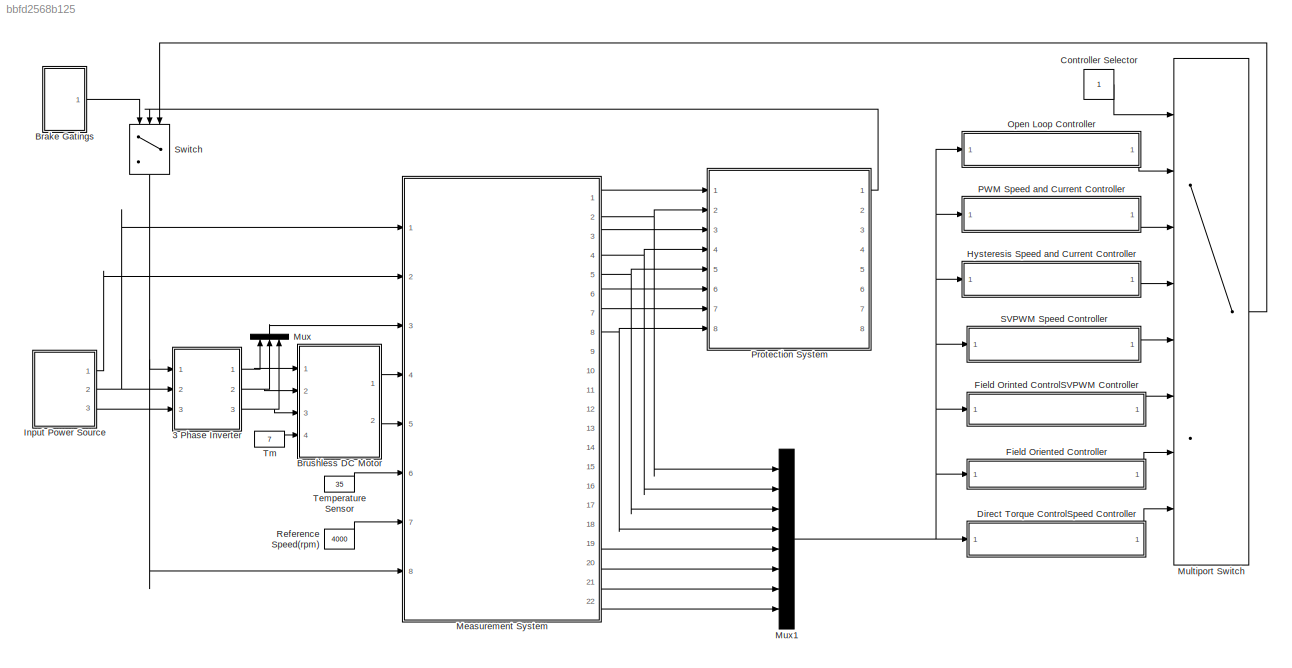
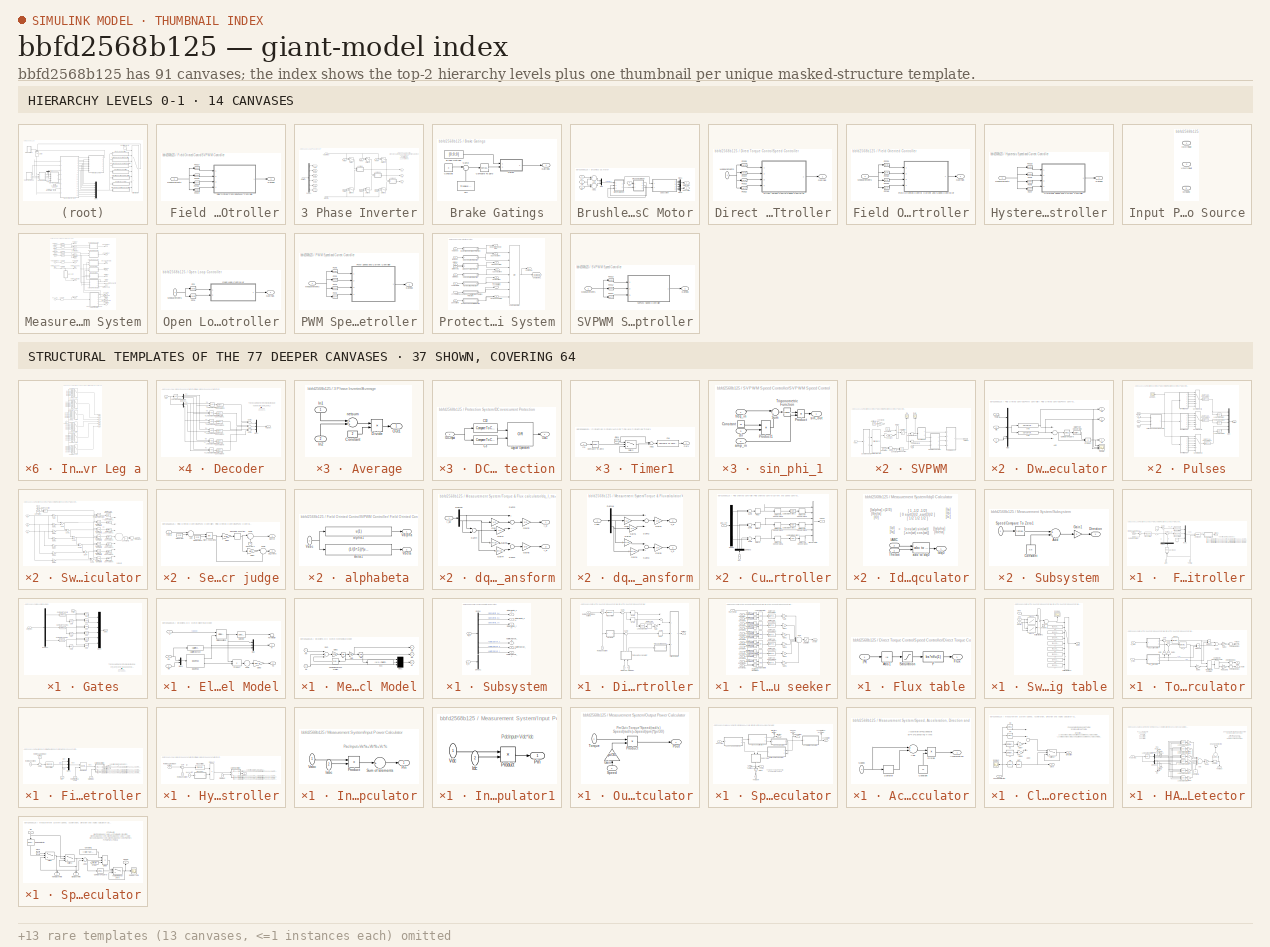
[diagram: thumbnail index - top-2 hierarchy levels (14 canvases) + 37 structural-template representatives of the remaining 77 canvases]
MODEL slx_bbfd2568b125
KIND model
BLOCK [SubSystem]  Field Orinted ControlSVPWM Controller
  FunctionWithSeparateData = off
  MaskHideContents = off
  MinAlgLoopOccurrences = off
  Opaque = off
  Ports = [1, 1]
  PropExecContextOutsideSubsystem = off
  RTWSystemCode = Auto
  RequestExecContextInheritance = off
BLOCK [SubSystem]  Field Orinted ControlSVPWM Controller/ Field Orinted ControlSVPWM Controller
  FunctionWithSeparateData = off
  MaskHideContents = off
  MinAlgLoopOccurrences = off
  Opaque = off
  Ports = [4, 1]
  PropExecContextOutsideSubsystem = off
  RTWSystemCode = Auto
  RequestExecContextInheritance = off
BLOCK [Demux]  Field Orinted ControlSVPWM Controller/ Field Orinted ControlSVPWM Controller/Demux
  DisplayOption = bar
  Outputs = 3
  Ports = [1, 3]
BLOCK [Outport]  Field Orinted ControlSVPWM Controller/ Field Orinted ControlSVPWM Controller/Gatings
  IconDisplay = Port number
BLOCK [Inport]  Field Orinted ControlSVPWM Controller/ Field Orinted ControlSVPWM Controller/Iabc
  IconDisplay = Port number
  Port = 2
BLOCK [Mux]  Field Orinted ControlSVPWM Controller/ Field Orinted ControlSVPWM Controller/Mux1
  DisplayOption = bar
  Inputs = 3
  Ports = [3, 1]
BLOCK [Reference]  Field Orinted ControlSVPWM Controller/ Field Orinted ControlSVPWM Controller/PID Controller  REF=simulink/Continuous/PID Controller
  AntiWindupMode = none
  Controller = PID
  D = 0
  DOutDataTypeStr = Inherit: Inherit via internal rule
  DOutMax = []
  DOutMin = []
  DParamDataTypeStr = Inherit: Inherit via internal rule
  DParamMax = []
  DParamMin = []
  ExternalReset = none
  FilterContinuousStateAttributes = ''
  FilterMethod = Forward Euler
  FilterOutDataTypeStr = Inherit: Inherit via internal rule
  FilterOutMax = []
  FilterOutMin = []
  FilterRTWStateStorageClass = Auto
  FilterStateMustResolveToSignalObject = off
  Form = Parallel
  I = 0.100
  IOutDataTypeStr = Inherit: Inherit via internal rule
  IOutMax = []
  IOutMin = []
  IParamDataTypeStr = Inherit: Inherit via internal rule
  IParamMax = []
  IParamMin = []
  IgnoreLimit = off
  InitialConditionForFilter = 0
  InitialConditionForIntegrator = 0
  InitialConditionSource = internal
  IntegratorContinuousStateAttributes = ''
  IntegratorMethod = Forward Euler
  IntegratorOutDataTypeStr = Inherit: Inherit via internal rule
  IntegratorOutMax = []
  IntegratorOutMin = []
  IntegratorRTWStateStorageClass = Auto
  IntegratorStateMustResolveToSignalObject = off
  Kb = 1
  KbOutDataTypeStr = Inherit: Inherit via internal rule
  KbOutMax = []
  KbOutMin = []
  KbParamDataTypeStr = Inherit: Inherit via internal rule
  KbParamMax = []
  KbParamMin = []
  Kt = 1
  KtOutDataTypeStr = Inherit: Inherit via internal rule
  KtOutMax = []
  KtOutMin = []
  KtParamDataTypeStr = Inherit: Inherit via internal rule
  KtParamMax = []
  KtParamMin = []
  LimitOutput = on
  LinearizeAsGain = on
  LockScale = off
  LowerSaturationLimit = -125
  N = 100
  NOutDataTypeStr = Inherit: Inherit via internal rule
  NOutMax = []
  NOutMin = []
  NParamDataTypeStr = Inherit: Inherit via internal rule
  NParamMax = []
  NParamMin = []
  P = 0.005
  POutDataTypeStr = Inherit: Inherit via internal rule
  POutMax = []
  POutMin = []
  PParamDataTypeStr = Inherit: Inherit via internal rule
  PParamMax = []
  PParamMin = []
  Ports = [1, 1]
  RndMeth = Floor
  SampleTime = 1
  SaturateOnIntegerOverflow = off
  SaturationOutDataTypeStr = Inherit: Same as input
  SaturationOutMax = []
  SaturationOutMin = []
  SourceBlock = simulink/Continuous/PID Controller
  SourceType = PID 1dof
  SumAccumDataTypeStr = Inherit: Inherit via internal rule
  SumDAccumDataTypeStr = Inherit: Inherit via internal rule
  SumDOutDataTypeStr = Inherit: Inherit via internal rule
  SumDOutMax = []
  SumDOutMin = []
  SumI1AccumDataTypeStr = Inherit: Inherit via internal rule
  SumI1OutDataTypeStr = Inherit: Inherit via internal rule
  SumI1OutMax = []
  SumI1OutMin = []
  SumI2AccumDataTypeStr = Inherit: Inherit via internal rule
  SumI2OutDataTypeStr = Inherit: Inherit via internal rule
  SumI2OutMax = []
  SumI2OutMin = []
  SumI3AccumDataTypeStr = Inherit: Inherit via internal rule
  SumI3OutDataTypeStr = Inherit: Inherit via internal rule
  SumI3OutMax = []
  SumI3OutMin = []
  SumOutDataTypeStr = Inherit: Inherit via internal rule
  SumOutMax = []
  SumOutMin = []
  TimeDomain = Continuous-time
  TrackingMode = off
  UpperSaturationLimit = 125
  ZeroCross = on
BLOCK [Reference]  Field Orinted ControlSVPWM Controller/ Field Orinted ControlSVPWM Controller/PID Controller1  REF=simulink/Continuous/PID Controller
  AntiWindupMode = none
  Controller = PID
  D = 0
  DOutDataTypeStr = Inherit: Inherit via internal rule
  DOutMax = []
  DOutMin = []
  DParamDataTypeStr = Inherit: Inherit via internal rule
  DParamMax = []
  DParamMin = []
  ExternalReset = none
  FilterContinuousStateAttributes = ''
  FilterMethod = Forward Euler
  FilterOutDataTypeStr = Inherit: Inherit via internal rule
  FilterOutMax = []
  FilterOutMin = []
  FilterRTWStateStorageClass = Auto
  FilterStateMustResolveToSignalObject = off
  Form = Parallel
  I = 1
  IOutDataTypeStr = Inherit: Inherit via internal rule
  IOutMax = []
  IOutMin = []
  IParamDataTypeStr = Inherit: Inherit via internal rule
  IParamMax = []
  IParamMin = []
  IgnoreLimit = off
  InitialConditionForFilter = 0
  InitialConditionForIntegrator = 0
  InitialConditionSource = internal
  IntegratorContinuousStateAttributes = ''
  IntegratorMethod = Forward Euler
  IntegratorOutDataTypeStr = Inherit: Inherit via internal rule
  IntegratorOutMax = []
  IntegratorOutMin = []
  IntegratorRTWStateStorageClass = Auto
  IntegratorStateMustResolveToSignalObject = off
  Kb = 1
  KbOutDataTypeStr = Inherit: Inherit via internal rule
  KbOutMax = []
  KbOutMin = []
  KbParamDataTypeStr = Inherit: Inherit via internal rule
  KbParamMax = []
  KbParamMin = []
  Kt = 1
  KtOutDataTypeStr = Inherit: Inherit via internal rule
  KtOutMax = []
  KtOutMin = []
  KtParamDataTypeStr = Inherit: Inherit via internal rule
  KtParamMax = []
  KtParamMin = []
  LimitOutput = on
  LinearizeAsGain = on
  LockScale = off
  LowerSaturationLimit = -48/2
  N = 100
  NOutDataTypeStr = Inherit: Inherit via internal rule
  NOutMax = []
  NOutMin = []
  NParamDataTypeStr = Inherit: Inherit via internal rule
  NParamMax = []
  NParamMin = []
  P = 0.5
  POutDataTypeStr = Inherit: Inherit via internal rule
  POutMax = []
  POutMin = []
  PParamDataTypeStr = Inherit: Inherit via internal rule
  PParamMax = []
  PParamMin = []
  Ports = [1, 1]
  RndMeth = Floor
  SampleTime = 1
  SaturateOnIntegerOverflow = off
  SaturationOutDataTypeStr = Inherit: Same as input
  SaturationOutMax = []
  SaturationOutMin = []
  SourceBlock = simulink/Continuous/PID Controller
  SourceType = PID 1dof
  SumAccumDataTypeStr = Inherit: Inherit via internal rule
  SumDAccumDataTypeStr = Inherit: Inherit via internal rule
  SumDOutDataTypeStr = Inherit: Inherit via internal rule
  SumDOutMax = []
  SumDOutMin = []
  SumI1AccumDataTypeStr = Inherit: Inherit via internal rule
  SumI1OutDataTypeStr = Inherit: Inherit via internal rule
  SumI1OutMax = []
  SumI1OutMin = []
  SumI2AccumDataTypeStr = Inherit: Inherit via internal rule
  SumI2OutDataTypeStr = Inherit: Inherit via internal rule
  SumI2OutMax = []
  SumI2OutMin = []
  SumI3AccumDataTypeStr = Inherit: Inherit via internal rule
  SumI3OutDataTypeStr = Inherit: Inherit via internal rule
  SumI3OutMax = []
  SumI3OutMin = []
  SumOutDataTypeStr = Inherit: Inherit via internal rule
  SumOutMax = []
  SumOutMin = []
  TimeDomain = Continuous-time
  TrackingMode = off
  UpperSaturationLimit = 48/2
  ZeroCross = on
BLOCK [Reference]  Field Orinted ControlSVPWM Controller/ Field Orinted ControlSVPWM Controller/PID Controller2  REF=simulink/Continuous/PID Controller
  AntiWindupMode = none
  Controller = PID
  D = 0
  DOutDataTypeStr = Inherit: Inherit via internal rule
  DOutMax = []
  DOutMin = []
  DParamDataTypeStr = Inherit: Inherit via internal rule
  DParamMax = []
  DParamMin = []
  ExternalReset = none
  FilterContinuousStateAttributes = ''
  FilterMethod = Forward Euler
  FilterOutDataTypeStr = Inherit: Inherit via internal rule
  FilterOutMax = []
  FilterOutMin = []
  FilterRTWStateStorageClass = Auto
  FilterStateMustResolveToSignalObject = off
  Form = Parallel
  I = 1
  IOutDataTypeStr = Inherit: Inherit via internal rule
  IOutMax = []
  IOutMin = []
  IParamDataTypeStr = Inherit: Inherit via internal rule
  IParamMax = []
  IParamMin = []
  IgnoreLimit = off
  InitialConditionForFilter = 0
  InitialConditionForIntegrator = 0
  InitialConditionSource = internal
  IntegratorContinuousStateAttributes = ''
  IntegratorMethod = Forward Euler
  IntegratorOutDataTypeStr = Inherit: Inherit via internal rule
  IntegratorOutMax = []
  IntegratorOutMin = []
  IntegratorRTWStateStorageClass = Auto
  IntegratorStateMustResolveToSignalObject = off
  Kb = 1
  KbOutDataTypeStr = Inherit: Inherit via internal rule
  KbOutMax = []
  KbOutMin = []
  KbParamDataTypeStr = Inherit: Inherit via internal rule
  KbParamMax = []
  KbParamMin = []
  Kt = 1
  KtOutDataTypeStr = Inherit: Inherit via internal rule
  KtOutMax = []
  KtOutMin = []
  KtParamDataTypeStr = Inherit: Inherit via internal rule
  KtParamMax = []
  KtParamMin = []
  LimitOutput = on
  LinearizeAsGain = on
  LockScale = off
  LowerSaturationLimit = -48/2
  N = 100
  NOutDataTypeStr = Inherit: Inherit via internal rule
  NOutMax = []
  NOutMin = []
  NParamDataTypeStr = Inherit: Inherit via internal rule
  NParamMax = []
  NParamMin = []
  P = 0.5
  POutDataTypeStr = Inherit: Inherit via internal rule
  POutMax = []
  POutMin = []
  PParamDataTypeStr = Inherit: Inherit via internal rule
  PParamMax = []
  PParamMin = []
  Ports = [1, 1]
  RndMeth = Floor
  SampleTime = 1
  SaturateOnIntegerOverflow = off
  SaturationOutDataTypeStr = Inherit: Same as input
  SaturationOutMax = []
  SaturationOutMin = []
  SourceBlock = simulink/Continuous/PID Controller
  SourceType = PID 1dof
  SumAccumDataTypeStr = Inherit: Inherit via internal rule
  SumDAccumDataTypeStr = Inherit: Inherit via internal rule
  SumDOutDataTypeStr = Inherit: Inherit via internal rule
  SumDOutMax = []
  SumDOutMin = []
  SumI1AccumDataTypeStr = Inherit: Inherit via internal rule
  SumI1OutDataTypeStr = Inherit: Inherit via internal rule
  SumI1OutMax = []
  SumI1OutMin = []
  SumI2AccumDataTypeStr = Inherit: Inherit via internal rule
  SumI2OutDataTypeStr = Inherit: Inherit via internal rule
  SumI2OutMax = []
  SumI2OutMin = []
  SumI3AccumDataTypeStr = Inherit: Inherit via internal rule
  SumI3OutDataTypeStr = Inherit: Inherit via internal rule
  SumI3OutMax = []
  SumI3OutMin = []
  SumOutDataTypeStr = Inherit: Inherit via internal rule
  SumOutMax = []
  SumOutMin = []
  TimeDomain = Continuous-time
  TrackingMode = off
  UpperSaturationLimit = 48/2
  ZeroCross = on
BLOCK [Inport]  Field Orinted ControlSVPWM Controller/ Field Orinted ControlSVPWM Controller/ReferenceRotorSpeed(rpm)
  IconDisplay = Port number
  Port = 3
BLOCK [Inport]  Field Orinted ControlSVPWM Controller/ Field Orinted ControlSVPWM Controller/RotorSpeed(rpm)
  IconDisplay = Port number
BLOCK [SubSystem]  Field Orinted ControlSVPWM Controller/ Field Orinted ControlSVPWM Controller/SVPWM
  FunctionWithSeparateData = off
  MaskHideContents = off
  MinAlgLoopOccurrences = off
  Opaque = off
  Ports = [1, 1]
  PropExecContextOutsideSubsystem = off
  RTWSystemCode = Auto
  RequestExecContextInheritance = off
BLOCK [Sum]  Field Orinted ControlSVPWM Controller/ Field Orinted ControlSVPWM Controller/SVPWM/Add
  InputSameDT = off
  OutDataTypeStr = Inherit: Inherit via internal rule
  Ports = [2, 1]
  SaturateOnIntegerOverflow = off
BLOCK [Reference]  Field Orinted ControlSVPWM Controller/ Field Orinted ControlSVPWM Controller/SVPWM/Cartesian to Polar  REF=simulink_extras/Transformations/Cartesian to
Polar
  Ports = [2, 2]
  SourceBlock = simulink_extras/Transformations/Cartesian to\nPolar
  SourceType = Cart2Polar
BLOCK [Constant]  Field Orinted ControlSVPWM Controller/ Field Orinted ControlSVPWM Controller/SVPWM/Constant
  Value = 2*pi
BLOCK [Constant]  Field Orinted ControlSVPWM Controller/ Field Orinted ControlSVPWM Controller/SVPWM/Constant1
  Value = 2*pi
BLOCK [Constant]  Field Orinted ControlSVPWM Controller/ Field Orinted ControlSVPWM Controller/SVPWM/Constant2
  Value = Vdc
BLOCK [Product]  Field Orinted ControlSVPWM Controller/ Field Orinted ControlSVPWM Controller/SVPWM/Divide
  InputSameDT = off
  Inputs = /*
  OutDataTypeStr = Inherit: Inherit via internal rule
  Ports = [2, 1]
  RndMeth = Floor
  SaturateOnIntegerOverflow = off
BLOCK [SubSystem]  Field Orinted ControlSVPWM Controller/ Field Orinted ControlSVPWM Controller/SVPWM/Dwell Time Calculator
  FunctionWithSeparateData = off
  MaskHideContents = off
  MinAlgLoopOccurrences = off
  Opaque = off
  Ports = [3, 3]
  PropExecContextOutsideSubsystem = off
  RTWSystemCode = Auto
  RequestExecContextInheritance = off
BLOCK [Sum]  Field Orinted ControlSVPWM Controller/ Field Orinted ControlSVPWM Controller/SVPWM/Dwell Time Calculator/Add
  InputSameDT = off
  Inputs = --+
  OutDataTypeStr = Inherit: Inherit via internal rule
  Ports = [3, 1]
  SaturateOnIntegerOverflow = off
BLOCK [Reference]  Field Orinted ControlSVPWM Controller/ Field Orinted ControlSVPWM Controller/SVPWM/Dwell Time Calculator/Compare To Zero  REF=simulink/Logic and Bit
Operations/Compare
To Zero
  OutDataTypeStr = boolean
  Ports = [1, 1]
  SourceBlock = simulink/Logic and Bit\nOperations/Compare\nTo Zero
  SourceType = Compare To Zero
  ZeroCross = on
  relop = >=
BLOCK [DataTypeConversion]  Field Orinted ControlSVPWM Controller/ Field Orinted ControlSVPWM Controller/SVPWM/Dwell Time Calculator/Data Type Conversion
  OutDataTypeStr = double
  RndMeth = Floor
  SaturateOnIntegerOverflow = off
BLOCK [Mux]  Field Orinted ControlSVPWM Controller/ Field Orinted ControlSVPWM Controller/SVPWM/Dwell Time Calculator/Mux
  DisplayOption = bar
  Inputs = 3
  Ports = [3, 1]
BLOCK [Product]  Field Orinted ControlSVPWM Controller/ Field Orinted ControlSVPWM Controller/SVPWM/Dwell Time Calculator/Product
  InputSameDT = off
  OutDataTypeStr = Inherit: Inherit via internal rule
  Ports = [2, 1]
  SaturateOnIntegerOverflow = off
BLOCK [Scope]  Field Orinted ControlSVPWM Controller/ Field Orinted ControlSVPWM Controller/SVPWM/Dwell Time Calculator/Scope
  DataFormat = StructureWithTime
  Floating = off
  LimitDataPoints = off
  NumInputPorts = 3
  Ports = [3]
  SampleTime = 0
  SaveName = ScopeData12
  ShowLegends = off
  YMax = 5~5~5
  YMin = -5~-5~-5
BLOCK [Outport]  Field Orinted ControlSVPWM Controller/ Field Orinted ControlSVPWM Controller/SVPWM/Dwell Time Calculator/T0
  IconDisplay = Port number
  Port = 3
BLOCK [Outport]  Field Orinted ControlSVPWM Controller/ Field Orinted ControlSVPWM Controller/SVPWM/Dwell Time Calculator/Ta
  IconDisplay = Port number
BLOCK [Outport]  Field Orinted ControlSVPWM Controller/ Field Orinted ControlSVPWM Controller/SVPWM/Dwell Time Calculator/Tb
  IconDisplay = Port number
  Port = 2
BLOCK [Inport]  Field Orinted ControlSVPWM Controller/ Field Orinted ControlSVPWM Controller/SVPWM/Dwell Time Calculator/Theta
  IconDisplay = Port number
BLOCK [Inport]  Field Orinted ControlSVPWM Controller/ Field Orinted ControlSVPWM Controller/SVPWM/Dwell Time Calculator/Ts
  IconDisplay = Port number
  Port = 3
BLOCK [Fcn]  Field Orinted ControlSVPWM Controller/ Field Orinted ControlSVPWM Controller/SVPWM/Dwell Time Calculator/cTa
  Expr = u(2)*u(3)*sin((pi/3)-u(1))
BLOCK [Fcn]  Field Orinted ControlSVPWM Controller/ Field Orinted ControlSVPWM Controller/SVPWM/Dwell Time Calculator/cTb
  Expr = u(2)*u(3)*sin(u(1))
BLOCK [Inport]  Field Orinted ControlSVPWM Controller/ Field Orinted ControlSVPWM Controller/SVPWM/Dwell Time Calculator/ma
  IconDisplay = Port number
  Port = 2
BLOCK [Outport]  Field Orinted ControlSVPWM Controller/ Field Orinted ControlSVPWM Controller/SVPWM/Gatings
  IconDisplay = Port number
BLOCK [Math]  Field Orinted ControlSVPWM Controller/ Field Orinted ControlSVPWM Controller/SVPWM/Math Function
  Operator = rem
  Ports = [2, 1]
BLOCK [SubSystem]  Field Orinted ControlSVPWM Controller/ Field Orinted ControlSVPWM Controller/SVPWM/Pulses
  FunctionWithSeparateData = off
  MaskHideContents = off
  MinAlgLoopOccurrences = off
  Opaque = off
  Ports = [4, 1]
  PropExecContextOutsideSubsystem = off
  RTWSystemCode = Auto
  RequestExecContextInheritance = off
BLOCK [DataTypeConversion]  Field Orinted ControlSVPWM Controller/ Field Orinted ControlSVPWM Controller/SVPWM/Pulses/Data Type Conversion
  OutDataTypeStr = boolean
BLOCK [DataTypeConversion]  Field Orinted ControlSVPWM Controller/ Field Orinted ControlSVPWM Controller/SVPWM/Pulses/Data Type Conversion1
  OutDataTypeStr = boolean
BLOCK [DataTypeConversion]  Field Orinted ControlSVPWM Controller/ Field Orinted ControlSVPWM Controller/SVPWM/Pulses/Data Type Conversion2
  OutDataTypeStr = boolean
BLOCK [Outport]  Field Orinted ControlSVPWM Controller/ Field Orinted ControlSVPWM Controller/SVPWM/Pulses/Gating
  IconDisplay = Port number
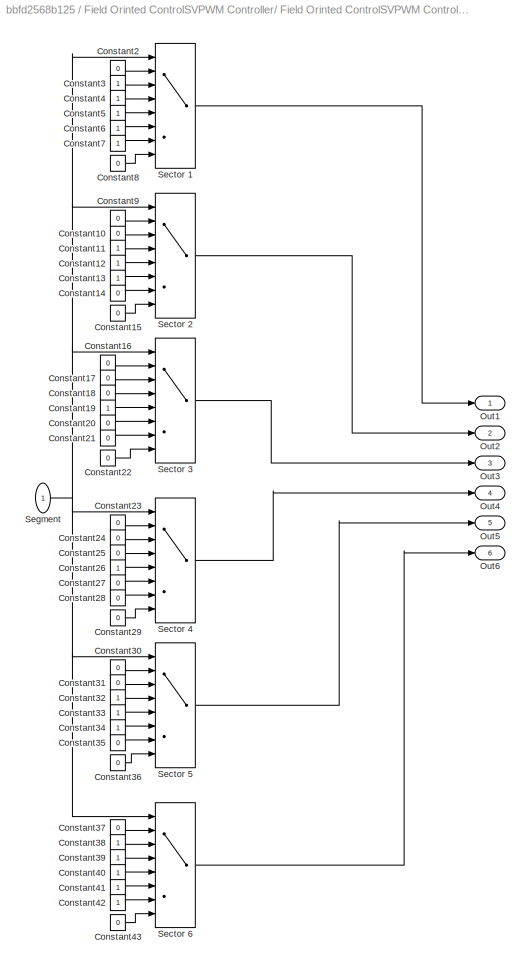
BLOCK [SubSystem]  Field Orinted ControlSVPWM Controller/ Field Orinted ControlSVPWM Controller/SVPWM/Pulses/Inverter Leg a
  FunctionWithSeparateData = off
  MaskHideContents = off
  MinAlgLoopOccurrences = off
  Opaque = off
  Ports = [1, 6]
  PropExecContextOutsideSubsystem = off
  RTWSystemCode = Auto
  RequestExecContextInheritance = off
BLOCK [Constant]  Field Orinted ControlSVPWM Controller/ Field Orinted ControlSVPWM Controller/SVPWM/Pulses/Inverter Leg a/Constant10
  Value = 0
BLOCK [Constant]  Field Orinted ControlSVPWM Controller/ Field Orinted ControlSVPWM Controller/SVPWM/Pulses/Inverter Leg a/Constant11
BLOCK [Constant]  Field Orinted ControlSVPWM Controller/ Field Orinted ControlSVPWM Controller/SVPWM/Pulses/Inverter Leg a/Constant12
BLOCK [Constant]  Field Orinted ControlSVPWM Controller/ Field Orinted ControlSVPWM Controller/SVPWM/Pulses/Inverter Leg a/Constant13
BLOCK [Constant]  Field Orinted ControlSVPWM Controller/ Field Orinted ControlSVPWM Controller/SVPWM/Pulses/Inverter Leg a/Constant14
  Value = 0
BLOCK [Constant]  Field Orinted ControlSVPWM Controller/ Field Orinted ControlSVPWM Controller/SVPWM/Pulses/Inverter Leg a/Constant15
  Value = 0
BLOCK [Constant]  Field Orinted ControlSVPWM Controller/ Field Orinted ControlSVPWM Controller/SVPWM/Pulses/Inverter Leg a/Constant16
  Value = 0
BLOCK [Constant]  Field Orinted ControlSVPWM Controller/ Field Orinted ControlSVPWM Controller/SVPWM/Pulses/Inverter Leg a/Constant17
  Value = 0
BLOCK [Constant]  Field Orinted ControlSVPWM Controller/ Field Orinted ControlSVPWM Controller/SVPWM/Pulses/Inverter Leg a/Constant18
  Value = 0
BLOCK [Constant]  Field Orinted ControlSVPWM Controller/ Field Orinted ControlSVPWM Controller/SVPWM/Pulses/Inverter Leg a/Constant19
BLOCK [Constant]  Field Orinted ControlSVPWM Controller/ Field Orinted ControlSVPWM Controller/SVPWM/Pulses/Inverter Leg a/Constant2
  Value = 0
BLOCK [Constant]  Field Orinted ControlSVPWM Controller/ Field Orinted ControlSVPWM Controller/SVPWM/Pulses/Inverter Leg a/Constant20
  Value = 0
BLOCK [Constant]  Field Orinted ControlSVPWM Controller/ Field Orinted ControlSVPWM Controller/SVPWM/Pulses/Inverter Leg a/Constant21
  Value = 0
BLOCK [Constant]  Field Orinted ControlSVPWM Controller/ Field Orinted ControlSVPWM Controller/SVPWM/Pulses/Inverter Leg a/Constant22
  Value = 0
BLOCK [Constant]  Field Orinted ControlSVPWM Controller/ Field Orinted ControlSVPWM Controller/SVPWM/Pulses/Inverter Leg a/Constant23
  Value = 0
BLOCK [Constant]  Field Orinted ControlSVPWM Controller/ Field Orinted ControlSVPWM Controller/SVPWM/Pulses/Inverter Leg a/Constant24
  Value = 0
BLOCK [Constant]  Field Orinted ControlSVPWM Controller/ Field Orinted ControlSVPWM Controller/SVPWM/Pulses/Inverter Leg a/Constant25
  Value = 0
BLOCK [Constant]  Field Orinted ControlSVPWM Controller/ Field Orinted ControlSVPWM Controller/SVPWM/Pulses/Inverter Leg a/Constant26
BLOCK [Constant]  Field Orinted ControlSVPWM Controller/ Field Orinted ControlSVPWM Controller/SVPWM/Pulses/Inverter Leg a/Constant27
  Value = 0
BLOCK [Constant]  Field Orinted ControlSVPWM Controller/ Field Orinted ControlSVPWM Controller/SVPWM/Pulses/Inverter Leg a/Constant28
  Value = 0
BLOCK [Constant]  Field Orinted ControlSVPWM Controller/ Field Orinted ControlSVPWM Controller/SVPWM/Pulses/Inverter Leg a/Constant29
  Value = 0
BLOCK [Constant]  Field Orinted ControlSVPWM Controller/ Field Orinted ControlSVPWM Controller/SVPWM/Pulses/Inverter Leg a/Constant3
BLOCK [Constant]  Field Orinted ControlSVPWM Controller/ Field Orinted ControlSVPWM Controller/SVPWM/Pulses/Inverter Leg a/Constant30
  Value = 0
BLOCK [Constant]  Field Orinted ControlSVPWM Controller/ Field Orinted ControlSVPWM Controller/SVPWM/Pulses/Inverter Leg a/Constant31
  Value = 0
BLOCK [Constant]  Field Orinted ControlSVPWM Controller/ Field Orinted ControlSVPWM Controller/SVPWM/Pulses/Inverter Leg a/Constant32
BLOCK [Constant]  Field Orinted ControlSVPWM Controller/ Field Orinted ControlSVPWM Controller/SVPWM/Pulses/Inverter Leg a/Constant33
BLOCK [Constant]  Field Orinted ControlSVPWM Controller/ Field Orinted ControlSVPWM Controller/SVPWM/Pulses/Inverter Leg a/Constant34
BLOCK [Constant]  Field Orinted ControlSVPWM Controller/ Field Orinted ControlSVPWM Controller/SVPWM/Pulses/Inverter Leg a/Constant35
  Value = 0
BLOCK [Constant]  Field Orinted ControlSVPWM Controller/ Field Orinted ControlSVPWM Controller/SVPWM/Pulses/Inverter Leg a/Constant36
  Value = 0
BLOCK [Constant]  Field Orinted ControlSVPWM Controller/ Field Orinted ControlSVPWM Controller/SVPWM/Pulses/Inverter Leg a/Constant37
  Value = 0
BLOCK [Constant]  Field Orinted ControlSVPWM Controller/ Field Orinted ControlSVPWM Controller/SVPWM/Pulses/Inverter Leg a/Constant38
BLOCK [Constant]  Field Orinted ControlSVPWM Controller/ Field Orinted ControlSVPWM Controller/SVPWM/Pulses/Inverter Leg a/Constant39
BLOCK [Constant]  Field Orinted ControlSVPWM Controller/ Field Orinted ControlSVPWM Controller/SVPWM/Pulses/Inverter Leg a/Constant4
BLOCK [Constant]  Field Orinted ControlSVPWM Controller/ Field Orinted ControlSVPWM Controller/SVPWM/Pulses/Inverter Leg a/Constant40
BLOCK [Constant]  Field Orinted ControlSVPWM Controller/ Field Orinted ControlSVPWM Controller/SVPWM/Pulses/Inverter Leg a/Constant41
BLOCK [Constant]  Field Orinted ControlSVPWM Controller/ Field Orinted ControlSVPWM Controller/SVPWM/Pulses/Inverter Leg a/Constant42
BLOCK [Constant]  Field Orinted ControlSVPWM Controller/ Field Orinted ControlSVPWM Controller/SVPWM/Pulses/Inverter Leg a/Constant43
  Value = 0
BLOCK [Constant]  Field Orinted ControlSVPWM Controller/ Field Orinted ControlSVPWM Controller/SVPWM/Pulses/Inverter Leg a/Constant5
BLOCK [Constant]  Field Orinted ControlSVPWM Controller/ Field Orinted ControlSVPWM Controller/SVPWM/Pulses/Inverter Leg a/Constant6
BLOCK [Constant]  Field Orinted ControlSVPWM Controller/ Field Orinted ControlSVPWM Controller/SVPWM/Pulses/Inverter Leg a/Constant7
BLOCK [Constant]  Field Orinted ControlSVPWM Controller/ Field Orinted ControlSVPWM Controller/SVPWM/Pulses/Inverter Leg a/Constant8
  Value = 0
BLOCK [Constant]  Field Orinted ControlSVPWM Controller/ Field Orinted ControlSVPWM Controller/SVPWM/Pulses/Inverter Leg a/Constant9
  Value = 0
BLOCK [Outport]  Field Orinted ControlSVPWM Controller/ Field Orinted ControlSVPWM Controller/SVPWM/Pulses/Inverter Leg a/Out1
  IconDisplay = Port number
BLOCK [Outport]  Field Orinted ControlSVPWM Controller/ Field Orinted ControlSVPWM Controller/SVPWM/Pulses/Inverter Leg a/Out2
  IconDisplay = Port number
  Port = 2
BLOCK [Outport]  Field Orinted ControlSVPWM Controller/ Field Orinted ControlSVPWM Controller/SVPWM/Pulses/Inverter Leg a/Out3
  IconDisplay = Port number
  Port = 3
BLOCK [Outport]  Field Orinted ControlSVPWM Controller/ Field Orinted ControlSVPWM Controller/SVPWM/Pulses/Inverter Leg a/Out4
  IconDisplay = Port number
  Port = 4
BLOCK [Outport]  Field Orinted ControlSVPWM Controller/ Field Orinted ControlSVPWM Controller/SVPWM/Pulses/Inverter Leg a/Out5
  IconDisplay = Port number
  Port = 5
BLOCK [Outport]  Field Orinted ControlSVPWM Controller/ Field Orinted ControlSVPWM Controller/SVPWM/Pulses/Inverter Leg a/Out6
  IconDisplay = Port number
  Port = 6
BLOCK [MultiPortSwitch]  Field Orinted ControlSVPWM Controller/ Field Orinted ControlSVPWM Controller/SVPWM/Pulses/Inverter Leg a/Sector 1
  InputSameDT = off
  Inputs = 7
  Ports = [8, 1]
  SaturateOnIntegerOverflow = off
BLOCK [MultiPortSwitch]  Field Orinted ControlSVPWM Controller/ Field Orinted ControlSVPWM Controller/SVPWM/Pulses/Inverter Leg a/Sector 2
  InputSameDT = off
  Inputs = 7
  Ports = [8, 1]
  SaturateOnIntegerOverflow = off
BLOCK [MultiPortSwitch]  Field Orinted ControlSVPWM Controller/ Field Orinted ControlSVPWM Controller/SVPWM/Pulses/Inverter Leg a/Sector 3
  InputSameDT = off
  Inputs = 7
  Ports = [8, 1]
  SaturateOnIntegerOverflow = off
BLOCK [MultiPortSwitch]  Field Orinted ControlSVPWM Controller/ Field Orinted ControlSVPWM Controller/SVPWM/Pulses/Inverter Leg a/Sector 4
  InputSameDT = off
  Inputs = 7
  Ports = [8, 1]
  SaturateOnIntegerOverflow = off
BLOCK [MultiPortSwitch]  Field Orinted ControlSVPWM Controller/ Field Orinted ControlSVPWM Controller/SVPWM/Pulses/Inverter Leg a/Sector 5
  InputSameDT = off
  Inputs = 7
  Ports = [8, 1]
  SaturateOnIntegerOverflow = off
BLOCK [MultiPortSwitch]  Field Orinted ControlSVPWM Controller/ Field Orinted ControlSVPWM Controller/SVPWM/Pulses/Inverter Leg a/Sector 6
  InputSameDT = off
  Inputs = 7
  Ports = [8, 1]
  SaturateOnIntegerOverflow = off
BLOCK [Inport]  Field Orinted ControlSVPWM Controller/ Field Orinted ControlSVPWM Controller/SVPWM/Pulses/Inverter Leg a/Segment
  IconDisplay = Port number
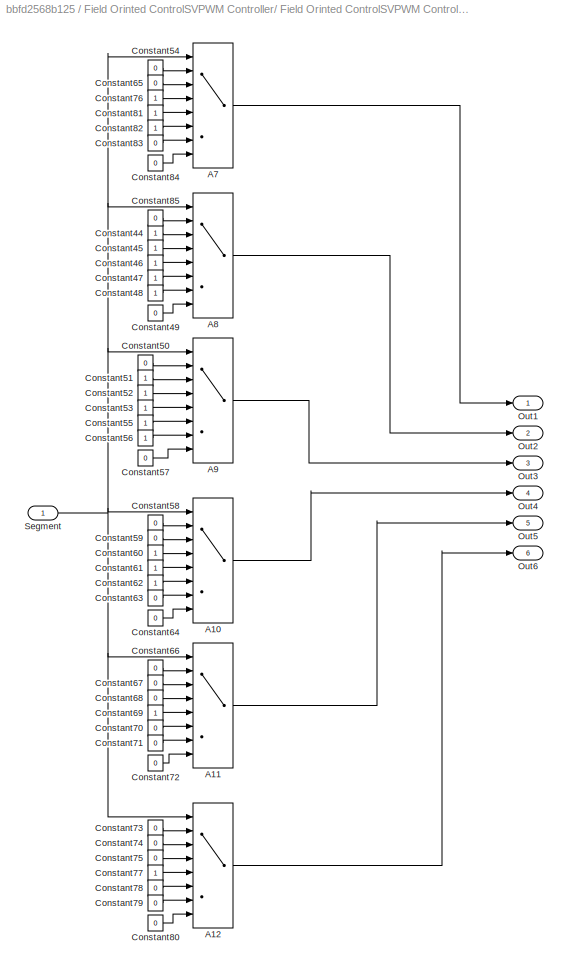
BLOCK [SubSystem]  Field Orinted ControlSVPWM Controller/ Field Orinted ControlSVPWM Controller/SVPWM/Pulses/Inverter Leg b
  FunctionWithSeparateData = off
  MaskHideContents = off
  MinAlgLoopOccurrences = off
  Opaque = off
  Ports = [1, 6]
  PropExecContextOutsideSubsystem = off
  RTWSystemCode = Auto
  RequestExecContextInheritance = off
BLOCK [MultiPortSwitch]  Field Orinted ControlSVPWM Controller/ Field Orinted ControlSVPWM Controller/SVPWM/Pulses/Inverter Leg b/A10
  InputSameDT = off
  Inputs = 7
  Ports = [8, 1]
  SaturateOnIntegerOverflow = off
BLOCK [MultiPortSwitch]  Field Orinted ControlSVPWM Controller/ Field Orinted ControlSVPWM Controller/SVPWM/Pulses/Inverter Leg b/A11
  InputSameDT = off
  Inputs = 7
  Ports = [8, 1]
  SaturateOnIntegerOverflow = off
BLOCK [MultiPortSwitch]  Field Orinted ControlSVPWM Controller/ Field Orinted ControlSVPWM Controller/SVPWM/Pulses/Inverter Leg b/A12
  InputSameDT = off
  Inputs = 7
  Ports = [8, 1]
  SaturateOnIntegerOverflow = off
BLOCK [MultiPortSwitch]  Field Orinted ControlSVPWM Controller/ Field Orinted ControlSVPWM Controller/SVPWM/Pulses/Inverter Leg b/A7
  InputSameDT = off
  Inputs = 7
  Ports = [8, 1]
  SaturateOnIntegerOverflow = off
BLOCK [MultiPortSwitch]  Field Orinted ControlSVPWM Controller/ Field Orinted ControlSVPWM Controller/SVPWM/Pulses/Inverter Leg b/A8
  InputSameDT = off
  Inputs = 7
  Ports = [8, 1]
  SaturateOnIntegerOverflow = off
BLOCK [MultiPortSwitch]  Field Orinted ControlSVPWM Controller/ Field Orinted ControlSVPWM Controller/SVPWM/Pulses/Inverter Leg b/A9
  InputSameDT = off
  Inputs = 7
  Ports = [8, 1]
  SaturateOnIntegerOverflow = off
BLOCK [Constant]  Field Orinted ControlSVPWM Controller/ Field Orinted ControlSVPWM Controller/SVPWM/Pulses/Inverter Leg b/Constant44
BLOCK [Constant]  Field Orinted ControlSVPWM Controller/ Field Orinted ControlSVPWM Controller/SVPWM/Pulses/Inverter Leg b/Constant45
BLOCK [Constant]  Field Orinted ControlSVPWM Controller/ Field Orinted ControlSVPWM Controller/SVPWM/Pulses/Inverter Leg b/Constant46
BLOCK [Constant]  Field Orinted ControlSVPWM Controller/ Field Orinted ControlSVPWM Controller/SVPWM/Pulses/Inverter Leg b/Constant47
BLOCK [Constant]  Field Orinted ControlSVPWM Controller/ Field Orinted ControlSVPWM Controller/SVPWM/Pulses/Inverter Leg b/Constant48
BLOCK [Constant]  Field Orinted ControlSVPWM Controller/ Field Orinted ControlSVPWM Controller/SVPWM/Pulses/Inverter Leg b/Constant49
  Value = 0
BLOCK [Constant]  Field Orinted ControlSVPWM Controller/ Field Orinted ControlSVPWM Controller/SVPWM/Pulses/Inverter Leg b/Constant50
  Value = 0
BLOCK [Constant]  Field Orinted ControlSVPWM Controller/ Field Orinted ControlSVPWM Controller/SVPWM/Pulses/Inverter Leg b/Constant51
BLOCK [Constant]  Field Orinted ControlSVPWM Controller/ Field Orinted ControlSVPWM Controller/SVPWM/Pulses/Inverter Leg b/Constant52
BLOCK [Constant]  Field Orinted ControlSVPWM Controller/ Field Orinted ControlSVPWM Controller/SVPWM/Pulses/Inverter Leg b/Constant53
BLOCK [Constant]  Field Orinted ControlSVPWM Controller/ Field Orinted ControlSVPWM Controller/SVPWM/Pulses/Inverter Leg b/Constant54
  Value = 0
BLOCK [Constant]  Field Orinted ControlSVPWM Controller/ Field Orinted ControlSVPWM Controller/SVPWM/Pulses/Inverter Leg b/Constant55
BLOCK [Constant]  Field Orinted ControlSVPWM Controller/ Field Orinted ControlSVPWM Controller/SVPWM/Pulses/Inverter Leg b/Constant56
BLOCK [Constant]  Field Orinted ControlSVPWM Controller/ Field Orinted ControlSVPWM Controller/SVPWM/Pulses/Inverter Leg b/Constant57
  Value = 0
BLOCK [Constant]  Field Orinted ControlSVPWM Controller/ Field Orinted ControlSVPWM Controller/SVPWM/Pulses/Inverter Leg b/Constant58
  Value = 0
BLOCK [Constant]  Field Orinted ControlSVPWM Controller/ Field Orinted ControlSVPWM Controller/SVPWM/Pulses/Inverter Leg b/Constant59
  Value = 0
BLOCK [Constant]  Field Orinted ControlSVPWM Controller/ Field Orinted ControlSVPWM Controller/SVPWM/Pulses/Inverter Leg b/Constant60
BLOCK [Constant]  Field Orinted ControlSVPWM Controller/ Field Orinted ControlSVPWM Controller/SVPWM/Pulses/Inverter Leg b/Constant61
BLOCK [Constant]  Field Orinted ControlSVPWM Controller/ Field Orinted ControlSVPWM Controller/SVPWM/Pulses/Inverter Leg b/Constant62
BLOCK [Constant]  Field Orinted ControlSVPWM Controller/ Field Orinted ControlSVPWM Controller/SVPWM/Pulses/Inverter Leg b/Constant63
  Value = 0
BLOCK [Constant]  Field Orinted ControlSVPWM Controller/ Field Orinted ControlSVPWM Controller/SVPWM/Pulses/Inverter Leg b/Constant64
  Value = 0
BLOCK [Constant]  Field Orinted ControlSVPWM Controller/ Field Orinted ControlSVPWM Controller/SVPWM/Pulses/Inverter Leg b/Constant65
  Value = 0
BLOCK [Constant]  Field Orinted ControlSVPWM Controller/ Field Orinted ControlSVPWM Controller/SVPWM/Pulses/Inverter Leg b/Constant66
  Value = 0
BLOCK [Constant]  Field Orinted ControlSVPWM Controller/ Field Orinted ControlSVPWM Controller/SVPWM/Pulses/Inverter Leg b/Constant67
  Value = 0
BLOCK [Constant]  Field Orinted ControlSVPWM Controller/ Field Orinted ControlSVPWM Controller/SVPWM/Pulses/Inverter Leg b/Constant68
  Value = 0
BLOCK [Constant]  Field Orinted ControlSVPWM Controller/ Field Orinted ControlSVPWM Controller/SVPWM/Pulses/Inverter Leg b/Constant69
BLOCK [Constant]  Field Orinted ControlSVPWM Controller/ Field Orinted ControlSVPWM Controller/SVPWM/Pulses/Inverter Leg b/Constant70
  Value = 0
BLOCK [Constant]  Field Orinted ControlSVPWM Controller/ Field Orinted ControlSVPWM Controller/SVPWM/Pulses/Inverter Leg b/Constant71
  Value = 0
BLOCK [Constant]  Field Orinted ControlSVPWM Controller/ Field Orinted ControlSVPWM Controller/SVPWM/Pulses/Inverter Leg b/Constant72
  Value = 0
BLOCK [Constant]  Field Orinted ControlSVPWM Controller/ Field Orinted ControlSVPWM Controller/SVPWM/Pulses/Inverter Leg b/Constant73
  Value = 0
BLOCK [Constant]  Field Orinted ControlSVPWM Controller/ Field Orinted ControlSVPWM Controller/SVPWM/Pulses/Inverter Leg b/Constant74
  Value = 0
BLOCK [Constant]  Field Orinted ControlSVPWM Controller/ Field Orinted ControlSVPWM Controller/SVPWM/Pulses/Inverter Leg b/Constant75
  Value = 0
BLOCK [Constant]  Field Orinted ControlSVPWM Controller/ Field Orinted ControlSVPWM Controller/SVPWM/Pulses/Inverter Leg b/Constant76
BLOCK [Constant]  Field Orinted ControlSVPWM Controller/ Field Orinted ControlSVPWM Controller/SVPWM/Pulses/Inverter Leg b/Constant77
BLOCK [Constant]  Field Orinted ControlSVPWM Controller/ Field Orinted ControlSVPWM Controller/SVPWM/Pulses/Inverter Leg b/Constant78
  Value = 0
BLOCK [Constant]  Field Orinted ControlSVPWM Controller/ Field Orinted ControlSVPWM Controller/SVPWM/Pulses/Inverter Leg b/Constant79
  Value = 0
BLOCK [Constant]  Field Orinted ControlSVPWM Controller/ Field Orinted ControlSVPWM Controller/SVPWM/Pulses/Inverter Leg b/Constant80
  Value = 0
BLOCK [Constant]  Field Orinted ControlSVPWM Controller/ Field Orinted ControlSVPWM Controller/SVPWM/Pulses/Inverter Leg b/Constant81
BLOCK [Constant]  Field Orinted ControlSVPWM Controller/ Field Orinted ControlSVPWM Controller/SVPWM/Pulses/Inverter Leg b/Constant82
BLOCK [Constant]  Field Orinted ControlSVPWM Controller/ Field Orinted ControlSVPWM Controller/SVPWM/Pulses/Inverter Leg b/Constant83
  Value = 0
BLOCK [Constant]  Field Orinted ControlSVPWM Controller/ Field Orinted ControlSVPWM Controller/SVPWM/Pulses/Inverter Leg b/Constant84
  Value = 0
BLOCK [Constant]  Field Orinted ControlSVPWM Controller/ Field Orinted ControlSVPWM Controller/SVPWM/Pulses/Inverter Leg b/Constant85
  Value = 0
BLOCK [Outport]  Field Orinted ControlSVPWM Controller/ Field Orinted ControlSVPWM Controller/SVPWM/Pulses/Inverter Leg b/Out1
  IconDisplay = Port number
BLOCK [Outport]  Field Orinted ControlSVPWM Controller/ Field Orinted ControlSVPWM Controller/SVPWM/Pulses/Inverter Leg b/Out2
  IconDisplay = Port number
  Port = 2
BLOCK [Outport]  Field Orinted ControlSVPWM Controller/ Field Orinted ControlSVPWM Controller/SVPWM/Pulses/Inverter Leg b/Out3
  IconDisplay = Port number
  Port = 3
BLOCK [Outport]  Field Orinted ControlSVPWM Controller/ Field Orinted ControlSVPWM Controller/SVPWM/Pulses/Inverter Leg b/Out4
  IconDisplay = Port number
  Port = 4
BLOCK [Outport]  Field Orinted ControlSVPWM Controller/ Field Orinted ControlSVPWM Controller/SVPWM/Pulses/Inverter Leg b/Out5
  IconDisplay = Port number
  Port = 5
BLOCK [Outport]  Field Orinted ControlSVPWM Controller/ Field Orinted ControlSVPWM Controller/SVPWM/Pulses/Inverter Leg b/Out6
  IconDisplay = Port number
  Port = 6
BLOCK [Inport]  Field Orinted ControlSVPWM Controller/ Field Orinted ControlSVPWM Controller/SVPWM/Pulses/Inverter Leg b/Segment
  IconDisplay = Port number
BLOCK [SubSystem]  Field Orinted ControlSVPWM Controller/ Field Orinted ControlSVPWM Controller/SVPWM/Pulses/Inverter Leg c
  FunctionWithSeparateData = off
  MaskHideContents = off
  MinAlgLoopOccurrences = off
  Opaque = off
  Ports = [1, 6]
  PropExecContextOutsideSubsystem = off
  RTWSystemCode = Auto
  RequestExecContextInheritance = off
BLOCK [MultiPortSwitch]  Field Orinted ControlSVPWM Controller/ Field Orinted ControlSVPWM Controller/SVPWM/Pulses/Inverter Leg c/A14
  InputSameDT = off
  Inputs = 7
  Ports = [8, 1]
  SaturateOnIntegerOverflow = off
BLOCK [MultiPortSwitch]  Field Orinted ControlSVPWM Controller/ Field Orinted ControlSVPWM Controller/SVPWM/Pulses/Inverter Leg c/A15
  InputSameDT = off
  Inputs = 7
  Ports = [8, 1]
  SaturateOnIntegerOverflow = off
BLOCK [MultiPortSwitch]  Field Orinted ControlSVPWM Controller/ Field Orinted ControlSVPWM Controller/SVPWM/Pulses/Inverter Leg c/A16
  InputSameDT = off
  Inputs = 7
  Ports = [8, 1]
  SaturateOnIntegerOverflow = off
BLOCK [MultiPortSwitch]  Field Orinted ControlSVPWM Controller/ Field Orinted ControlSVPWM Controller/SVPWM/Pulses/Inverter Leg c/A17
  InputSameDT = off
  Inputs = 7
  Ports = [8, 1]
  SaturateOnIntegerOverflow = off
BLOCK [MultiPortSwitch]  Field Orinted ControlSVPWM Controller/ Field Orinted ControlSVPWM Controller/SVPWM/Pulses/Inverter Leg c/A18
  InputSameDT = off
  Inputs = 7
  Ports = [8, 1]
  SaturateOnIntegerOverflow = off
BLOCK [MultiPortSwitch]  Field Orinted ControlSVPWM Controller/ Field Orinted ControlSVPWM Controller/SVPWM/Pulses/Inverter Leg c/A19
  InputSameDT = off
  Inputs = 7
  Ports = [8, 1]
  SaturateOnIntegerOverflow = off
BLOCK [Constant]  Field Orinted ControlSVPWM Controller/ Field Orinted ControlSVPWM Controller/SVPWM/Pulses/Inverter Leg c/Constant100
  Value = 0
BLOCK [Constant]  Field Orinted ControlSVPWM Controller/ Field Orinted ControlSVPWM Controller/SVPWM/Pulses/Inverter Leg c/Constant101
BLOCK [Constant]  Field Orinted ControlSVPWM Controller/ Field Orinted ControlSVPWM Controller/SVPWM/Pulses/Inverter Leg c/Constant102
BLOCK [Constant]  Field Orinted ControlSVPWM Controller/ Field Orinted ControlSVPWM Controller/SVPWM/Pulses/Inverter Leg c/Constant103
BLOCK [Constant]  Field Orinted ControlSVPWM Controller/ Field Orinted ControlSVPWM Controller/SVPWM/Pulses/Inverter Leg c/Constant104
BLOCK [Constant]  Field Orinted ControlSVPWM Controller/ Field Orinted ControlSVPWM Controller/SVPWM/Pulses/Inverter Leg c/Constant105
BLOCK [Constant]  Field Orinted ControlSVPWM Controller/ Field Orinted ControlSVPWM Controller/SVPWM/Pulses/Inverter Leg c/Constant106
  Value = 0
BLOCK [Constant]  Field Orinted ControlSVPWM Controller/ Field Orinted ControlSVPWM Controller/SVPWM/Pulses/Inverter Leg c/Constant107
  Value = 0
BLOCK [Constant]  Field Orinted ControlSVPWM Controller/ Field Orinted ControlSVPWM Controller/SVPWM/Pulses/Inverter Leg c/Constant108
  Value = 0
BLOCK [Constant]  Field Orinted ControlSVPWM Controller/ Field Orinted ControlSVPWM Controller/SVPWM/Pulses/Inverter Leg c/Constant109
BLOCK [Constant]  Field Orinted ControlSVPWM Controller/ Field Orinted ControlSVPWM Controller/SVPWM/Pulses/Inverter Leg c/Constant110
BLOCK [Constant]  Field Orinted ControlSVPWM Controller/ Field Orinted ControlSVPWM Controller/SVPWM/Pulses/Inverter Leg c/Constant111
BLOCK [Constant]  Field Orinted ControlSVPWM Controller/ Field Orinted ControlSVPWM Controller/SVPWM/Pulses/Inverter Leg c/Constant112
BLOCK [Constant]  Field Orinted ControlSVPWM Controller/ Field Orinted ControlSVPWM Controller/SVPWM/Pulses/Inverter Leg c/Constant113
BLOCK [Constant]  Field Orinted ControlSVPWM Controller/ Field Orinted ControlSVPWM Controller/SVPWM/Pulses/Inverter Leg c/Constant114
  Value = 0
BLOCK [Constant]  Field Orinted ControlSVPWM Controller/ Field Orinted ControlSVPWM Controller/SVPWM/Pulses/Inverter Leg c/Constant115
  Value = 0
BLOCK [Constant]  Field Orinted ControlSVPWM Controller/ Field Orinted ControlSVPWM Controller/SVPWM/Pulses/Inverter Leg c/Constant116
  Value = 0
BLOCK [Constant]  Field Orinted ControlSVPWM Controller/ Field Orinted ControlSVPWM Controller/SVPWM/Pulses/Inverter Leg c/Constant117
BLOCK [Constant]  Field Orinted ControlSVPWM Controller/ Field Orinted ControlSVPWM Controller/SVPWM/Pulses/Inverter Leg c/Constant118
  Value = 0
BLOCK [Constant]  Field Orinted ControlSVPWM Controller/ Field Orinted ControlSVPWM Controller/SVPWM/Pulses/Inverter Leg c/Constant119
BLOCK [Constant]  Field Orinted ControlSVPWM Controller/ Field Orinted ControlSVPWM Controller/SVPWM/Pulses/Inverter Leg c/Constant120
BLOCK [Constant]  Field Orinted ControlSVPWM Controller/ Field Orinted ControlSVPWM Controller/SVPWM/Pulses/Inverter Leg c/Constant121
  Value = 0
BLOCK [Constant]  Field Orinted ControlSVPWM Controller/ Field Orinted ControlSVPWM Controller/SVPWM/Pulses/Inverter Leg c/Constant122
  Value = 0
BLOCK [Constant]  Field Orinted ControlSVPWM Controller/ Field Orinted ControlSVPWM Controller/SVPWM/Pulses/Inverter Leg c/Constant123
BLOCK [Constant]  Field Orinted ControlSVPWM Controller/ Field Orinted ControlSVPWM Controller/SVPWM/Pulses/Inverter Leg c/Constant124
  Value = 0
BLOCK [Constant]  Field Orinted ControlSVPWM Controller/ Field Orinted ControlSVPWM Controller/SVPWM/Pulses/Inverter Leg c/Constant125
  Value = 0
BLOCK [Constant]  Field Orinted ControlSVPWM Controller/ Field Orinted ControlSVPWM Controller/SVPWM/Pulses/Inverter Leg c/Constant126
  Value = 0
BLOCK [Constant]  Field Orinted ControlSVPWM Controller/ Field Orinted ControlSVPWM Controller/SVPWM/Pulses/Inverter Leg c/Constant127
  Value = 0
BLOCK [Constant]  Field Orinted ControlSVPWM Controller/ Field Orinted ControlSVPWM Controller/SVPWM/Pulses/Inverter Leg c/Constant86
  Value = 0
BLOCK [Constant]  Field Orinted ControlSVPWM Controller/ Field Orinted ControlSVPWM Controller/SVPWM/Pulses/Inverter Leg c/Constant87
  Value = 0
BLOCK [Constant]  Field Orinted ControlSVPWM Controller/ Field Orinted ControlSVPWM Controller/SVPWM/Pulses/Inverter Leg c/Constant88
BLOCK [Constant]  Field Orinted ControlSVPWM Controller/ Field Orinted ControlSVPWM Controller/SVPWM/Pulses/Inverter Leg c/Constant89
  Value = 0
BLOCK [Constant]  Field Orinted ControlSVPWM Controller/ Field Orinted ControlSVPWM Controller/SVPWM/Pulses/Inverter Leg c/Constant90
  Value = 0
BLOCK [Constant]  Field Orinted ControlSVPWM Controller/ Field Orinted ControlSVPWM Controller/SVPWM/Pulses/Inverter Leg c/Constant91
  Value = 0
BLOCK [Constant]  Field Orinted ControlSVPWM Controller/ Field Orinted ControlSVPWM Controller/SVPWM/Pulses/Inverter Leg c/Constant92
  Value = 0
BLOCK [Constant]  Field Orinted ControlSVPWM Controller/ Field Orinted ControlSVPWM Controller/SVPWM/Pulses/Inverter Leg c/Constant93
  Value = 0
BLOCK [Constant]  Field Orinted ControlSVPWM Controller/ Field Orinted ControlSVPWM Controller/SVPWM/Pulses/Inverter Leg c/Constant94
BLOCK [Constant]  Field Orinted ControlSVPWM Controller/ Field Orinted ControlSVPWM Controller/SVPWM/Pulses/Inverter Leg c/Constant95
BLOCK [Constant]  Field Orinted ControlSVPWM Controller/ Field Orinted ControlSVPWM Controller/SVPWM/Pulses/Inverter Leg c/Constant96
  Value = 0
BLOCK [Constant]  Field Orinted ControlSVPWM Controller/ Field Orinted ControlSVPWM Controller/SVPWM/Pulses/Inverter Leg c/Constant97
BLOCK [Constant]  Field Orinted ControlSVPWM Controller/ Field Orinted ControlSVPWM Controller/SVPWM/Pulses/Inverter Leg c/Constant98
  Value = 0
BLOCK [Constant]  Field Orinted ControlSVPWM Controller/ Field Orinted ControlSVPWM Controller/SVPWM/Pulses/Inverter Leg c/Constant99
  Value = 0
BLOCK [Outport]  Field Orinted ControlSVPWM Controller/ Field Orinted ControlSVPWM Controller/SVPWM/Pulses/Inverter Leg c/Out1
  IconDisplay = Port number
BLOCK [Outport]  Field Orinted ControlSVPWM Controller/ Field Orinted ControlSVPWM Controller/SVPWM/Pulses/Inverter Leg c/Out2
  IconDisplay = Port number
  Port = 2
BLOCK [Outport]  Field Orinted ControlSVPWM Controller/ Field Orinted ControlSVPWM Controller/SVPWM/Pulses/Inverter Leg c/Out3
  IconDisplay = Port number
  Port = 3
BLOCK [Outport]  Field Orinted ControlSVPWM Controller/ Field Orinted ControlSVPWM Controller/SVPWM/Pulses/Inverter Leg c/Out4
  IconDisplay = Port number
  Port = 4
BLOCK [Outport]  Field Orinted ControlSVPWM Controller/ Field Orinted ControlSVPWM Controller/SVPWM/Pulses/Inverter Leg c/Out5
  IconDisplay = Port number
  Port = 5
BLOCK [Outport]  Field Orinted ControlSVPWM Controller/ Field Orinted ControlSVPWM Controller/SVPWM/Pulses/Inverter Leg c/Out6
  IconDisplay = Port number
  Port = 6
BLOCK [Inport]  Field Orinted ControlSVPWM Controller/ Field Orinted ControlSVPWM Controller/SVPWM/Pulses/Inverter Leg c/Segment
  IconDisplay = Port number
BLOCK [Logic]  Field Orinted ControlSVPWM Controller/ Field Orinted ControlSVPWM Controller/SVPWM/Pulses/Logical Operator
  AllPortsSameDT = off
  Operator = NOT
  Ports = [1, 1]
BLOCK [Logic]  Field Orinted ControlSVPWM Controller/ Field Orinted ControlSVPWM Controller/SVPWM/Pulses/Logical Operator1
  AllPortsSameDT = off
  Operator = NOT
  Ports = [1, 1]
BLOCK [Logic]  Field Orinted ControlSVPWM Controller/ Field Orinted ControlSVPWM Controller/SVPWM/Pulses/Logical Operator2
  AllPortsSameDT = off
  Operator = NOT
  Ports = [1, 1]
BLOCK [Mux]  Field Orinted ControlSVPWM Controller/ Field Orinted ControlSVPWM Controller/SVPWM/Pulses/Mux
  DisplayOption = bar
  Inputs = 6
  Ports = [6, 1]
BLOCK [Scope]  Field Orinted ControlSVPWM Controller/ Field Orinted ControlSVPWM Controller/SVPWM/Pulses/Scope1
  Floating = off
  LimitDataPoints = off
  NumInputPorts = 1
  Ports = [1]
  SaveName = ScopeData2
  ShowLegends = off
BLOCK [Inport]  Field Orinted ControlSVPWM Controller/ Field Orinted ControlSVPWM Controller/SVPWM/Pulses/Sector
  IconDisplay = Port number
BLOCK [MultiPortSwitch]  Field Orinted ControlSVPWM Controller/ Field Orinted ControlSVPWM Controller/SVPWM/Pulses/Sector Select a
  InputSameDT = off
  Inputs = 6
  Ports = [7, 1]
  SaturateOnIntegerOverflow = off
BLOCK [MultiPortSwitch]  Field Orinted ControlSVPWM Controller/ Field Orinted ControlSVPWM Controller/SVPWM/Pulses/Sector Select b
  InputSameDT = off
  Inputs = 6
  Ports = [7, 1]
  SaturateOnIntegerOverflow = off
BLOCK [MultiPortSwitch]  Field Orinted ControlSVPWM Controller/ Field Orinted ControlSVPWM Controller/SVPWM/Pulses/Sector Select c
  InputSameDT = off
  Inputs = 6
  Ports = [7, 1]
  SaturateOnIntegerOverflow = off
BLOCK [SubSystem]  Field Orinted ControlSVPWM Controller/ Field Orinted ControlSVPWM Controller/SVPWM/Pulses/Switching Segment Calculator
  FunctionWithSeparateData = off
  MaskHideContents = off
  MinAlgLoopOccurrences = off
  Opaque = off
  Ports = [3, 1]
  PropExecContextOutsideSubsystem = off
  RTWSystemCode = Auto
  RequestExecContextInheritance = off
BLOCK [Sum]  Field Orinted ControlSVPWM Controller/ Field Orinted ControlSVPWM Controller/SVPWM/Pulses/Switching Segment Calculator/Add
  InputSameDT = off
  OutDataTypeStr = Inherit: Inherit via internal rule
  Ports = [2, 1]
  SaturateOnIntegerOverflow = off
BLOCK [Clock]  Field Orinted ControlSVPWM Controller/ Field Orinted ControlSVPWM Controller/SVPWM/Pulses/Switching Segment Calculator/Clock
BLOCK [Constant]  Field Orinted ControlSVPWM Controller/ Field Orinted ControlSVPWM Controller/SVPWM/Pulses/Switching Segment Calculator/Constant
  Value = 1/Fs
BLOCK [Constant]  Field Orinted ControlSVPWM Controller/ Field Orinted ControlSVPWM Controller/SVPWM/Pulses/Switching Segment Calculator/Constant1
BLOCK [DataTypeConversion]  Field Orinted ControlSVPWM Controller/ Field Orinted ControlSVPWM Controller/SVPWM/Pulses/Switching Segment Calculator/Data Type Conversion
  OutDataTypeStr = double
  RndMeth = Floor
  SaturateOnIntegerOverflow = off
BLOCK [DataTypeConversion]  Field Orinted ControlSVPWM Controller/ Field Orinted ControlSVPWM Controller/SVPWM/Pulses/Switching Segment Calculator/Data Type Conversion1
  OutDataTypeStr = double
  RndMeth = Floor
  SaturateOnIntegerOverflow = off
BLOCK [DataTypeConversion]  Field Orinted ControlSVPWM Controller/ Field Orinted ControlSVPWM Controller/SVPWM/Pulses/Switching Segment Calculator/Data Type Conversion2
  OutDataTypeStr = double
  RndMeth = Floor
  SaturateOnIntegerOverflow = off
BLOCK [DataTypeConversion]  Field Orinted ControlSVPWM Controller/ Field Orinted ControlSVPWM Controller/SVPWM/Pulses/Switching Segment Calculator/Data Type Conversion3
  OutDataTypeStr = double
  RndMeth = Floor
  SaturateOnIntegerOverflow = off
BLOCK [DataTypeConversion]  Field Orinted ControlSVPWM Controller/ Field Orinted ControlSVPWM Controller/SVPWM/Pulses/Switching Segment Calculator/Data Type Conversion4
  OutDataTypeStr = double
  RndMeth = Floor
  SaturateOnIntegerOverflow = off
BLOCK [DataTypeConversion]  Field Orinted ControlSVPWM Controller/ Field Orinted ControlSVPWM Controller/SVPWM/Pulses/Switching Segment Calculator/Data Type Conversion5
  OutDataTypeStr = double
  RndMeth = Floor
  SaturateOnIntegerOverflow = off
BLOCK [DataTypeConversion]  Field Orinted ControlSVPWM Controller/ Field Orinted ControlSVPWM Controller/SVPWM/Pulses/Switching Segment Calculator/Data Type Conversion6
  OutDataTypeStr = double
  RndMeth = Floor
  SaturateOnIntegerOverflow = off
BLOCK [Gain]  Field Orinted ControlSVPWM Controller/ Field Orinted ControlSVPWM Controller/SVPWM/Pulses/Switching Segment Calculator/Gain
  Gain = 1/4
  OutDataTypeStr = Inherit: Inherit via internal rule
  ParamDataTypeStr = Inherit: Inherit via internal rule
  SaturateOnIntegerOverflow = off
BLOCK [Gain]  Field Orinted ControlSVPWM Controller/ Field Orinted ControlSVPWM Controller/SVPWM/Pulses/Switching Segment Calculator/Gain1
  Gain = 1/2
  OutDataTypeStr = Inherit: Inherit via internal rule
  ParamDataTypeStr = Inherit: Inherit via internal rule
  SaturateOnIntegerOverflow = off
BLOCK [Gain]  Field Orinted ControlSVPWM Controller/ Field Orinted ControlSVPWM Controller/SVPWM/Pulses/Switching Segment Calculator/Gain2
  Gain = 1/2
  OutDataTypeStr = Inherit: Inherit via internal rule
  ParamDataTypeStr = Inherit: Inherit via internal rule
  SaturateOnIntegerOverflow = off
BLOCK [Gain]  Field Orinted ControlSVPWM Controller/ Field Orinted ControlSVPWM Controller/SVPWM/Pulses/Switching Segment Calculator/Gain3
  Gain = 1/2
  OutDataTypeStr = Inherit: Inherit via internal rule
  ParamDataTypeStr = Inherit: Inherit via internal rule
  SaturateOnIntegerOverflow = off
BLOCK [Gain]  Field Orinted ControlSVPWM Controller/ Field Orinted ControlSVPWM Controller/SVPWM/Pulses/Switching Segment Calculator/Gain4
  Gain = 1/2
  OutDataTypeStr = Inherit: Inherit via internal rule
  ParamDataTypeStr = Inherit: Inherit via internal rule
  SaturateOnIntegerOverflow = off
BLOCK [Gain]  Field Orinted ControlSVPWM Controller/ Field Orinted ControlSVPWM Controller/SVPWM/Pulses/Switching Segment Calculator/Gain5
  Gain = 1/2
  OutDataTypeStr = Inherit: Inherit via internal rule
  ParamDataTypeStr = Inherit: Inherit via internal rule
  SaturateOnIntegerOverflow = off
BLOCK [Gain]  Field Orinted ControlSVPWM Controller/ Field Orinted ControlSVPWM Controller/SVPWM/Pulses/Switching Segment Calculator/Gain6
  Gain = 1/4
  OutDataTypeStr = Inherit: Inherit via internal rule
  ParamDataTypeStr = Inherit: Inherit via internal rule
  SaturateOnIntegerOverflow = off
BLOCK [Math]  Field Orinted ControlSVPWM Controller/ Field Orinted ControlSVPWM Controller/SVPWM/Pulses/Switching Segment Calculator/Math Function
  Operator = rem
  Ports = [2, 1]
BLOCK [RelationalOperator]  Field Orinted ControlSVPWM Controller/ Field Orinted ControlSVPWM Controller/SVPWM/Pulses/Switching Segment Calculator/Relational Operator
  InputSameDT = off
  OutDataTypeStr = boolean
  Ports = [2, 1]
BLOCK [RelationalOperator]  Field Orinted ControlSVPWM Controller/ Field Orinted ControlSVPWM Controller/SVPWM/Pulses/Switching Segment Calculator/Relational Operator1
  InputSameDT = off
  OutDataTypeStr = boolean
  Ports = [2, 1]
BLOCK [RelationalOperator]  Field Orinted ControlSVPWM Controller/ Field Orinted ControlSVPWM Controller/SVPWM/Pulses/Switching Segment Calculator/Relational Operator2
  InputSameDT = off
  OutDataTypeStr = boolean
  Ports = [2, 1]
BLOCK [RelationalOperator]  Field Orinted ControlSVPWM Controller/ Field Orinted ControlSVPWM Controller/SVPWM/Pulses/Switching Segment Calculator/Relational Operator3
  InputSameDT = off
  OutDataTypeStr = boolean
  Ports = [2, 1]
BLOCK [RelationalOperator]  Field Orinted ControlSVPWM Controller/ Field Orinted ControlSVPWM Controller/SVPWM/Pulses/Switching Segment Calculator/Relational Operator4
  InputSameDT = off
  OutDataTypeStr = boolean
  Ports = [2, 1]
BLOCK [RelationalOperator]  Field Orinted ControlSVPWM Controller/ Field Orinted ControlSVPWM Controller/SVPWM/Pulses/Switching Segment Calculator/Relational Operator5
  InputSameDT = off
  OutDataTypeStr = boolean
  Ports = [2, 1]
BLOCK [RelationalOperator]  Field Orinted ControlSVPWM Controller/ Field Orinted ControlSVPWM Controller/SVPWM/Pulses/Switching Segment Calculator/Relational Operator6
  InputSameDT = off
  OutDataTypeStr = boolean
  Ports = [2, 1]
BLOCK [Outport]  Field Orinted ControlSVPWM Controller/ Field Orinted ControlSVPWM Controller/SVPWM/Pulses/Switching Segment Calculator/Segment
  IconDisplay = Port number
BLOCK [Sum]  Field Orinted ControlSVPWM Controller/ Field Orinted ControlSVPWM Controller/SVPWM/Pulses/Switching Segment Calculator/Sum
  InputSameDT = off
  OutDataTypeStr = Inherit: Inherit via internal rule
  Ports = [2, 1]
  SaturateOnIntegerOverflow = off
BLOCK [Sum]  Field Orinted ControlSVPWM Controller/ Field Orinted ControlSVPWM Controller/SVPWM/Pulses/Switching Segment Calculator/Sum1
  InputSameDT = off
  OutDataTypeStr = Inherit: Inherit via internal rule
  Ports = [2, 1]
  SaturateOnIntegerOverflow = off
BLOCK [Sum]  Field Orinted ControlSVPWM Controller/ Field Orinted ControlSVPWM Controller/SVPWM/Pulses/Switching Segment Calculator/Sum2
  InputSameDT = off
  OutDataTypeStr = Inherit: Inherit via internal rule
  Ports = [2, 1]
  SaturateOnIntegerOverflow = off
BLOCK [Sum]  Field Orinted ControlSVPWM Controller/ Field Orinted ControlSVPWM Controller/SVPWM/Pulses/Switching Segment Calculator/Sum3
  InputSameDT = off
  OutDataTypeStr = Inherit: Inherit via internal rule
  Ports = [2, 1]
  SaturateOnIntegerOverflow = off
BLOCK [Sum]  Field Orinted ControlSVPWM Controller/ Field Orinted ControlSVPWM Controller/SVPWM/Pulses/Switching Segment Calculator/Sum4
  InputSameDT = off
  OutDataTypeStr = Inherit: Inherit via internal rule
  Ports = [2, 1]
  SaturateOnIntegerOverflow = off
BLOCK [Sum]  Field Orinted ControlSVPWM Controller/ Field Orinted ControlSVPWM Controller/SVPWM/Pulses/Switching Segment Calculator/Sum5
  InputSameDT = off
  OutDataTypeStr = Inherit: Inherit via internal rule
  Ports = [2, 1]
  SaturateOnIntegerOverflow = off
BLOCK [Inport]  Field Orinted ControlSVPWM Controller/ Field Orinted ControlSVPWM Controller/SVPWM/Pulses/Switching Segment Calculator/T0
  IconDisplay = Port number
BLOCK [Inport]  Field Orinted ControlSVPWM Controller/ Field Orinted ControlSVPWM Controller/SVPWM/Pulses/Switching Segment Calculator/Ta
  IconDisplay = Port number
  Port = 2
BLOCK [Inport]  Field Orinted ControlSVPWM Controller/ Field Orinted ControlSVPWM Controller/SVPWM/Pulses/Switching Segment Calculator/Tb
  IconDisplay = Port number
  Port = 3
BLOCK [Sum]  Field Orinted ControlSVPWM Controller/ Field Orinted ControlSVPWM Controller/SVPWM/Pulses/Switching Segment Calculator/netsum
  Inputs = 7
  Ports = [7, 1]
BLOCK [Inport]  Field Orinted ControlSVPWM Controller/ Field Orinted ControlSVPWM Controller/SVPWM/Pulses/T0
  IconDisplay = Port number
  Port = 4
BLOCK [Inport]  Field Orinted ControlSVPWM Controller/ Field Orinted ControlSVPWM Controller/SVPWM/Pulses/Ta1
  IconDisplay = Port number
  Port = 2
BLOCK [Inport]  Field Orinted ControlSVPWM Controller/ Field Orinted ControlSVPWM Controller/SVPWM/Pulses/Tb1
  IconDisplay = Port number
  Port = 3
BLOCK [Saturate]  Field Orinted ControlSVPWM Controller/ Field Orinted ControlSVPWM Controller/SVPWM/Saturation
  InputPortMap = u0
  LowerLimit = 0
  Ports = [1, 1]
  SampleTime = 1/Fsampling
  UpperLimit = 0.99
BLOCK [SubSystem]  Field Orinted ControlSVPWM Controller/ Field Orinted ControlSVPWM Controller/SVPWM/Sector judge
  FunctionWithSeparateData = off
  MaskHideContents = off
  MinAlgLoopOccurrences = off
  Opaque = off
  Ports = [1, 2]
  PropExecContextOutsideSubsystem = off
  RTWSystemCode = Auto
  RequestExecContextInheritance = off
BLOCK [Sum]  Field Orinted ControlSVPWM Controller/ Field Orinted ControlSVPWM Controller/SVPWM/Sector judge/Add
  InputSameDT = off
  OutDataTypeStr = Inherit: Inherit via internal rule
  Ports = [2, 1]
  SaturateOnIntegerOverflow = off
BLOCK [Outport]  Field Orinted ControlSVPWM Controller/ Field Orinted ControlSVPWM Controller/SVPWM/Sector judge/Cal_theta
  IconDisplay = Port number
  Port = 2
BLOCK [Constant]  Field Orinted ControlSVPWM Controller/ Field Orinted ControlSVPWM Controller/SVPWM/Sector judge/Constant
  Value = 2*pi
BLOCK [Constant]  Field Orinted ControlSVPWM Controller/ Field Orinted ControlSVPWM Controller/SVPWM/Sector judge/Constant1
  OutDataTypeStr = boolean
BLOCK [Constant]  Field Orinted ControlSVPWM Controller/ Field Orinted ControlSVPWM Controller/SVPWM/Sector judge/Constant2
  Value = 2*pi
BLOCK [Gain]  Field Orinted ControlSVPWM Controller/ Field Orinted ControlSVPWM Controller/SVPWM/Sector judge/Gain1
  Gain = 3/pi
  OutDataTypeStr = Inherit: Inherit via internal rule
  ParamDataTypeStr = Inherit: Inherit via internal rule
  SaturateOnIntegerOverflow = off
BLOCK [Gain]  Field Orinted ControlSVPWM Controller/ Field Orinted ControlSVPWM Controller/SVPWM/Sector judge/Gain2
  Gain = pi/3
  OutDataTypeStr = Inherit: Inherit via internal rule
  ParamDataTypeStr = Inherit: Inherit via internal rule
  SaturateOnIntegerOverflow = off
BLOCK [Math]  Field Orinted ControlSVPWM Controller/ Field Orinted ControlSVPWM Controller/SVPWM/Sector judge/Math Function1
  Operator = rem
  Ports = [2, 1]
BLOCK [Rounding]  Field Orinted ControlSVPWM Controller/ Field Orinted ControlSVPWM Controller/SVPWM/Sector judge/Rounding Function
BLOCK [Outport]  Field Orinted ControlSVPWM Controller/ Field Orinted ControlSVPWM Controller/SVPWM/Sector judge/Sector
  IconDisplay = Port number
BLOCK [Sum]  Field Orinted ControlSVPWM Controller/ Field Orinted ControlSVPWM Controller/SVPWM/Sector judge/Sum1
  IconShape = round
  InputSameDT = off
  Inputs = |++
  OutDataTypeStr = Inherit: Inherit via internal rule
  Ports = [2, 1]
BLOCK [Sum]  Field Orinted ControlSVPWM Controller/ Field Orinted ControlSVPWM Controller/SVPWM/Sector judge/Sum2
  IconShape = round
  InputSameDT = off
  Inputs = |-+
  OutDataTypeStr = Inherit: Inherit via internal rule
  Ports = [2, 1]
  SaturateOnIntegerOverflow = off
BLOCK [Inport]  Field Orinted ControlSVPWM Controller/ Field Orinted ControlSVPWM Controller/SVPWM/Sector judge/theta
  IconDisplay = Port number
BLOCK [Constant]  Field Orinted ControlSVPWM Controller/ Field Orinted ControlSVPWM Controller/SVPWM/Ts
  Value = 1/Fs
BLOCK [UnitDelay]  Field Orinted ControlSVPWM Controller/ Field Orinted ControlSVPWM Controller/SVPWM/Unit Delay
  InitialCondition = 1220
  SampleTime = 1/Fsampling
BLOCK [Inport]  Field Orinted ControlSVPWM Controller/ Field Orinted ControlSVPWM Controller/SVPWM/Vabc
  IconDisplay = Port number
BLOCK [ZeroOrderHold]  Field Orinted ControlSVPWM Controller/ Field Orinted ControlSVPWM Controller/SVPWM/Zero-Order Hold
  SampleTime = 1/(2*Fs)
BLOCK [ZeroOrderHold]  Field Orinted ControlSVPWM Controller/ Field Orinted ControlSVPWM Controller/SVPWM/Zero-Order Hold1
  SampleTime = 1/(2*Fs)
BLOCK [SubSystem]  Field Orinted ControlSVPWM Controller/ Field Orinted ControlSVPWM Controller/SVPWM/abc//alphabeta
  FunctionWithSeparateData = off
  MaskHideContents = off
  MinAlgLoopOccurrences = off
  Opaque = off
  Ports = [1, 2]
  PropExecContextOutsideSubsystem = off
  RTWSystemCode = Auto
  RequestExecContextInheritance = off
BLOCK [Fcn]  Field Orinted ControlSVPWM Controller/ Field Orinted ControlSVPWM Controller/SVPWM/abc//alphabeta/Beta1
  Expr = (1/(3^.5))*(u(1)+2*u(2))
BLOCK [Inport]  Field Orinted ControlSVPWM Controller/ Field Orinted ControlSVPWM Controller/SVPWM/abc//alphabeta/Vabc
  IconDisplay = Port number
BLOCK [Outport]  Field Orinted ControlSVPWM Controller/ Field Orinted ControlSVPWM Controller/SVPWM/abc//alphabeta/Valpha
  IconDisplay = Port number
BLOCK [Outport]  Field Orinted ControlSVPWM Controller/ Field Orinted ControlSVPWM Controller/SVPWM/abc//alphabeta/Vbeta
  IconDisplay = Port number
  Port = 2
BLOCK [Fcn]  Field Orinted ControlSVPWM Controller/ Field Orinted ControlSVPWM Controller/SVPWM/abc//alphabeta/alpha1
  Expr = u(1)
BLOCK [Gain]  Field Orinted ControlSVPWM Controller/ Field Orinted ControlSVPWM Controller/SVPWM/constant
  Gain = 3^0.5
  OutDataTypeStr = Inherit: Inherit via internal rule
  ParamDataTypeStr = Inherit: Inherit via internal rule
  SaturateOnIntegerOverflow = off
BLOCK [Gain]  Field Orinted ControlSVPWM Controller/ Field Orinted ControlSVPWM Controller/SVPWM/constant2
  Gain = (1/Vbase)
  OutDataTypeStr = Inherit: Inherit via internal rule
  ParamDataTypeStr = Inherit: Inherit via internal rule
  SaturateOnIntegerOverflow = off
BLOCK [Scope]  Field Orinted ControlSVPWM Controller/ Field Orinted ControlSVPWM Controller/SVPWM/ma
  Floating = off
  LimitDataPoints = off
  NumInputPorts = 1
  Ports = [1]
  SaveName = ScopeData5
  ShowLegends = off
BLOCK [Scope]  Field Orinted ControlSVPWM Controller/ Field Orinted ControlSVPWM Controller/SVPWM/theta
  Floating = off
  LimitDataPoints = off
  NumInputPorts = 1
  Ports = [1]
  SaveName = ScopeData6
  ShowLegends = off
  YMax = 10
  YMin = -3.5
BLOCK [Sum]  Field Orinted ControlSVPWM Controller/ Field Orinted ControlSVPWM Controller/Sum
  IconShape = round
  InputSameDT = off
  Inputs = |+-
  OutDataTypeStr = Inherit: Inherit via internal rule
  Ports = [2, 1]
  SaturateOnIntegerOverflow = off
BLOCK [Sum]  Field Orinted ControlSVPWM Controller/ Field Orinted ControlSVPWM Controller/Sum1
  IconShape = round
  InputSameDT = off
  Inputs = |+-
  OutDataTypeStr = Inherit: Inherit via internal rule
  Ports = [2, 1]
  SaturateOnIntegerOverflow = off
BLOCK [Sum]  Field Orinted ControlSVPWM Controller/ Field Orinted ControlSVPWM Controller/Sum2
  IconShape = round
  InputSameDT = off
  Inputs = |+-
  OutDataTypeStr = Inherit: Inherit via internal rule
  Ports = [2, 1]
  SaturateOnIntegerOverflow = off
BLOCK [Inport]  Field Orinted ControlSVPWM Controller/ Field Orinted ControlSVPWM Controller/Thetae
  IconDisplay = Port number
  Port = 4
BLOCK [Reference]  Field Orinted ControlSVPWM Controller/ Field Orinted ControlSVPWM Controller/abc to dq0  REF=powerlib_meascontrol/Transformations/abc to dq0
  Alignment = Aligned with phase A axis
  Ports = [2, 1]
  SourceBlock = powerlib_meascontrol/Transformations/abc to dq0
  SourceType = abc to dq0 Transformation
BLOCK [Reference]  Field Orinted ControlSVPWM Controller/ Field Orinted ControlSVPWM Controller/dq0 to abc  REF=powerlib_meascontrol/Transformations/dq0 to abc
  Alignment = Aligned with phase A axis
  Ports = [2, 1]
  SourceBlock = powerlib_meascontrol/Transformations/dq0 to abc
  SourceType = dq0 to abc Transformation
BLOCK [Constant]  Field Orinted ControlSVPWM Controller/ Field Orinted ControlSVPWM Controller/id_ref
  Value = 0
BLOCK [Constant]  Field Orinted ControlSVPWM Controller/ Field Orinted ControlSVPWM Controller/v0
  Value = 0
BLOCK [Fcn]  Field Orinted ControlSVPWM Controller/Fcn14
  Expr = u(5)
BLOCK [Fcn]  Field Orinted ControlSVPWM Controller/Fcn15
  Expr = u(7)
BLOCK [Fcn]  Field Orinted ControlSVPWM Controller/Fcn16
  Expr = u(3)
BLOCK [Fcn]  Field Orinted ControlSVPWM Controller/Fcn17
  Expr = u(4)
BLOCK [Outport]  Field Orinted ControlSVPWM Controller/Gatings
  IconDisplay = Port number
BLOCK [Inport]  Field Orinted ControlSVPWM Controller/Measurements
  IconDisplay = Port number
BLOCK [SubSystem] 3 Phase Inverter
  FunctionWithSeparateData = off
  MaskHideContents = off
  MinAlgLoopOccurrences = off
  Opaque = off
  Ports = [3, 3]
  PropExecContextOutsideSubsystem = off
  RTWSystemCode = Auto
  RequestExecContextInheritance = off
BLOCK [SubSystem] 3 Phase Inverter/Average
  FunctionWithSeparateData = off
  MaskHideContents = off
  MinAlgLoopOccurrences = off
  Opaque = off
  Ports = [2, 1]
  PropExecContextOutsideSubsystem = off
  RTWSystemCode = Auto
  RequestExecContextInheritance = off
BLOCK [Constant] 3 Phase Inverter/Average/Constant
  Value = 2
BLOCK [Product] 3 Phase Inverter/Average/Divide
  InputSameDT = off
  Inputs = */
  OutDataTypeStr = Inherit: Inherit via internal rule
  Ports = [2, 1]
  RndMeth = Floor
  SaturateOnIntegerOverflow = off
BLOCK [Inport] 3 Phase Inverter/Average/In1
  IconDisplay = Port number
BLOCK [Inport] 3 Phase Inverter/Average/In2
  IconDisplay = Port number
  Port = 2
BLOCK [Outport] 3 Phase Inverter/Average/Out1
  IconDisplay = Port number
BLOCK [Sum] 3 Phase Inverter/Average/netsum
  Inputs = 2
  Ports = [2, 1]
BLOCK [SubSystem] 3 Phase Inverter/Average1
  FunctionWithSeparateData = off
  MaskHideContents = off
  MinAlgLoopOccurrences = off
  Opaque = off
  Ports = [2, 1]
  PropExecContextOutsideSubsystem = off
  RTWSystemCode = Auto
  RequestExecContextInheritance = off
BLOCK [Constant] 3 Phase Inverter/Average1/Constant
  Value = 2
BLOCK [Product] 3 Phase Inverter/Average1/Divide
  InputSameDT = off
  Inputs = */
  OutDataTypeStr = Inherit: Inherit via internal rule
  Ports = [2, 1]
  RndMeth = Floor
  SaturateOnIntegerOverflow = off
BLOCK [Inport] 3 Phase Inverter/Average1/In1
  IconDisplay = Port number
BLOCK [Inport] 3 Phase Inverter/Average1/In2
  IconDisplay = Port number
  Port = 2
BLOCK [Outport] 3 Phase Inverter/Average1/Out1
  IconDisplay = Port number
BLOCK [Sum] 3 Phase Inverter/Average1/netsum
  Inputs = 2
  Ports = [2, 1]
BLOCK [SubSystem] 3 Phase Inverter/Average2
  FunctionWithSeparateData = off
  MaskHideContents = off
  MinAlgLoopOccurrences = off
  Opaque = off
  Ports = [2, 1]
  PropExecContextOutsideSubsystem = off
  RTWSystemCode = Auto
  RequestExecContextInheritance = off
BLOCK [Constant] 3 Phase Inverter/Average2/Constant
  Value = 2
BLOCK [Product] 3 Phase Inverter/Average2/Divide
  InputSameDT = off
  Inputs = */
  OutDataTypeStr = Inherit: Inherit via internal rule
  Ports = [2, 1]
  RndMeth = Floor
  SaturateOnIntegerOverflow = off
BLOCK [Inport] 3 Phase Inverter/Average2/In1
  IconDisplay = Port number
BLOCK [Inport] 3 Phase Inverter/Average2/In2
  IconDisplay = Port number
  Port = 2
BLOCK [Outport] 3 Phase Inverter/Average2/Out1
  IconDisplay = Port number
BLOCK [Sum] 3 Phase Inverter/Average2/netsum
  Inputs = 2
  Ports = [2, 1]
BLOCK [Demux] 3 Phase Inverter/Demux
  DisplayOption = bar
  Outputs = 6
  Ports = [1, 6]
BLOCK [From] 3 Phase Inverter/From1
  CloseFcn = tagdialog Close
  GotoTag = s4
BLOCK [From] 3 Phase Inverter/From2
  CloseFcn = tagdialog Close
  GotoTag = s6
BLOCK [From] 3 Phase Inverter/From3
  CloseFcn = tagdialog Close
  GotoTag = s3
BLOCK [From] 3 Phase Inverter/From4
  CloseFcn = tagdialog Close
  GotoTag = s5
BLOCK [From] 3 Phase Inverter/From5
  CloseFcn = tagdialog Close
  GotoTag = s2
BLOCK [From] 3 Phase Inverter/From6
  CloseFcn = tagdialog Close
  GotoTag = s1
BLOCK [Inport] 3 Phase Inverter/Gatings
  IconDisplay = Port number
BLOCK [Goto] 3 Phase Inverter/Goto
  GotoTag = s1
BLOCK [Goto] 3 Phase Inverter/Goto1
  GotoTag = s2
BLOCK [Goto] 3 Phase Inverter/Goto2
  GotoTag = s3
BLOCK [Goto] 3 Phase Inverter/Goto3
  GotoTag = s4
BLOCK [Goto] 3 Phase Inverter/Goto4
  GotoTag = s5
BLOCK [Goto] 3 Phase Inverter/Goto5
  GotoTag = s6
BLOCK [Inport] 3 Phase Inverter/Ground
  IconDisplay = Port number
  Port = 3
BLOCK [Switch] 3 Phase Inverter/Switch
  InputSameDT = off
  SaturateOnIntegerOverflow = off
BLOCK [Switch] 3 Phase Inverter/Switch1
  InputSameDT = off
  SaturateOnIntegerOverflow = off
BLOCK [Switch] 3 Phase Inverter/Switch2
  InputSameDT = off
  SaturateOnIntegerOverflow = off
BLOCK [Switch] 3 Phase Inverter/Switch3
  InputSameDT = off
  SaturateOnIntegerOverflow = off
BLOCK [Switch] 3 Phase Inverter/Switch4
  InputSameDT = off
  SaturateOnIntegerOverflow = off
BLOCK [Switch] 3 Phase Inverter/Switch5
  InputSameDT = off
  SaturateOnIntegerOverflow = off
BLOCK [Outport] 3 Phase Inverter/VA
  IconDisplay = Port number
BLOCK [Outport] 3 Phase Inverter/VB
  IconDisplay = Port number
  Port = 2
BLOCK [Outport] 3 Phase Inverter/VC
  IconDisplay = Port number
  Port = 3
BLOCK [Inport] 3 Phase Inverter/VDCinput
  IconDisplay = Port number
  Port = 2
BLOCK [SubSystem] Brake Gatings
  FunctionWithSeparateData = off
  MaskHideContents = off
  MinAlgLoopOccurrences = off
  Opaque = off
  Ports = [0, 1]
  PropExecContextOutsideSubsystem = off
  RTWSystemCode = Auto
  RequestExecContextInheritance = off
BLOCK [Constant] Brake Gatings/Brake Gatings
  Value = [0;0;0]
BLOCK [Reference] Brake Gatings/Compare To Zero  REF=simulink/Logic and Bit
Operations/Compare
To Zero
  OutDataTypeStr = boolean
  Ports = [1, 1]
  SourceBlock = simulink/Logic and Bit\nOperations/Compare\nTo Zero
  SourceType = Compare To Zero
  ZeroCross = on
  relop = >=
BLOCK [Constant] Brake Gatings/Constant
  Value = 0
BLOCK [SubSystem] Brake Gatings/Gates
  FunctionWithSeparateData = off
  MaskHideContents = off
  MinAlgLoopOccurrences = off
  Opaque = off
  Ports = [2, 1]
  PropExecContextOutsideSubsystem = off
  RTWSystemCode = Auto
  RequestExecContextInheritance = off
BLOCK [Reference] Brake Gatings/Gates/Compare To Zero  REF=simulink/Logic and Bit
Operations/Compare
To Zero
  OutDataTypeStr = boolean
  Ports = [1, 1]
  SourceBlock = simulink/Logic and Bit\nOperations/Compare\nTo Zero
  SourceType = Compare To Zero
  ZeroCross = off
  relop = >
BLOCK [Reference] Brake Gatings/Gates/Compare To Zero2  REF=simulink/Logic and Bit
Operations/Compare
To Zero
  OutDataTypeStr = boolean
  Ports = [1, 1]
  SourceBlock = simulink/Logic and Bit\nOperations/Compare\nTo Zero
  SourceType = Compare To Zero
  ZeroCross = off
  relop = >
BLOCK [Reference] Brake Gatings/Gates/Compare To Zero4  REF=simulink/Logic and Bit
Operations/Compare
To Zero
  OutDataTypeStr = boolean
  Ports = [1, 1]
  SourceBlock = simulink/Logic and Bit\nOperations/Compare\nTo Zero
  SourceType = Compare To Zero
  ZeroCross = off
  relop = >
BLOCK [Demux] Brake Gatings/Gates/Demux2
  DisplayOption = bar
  Outputs = 3
  Ports = [1, 3]
BLOCK [Outport] Brake Gatings/Gates/Gates
  IconDisplay = Port number
BLOCK [Logic] Brake Gatings/Gates/LO
  AllPortsSameDT = off
  OutDataTypeStr = boolean
  Ports = [2, 1]
BLOCK [Logic] Brake Gatings/Gates/LO1
  AllPortsSameDT = off
  OutDataTypeStr = boolean
  Ports = [2, 1]
BLOCK [Logic] Brake Gatings/Gates/LO2
  AllPortsSameDT = off
  OutDataTypeStr = boolean
  Ports = [2, 1]
BLOCK [Logic] Brake Gatings/Gates/LO3
  AllPortsSameDT = off
  OutDataTypeStr = boolean
  Ports = [2, 1]
BLOCK [Logic] Brake Gatings/Gates/LO4
  AllPortsSameDT = off
  OutDataTypeStr = boolean
  Ports = [2, 1]
BLOCK [Logic] Brake Gatings/Gates/LO5
  AllPortsSameDT = off
  OutDataTypeStr = boolean
  Ports = [2, 1]
BLOCK [Logic] Brake Gatings/Gates/LO6
  AllPortsSameDT = off
  Operator = NOT
  OutDataTypeStr = boolean
  Ports = [1, 1]
BLOCK [Logic] Brake Gatings/Gates/LO7
  AllPortsSameDT = off
  Operator = NOT
  OutDataTypeStr = boolean
  Ports = [1, 1]
BLOCK [Logic] Brake Gatings/Gates/LO8
  AllPortsSameDT = off
  Operator = NOT
  OutDataTypeStr = boolean
  Ports = [1, 1]
BLOCK [Mux] Brake Gatings/Gates/Mux3
  DisplayOption = bar
  Inputs = 6
  Ports = [6, 1]
BLOCK [Inport] Brake Gatings/Gates/PWM
  IconDisplay = Port number
  Port = 2
BLOCK [Inport] Brake Gatings/Gates/emf_abc 
  IconDisplay = Port number
BLOCK [Outport] Brake Gatings/Gatings
  IconDisplay = Port number
BLOCK [Sum] Brake Gatings/Sum2
  IconShape = round
  InputSameDT = off
  Inputs = |+-
  OutDataTypeStr = Inherit: Inherit via internal rule
  Ports = [2, 1]
  SaturateOnIntegerOverflow = off
BLOCK [Reference] Brake Gatings/TRI  REF=powerlib_meascontrol/Pulse & Signal
Generators/Triangle
Generator
  Freq = 1e4
  Phase = 0
  Ports = [0, 1]
  SourceBlock = powerlib_meascontrol/Pulse & Signal\nGenerators/Triangle\nGenerator
  SourceType = Triangle Generator
  Ts = 0
BLOCK [SubSystem] Brushless DC Motor
  FunctionWithSeparateData = off
  MaskHideContents = off
  MinAlgLoopOccurrences = off
  Opaque = off
  Ports = [4, 2]
  PropExecContextOutsideSubsystem = off
  RTWSystemCode = Auto
  RequestExecContextInheritance = off
BLOCK [Sum] Brushless DC Motor/Add
  InputSameDT = off
  Inputs = +-
  OutDataTypeStr = Inherit: Inherit via internal rule
  Ports = [2, 1]
  SaturateOnIntegerOverflow = off
BLOCK [Sum] Brushless DC Motor/Add1
  InputSameDT = off
  Inputs = +-
  OutDataTypeStr = Inherit: Inherit via internal rule
  Ports = [2, 1]
  SaturateOnIntegerOverflow = off
BLOCK [SubSystem] Brushless DC Motor/Electrical Model
  FunctionWithSeparateData = off
  MaskHideContents = off
  MinAlgLoopOccurrences = off
  Opaque = off
  Ports = [3, 2]
  PropExecContextOutsideSubsystem = off
  RTWSystemCode = Auto
  RequestExecContextInheritance = off
BLOCK [Reference] Brushless DC Motor/Electrical Model/BEMF, Flux  REF=spsPMSynchronousMachineModel/Continuous Trapezoidal/BEMF, Flux
  Ports = [1, 2]
  SourceBlock = spsPMSynchronousMachineModel/Continuous Trapezoidal/BEMF, Flux
  SourceType = SubSystem
BLOCK [Gain] Brushless DC Motor/Electrical Model/Gain3
  Gain = PM.p
BLOCK [Reference] Brushless DC Motor/Electrical Model/Hall effect sensor  REF=spsPMSynchronousMachineModel/Continuous Trapezoidal/Hall effect sensor
  Ports = [1, 1]
  SourceBlock = spsPMSynchronousMachineModel/Continuous Trapezoidal/Hall effect sensor
  SourceType = SubSystem
BLOCK [Mux] Brushless DC Motor/Electrical Model/Mux
  DisplayOption = bar
  Inputs = 3
  Ports = [3, 1]
BLOCK [Mux] Brushless DC Motor/Electrical Model/Mux1
  DisplayOption = bar
  Inputs = 2
  Ports = [2, 1]
BLOCK [Product] Brushless DC Motor/Electrical Model/Product
  InputSameDT = off
  Ports = [2, 1]
  RndMeth = Floor
BLOCK [Selector] Brushless DC Motor/Electrical Model/Selector
  IndexOptions = Index vector (dialog)
  Indices = 1:2
  InputPortWidth = 3
  OutputSizes = 1
  Ports = [1, 1]
BLOCK [Reference] Brushless DC Motor/Electrical Model/State equations  REF=spsPMSynchronousMachineModel/Continuous Trapezoidal/State equations
  Ports = [2, 1]
  SourceBlock = spsPMSynchronousMachineModel/Continuous Trapezoidal/State equations
  SourceType = SubSystem
BLOCK [Sum] Brushless DC Motor/Electrical Model/Sum2
  IconShape = round
  InputSameDT = off
  Inputs = +
  OutDataTypeStr = Inherit: Inherit via internal rule
  Ports = [1, 1]
BLOCK [Outport] Brushless DC Motor/Electrical Model/Te
  IconDisplay = Port number
  InitialOutput = 0
  Port = 2
BLOCK [Terminator] Brushless DC Motor/Electrical Model/Terminator
BLOCK [Outport] Brushless DC Motor/Electrical Model/m
  IconDisplay = Port number
  InitialOutput = 0
BLOCK [Inport] Brushless DC Motor/Electrical Model/the
  IconDisplay = Port number
  Port = 3
BLOCK [Inport] Brushless DC Motor/Electrical Model/v
  IconDisplay = Port number
BLOCK [Inport] Brushless DC Motor/Electrical Model/we
  IconDisplay = Port number
  Port = 2
BLOCK [Outport] Brushless DC Motor/HALLABC
  IconDisplay = Port number
  Port = 2
BLOCK [SubSystem] Brushless DC Motor/Mechanical Model
  FunctionWithSeparateData = off
  MaskHideContents = off
  MinAlgLoopOccurrences = off
  Opaque = off
  Ports = [2, 3]
  PropExecContextOutsideSubsystem = off
  RTWSystemCode = Auto
  RequestExecContextInheritance = off
BLOCK [Reference] Brushless DC Motor/Mechanical Model/Coulomb & Viscous Friction  REF=simulink/Discontinuities/Coulomb &
Viscous Friction
  Ports = [1, 1]
  SourceBlock = simulink/Discontinuities/Coulomb &\nViscous Friction
  SourceType = Coulombic and Viscous Friction
  gain = PM.F
  offset = PM.Tf
BLOCK [Fcn] Brushless DC Motor/Mechanical Model/Fcn
  Expr = (u(1)-PM.thOffest)/PM.p
BLOCK [Gain] Brushless DC Motor/Mechanical Model/Gain
  Gain = PM.p
BLOCK [Gain] Brushless DC Motor/Mechanical Model/Gain2
  Gain = 1/PM.J
BLOCK [Integrator] Brushless DC Motor/Mechanical Model/Int
  InitialCondition = PM.wmo
  Ports = [1, 1]
BLOCK [Integrator] Brushless DC Motor/Mechanical Model/Int1
  InitialCondition = PM.tho+PM.thOffest
  Ports = [1, 1]
BLOCK [Mux] Brushless DC Motor/Mechanical Model/Mux1
  Inputs = 3
  Ports = [3, 1]
BLOCK [Sum] Brushless DC Motor/Mechanical Model/Sum
  Inputs = -+-
  Ports = [3, 1]
BLOCK [Inport] Brushless DC Motor/Mechanical Model/Te
  IconDisplay = Port number
  Port = 2
BLOCK [Inport] Brushless DC Motor/Mechanical Model/Tm
  IconDisplay = Port number
BLOCK [Outport] Brushless DC Motor/Mechanical Model/m
  IconDisplay = Port number
  InitialOutput = 0
  Port = 3
BLOCK [Outport] Brushless DC Motor/Mechanical Model/the
  IconDisplay = Port number
  InitialOutput = 0
  Port = 2
BLOCK [Outport] Brushless DC Motor/Mechanical Model/we
  IconDisplay = Port number
  InitialOutput = 0
BLOCK [Mux] Brushless DC Motor/Mux
  DisplayOption = bar
  Inputs = 2
  Ports = [2, 1]
BLOCK [Mux] Brushless DC Motor/Mux1
  DisplayOption = bar
  Inputs = 3
  Ports = [3, 1]
BLOCK [Mux] Brushless DC Motor/Mux2
  DisplayOption = bar
  Inputs = 3
  Ports = [3, 1]
BLOCK [Outport] Brushless DC Motor/StatorIABC
  IconDisplay = Port number
BLOCK [SubSystem] Brushless DC Motor/Subsystem
  FunctionWithSeparateData = off
  MaskHideContents = off
  MinAlgLoopOccurrences = off
  Opaque = off
  Ports = [2, 6]
  PropExecContextOutsideSubsystem = off
  RTWSystemCode = Auto
  RequestExecContextInheritance = off
BLOCK [Demux] Brushless DC Motor/Subsystem/Demux
  DisplayOption = bar
  Outputs = [1,1,1,1,1,1,1,1,1]
  Ports = [1, 9]
BLOCK [Demux] Brushless DC Motor/Subsystem/Demux1
  DisplayOption = bar
  Outputs = [1,1,1]
  Ports = [1, 3]
BLOCK [Outport] Brushless DC Motor/Subsystem/Hall effect signal h_a
  IconDisplay = Port number
  Port = 4
BLOCK [Outport] Brushless DC Motor/Subsystem/Hall effect signal h_b
  IconDisplay = Port number
  Port = 5
BLOCK [Outport] Brushless DC Motor/Subsystem/Hall effect signal h_c
  IconDisplay = Port number
  Port = 6
BLOCK [Outport] Brushless DC Motor/Subsystem/Stator current is_a (A)
  IconDisplay = Port number
BLOCK [Outport] Brushless DC Motor/Subsystem/Stator current is_b (A)
  IconDisplay = Port number
  Port = 2
BLOCK [Outport] Brushless DC Motor/Subsystem/Stator current is_c (A)
  IconDisplay = Port number
  Port = 3
BLOCK [Inport] Brushless DC Motor/Subsystem/m_e
  IconDisplay = Port number
BLOCK [Inport] Brushless DC Motor/Subsystem/m_m
  IconDisplay = Port number
  Port = 2
BLOCK [Inport] Brushless DC Motor/Tm
  IconDisplay = Port number
  Port = 4
BLOCK [Inport] Brushless DC Motor/VA
  IconDisplay = Port number
BLOCK [Inport] Brushless DC Motor/VB
  IconDisplay = Port number
  Port = 2
BLOCK [Inport] Brushless DC Motor/VC
  IconDisplay = Port number
  Port = 3
BLOCK [Constant] Controller Selector
BLOCK [SubSystem] Direct Torque ControlSpeed Controller
  FunctionWithSeparateData = off
  MaskHideContents = off
  MinAlgLoopOccurrences = off
  Opaque = off
  Ports = [1, 1]
  PropExecContextOutsideSubsystem = off
  RTWSystemCode = Auto
  RequestExecContextInheritance = off
BLOCK [SubSystem] Direct Torque ControlSpeed Controller/Direct Torque ControlSpeed Controller
  FunctionWithSeparateData = off
  MaskHideContents = off
  MinAlgLoopOccurrences = off
  Opaque = off
  Ports = [4, 1]
  PropExecContextOutsideSubsystem = off
  RTWSystemCode = Auto
  RequestExecContextInheritance = off
BLOCK [Relay] Direct Torque ControlSpeed Controller/Direct Torque ControlSpeed Controller/-dTe//2
  OffOutputValue = 3
  OffSwitchValue = -1/20000
  OnOutputValue = 0
  OnSwitchValue = 0
BLOCK [DataTypeConversion] Direct Torque ControlSpeed Controller/Direct Torque ControlSpeed Controller/Data Type Conversion5
BLOCK [SubSystem] Direct Torque ControlSpeed Controller/Direct Torque ControlSpeed Controller/Flux sector seeker
  AncestorBlock = electricdrivelib/AC drives/DTC Induction Motor Drive/DTC/Flux sector seeker
  FunctionWithSeparateData = off
  MaskHideContents = off
  MinAlgLoopOccurrences = off
  Opaque = off
  Ports = [1, 1]
  PropExecContextOutsideSubsystem = off
  RTWSystemCode = Auto
  RequestExecContextInheritance = off
BLOCK [Constant] Direct Torque ControlSpeed Controller/Direct Torque ControlSpeed Controller/Flux sector seeker/Constant
  Value = -30
BLOCK [Constant] Direct Torque ControlSpeed Controller/Direct Torque ControlSpeed Controller/Flux sector seeker/Constant1
  Value = 30
BLOCK [Constant] Direct Torque ControlSpeed Controller/Direct Torque ControlSpeed Controller/Flux sector seeker/Constant10
  Value = -90
BLOCK [Constant] Direct Torque ControlSpeed Controller/Direct Torque ControlSpeed Controller/Flux sector seeker/Constant11
  Value = -30
BLOCK [Constant] Direct Torque ControlSpeed Controller/Direct Torque ControlSpeed Controller/Flux sector seeker/Constant2
  Value = 30
BLOCK [Constant] Direct Torque ControlSpeed Controller/Direct Torque ControlSpeed Controller/Flux sector seeker/Constant3
  Value = 90
BLOCK [Constant] Direct Torque ControlSpeed Controller/Direct Torque ControlSpeed Controller/Flux sector seeker/Constant4
  Value = 90
BLOCK [Constant] Direct Torque ControlSpeed Controller/Direct Torque ControlSpeed Controller/Flux sector seeker/Constant5
  Value = 150
BLOCK [Constant] Direct Torque ControlSpeed Controller/Direct Torque ControlSpeed Controller/Flux sector seeker/Constant6
  Value = 150
BLOCK [Constant] Direct Torque ControlSpeed Controller/Direct Torque ControlSpeed Controller/Flux sector seeker/Constant7
  Value = -150
BLOCK [Constant] Direct Torque ControlSpeed Controller/Direct Torque ControlSpeed Controller/Flux sector seeker/Constant8
  Value = -150
BLOCK [Constant] Direct Torque ControlSpeed Controller/Direct Torque ControlSpeed Controller/Flux sector seeker/Constant9
  Value = -90
BLOCK [DataTypeConversion] Direct Torque ControlSpeed Controller/Direct Torque ControlSpeed Controller/Flux sector seeker/Data Type Conversion
BLOCK [DataTypeConversion] Direct Torque ControlSpeed Controller/Direct Torque ControlSpeed Controller/Flux sector seeker/Data Type Conversion1
BLOCK [DataTypeConversion] Direct Torque ControlSpeed Controller/Direct Torque ControlSpeed Controller/Flux sector seeker/Data Type Conversion2
BLOCK [DataTypeConversion] Direct Torque ControlSpeed Controller/Direct Torque ControlSpeed Controller/Flux sector seeker/Data Type Conversion3
BLOCK [DataTypeConversion] Direct Torque ControlSpeed Controller/Direct Torque ControlSpeed Controller/Flux sector seeker/Data Type Conversion4
BLOCK [DataTypeConversion] Direct Torque ControlSpeed Controller/Direct Torque ControlSpeed Controller/Flux sector seeker/Data Type Conversion5
BLOCK [Inport] Direct Torque ControlSpeed Controller/Direct Torque ControlSpeed Controller/Flux sector seeker/Flux_angle
  IconDisplay = Port number
BLOCK [Gain] Direct Torque ControlSpeed Controller/Direct Torque ControlSpeed Controller/Flux sector seeker/Gain
BLOCK [Gain] Direct Torque ControlSpeed Controller/Direct Torque ControlSpeed Controller/Flux sector seeker/Gain1
  Gain = 2
BLOCK [Gain] Direct Torque ControlSpeed Controller/Direct Torque ControlSpeed Controller/Flux sector seeker/Gain2
  Gain = 3
BLOCK [Gain] Direct Torque ControlSpeed Controller/Direct Torque ControlSpeed Controller/Flux sector seeker/Gain3
  Gain = 4
BLOCK [Gain] Direct Torque ControlSpeed Controller/Direct Torque ControlSpeed Controller/Flux sector seeker/Gain4
  Gain = 5
BLOCK [Gain] Direct Torque ControlSpeed Controller/Direct Torque ControlSpeed Controller/Flux sector seeker/Gain5
  Gain = 6
BLOCK [Logic] Direct Torque ControlSpeed Controller/Direct Torque ControlSpeed Controller/Flux sector seeker/Logical Operator
  Ports = [2, 1]
BLOCK [Logic] Direct Torque ControlSpeed Controller/Direct Torque ControlSpeed Controller/Flux sector seeker/Logical Operator1
  Ports = [2, 1]
BLOCK [Logic] Direct Torque ControlSpeed Controller/Direct Torque ControlSpeed Controller/Flux sector seeker/Logical Operator2
  Ports = [2, 1]
BLOCK [Logic] Direct Torque ControlSpeed Controller/Direct Torque ControlSpeed Controller/Flux sector seeker/Logical Operator3
  Operator = OR
  Ports = [2, 1]
BLOCK [Logic] Direct Torque ControlSpeed Controller/Direct Torque ControlSpeed Controller/Flux sector seeker/Logical Operator4
  Ports = [2, 1]
BLOCK [Logic] Direct Torque ControlSpeed Controller/Direct Torque ControlSpeed Controller/Flux sector seeker/Logical Operator5
  Ports = [2, 1]
BLOCK [RelationalOperator] Direct Torque ControlSpeed Controller/Direct Torque ControlSpeed Controller/Flux sector seeker/Relational Operator1
  Operator = <=
  Ports = [2, 1]
BLOCK [RelationalOperator] Direct Torque ControlSpeed Controller/Direct Torque ControlSpeed Controller/Flux sector seeker/Relational Operator10
  Operator = >
  Ports = [2, 1]
BLOCK [RelationalOperator] Direct Torque ControlSpeed Controller/Direct Torque ControlSpeed Controller/Flux sector seeker/Relational Operator11
  Operator = >
  Ports = [2, 1]
BLOCK [RelationalOperator] Direct Torque ControlSpeed Controller/Direct Torque ControlSpeed Controller/Flux sector seeker/Relational Operator12
  Operator = <=
  Ports = [2, 1]
BLOCK [RelationalOperator] Direct Torque ControlSpeed Controller/Direct Torque ControlSpeed Controller/Flux sector seeker/Relational Operator2
  Operator = >
  Ports = [2, 1]
BLOCK [RelationalOperator] Direct Torque ControlSpeed Controller/Direct Torque ControlSpeed Controller/Flux sector seeker/Relational Operator3
  Operator = <=
  Ports = [2, 1]
BLOCK [RelationalOperator] Direct Torque ControlSpeed Controller/Direct Torque ControlSpeed Controller/Flux sector seeker/Relational Operator4
  Operator = >
  Ports = [2, 1]
BLOCK [RelationalOperator] Direct Torque ControlSpeed Controller/Direct Torque ControlSpeed Controller/Flux sector seeker/Relational Operator5
  Operator = <=
  Ports = [2, 1]
BLOCK [RelationalOperator] Direct Torque ControlSpeed Controller/Direct Torque ControlSpeed Controller/Flux sector seeker/Relational Operator6
  Operator = >
  Ports = [2, 1]
BLOCK [RelationalOperator] Direct Torque ControlSpeed Controller/Direct Torque ControlSpeed Controller/Flux sector seeker/Relational Operator7
  Operator = <=
  Ports = [2, 1]
BLOCK [RelationalOperator] Direct Torque ControlSpeed Controller/Direct Torque ControlSpeed Controller/Flux sector seeker/Relational Operator8
  Operator = >
  Ports = [2, 1]
BLOCK [RelationalOperator] Direct Torque ControlSpeed Controller/Direct Torque ControlSpeed Controller/Flux sector seeker/Relational Operator9
  Operator = <=
  Ports = [2, 1]
BLOCK [Saturate] Direct Torque ControlSpeed Controller/Direct Torque ControlSpeed Controller/Flux sector seeker/Saturation
  InputPortMap = u0
  LowerLimit = 1
  Ports = [1, 1]
  UpperLimit = 6
BLOCK [Sum] Direct Torque ControlSpeed Controller/Direct Torque ControlSpeed Controller/Flux sector seeker/Sum
  IconShape = round
  Inputs = |++++++
  Ports = [6, 1]
BLOCK [Outport] Direct Torque ControlSpeed Controller/Direct Torque ControlSpeed Controller/Flux sector seeker/sector
  IconDisplay = Port number
BLOCK [SubSystem] Direct Torque ControlSpeed Controller/Direct Torque ControlSpeed Controller/Flux table
  AncestorBlock = DriveInternalModels/AC drives/Speed Controller AC345/Speed Controller/Flux table
  FunctionWithSeparateData = off
  MaskHideContents = off
  MinAlgLoopOccurrences = off
  Opaque = off
  Ports = [1, 1]
  PropExecContextOutsideSubsystem = off
  RTWSystemCode = Auto
  RequestExecContextInheritance = off
BLOCK [Abs] Direct Torque ControlSpeed Controller/Direct Torque ControlSpeed Controller/Flux table/Abs1
BLOCK [Fcn] Direct Torque ControlSpeed Controller/Direct Torque ControlSpeed Controller/Flux table/F
  Expr = bs*nf/u(1)
BLOCK [Outport] Direct Torque ControlSpeed Controller/Direct Torque ControlSpeed Controller/Flux table/Flux
  IconDisplay = Port number
BLOCK [Saturate] Direct Torque ControlSpeed Controller/Direct Torque ControlSpeed Controller/Flux table/Saturation
  InputPortMap = u0
  LowerLimit = bs
  Ports = [1, 1]
  UpperLimit = inf
BLOCK [Inport] Direct Torque ControlSpeed Controller/Direct Torque ControlSpeed Controller/Flux table/|N|
  IconDisplay = Port number
BLOCK [Gain] Direct Torque ControlSpeed Controller/Direct Torque ControlSpeed Controller/Gain
  Gain = 2
BLOCK [Outport] Direct Torque ControlSpeed Controller/Direct Torque ControlSpeed Controller/Gatings
  IconDisplay = Port number
BLOCK [Logic] Direct Torque ControlSpeed Controller/Direct Torque ControlSpeed Controller/Logical Operator
  AllPortsSameDT = off
  Operator = NOR
  Ports = [2, 1]
BLOCK [Reference] Direct Torque ControlSpeed Controller/Direct Torque ControlSpeed Controller/PID Controller  REF=simulink/Continuous/PID Controller
  AntiWindupMode = none
  Controller = PID
  D = 0
  DOutDataTypeStr = Inherit: Inherit via internal rule
  DOutMax = []
  DOutMin = []
  DParamDataTypeStr = Inherit: Inherit via internal rule
  DParamMax = []
  DParamMin = []
  ExternalReset = none
  FilterContinuousStateAttributes = ''
  FilterMethod = Forward Euler
  FilterOutDataTypeStr = Inherit: Inherit via internal rule
  FilterOutMax = []
  FilterOutMin = []
  FilterRTWStateStorageClass = Auto
  FilterStateMustResolveToSignalObject = off
  Form = Parallel
  I = 0.001
  IOutDataTypeStr = Inherit: Inherit via internal rule
  IOutMax = []
  IOutMin = []
  IParamDataTypeStr = Inherit: Inherit via internal rule
  IParamMax = []
  IParamMin = []
  IgnoreLimit = off
  InitialConditionForFilter = 0
  InitialConditionForIntegrator = 0
  InitialConditionSource = internal
  IntegratorContinuousStateAttributes = ''
  IntegratorMethod = Forward Euler
  IntegratorOutDataTypeStr = Inherit: Inherit via internal rule
  IntegratorOutMax = []
  IntegratorOutMin = []
  IntegratorRTWStateStorageClass = Auto
  IntegratorStateMustResolveToSignalObject = off
  Kb = 1
  KbOutDataTypeStr = Inherit: Inherit via internal rule
  KbOutMax = []
  KbOutMin = []
  KbParamDataTypeStr = Inherit: Inherit via internal rule
  KbParamMax = []
  KbParamMin = []
  Kt = 1
  KtOutDataTypeStr = Inherit: Inherit via internal rule
  KtOutMax = []
  KtOutMin = []
  KtParamDataTypeStr = Inherit: Inherit via internal rule
  KtParamMax = []
  KtParamMin = []
  LimitOutput = on
  LinearizeAsGain = on
  LockScale = off
  LowerSaturationLimit = -20
  N = 100
  NOutDataTypeStr = Inherit: Inherit via internal rule
  NOutMax = []
  NOutMin = []
  NParamDataTypeStr = Inherit: Inherit via internal rule
  NParamMax = []
  NParamMin = []
  P = 0.0001
  POutDataTypeStr = Inherit: Inherit via internal rule
  POutMax = []
  POutMin = []
  PParamDataTypeStr = Inherit: Inherit via internal rule
  PParamMax = []
  PParamMin = []
  Ports = [1, 1]
  RndMeth = Floor
  SampleTime = 1
  SaturateOnIntegerOverflow = off
  SaturationOutDataTypeStr = Inherit: Same as input
  SaturationOutMax = []
  SaturationOutMin = []
  SourceBlock = simulink/Continuous/PID Controller
  SourceType = PID 1dof
  SumAccumDataTypeStr = Inherit: Inherit via internal rule
  SumDAccumDataTypeStr = Inherit: Inherit via internal rule
  SumDOutDataTypeStr = Inherit: Inherit via internal rule
  SumDOutMax = []
  SumDOutMin = []
  SumI1AccumDataTypeStr = Inherit: Inherit via internal rule
  SumI1OutDataTypeStr = Inherit: Inherit via internal rule
  SumI1OutMax = []
  SumI1OutMin = []
  SumI2AccumDataTypeStr = Inherit: Inherit via internal rule
  SumI2OutDataTypeStr = Inherit: Inherit via internal rule
  SumI2OutMax = []
  SumI2OutMin = []
  SumI3AccumDataTypeStr = Inherit: Inherit via internal rule
  SumI3OutDataTypeStr = Inherit: Inherit via internal rule
  SumI3OutMax = []
  SumI3OutMin = []
  SumOutDataTypeStr = Inherit: Inherit via internal rule
  SumOutMax = []
  SumOutMin = []
  TimeDomain = Continuous-time
  TrackingMode = off
  UpperSaturationLimit = 20
  ZeroCross = on
BLOCK [Inport] Direct Torque ControlSpeed Controller/Direct Torque ControlSpeed Controller/ReferenceRotorSpeed(rpm)
  IconDisplay = Port number
  Port = 4
BLOCK [Inport] Direct Torque ControlSpeed Controller/Direct Torque ControlSpeed Controller/RotorSpeed(rpm)
  IconDisplay = Port number
  Port = 3
BLOCK [Inport] Direct Torque ControlSpeed Controller/Direct Torque ControlSpeed Controller/StatorIABC
  IconDisplay = Port number
  Port = 2
BLOCK [Inport] Direct Torque ControlSpeed Controller/Direct Torque ControlSpeed Controller/StatorVABC
  IconDisplay = Port number
BLOCK [Sum] Direct Torque ControlSpeed Controller/Direct Torque ControlSpeed Controller/Sum
  IconShape = round
  InputSameDT = off
  Inputs = |+-
  OutDataTypeStr = Inherit: Inherit via internal rule
  Ports = [2, 1]
  SaturateOnIntegerOverflow = off
BLOCK [Sum] Direct Torque ControlSpeed Controller/Direct Torque ControlSpeed Controller/Sum1
  IconShape = round
  InputSameDT = off
  Inputs = |+-
  OutDataTypeStr = Inherit: Inherit via internal rule
  Ports = [2, 1]
BLOCK [Sum] Direct Torque ControlSpeed Controller/Direct Torque ControlSpeed Controller/Sum2
  IconShape = round
  InputSameDT = off
  Inputs = |+-
  OutDataTypeStr = Inherit: Inherit via internal rule
  Ports = [2, 1]
BLOCK [Sum] Direct Torque ControlSpeed Controller/Direct Torque ControlSpeed Controller/Sum3
  InputSameDT = off
  Inputs = +++
  OutDataTypeStr = Inherit: Inherit via internal rule
  Ports = [3, 1]
BLOCK [SubSystem] Direct Torque ControlSpeed Controller/Direct Torque ControlSpeed Controller/Switching table
  AncestorBlock = electricdrivelib/AC drives/DTC Induction Motor Drive/DTC/Switching table
  FunctionWithSeparateData = off
  MaskHideContents = off
  MinAlgLoopOccurrences = off
  Opaque = off
  Ports = [3, 1]
  PropExecContextOutsideSubsystem = off
  RTWSystemCode = Auto
  RequestExecContextInheritance = off
BLOCK [Constant] Direct Torque ControlSpeed Controller/Direct Torque ControlSpeed Controller/Switching table/Constant1
BLOCK [Lookup2D] Direct Torque ControlSpeed Controller/Direct Torque ControlSpeed Controller/Switching table/Flux = -1
  ColumnIndex = [1;2;3;4;5;6]
  InputSameDT = off
  RowIndex = [1;2;3]
  Table = [3 4 5 6 1 2;7 0 7 0 7 0;5 6 1 2 3 4]
BLOCK [Lookup2D] Direct Torque ControlSpeed Controller/Direct Torque ControlSpeed Controller/Switching table/Flux = 1
  ColumnIndex = [1;2;3;4;5;6]
  InputSameDT = off
  RowIndex = [1;2;3]
  Table = [2 3 4 5 6 1;0 7 0 7 0 7;6 1 2 3 4 5]
BLOCK [Outport] Direct Torque ControlSpeed Controller/Direct Torque ControlSpeed Controller/Switching table/Gates
  IconDisplay = Port number
BLOCK [Inport] Direct Torque ControlSpeed Controller/Direct Torque ControlSpeed Controller/Switching table/H Phi
  IconDisplay = Port number
  Port = 2
BLOCK [Inport] Direct Torque ControlSpeed Controller/Direct Torque ControlSpeed Controller/Switching table/H Te
  IconDisplay = Port number
BLOCK [MultiPortSwitch] Direct Torque ControlSpeed Controller/Direct Torque ControlSpeed Controller/Switching table/Multiport Switch1
  InputSameDT = off
  Inputs = 2
  Ports = [3, 1]
BLOCK [MultiPortSwitch] Direct Torque ControlSpeed Controller/Direct Torque ControlSpeed Controller/Switching table/Multiport Switch2
  InputSameDT = off
  Inputs = 8
  Ports = [9, 1]
BLOCK [Scope] Direct Torque ControlSpeed Controller/Direct Torque ControlSpeed Controller/Switching table/Scope1
  DataFormat = StructureWithTime
  Floating = off
  LimitDataPoints = off
  NumInputPorts = 1
  Ports = [1]
  SampleTime = 0
  SaveName = ScopeData4
  ShowLegends = off
  YMax = 10
  YMin = -1
  ZoomMode = xonly
BLOCK [Inport] Direct Torque ControlSpeed Controller/Direct Torque ControlSpeed Controller/Switching table/Sector
  IconDisplay = Port number
  Port = 3
BLOCK [Sum] Direct Torque ControlSpeed Controller/Direct Torque ControlSpeed Controller/Switching table/Sum1
  IconShape = round
  InputSameDT = off
  Inputs = |++
  OutDataTypeStr = Inherit: Inherit via internal rule
  Ports = [2, 1]
BLOCK [Constant] Direct Torque ControlSpeed Controller/Direct Torque ControlSpeed Controller/Switching table/v0
  Value = [0 1 0 1 0 1]
BLOCK [Constant] Direct Torque ControlSpeed Controller/Direct Torque ControlSpeed Controller/Switching table/v1
  Value = [1 0 0 1 0 1]
BLOCK [Constant] Direct Torque ControlSpeed Controller/Direct Torque ControlSpeed Controller/Switching table/v2
  Value = [1 0 1 0 0 1]
BLOCK [Constant] Direct Torque ControlSpeed Controller/Direct Torque ControlSpeed Controller/Switching table/v3
  Value = [0 1 1 0 0 1]
BLOCK [Constant] Direct Torque ControlSpeed Controller/Direct Torque ControlSpeed Controller/Switching table/v4
  Value = [0 1 1 0 1 0]
BLOCK [Constant] Direct Torque ControlSpeed Controller/Direct Torque ControlSpeed Controller/Switching table/v5
  Value = [0 1 0 1 1 0]
BLOCK [Constant] Direct Torque ControlSpeed Controller/Direct Torque ControlSpeed Controller/Switching table/v6
  Value = [1 0 0 1 1 0]
BLOCK [Constant] Direct Torque ControlSpeed Controller/Direct Torque ControlSpeed Controller/Switching table/v7
  Value = [1 0 1 0 1 0]
BLOCK [SubSystem] Direct Torque ControlSpeed Controller/Direct Torque ControlSpeed Controller/Torque & Flux calculator
  AncestorBlock = electricdrivelib/AC drives/DTC Induction Motor Drive/DTC/Torque & Flux calculator
  FunctionWithSeparateData = off
  MaskHideContents = off
  MinAlgLoopOccurrences = off
  Opaque = off
  Ports = [2, 3]
  PropExecContextOutsideSubsystem = off
  RTWSystemCode = Auto
  RequestExecContextInheritance = off
BLOCK [ComplexToMagnitudeAngle] Direct Torque ControlSpeed Controller/Direct Torque ControlSpeed Controller/Torque & Flux calculator/Complex to Magnitude-Angle
  Ports = [1, 2]
BLOCK [Outport] Direct Torque ControlSpeed Controller/Direct Torque ControlSpeed Controller/Torque & Flux calculator/Flux
  IconDisplay = Port number
  Port = 2
BLOCK [Gain] Direct Torque ControlSpeed Controller/Direct Torque ControlSpeed Controller/Torque & Flux calculator/Gain
  Gain = Rss
BLOCK [Gain] Direct Torque ControlSpeed Controller/Direct Torque ControlSpeed Controller/Torque & Flux calculator/Gain1
  Gain = Rss
BLOCK [Gain] Direct Torque ControlSpeed Controller/Direct Torque ControlSpeed Controller/Torque & Flux calculator/Gain2
  Gain = 3/2*P
BLOCK [Gain] Direct Torque ControlSpeed Controller/Direct Torque ControlSpeed Controller/Torque & Flux calculator/Gain5
  Gain = -1
BLOCK [Inport] Direct Torque ControlSpeed Controller/Direct Torque ControlSpeed Controller/Torque & Flux calculator/I_ABC
  IconDisplay = Port number
  Port = 2
BLOCK [Product] Direct Torque ControlSpeed Controller/Direct Torque ControlSpeed Controller/Torque & Flux calculator/Product
  InputSameDT = off
  Ports = [2, 1]
  RndMeth = Floor
BLOCK [Product] Direct Torque ControlSpeed Controller/Direct Torque ControlSpeed Controller/Torque & Flux calculator/Product1
  InputSameDT = off
  Ports = [2, 1]
  RndMeth = Floor
BLOCK [Gain] Direct Torque ControlSpeed Controller/Direct Torque ControlSpeed Controller/Torque & Flux calculator/Rad2Deg
  Gain = 180/pi
BLOCK [RealImagToComplex] Direct Torque ControlSpeed Controller/Direct Torque ControlSpeed Controller/Torque & Flux calculator/Real-Imag to Complex
  Ports = [2, 1]
BLOCK [Sum] Direct Torque ControlSpeed Controller/Direct Torque ControlSpeed Controller/Torque & Flux calculator/Sum
  IconShape = round
  InputSameDT = off
  Inputs = |+-
  OutDataTypeStr = Inherit: Inherit via internal rule
  Ports = [2, 1]
BLOCK [Sum] Direct Torque ControlSpeed Controller/Direct Torque ControlSpeed Controller/Torque & Flux calculator/Sum1
  IconShape = round
  InputSameDT = off
  Inputs = |+-
  OutDataTypeStr = Inherit: Inherit via internal rule
  Ports = [2, 1]
BLOCK [Sum] Direct Torque ControlSpeed Controller/Direct Torque ControlSpeed Controller/Torque & Flux calculator/Sum3
  InputSameDT = off
  Inputs = -+
  OutDataTypeStr = Inherit: Inherit via internal rule
  Ports = [2, 1]
BLOCK [Outport] Direct Torque ControlSpeed Controller/Direct Torque ControlSpeed Controller/Torque & Flux calculator/Torque
  IconDisplay = Port number
BLOCK [Inport] Direct Torque ControlSpeed Controller/Direct Torque ControlSpeed Controller/Torque & Flux calculator/V_abc
  IconDisplay = Port number
BLOCK [ZeroOrderHold] Direct Torque ControlSpeed Controller/Direct Torque ControlSpeed Controller/Torque & Flux calculator/Zero-Order Hold1
  SampleTime = Ts
BLOCK [ZeroOrderHold] Direct Torque ControlSpeed Controller/Direct Torque ControlSpeed Controller/Torque & Flux calculator/Zero-Order Hold2
  SampleTime = Ts
BLOCK [ZeroOrderHold] Direct Torque ControlSpeed Controller/Direct Torque ControlSpeed Controller/Torque & Flux calculator/Zero-Order Hold3
  SampleTime = Ts
BLOCK [Outport] Direct Torque ControlSpeed Controller/Direct Torque ControlSpeed Controller/Torque & Flux calculator/angle
  IconDisplay = Port number
  Port = 3
BLOCK [SubSystem] Direct Torque ControlSpeed Controller/Direct Torque ControlSpeed Controller/Torque & Flux calculator/dq_I_transform
  FunctionWithSeparateData = off
  MaskHideContents = off
  MinAlgLoopOccurrences = off
  Opaque = off
  Ports = [1, 2]
  PropExecContextOutsideSubsystem = off
  RTWSystemCode = Auto
  RequestExecContextInheritance = off
BLOCK [Demux] Direct Torque ControlSpeed Controller/Direct Torque ControlSpeed Controller/Torque & Flux calculator/dq_I_transform/Demux
  Outputs = 3
  Ports = [1, 3]
BLOCK [Gain] Direct Torque ControlSpeed Controller/Direct Torque ControlSpeed Controller/Torque & Flux calculator/dq_I_transform/Gain
  Gain = 1/2
BLOCK [Gain] Direct Torque ControlSpeed Controller/Direct Torque ControlSpeed Controller/Torque & Flux calculator/dq_I_transform/Gain1
  Gain = 1/2
BLOCK [Gain] Direct Torque ControlSpeed Controller/Direct Torque ControlSpeed Controller/Torque & Flux calculator/dq_I_transform/Gain2
  Gain = 2/3
BLOCK [Gain] Direct Torque ControlSpeed Controller/Direct Torque ControlSpeed Controller/Torque & Flux calculator/dq_I_transform/Gain3
  Gain = sqrt(3)/2
BLOCK [Gain] Direct Torque ControlSpeed Controller/Direct Torque ControlSpeed Controller/Torque & Flux calculator/dq_I_transform/Gain4
  Gain = sqrt(3)/2
BLOCK [Gain] Direct Torque ControlSpeed Controller/Direct Torque ControlSpeed Controller/Torque & Flux calculator/dq_I_transform/Gain5
  Gain = 2/3
BLOCK [Inport] Direct Torque ControlSpeed Controller/Direct Torque ControlSpeed Controller/Torque & Flux calculator/dq_I_transform/I_abc
  IconDisplay = Port number
BLOCK [Outport] Direct Torque ControlSpeed Controller/Direct Torque ControlSpeed Controller/Torque & Flux calculator/dq_I_transform/I_d
  IconDisplay = Port number
  Port = 2
BLOCK [Outport] Direct Torque ControlSpeed Controller/Direct Torque ControlSpeed Controller/Torque & Flux calculator/dq_I_transform/I_q
  IconDisplay = Port number
BLOCK [Sum] Direct Torque ControlSpeed Controller/Direct Torque ControlSpeed Controller/Torque & Flux calculator/dq_I_transform/Sum2
  Inputs = -+
  Ports = [2, 1]
BLOCK [Sum] Direct Torque ControlSpeed Controller/Direct Torque ControlSpeed Controller/Torque & Flux calculator/dq_I_transform/Sum3
  Inputs = +--
  Ports = [3, 1]
BLOCK [Sum] Direct Torque ControlSpeed Controller/Direct Torque ControlSpeed Controller/Torque & Flux calculator/dq_I_transform/Sum4
  Inputs = --
  Ports = [2, 1]
BLOCK [SubSystem] Direct Torque ControlSpeed Controller/Direct Torque ControlSpeed Controller/Torque & Flux calculator/dq_V_transform
  FunctionWithSeparateData = off
  MaskHideContents = off
  MinAlgLoopOccurrences = off
  Opaque = off
  Ports = [1, 2]
  PropExecContextOutsideSubsystem = off
  RTWSystemCode = Auto
  RequestExecContextInheritance = off
BLOCK [Demux] Direct Torque ControlSpeed Controller/Direct Torque ControlSpeed Controller/Torque & Flux calculator/dq_V_transform/Demux
  Outputs = 3
  Ports = [1, 3]
BLOCK [Gain] Direct Torque ControlSpeed Controller/Direct Torque ControlSpeed Controller/Torque & Flux calculator/dq_V_transform/Gain
  Gain = 1/2
BLOCK [Gain] Direct Torque ControlSpeed Controller/Direct Torque ControlSpeed Controller/Torque & Flux calculator/dq_V_transform/Gain1
  Gain = 1/2
BLOCK [Gain] Direct Torque ControlSpeed Controller/Direct Torque ControlSpeed Controller/Torque & Flux calculator/dq_V_transform/Gain2
  Gain = 2/3
BLOCK [Gain] Direct Torque ControlSpeed Controller/Direct Torque ControlSpeed Controller/Torque & Flux calculator/dq_V_transform/Gain3
  Gain = sqrt(3)/2
BLOCK [Gain] Direct Torque ControlSpeed Controller/Direct Torque ControlSpeed Controller/Torque & Flux calculator/dq_V_transform/Gain4
  Gain = sqrt(3)/2
BLOCK [Gain] Direct Torque ControlSpeed Controller/Direct Torque ControlSpeed Controller/Torque & Flux calculator/dq_V_transform/Gain5
  Gain = 2/3
BLOCK [Sum] Direct Torque ControlSpeed Controller/Direct Torque ControlSpeed Controller/Torque & Flux calculator/dq_V_transform/Sum2
  Inputs = +--
  Ports = [3, 1]
BLOCK [Sum] Direct Torque ControlSpeed Controller/Direct Torque ControlSpeed Controller/Torque & Flux calculator/dq_V_transform/Sum3
  Inputs = -+
  Ports = [2, 1]
BLOCK [Inport] Direct Torque ControlSpeed Controller/Direct Torque ControlSpeed Controller/Torque & Flux calculator/dq_V_transform/Vabc
  IconDisplay = Port number
BLOCK [Outport] Direct Torque ControlSpeed Controller/Direct Torque ControlSpeed Controller/Torque & Flux calculator/dq_V_transform/v_d
  IconDisplay = Port number
  Port = 2
BLOCK [Outport] Direct Torque ControlSpeed Controller/Direct Torque ControlSpeed Controller/Torque & Flux calculator/dq_V_transform/v_q
  IconDisplay = Port number
BLOCK [DiscreteIntegrator] Direct Torque ControlSpeed Controller/Direct Torque ControlSpeed Controller/Torque & Flux calculator/phi_d
  ICPrevOutput = DiscIntNeverNeededParam
  ICPrevScaledInput = DiscIntNeverNeededParam
  IntegratorMethod = Integration: Trapezoidal
  Ports = [1, 1]
  SampleTime = Ts
BLOCK [DiscreteIntegrator] Direct Torque ControlSpeed Controller/Direct Torque ControlSpeed Controller/Torque & Flux calculator/phi_q
  ICPrevOutput = DiscIntNeverNeededParam
  ICPrevScaledInput = DiscIntNeverNeededParam
  IntegratorMethod = Integration: Trapezoidal
  Ports = [1, 1]
  SampleTime = Ts
BLOCK [Relay] Direct Torque ControlSpeed Controller/Direct Torque ControlSpeed Controller/dPhi
  OffOutputValue = 2
  OffSwitchValue = -1/20000
  OnSwitchValue = 1/20000
BLOCK [Relay] Direct Torque ControlSpeed Controller/Direct Torque ControlSpeed Controller/dTe//2
  OffSwitchValue = 0
  OnSwitchValue = 1/20000
BLOCK [Fcn] Direct Torque ControlSpeed Controller/Fcn22
  Expr = u(7)
BLOCK [Fcn] Direct Torque ControlSpeed Controller/Fcn23
  Expr = u(4)
BLOCK [Fcn] Direct Torque ControlSpeed Controller/Fcn24
  Expr = u(3)
BLOCK [Fcn] Direct Torque ControlSpeed Controller/Fcn25
  Expr = u(2)
BLOCK [Outport] Direct Torque ControlSpeed Controller/Gatings
  IconDisplay = Port number
BLOCK [Inport] Direct Torque ControlSpeed Controller/Measurements
  IconDisplay = Port number
BLOCK [SubSystem] Field Oriented Controller
  FunctionWithSeparateData = off
  MaskHideContents = off
  MinAlgLoopOccurrences = off
  Opaque = off
  Ports = [1, 1]
  PropExecContextOutsideSubsystem = off
  RTWSystemCode = Auto
  RequestExecContextInheritance = off
BLOCK [Fcn] Field Oriented Controller/Fcn18
  Expr = u(7)
BLOCK [Fcn] Field Oriented Controller/Fcn19
  Expr = u(5)
BLOCK [Fcn] Field Oriented Controller/Fcn20
  Expr = u(4)
BLOCK [Fcn] Field Oriented Controller/Fcn21
  Expr = u(3)
BLOCK [SubSystem] Field Oriented Controller/Field Oriented Control Current and Speed Controller
  FunctionWithSeparateData = off
  MaskHideContents = off
  MinAlgLoopOccurrences = off
  Opaque = off
  Ports = [4, 1]
  PropExecContextOutsideSubsystem = off
  RTWSystemCode = Auto
  RequestExecContextInheritance = off
BLOCK [SubSystem] Field Oriented Controller/Field Oriented Control Current and Speed Controller/Current Controller
  FunctionWithSeparateData = off
  MaskHideContents = off
  MinAlgLoopOccurrences = off
  Opaque = off
  Ports = [2, 1]
  PropExecContextOutsideSubsystem = off
  RTWSystemCode = Auto
  RequestExecContextInheritance = off
BLOCK [BusCreator] Field Oriented Controller/Field Oriented Control Current and Speed Controller/Current Controller/BusCreator
  Inputs = 6
  Ports = [6, 1]
BLOCK [DataTypeConversion] Field Oriented Controller/Field Oriented Control Current and Speed Controller/Current Controller/Data Type Conversion1
BLOCK [DataTypeConversion] Field Oriented Controller/Field Oriented Control Current and Speed Controller/Current Controller/Data Type Conversion2
BLOCK [DataTypeConversion] Field Oriented Controller/Field Oriented Control Current and Speed Controller/Current Controller/Data Type Conversion3
BLOCK [DataTypeConversion] Field Oriented Controller/Field Oriented Control Current and Speed Controller/Current Controller/Data Type Conversion4
BLOCK [DataTypeConversion] Field Oriented Controller/Field Oriented Control Current and Speed Controller/Current Controller/Data Type Conversion5
BLOCK [DataTypeConversion] Field Oriented Controller/Field Oriented Control Current and Speed Controller/Current Controller/Data Type Conversion6
BLOCK [Demux] Field Oriented Controller/Field Oriented Control Current and Speed Controller/Current Controller/Demux
  DisplayOption = bar
  Outputs = 3
  Ports = [1, 3]
BLOCK [Demux] Field Oriented Controller/Field Oriented Control Current and Speed Controller/Current Controller/Demux3
  DisplayOption = bar
  Outputs = 3
  Ports = [1, 3]
BLOCK [Inport] Field Oriented Controller/Field Oriented Control Current and Speed Controller/Current Controller/Iabc
  IconDisplay = Port number
  Port = 2
BLOCK [Inport] Field Oriented Controller/Field Oriented Control Current and Speed Controller/Current Controller/Iabc_ref
  IconDisplay = Port number
BLOCK [Logic] Field Oriented Controller/Field Oriented Control Current and Speed Controller/Current Controller/Logical Operator1
  Operator = NOT
  Ports = [1, 1]
BLOCK [Logic] Field Oriented Controller/Field Oriented Control Current and Speed Controller/Current Controller/Logical Operator2
  Operator = NOT
  Ports = [1, 1]
BLOCK [Logic] Field Oriented Controller/Field Oriented Control Current and Speed Controller/Current Controller/Logical Operator3
  Operator = NOT
  Ports = [1, 1]
BLOCK [Outport] Field Oriented Controller/Field Oriented Control Current and Speed Controller/Current Controller/Pulses
  IconDisplay = Port number
BLOCK [Relay] Field Oriented Controller/Field Oriented Control Current and Speed Controller/Current Controller/Relay
  InputProcessing = Elements as channels (sample based)
  OffSwitchValue = -1/2
  OnSwitchValue = 1/2
BLOCK [Relay] Field Oriented Controller/Field Oriented Control Current and Speed Controller/Current Controller/Relay4
  InputProcessing = Elements as channels (sample based)
  OffSwitchValue = -1/2
  OnSwitchValue = 1/2
BLOCK [Relay] Field Oriented Controller/Field Oriented Control Current and Speed Controller/Current Controller/Relay5
  InputProcessing = Elements as channels (sample based)
  OffSwitchValue = -1/2
  OnSwitchValue = 1/2
BLOCK [Sum] Field Oriented Controller/Field Oriented Control Current and Speed Controller/Current Controller/Sum4
  Inputs = -+
  Ports = [2, 1]
BLOCK [Sum] Field Oriented Controller/Field Oriented Control Current and Speed Controller/Current Controller/Sum5
  Inputs = -+
  Ports = [2, 1]
BLOCK [Sum] Field Oriented Controller/Field Oriented Control Current and Speed Controller/Current Controller/Sum6
  Inputs = -+
  Ports = [2, 1]
BLOCK [Outport] Field Oriented Controller/Field Oriented Control Current and Speed Controller/Gatings
  IconDisplay = Port number
BLOCK [Mux] Field Oriented Controller/Field Oriented Control Current and Speed Controller/Mux1
  DisplayOption = bar
  Inputs = 3
  Ports = [3, 1]
BLOCK [Reference] Field Oriented Controller/Field Oriented Control Current and Speed Controller/PID Controller  REF=simulink/Continuous/PID Controller
  AntiWindupMode = clamping
  Controller = PID
  D = 0
  DOutDataTypeStr = Inherit: Inherit via internal rule
  DOutMax = []
  DOutMin = []
  DParamDataTypeStr = Inherit: Inherit via internal rule
  DParamMax = []
  DParamMin = []
  ExternalReset = none
  FilterContinuousStateAttributes = ''
  FilterMethod = Forward Euler
  FilterOutDataTypeStr = Inherit: Inherit via internal rule
  FilterOutMax = []
  FilterOutMin = []
  FilterRTWStateStorageClass = Auto
  FilterStateMustResolveToSignalObject = off
  Form = Parallel
  I = 10
  IOutDataTypeStr = Inherit: Inherit via internal rule
  IOutMax = []
  IOutMin = []
  IParamDataTypeStr = Inherit: Inherit via internal rule
  IParamMax = []
  IParamMin = []
  IgnoreLimit = off
  InitialConditionForFilter = 0
  InitialConditionForIntegrator = 0
  InitialConditionSource = internal
  IntegratorContinuousStateAttributes = ''
  IntegratorMethod = Forward Euler
  IntegratorOutDataTypeStr = Inherit: Inherit via internal rule
  IntegratorOutMax = []
  IntegratorOutMin = []
  IntegratorRTWStateStorageClass = Auto
  IntegratorStateMustResolveToSignalObject = off
  Kb = 1
  KbOutDataTypeStr = Inherit: Inherit via internal rule
  KbOutMax = []
  KbOutMin = []
  KbParamDataTypeStr = Inherit: Inherit via internal rule
  KbParamMax = []
  KbParamMin = []
  Kt = 1
  KtOutDataTypeStr = Inherit: Inherit via internal rule
  KtOutMax = []
  KtOutMin = []
  KtParamDataTypeStr = Inherit: Inherit via internal rule
  KtParamMax = []
  KtParamMin = []
  LimitOutput = on
  LinearizeAsGain = on
  LockScale = off
  LowerSaturationLimit = -100
  N = 100
  NOutDataTypeStr = Inherit: Inherit via internal rule
  NOutMax = []
  NOutMin = []
  NParamDataTypeStr = Inherit: Inherit via internal rule
  NParamMax = []
  NParamMin = []
  P = 1
  POutDataTypeStr = Inherit: Inherit via internal rule
  POutMax = []
  POutMin = []
  PParamDataTypeStr = Inherit: Inherit via internal rule
  PParamMax = []
  PParamMin = []
  Ports = [1, 1]
  RndMeth = Floor
  SampleTime = 1
  SaturateOnIntegerOverflow = off
  SaturationOutDataTypeStr = Inherit: Same as input
  SaturationOutMax = []
  SaturationOutMin = []
  SourceBlock = simulink/Continuous/PID Controller
  SourceType = PID 1dof
  SumAccumDataTypeStr = Inherit: Inherit via internal rule
  SumDAccumDataTypeStr = Inherit: Inherit via internal rule
  SumDOutDataTypeStr = Inherit: Inherit via internal rule
  SumDOutMax = []
  SumDOutMin = []
  SumI1AccumDataTypeStr = Inherit: Inherit via internal rule
  SumI1OutDataTypeStr = Inherit: Inherit via internal rule
  SumI1OutMax = []
  SumI1OutMin = []
  SumI2AccumDataTypeStr = Inherit: Inherit via internal rule
  SumI2OutDataTypeStr = Inherit: Inherit via internal rule
  SumI2OutMax = []
  SumI2OutMin = []
  SumI3AccumDataTypeStr = Inherit: Inherit via internal rule
  SumI3OutDataTypeStr = Inherit: Inherit via internal rule
  SumI3OutMax = []
  SumI3OutMin = []
  SumOutDataTypeStr = Inherit: Inherit via internal rule
  SumOutMax = []
  SumOutMin = []
  TimeDomain = Continuous-time
  TrackingMode = off
  UpperSaturationLimit = 100
  ZeroCross = on
BLOCK [Inport] Field Oriented Controller/Field Oriented Control Current and Speed Controller/ReferenceRotorSpeed(rpm)
  IconDisplay = Port number
  Port = 4
BLOCK [Inport] Field Oriented Controller/Field Oriented Control Current and Speed Controller/Rotor Electrical Angle
  IconDisplay = Port number
  Port = 3
BLOCK [Inport] Field Oriented Controller/Field Oriented Control Current and Speed Controller/RotorSpeed(rpm)
  IconDisplay = Port number
  Port = 2
BLOCK [Inport] Field Oriented Controller/Field Oriented Control Current and Speed Controller/Stator IABC
  IconDisplay = Port number
BLOCK [Sum] Field Oriented Controller/Field Oriented Control Current and Speed Controller/Sum2
  IconShape = round
  InputSameDT = off
  Inputs = +-|
  OutDataTypeStr = Inherit: Inherit via internal rule
  Ports = [2, 1]
  SaturateOnIntegerOverflow = off
BLOCK [Reference] Field Oriented Controller/Field Oriented Control Current and Speed Controller/dq0 to abc  REF=powerlib_meascontrol/Transformations/dq0 to abc
  Alignment = Aligned with phase A axis
  Ports = [2, 1]
  SourceBlock = powerlib_meascontrol/Transformations/dq0 to abc
  SourceType = dq0 to abc Transformation
BLOCK [Constant] Field Oriented Controller/Field Oriented Control Current and Speed Controller/i0ref
  Value = 0
BLOCK [Outport] Field Oriented Controller/Gatings
  IconDisplay = Port number
BLOCK [Inport] Field Oriented Controller/Measurements
  IconDisplay = Port number
BLOCK [SubSystem] Hysteresis Speed and Current Controller
  FunctionWithSeparateData = off
  MaskHideContents = off
  MinAlgLoopOccurrences = off
  Opaque = off
  Ports = [1, 1]
  PropExecContextOutsideSubsystem = off
  RTWSystemCode = Auto
  RequestExecContextInheritance = off
BLOCK [Fcn] Hysteresis Speed and Current Controller/Fcn10
  Expr = u(6)
BLOCK [Fcn] Hysteresis Speed and Current Controller/Fcn7
  Expr = u(7)
BLOCK [Fcn] Hysteresis Speed and Current Controller/Fcn8
  Expr = u(4)
BLOCK [Fcn] Hysteresis Speed and Current Controller/Fcn9
  Expr = u(3)
BLOCK [Outport] Hysteresis Speed and Current Controller/Gatings
  IconDisplay = Port number
BLOCK [SubSystem] Hysteresis Speed and Current Controller/Hysteresis Speed and Current Controller
  FunctionWithSeparateData = off
  MaskHideContents = off
  MinAlgLoopOccurrences = off
  Opaque = off
  Ports = [4, 1]
  PropExecContextOutsideSubsystem = off
  RTWSystemCode = Auto
  RequestExecContextInheritance = off
BLOCK [SubSystem] Hysteresis Speed and Current Controller/Hysteresis Speed and Current Controller/Current Controller
  FunctionWithSeparateData = off
  MaskHideContents = off
  MinAlgLoopOccurrences = off
  Opaque = off
  Ports = [2, 1]
  PropExecContextOutsideSubsystem = off
  RTWSystemCode = Auto
  RequestExecContextInheritance = off
BLOCK [BusCreator] Hysteresis Speed and Current Controller/Hysteresis Speed and Current Controller/Current Controller/BusCreator
  Inputs = 6
  Ports = [6, 1]
BLOCK [DataTypeConversion] Hysteresis Speed and Current Controller/Hysteresis Speed and Current Controller/Current Controller/Data Type Conversion1
BLOCK [DataTypeConversion] Hysteresis Speed and Current Controller/Hysteresis Speed and Current Controller/Current Controller/Data Type Conversion2
BLOCK [DataTypeConversion] Hysteresis Speed and Current Controller/Hysteresis Speed and Current Controller/Current Controller/Data Type Conversion3
BLOCK [DataTypeConversion] Hysteresis Speed and Current Controller/Hysteresis Speed and Current Controller/Current Controller/Data Type Conversion4
BLOCK [DataTypeConversion] Hysteresis Speed and Current Controller/Hysteresis Speed and Current Controller/Current Controller/Data Type Conversion5
BLOCK [DataTypeConversion] Hysteresis Speed and Current Controller/Hysteresis Speed and Current Controller/Current Controller/Data Type Conversion6
BLOCK [Demux] Hysteresis Speed and Current Controller/Hysteresis Speed and Current Controller/Current Controller/Demux
  DisplayOption = bar
  Outputs = 3
  Ports = [1, 3]
BLOCK [Demux] Hysteresis Speed and Current Controller/Hysteresis Speed and Current Controller/Current Controller/Demux3
  DisplayOption = bar
  Outputs = 3
  Ports = [1, 3]
BLOCK [Inport] Hysteresis Speed and Current Controller/Hysteresis Speed and Current Controller/Current Controller/Iabc
  IconDisplay = Port number
  Port = 2
BLOCK [Inport] Hysteresis Speed and Current Controller/Hysteresis Speed and Current Controller/Current Controller/Iabc_ref
  IconDisplay = Port number
BLOCK [Logic] Hysteresis Speed and Current Controller/Hysteresis Speed and Current Controller/Current Controller/Logical Operator1
  Operator = NOT
  Ports = [1, 1]
BLOCK [Logic] Hysteresis Speed and Current Controller/Hysteresis Speed and Current Controller/Current Controller/Logical Operator2
  Operator = NOT
  Ports = [1, 1]
BLOCK [Logic] Hysteresis Speed and Current Controller/Hysteresis Speed and Current Controller/Current Controller/Logical Operator3
  Operator = NOT
  Ports = [1, 1]
BLOCK [Outport] Hysteresis Speed and Current Controller/Hysteresis Speed and Current Controller/Current Controller/Pulses
  IconDisplay = Port number
BLOCK [Relay] Hysteresis Speed and Current Controller/Hysteresis Speed and Current Controller/Current Controller/Relay
  InputProcessing = Elements as channels (sample based)
  OffSwitchValue = -1/2
  OnSwitchValue = 1/2
BLOCK [Relay] Hysteresis Speed and Current Controller/Hysteresis Speed and Current Controller/Current Controller/Relay4
  InputProcessing = Elements as channels (sample based)
  OffSwitchValue = -1/2
  OnSwitchValue = 1/2
BLOCK [Relay] Hysteresis Speed and Current Controller/Hysteresis Speed and Current Controller/Current Controller/Relay5
  InputProcessing = Elements as channels (sample based)
  OffSwitchValue = -1/2
  OnSwitchValue = 1/2
BLOCK [Sum] Hysteresis Speed and Current Controller/Hysteresis Speed and Current Controller/Current Controller/Sum4
  Inputs = -+
  Ports = [2, 1]
BLOCK [Sum] Hysteresis Speed and Current Controller/Hysteresis Speed and Current Controller/Current Controller/Sum5
  Inputs = -+
  Ports = [2, 1]
BLOCK [Sum] Hysteresis Speed and Current Controller/Hysteresis Speed and Current Controller/Current Controller/Sum6
  Inputs = -+
  Ports = [2, 1]
BLOCK [SubSystem] Hysteresis Speed and Current Controller/Hysteresis Speed and Current Controller/Decoder
  FunctionWithSeparateData = off
  MaskHideContents = off
  MinAlgLoopOccurrences = off
  Opaque = off
  Ports = [1, 1]
  PropExecContextOutsideSubsystem = off
  RTWSystemCode = Auto
  RequestExecContextInheritance = off
BLOCK [DataTypeConversion] Hysteresis Speed and Current Controller/Hysteresis Speed and Current Controller/Decoder/Data Type Conversion1
  RndMeth = Floor
  SaturateOnIntegerOverflow = off
BLOCK [DataTypeConversion] Hysteresis Speed and Current Controller/Hysteresis Speed and Current Controller/Decoder/Data Type Conversion2
  RndMeth = Floor
  SaturateOnIntegerOverflow = off
BLOCK [DataTypeConversion] Hysteresis Speed and Current Controller/Hysteresis Speed and Current Controller/Decoder/Data Type Conversion3
  RndMeth = Floor
  SaturateOnIntegerOverflow = off
BLOCK [DataTypeConversion] Hysteresis Speed and Current Controller/Hysteresis Speed and Current Controller/Decoder/Data Type Conversion4
  RndMeth = Floor
  SaturateOnIntegerOverflow = off
BLOCK [DataTypeConversion] Hysteresis Speed and Current Controller/Hysteresis Speed and Current Controller/Decoder/Data Type Conversion5
  RndMeth = Floor
  SaturateOnIntegerOverflow = off
BLOCK [DataTypeConversion] Hysteresis Speed and Current Controller/Hysteresis Speed and Current Controller/Decoder/Data Type Conversion6
  RndMeth = Floor
  SaturateOnIntegerOverflow = off
BLOCK [Demux] Hysteresis Speed and Current Controller/Hysteresis Speed and Current Controller/Decoder/Demux1
  DisplayOption = bar
  Outputs = 3
  Ports = [1, 3]
BLOCK [Demux] Hysteresis Speed and Current Controller/Hysteresis Speed and Current Controller/Decoder/Demux2
  DisplayOption = bar
  Outputs = 3
  Ports = [1, 3]
BLOCK [Inport] Hysteresis Speed and Current Controller/Hysteresis Speed and Current Controller/Decoder/Hall 
  IconDisplay = Port number
BLOCK [Outport] Hysteresis Speed and Current Controller/Hysteresis Speed and Current Controller/Decoder/Hall_abc
  IconDisplay = Port number
BLOCK [Logic] Hysteresis Speed and Current Controller/Hysteresis Speed and Current Controller/Decoder/Logical Operator1
  AllPortsSameDT = off
  Operator = NOT
  OutDataTypeStr = boolean
  Ports = [1, 1]
BLOCK [Logic] Hysteresis Speed and Current Controller/Hysteresis Speed and Current Controller/Decoder/Logical Operator2
  AllPortsSameDT = off
  OutDataTypeStr = boolean
  Ports = [2, 1]
BLOCK [Logic] Hysteresis Speed and Current Controller/Hysteresis Speed and Current Controller/Decoder/Logical Operator3
  AllPortsSameDT = off
  OutDataTypeStr = boolean
  Ports = [2, 1]
BLOCK [Logic] Hysteresis Speed and Current Controller/Hysteresis Speed and Current Controller/Decoder/Logical Operator4
  AllPortsSameDT = off
  OutDataTypeStr = boolean
  Ports = [2, 1]
BLOCK [Logic] Hysteresis Speed and Current Controller/Hysteresis Speed and Current Controller/Decoder/Logical Operator5
  AllPortsSameDT = off
  OutDataTypeStr = boolean
  Ports = [2, 1]
BLOCK [Logic] Hysteresis Speed and Current Controller/Hysteresis Speed and Current Controller/Decoder/Logical Operator6
  AllPortsSameDT = off
  OutDataTypeStr = boolean
  Ports = [2, 1]
BLOCK [Logic] Hysteresis Speed and Current Controller/Hysteresis Speed and Current Controller/Decoder/Logical Operator7
  AllPortsSameDT = off
  OutDataTypeStr = boolean
  Ports = [2, 1]
BLOCK [Mux] Hysteresis Speed and Current Controller/Hysteresis Speed and Current Controller/Decoder/Mux1
  DisplayOption = bar
  Inputs = 3
  Ports = [3, 1]
BLOCK [Sum] Hysteresis Speed and Current Controller/Hysteresis Speed and Current Controller/Decoder/Sum1
  InputSameDT = off
  Inputs = +-
  OutDataTypeStr = double
  Ports = [2, 1]
  SaturateOnIntegerOverflow = off
BLOCK [Sum] Hysteresis Speed and Current Controller/Hysteresis Speed and Current Controller/Decoder/Sum2
  InputSameDT = off
  Inputs = +-
  OutDataTypeStr = double
  Ports = [2, 1]
  SaturateOnIntegerOverflow = off
BLOCK [Sum] Hysteresis Speed and Current Controller/Hysteresis Speed and Current Controller/Decoder/Sum3
  InputSameDT = off
  Inputs = +-
  OutDataTypeStr = double
  Ports = [2, 1]
  SaturateOnIntegerOverflow = off
BLOCK [Outport] Hysteresis Speed and Current Controller/Hysteresis Speed and Current Controller/Gatings
  IconDisplay = Port number
BLOCK [Inport] Hysteresis Speed and Current Controller/Hysteresis Speed and Current Controller/HALLABC
  IconDisplay = Port number
BLOCK [Reference] Hysteresis Speed and Current Controller/Hysteresis Speed and Current Controller/PID Controller  REF=simulink/Continuous/PID Controller
  AntiWindupMode = none
  Controller = PID
  D = 0
  DOutDataTypeStr = Inherit: Inherit via internal rule
  DOutMax = []
  DOutMin = []
  DParamDataTypeStr = Inherit: Inherit via internal rule
  DParamMax = []
  DParamMin = []
  ExternalReset = none
  FilterContinuousStateAttributes = ''
  FilterMethod = Forward Euler
  FilterOutDataTypeStr = Inherit: Inherit via internal rule
  FilterOutMax = []
  FilterOutMin = []
  FilterRTWStateStorageClass = Auto
  FilterStateMustResolveToSignalObject = off
  Form = Parallel
  I = 0.100
  IOutDataTypeStr = Inherit: Inherit via internal rule
  IOutMax = []
  IOutMin = []
  IParamDataTypeStr = Inherit: Inherit via internal rule
  IParamMax = []
  IParamMin = []
  IgnoreLimit = off
  InitialConditionForFilter = 0
  InitialConditionForIntegrator = 0
  InitialConditionSource = internal
  IntegratorContinuousStateAttributes = ''
  IntegratorMethod = Forward Euler
  IntegratorOutDataTypeStr = Inherit: Inherit via internal rule
  IntegratorOutMax = []
  IntegratorOutMin = []
  IntegratorRTWStateStorageClass = Auto
  IntegratorStateMustResolveToSignalObject = off
  Kb = 1
  KbOutDataTypeStr = Inherit: Inherit via internal rule
  KbOutMax = []
  KbOutMin = []
  KbParamDataTypeStr = Inherit: Inherit via internal rule
  KbParamMax = []
  KbParamMin = []
  Kt = 1
  KtOutDataTypeStr = Inherit: Inherit via internal rule
  KtOutMax = []
  KtOutMin = []
  KtParamDataTypeStr = Inherit: Inherit via internal rule
  KtParamMax = []
  KtParamMin = []
  LimitOutput = on
  LinearizeAsGain = on
  LockScale = off
  LowerSaturationLimit = -100
  N = 100
  NOutDataTypeStr = Inherit: Inherit via internal rule
  NOutMax = []
  NOutMin = []
  NParamDataTypeStr = Inherit: Inherit via internal rule
  NParamMax = []
  NParamMin = []
  P = 0.005
  POutDataTypeStr = Inherit: Inherit via internal rule
  POutMax = []
  POutMin = []
  PParamDataTypeStr = Inherit: Inherit via internal rule
  PParamMax = []
  PParamMin = []
  Ports = [1, 1]
  RndMeth = Floor
  SampleTime = 1
  SaturateOnIntegerOverflow = off
  SaturationOutDataTypeStr = Inherit: Same as input
  SaturationOutMax = []
  SaturationOutMin = []
  SourceBlock = simulink/Continuous/PID Controller
  SourceType = PID 1dof
  SumAccumDataTypeStr = Inherit: Inherit via internal rule
  SumDAccumDataTypeStr = Inherit: Inherit via internal rule
  SumDOutDataTypeStr = Inherit: Inherit via internal rule
  SumDOutMax = []
  SumDOutMin = []
  SumI1AccumDataTypeStr = Inherit: Inherit via internal rule
  SumI1OutDataTypeStr = Inherit: Inherit via internal rule
  SumI1OutMax = []
  SumI1OutMin = []
  SumI2AccumDataTypeStr = Inherit: Inherit via internal rule
  SumI2OutDataTypeStr = Inherit: Inherit via internal rule
  SumI2OutMax = []
  SumI2OutMin = []
  SumI3AccumDataTypeStr = Inherit: Inherit via internal rule
  SumI3OutDataTypeStr = Inherit: Inherit via internal rule
  SumI3OutMax = []
  SumI3OutMin = []
  SumOutDataTypeStr = Inherit: Inherit via internal rule
  SumOutMax = []
  SumOutMin = []
  TimeDomain = Continuous-time
  TrackingMode = off
  UpperSaturationLimit = 100
  ZeroCross = on
BLOCK [Product] Hysteresis Speed and Current Controller/Hysteresis Speed and Current Controller/Product
  InputSameDT = off
  OutDataTypeStr = Inherit: Inherit via internal rule
  Ports = [2, 1]
  RndMeth = Floor
  SaturateOnIntegerOverflow = off
BLOCK [Inport] Hysteresis Speed and Current Controller/Hysteresis Speed and Current Controller/ReferenceRotorSpeed(rpm)
  IconDisplay = Port number
  Port = 4
BLOCK [Inport] Hysteresis Speed and Current Controller/Hysteresis Speed and Current Controller/RotorSpeed(rpm)
  IconDisplay = Port number
  Port = 3
BLOCK [Inport] Hysteresis Speed and Current Controller/Hysteresis Speed and Current Controller/StatorIABC
  IconDisplay = Port number
  Port = 2
BLOCK [Sum] Hysteresis Speed and Current Controller/Hysteresis Speed and Current Controller/Sum
  IconShape = round
  InputSameDT = off
  Inputs = |+-
  OutDataTypeStr = Inherit: Inherit via internal rule
  Ports = [2, 1]
  SaturateOnIntegerOverflow = off
BLOCK [Inport] Hysteresis Speed and Current Controller/Measurements
  IconDisplay = Port number
BLOCK [SubSystem] Input Power Source
  FunctionWithSeparateData = off
  MaskHideContents = off
  MinAlgLoopOccurrences = off
  Opaque = off
  Ports = [0, 3]
  PropExecContextOutsideSubsystem = off
  RTWSystemCode = Auto
  RequestExecContextInheritance = off
BLOCK [Outport] Input Power Source/Ground
  IconDisplay = Port number
  Port = 3
BLOCK [Outport] Input Power Source/IDCinput
  IconDisplay = Port number
BLOCK [Outport] Input Power Source/VDCinput
  IconDisplay = Port number
  Port = 2
BLOCK [SubSystem] Measurement System
  FunctionWithSeparateData = off
  MaskHideContents = off
  MinAlgLoopOccurrences = off
  Opaque = off
  Ports = [8, 22]
  PropExecContextOutsideSubsystem = off
  RTWSystemCode = Auto
  RequestExecContextInheritance = off
BLOCK [Outport] Measurement System/ACPowerInput
  IconDisplay = Port number
  Port = 10
BLOCK [Outport] Measurement System/Acceleration
  IconDisplay = Port number
  Port = 7
BLOCK [Outport] Measurement System/DCPowerinput
  IconDisplay = Port number
  Port = 9
BLOCK [Outport] Measurement System/Direction
  IconDisplay = Port number
  Port = 18
BLOCK [Outport] Measurement System/ElectricalAngle
  IconDisplay = Port number
  Port = 19
BLOCK [Inport] Measurement System/Gatings
  IconDisplay = Port number
  Port = 8
BLOCK [Outport] Measurement System/HALL ABC
  IconDisplay = Port number
  Port = 20
BLOCK [Inport] Measurement System/HALLABC
  IconDisplay = Port number
  Port = 5
BLOCK [Outport] Measurement System/IDC Input
  IconDisplay = Port number
  Port = 2
BLOCK [Inport] Measurement System/IDCInput
  IconDisplay = Port number
  Port = 2
BLOCK [SubSystem] Measurement System/Idq0 Calculator
  FunctionWithSeparateData = off
  MaskHideContents = off
  MinAlgLoopOccurrences = off
  Opaque = off
  Ports = [2, 1]
  PropExecContextOutsideSubsystem = off
  RTWSystemCode = Auto
  RequestExecContextInheritance = off
BLOCK [Inport] Measurement System/Idq0 Calculator/IABC
  IconDisplay = Port number
  Port = 2
BLOCK [Outport] Measurement System/Idq0 Calculator/Idq0
  IconDisplay = Port number
BLOCK [Inport] Measurement System/Idq0 Calculator/Thetae
  IconDisplay = Port number
BLOCK [Reference] Measurement System/Idq0 Calculator/abc to dq0  REF=powerlib_meascontrol/Transformations/abc to dq0
  Alignment = Aligned with phase A axis
  Ports = [2, 1]
  SourceBlock = powerlib_meascontrol/Transformations/abc to dq0
  SourceType = abc to dq0 Transformation
BLOCK [SubSystem] Measurement System/Input Power Calculator
  FunctionWithSeparateData = off
  MaskHideContents = off
  MinAlgLoopOccurrences = off
  Opaque = off
  Ports = [2, 1]
  PropExecContextOutsideSubsystem = off
  RTWSystemCode = Auto
  RequestExecContextInheritance = off
BLOCK [Inport] Measurement System/Input Power Calculator/Iabc
  IconDisplay = Port number
  Port = 2
BLOCK [Outport] Measurement System/Input Power Calculator/Pin
  IconDisplay = Port number
BLOCK [Product] Measurement System/Input Power Calculator/Product
  InputSameDT = off
  OutDataTypeStr = Inherit: Inherit via internal rule
  Ports = [2, 1]
  RndMeth = Floor
  SaturateOnIntegerOverflow = off
BLOCK [Sum] Measurement System/Input Power Calculator/Sum of Elements
  InputSameDT = off
  Inputs = +
  OutDataTypeStr = Inherit: Inherit via internal rule
  Ports = [1, 1]
  SaturateOnIntegerOverflow = off
BLOCK [Inport] Measurement System/Input Power Calculator/Vabc
  IconDisplay = Port number
BLOCK [SubSystem] Measurement System/Input Power Calculator1
  FunctionWithSeparateData = off
  MaskHideContents = off
  MinAlgLoopOccurrences = off
  Opaque = off
  Ports = [2, 1]
  PropExecContextOutsideSubsystem = off
  RTWSystemCode = Auto
  RequestExecContextInheritance = off
BLOCK [Inport] Measurement System/Input Power Calculator1/Idc
  IconDisplay = Port number
  Port = 2
BLOCK [Outport] Measurement System/Input Power Calculator1/Pin
  IconDisplay = Port number
BLOCK [Product] Measurement System/Input Power Calculator1/Product
  InputSameDT = off
  OutDataTypeStr = Inherit: Inherit via internal rule
  Ports = [2, 1]
  RndMeth = Floor
  SaturateOnIntegerOverflow = off
BLOCK [Inport] Measurement System/Input Power Calculator1/Vdc
  IconDisplay = Port number
BLOCK [Outport] Measurement System/InverterGatings
  IconDisplay = Port number
  Port = 3
BLOCK [Outport] Measurement System/Mechanical Angle
  IconDisplay = Port number
  Port = 17
BLOCK [Outport] Measurement System/MechanicalPowerOutput
  IconDisplay = Port number
  Port = 11
BLOCK [SubSystem] Measurement System/Output Power Calculator
  FunctionWithSeparateData = off
  MaskHideContents = off
  MinAlgLoopOccurrences = off
  Opaque = off
  Ports = [2, 1]
  PropExecContextOutsideSubsystem = off
  RTWSystemCode = Auto
  RequestExecContextInheritance = off
BLOCK [Gain] Measurement System/Output Power Calculator/Gain
  Gain = pi/30
  OutDataTypeStr = Inherit: Inherit via internal rule
  ParamDataTypeStr = Inherit: Inherit via internal rule
  SaturateOnIntegerOverflow = off
BLOCK [Outport] Measurement System/Output Power Calculator/Pout
  IconDisplay = Port number
BLOCK [Product] Measurement System/Output Power Calculator/Product
  InputSameDT = off
  OutDataTypeStr = Inherit: Inherit via internal rule
  Ports = [2, 1]
  RndMeth = Floor
  SaturateOnIntegerOverflow = off
BLOCK [Inport] Measurement System/Output Power Calculator/Speed
  IconDisplay = Port number
  Port = 2
BLOCK [Inport] Measurement System/Output Power Calculator/Torque
  IconDisplay = Port number
BLOCK [Outport] Measurement System/Reference Speed (rpm)
  IconDisplay = Port number
  Port = 21
BLOCK [Outport] Measurement System/ReferenceDirection
  IconDisplay = Port number
  Port = 22
BLOCK [ZeroOrderHold] Measurement System/Sampler
  SampleTime = 1e-4
BLOCK [ZeroOrderHold] Measurement System/Sampler1
  SampleTime = 1e-4
BLOCK [ZeroOrderHold] Measurement System/Sampler2
  SampleTime = 1e-4
BLOCK [ZeroOrderHold] Measurement System/Sampler3
  SampleTime = 1e-4
BLOCK [ZeroOrderHold] Measurement System/Sampler4
  SampleTime = 1e-4
BLOCK [ZeroOrderHold] Measurement System/Sampler5
  SampleTime = 1e-4
BLOCK [ZeroOrderHold] Measurement System/Sampler6
  SampleTime = 1e-4
BLOCK [Outport] Measurement System/Speed(rpm)
  IconDisplay = Port number
  Port = 8
BLOCK [SubSystem] Measurement System/Speed, Acceleration, Direction and Angles Calculator
  FunctionWithSeparateData = off
  MaskHideContents = off
  MinAlgLoopOccurrences = off
  Opaque = off
  Ports = [1, 5]
  PropExecContextOutsideSubsystem = off
  RTWSystemCode = Auto
  RequestExecContextInheritance = off
BLOCK [Outport] Measurement System/Speed, Acceleration, Direction and Angles Calculator/Acceleration
  IconDisplay = Port number
  Port = 5
BLOCK [SubSystem] Measurement System/Speed, Acceleration, Direction and Angles Calculator/Acceleration Calculator
  FunctionWithSeparateData = off
  MaskHideContents = off
  MinAlgLoopOccurrences = off
  Opaque = off
  Ports = [1, 1]
  PropExecContextOutsideSubsystem = off
  RTWSystemCode = Auto
  RequestExecContextInheritance = off
BLOCK [Outport] Measurement System/Speed, Acceleration, Direction and Angles Calculator/Acceleration Calculator/Acceleration
  IconDisplay = Port number
BLOCK [Sum] Measurement System/Speed, Acceleration, Direction and Angles Calculator/Acceleration Calculator/Add
  InputSameDT = off
  Inputs = +-
  OutDataTypeStr = Inherit: Inherit via internal rule
  Ports = [2, 1]
  SaturateOnIntegerOverflow = off
BLOCK [Constant] Measurement System/Speed, Acceleration, Direction and Angles Calculator/Acceleration Calculator/Constant
  Value = Ts
BLOCK [Product] Measurement System/Speed, Acceleration, Direction and Angles Calculator/Acceleration Calculator/Divide
  InputSameDT = off
  Inputs = */
  OutDataTypeStr = Inherit: Inherit via internal rule
  Ports = [2, 1]
  RndMeth = Floor
  SaturateOnIntegerOverflow = off
BLOCK [ZeroOrderHold] Measurement System/Speed, Acceleration, Direction and Angles Calculator/Acceleration Calculator/Sampler
  SampleTime = Ts
BLOCK [Inport] Measurement System/Speed, Acceleration, Direction and Angles Calculator/Acceleration Calculator/Speed
  IconDisplay = Port number
BLOCK [Goto] Measurement System/Speed, Acceleration, Direction and Angles Calculator/Acceleration1
  GotoTag = Acceleration
  TagVisibility = global
BLOCK [SubSystem] Measurement System/Speed, Acceleration, Direction and Angles Calculator/Clock and Direction
  FunctionWithSeparateData = off
  MaskHideContents = off
  MinAlgLoopOccurrences = off
  Opaque = off
  Ports = [1, 2]
  PropExecContextOutsideSubsystem = off
  RTWSystemCode = Auto
  RequestExecContextInheritance = off
BLOCK [Sum] Measurement System/Speed, Acceleration, Direction and Angles Calculator/Clock and Direction/Add3
  InputSameDT = off
  Inputs = -+-+
  OutDataTypeStr = double
  Ports = [4, 1]
  SaturateOnIntegerOverflow = off
BLOCK [Reference] Measurement System/Speed, Acceleration, Direction and Angles Calculator/Clock and Direction/C1  REF=simulink/Logic and Bit
Operations/Compare
To Constant
  OutDataTypeStr = boolean
  Ports = [1, 1]
  SourceBlock = simulink/Logic and Bit\nOperations/Compare\nTo Constant
  SourceType = Compare To Constant
  ZeroCross = on
  const = 240*(pi/180)
  relop = >=
BLOCK [Reference] Measurement System/Speed, Acceleration, Direction and Angles Calculator/Clock and Direction/C2  REF=simulink/Logic and Bit
Operations/Compare
To Constant
  OutDataTypeStr = boolean
  Ports = [1, 1]
  SourceBlock = simulink/Logic and Bit\nOperations/Compare\nTo Constant
  SourceType = Compare To Constant
  ZeroCross = on
  const = -240*(pi/180)
  relop = <=
BLOCK [Reference] Measurement System/Speed, Acceleration, Direction and Angles Calculator/Clock and Direction/C3  REF=simulink/Logic and Bit
Operations/Compare
To Zero
  OutDataTypeStr = boolean
  Ports = [1, 1]
  SourceBlock = simulink/Logic and Bit\nOperations/Compare\nTo Zero
  SourceType = Compare To Zero
  ZeroCross = on
  relop = <
BLOCK [Reference] Measurement System/Speed, Acceleration, Direction and Angles Calculator/Clock and Direction/C4  REF=simulink/Logic and Bit
Operations/Compare
To Zero
  OutDataTypeStr = boolean
  Ports = [1, 1]
  SourceBlock = simulink/Logic and Bit\nOperations/Compare\nTo Zero
  SourceType = Compare To Zero
  ZeroCross = on
  relop = >
BLOCK [Reference] Measurement System/Speed, Acceleration, Direction and Angles Calculator/Clock and Direction/C5  REF=simulink/Logic and Bit
Operations/Compare
To Zero
  OutDataTypeStr = boolean
  Ports = [1, 1]
  SourceBlock = simulink/Logic and Bit\nOperations/Compare\nTo Zero
  SourceType = Compare To Zero
  ZeroCross = on
  relop = ==
BLOCK [Inport] Measurement System/Speed, Acceleration, Direction and Angles Calculator/Clock and Direction/Change Detected
  IconDisplay = Port number
BLOCK [Outport] Measurement System/Speed, Acceleration, Direction and Angles Calculator/Clock and Direction/Clock
  IconDisplay = Port number
  Port = 2
BLOCK [Outport] Measurement System/Speed, Acceleration, Direction and Angles Calculator/Clock and Direction/Direction
  IconDisplay = Port number
BLOCK [Gain] Measurement System/Speed, Acceleration, Direction and Angles Calculator/Clock and Direction/Gain7
  Gain = 2
  OutDataTypeStr = Inherit: Inherit via internal rule
  ParamDataTypeStr = Inherit: Inherit via internal rule
  SaturateOnIntegerOverflow = off
BLOCK [Gain] Measurement System/Speed, Acceleration, Direction and Angles Calculator/Clock and Direction/Gain8
  Gain = 2
  OutDataTypeStr = Inherit: Inherit via internal rule
  ParamDataTypeStr = Inherit: Inherit via internal rule
  SaturateOnIntegerOverflow = off
BLOCK [Logic] Measurement System/Speed, Acceleration, Direction and Angles Calculator/Clock and Direction/NOT
  AllPortsSameDT = off
  Operator = NOT
  OutDataTypeStr = boolean
  Ports = [1, 1]
BLOCK [Scope] Measurement System/Speed, Acceleration, Direction and Angles Calculator/Clock and Direction/Scope2
  DataFormat = StructureWithTime
  Floating = off
  LimitDataPoints = off
  NumInputPorts = 1
  Ports = [1]
  SampleTime = 0
  SaveName = ScopeData11
  ShowLegends = off
  YMax = 7
  YMin = -7
  ZoomMode = xonly
BLOCK [Switch] Measurement System/Speed, Acceleration, Direction and Angles Calculator/Clock and Direction/Switch2
  Criteria = u2 > Threshold
  InputSameDT = off
  SaturateOnIntegerOverflow = off
BLOCK [Outport] Measurement System/Speed, Acceleration, Direction and Angles Calculator/Direction
  IconDisplay = Port number
  Port = 3
BLOCK [Goto] Measurement System/Speed, Acceleration, Direction and Angles Calculator/Direction1
  GotoTag = Direction
  TagVisibility = global
BLOCK [Gain] Measurement System/Speed, Acceleration, Direction and Angles Calculator/Gain1
  Gain = 1/P
  OutDataTypeStr = Inherit: Inherit via internal rule
  ParamDataTypeStr = Inherit: Inherit via internal rule
  SaturateOnIntegerOverflow = off
BLOCK [SubSystem] Measurement System/Speed, Acceleration, Direction and Angles Calculator/HALL change Detector
  FunctionWithSeparateData = off
  MaskHideContents = off
  MinAlgLoopOccurrences = off
  Opaque = off
  Ports = [1, 2]
  PropExecContextOutsideSubsystem = off
  RTWSystemCode = Auto
  RequestExecContextInheritance = off
BLOCK [Sum] Measurement System/Speed, Acceleration, Direction and Angles Calculator/HALL change Detector/Add
  InputSameDT = off
  Inputs = ++++++-
  OutDataTypeStr = Inherit: Inherit via internal rule
  Ports = [7, 1]
  SaturateOnIntegerOverflow = off
BLOCK [Sum] Measurement System/Speed, Acceleration, Direction and Angles Calculator/HALL change Detector/Add1
  InputSameDT = off
  Inputs = +-
  OutDataTypeStr = Inherit: Inherit via internal rule
  Ports = [2, 1]
  SaturateOnIntegerOverflow = off
BLOCK [Outport] Measurement System/Speed, Acceleration, Direction and Angles Calculator/HALL change Detector/Change Detected
  IconDisplay = Port number
BLOCK [Constant] Measurement System/Speed, Acceleration, Direction and Angles Calculator/HALL change Detector/Constant1
  Value = 0
BLOCK [Demux] Measurement System/Speed, Acceleration, Direction and Angles Calculator/HALL change Detector/Demux1
  DisplayOption = bar
  Outputs = 3
  Ports = [1, 3]
BLOCK [Demux] Measurement System/Speed, Acceleration, Direction and Angles Calculator/HALL change Detector/Demux2
  DisplayOption = bar
  Outputs = 3
  Ports = [1, 3]
BLOCK [Gain] Measurement System/Speed, Acceleration, Direction and Angles Calculator/HALL change Detector/Gain
  Gain = 3
  OutDataTypeStr = Inherit: Inherit via internal rule
  ParamDataTypeStr = Inherit: Inherit via internal rule
  SaturateOnIntegerOverflow = off
BLOCK [Gain] Measurement System/Speed, Acceleration, Direction and Angles Calculator/HALL change Detector/Gain1
  Gain = 4
  OutDataTypeStr = Inherit: Inherit via internal rule
  ParamDataTypeStr = Inherit: Inherit via internal rule
  SaturateOnIntegerOverflow = off
BLOCK [Gain] Measurement System/Speed, Acceleration, Direction and Angles Calculator/HALL change Detector/Gain2
  Gain = 5
  OutDataTypeStr = Inherit: Inherit via internal rule
  ParamDataTypeStr = Inherit: Inherit via internal rule
  SaturateOnIntegerOverflow = off
BLOCK [Gain] Measurement System/Speed, Acceleration, Direction and Angles Calculator/HALL change Detector/Gain3
  Gain = 0
  OutDataTypeStr = Inherit: Inherit via internal rule
  ParamDataTypeStr = Inherit: Inherit via internal rule
  SaturateOnIntegerOverflow = off
BLOCK [Gain] Measurement System/Speed, Acceleration, Direction and Angles Calculator/HALL change Detector/Gain4
  OutDataTypeStr = Inherit: Inherit via internal rule
  ParamDataTypeStr = Inherit: Inherit via internal rule
  SaturateOnIntegerOverflow = off
BLOCK [Gain] Measurement System/Speed, Acceleration, Direction and Angles Calculator/HALL change Detector/Gain5
  Gain = 2
  OutDataTypeStr = Inherit: Inherit via internal rule
  ParamDataTypeStr = Inherit: Inherit via internal rule
  SaturateOnIntegerOverflow = off
BLOCK [Gain] Measurement System/Speed, Acceleration, Direction and Angles Calculator/HALL change Detector/Gain6
  Gain = pi/3
  OutDataTypeStr = Inherit: Inherit via internal rule
  ParamDataTypeStr = double
  SaturateOnIntegerOverflow = off
BLOCK [Goto] Measurement System/Speed, Acceleration, Direction and Angles Calculator/HALL change Detector/HA
  GotoTag = HALLA
  TagVisibility = global
BLOCK [Inport] Measurement System/Speed, Acceleration, Direction and Angles Calculator/HALL change Detector/HALLABC
  IconDisplay = Port number
BLOCK [Goto] Measurement System/Speed, Acceleration, Direction and Angles Calculator/HALL change Detector/HB
  GotoTag = HALLB
  TagVisibility = global
BLOCK [Goto] Measurement System/Speed, Acceleration, Direction and Angles Calculator/HALL change Detector/HC
  GotoTag = HALLC
  TagVisibility = global
BLOCK [Logic] Measurement System/Speed, Acceleration, Direction and Angles Calculator/HALL change Detector/Logical Operator1
  AllPortsSameDT = off
  Operator = NOT
  OutDataTypeStr = boolean
  Ports = [1, 1]
BLOCK [Logic] Measurement System/Speed, Acceleration, Direction and Angles Calculator/HALL change Detector/Logical Operator2
  AllPortsSameDT = off
  Inputs = 3
  OutDataTypeStr = boolean
  Ports = [3, 1]
BLOCK [Logic] Measurement System/Speed, Acceleration, Direction and Angles Calculator/HALL change Detector/Logical Operator3
  AllPortsSameDT = off
  Inputs = 3
  OutDataTypeStr = boolean
  Ports = [3, 1]
BLOCK [Logic] Measurement System/Speed, Acceleration, Direction and Angles Calculator/HALL change Detector/Logical Operator4
  AllPortsSameDT = off
  Inputs = 3
  OutDataTypeStr = boolean
  Ports = [3, 1]
BLOCK [Logic] Measurement System/Speed, Acceleration, Direction and Angles Calculator/HALL change Detector/Logical Operator5
  AllPortsSameDT = off
  Inputs = 3
  OutDataTypeStr = boolean
  Ports = [3, 1]
BLOCK [Logic] Measurement System/Speed, Acceleration, Direction and Angles Calculator/HALL change Detector/Logical Operator6
  AllPortsSameDT = off
  Inputs = 3
  OutDataTypeStr = boolean
  Ports = [3, 1]
BLOCK [Logic] Measurement System/Speed, Acceleration, Direction and Angles Calculator/HALL change Detector/Logical Operator7
  AllPortsSameDT = off
  Inputs = 3
  OutDataTypeStr = boolean
  Ports = [3, 1]
BLOCK [Goto] Measurement System/Speed, Acceleration, Direction and Angles Calculator/HALL change Detector/NHA
  GotoTag = NHALLA
  TagVisibility = global
BLOCK [Goto] Measurement System/Speed, Acceleration, Direction and Angles Calculator/HALL change Detector/NHB
  GotoTag = NHALLB
  TagVisibility = global
BLOCK [Goto] Measurement System/Speed, Acceleration, Direction and Angles Calculator/HALL change Detector/NHC
  GotoTag = NHALLC
  TagVisibility = global
BLOCK [ZeroOrderHold] Measurement System/Speed, Acceleration, Direction and Angles Calculator/HALL change Detector/Sampler
  SampleTime = 1.01*Ts
BLOCK [Outport] Measurement System/Speed, Acceleration, Direction and Angles Calculator/HALL change Detector/Thetae0
  IconDisplay = Port number
  Port = 2
BLOCK [Inport] Measurement System/Speed, Acceleration, Direction and Angles Calculator/HALLABC
  IconDisplay = Port number
BLOCK [Outport] Measurement System/Speed, Acceleration, Direction and Angles Calculator/Speed (rpm)
  IconDisplay = Port number
BLOCK [SubSystem] Measurement System/Speed, Acceleration, Direction and Angles Calculator/Speed Calculator
  FunctionWithSeparateData = off
  MaskHideContents = off
  MinAlgLoopOccurrences = off
  Opaque = off
  Ports = [1, 3]
  PropExecContextOutsideSubsystem = off
  RTWSystemCode = Auto
  RequestExecContextInheritance = off
BLOCK [Sum] Measurement System/Speed, Acceleration, Direction and Angles Calculator/Speed Calculator/Add2
  InputSameDT = off
  Inputs = -+
  OutDataTypeStr = Inherit: Inherit via internal rule
  Ports = [2, 1]
  SaturateOnIntegerOverflow = off
BLOCK [Switch] Measurement System/Speed, Acceleration, Direction and Angles Calculator/Speed Calculator/Avoid Division by zero
  Criteria = u2 > Threshold
  InputSameDT = off
  SaturateOnIntegerOverflow = off
BLOCK [Inport] Measurement System/Speed, Acceleration, Direction and Angles Calculator/Speed Calculator/Clk
  IconDisplay = Port number
BLOCK [Clock] Measurement System/Speed, Acceleration, Direction and Angles Calculator/Speed Calculator/Clock
  Decimation = 1000000
BLOCK [Reference] Measurement System/Speed, Acceleration, Direction and Angles Calculator/Speed Calculator/Compare To Zero  REF=simulink/Logic and Bit
Operations/Compare
To Zero
  OutDataTypeStr = boolean
  Ports = [1, 1]
  SourceBlock = simulink/Logic and Bit\nOperations/Compare\nTo Zero
  SourceType = Compare To Zero
  ZeroCross = on
  relop = >
BLOCK [Constant] Measurement System/Speed, Acceleration, Direction and Angles Calculator/Speed Calculator/Constant1
  Value = ((pi/3)*60)/(P*(2*pi))
BLOCK [Product] Measurement System/Speed, Acceleration, Direction and Angles Calculator/Speed Calculator/Divide
  InputSameDT = off
  Inputs = */*
  LockScale = on
  OutDataTypeStr = Inherit: Inherit via internal rule
  Ports = [3, 1]
  RndMeth = Floor
  SaturateOnIntegerOverflow = off
BLOCK [Reference] Measurement System/Speed, Acceleration, Direction and Angles Calculator/Speed Calculator/Edge Detector  REF=powerlib_meascontrol/Logic/Edge Detector
  Ports = [1, 1]
  SourceBlock = powerlib_meascontrol/Logic/Edge Detector
  SourceType = Edge Detector
  Ts = -1
  ic = 0
  model = Falling
BLOCK [From] Measurement System/Speed, Acceleration, Direction and Angles Calculator/Speed Calculator/From
  GotoTag = Direction
  TagVisibility = global
BLOCK [Outport] Measurement System/Speed, Acceleration, Direction and Angles Calculator/Speed Calculator/New Clock Time
  IconDisplay = Port number
  Port = 2
BLOCK [Outport] Measurement System/Speed, Acceleration, Direction and Angles Calculator/Speed Calculator/Old Clock Time
  IconDisplay = Port number
  Port = 3
BLOCK [Outport] Measurement System/Speed, Acceleration, Direction and Angles Calculator/Speed Calculator/Speed
  IconDisplay = Port number
BLOCK [Scope] Measurement System/Speed, Acceleration, Direction and Angles Calculator/Speed Calculator/Speed (rpm)
  DataFormat = StructureWithTime
  Floating = off
  LimitDataPoints = off
  NumInputPorts = 1
  Ports = [1]
  SampleTime = 0
  SaveName = ScopeData8
  ShowLegends = off
  YMax = 5000
  YMin = -5000
  ZoomMode = xonly
BLOCK [Switch] Measurement System/Speed, Acceleration, Direction and Angles Calculator/Speed Calculator/Switch
  Criteria = u2 > Threshold
  InputSameDT = off
  SaturateOnIntegerOverflow = off
BLOCK [Switch] Measurement System/Speed, Acceleration, Direction and Angles Calculator/Speed Calculator/Switch1
  Criteria = u2 > Threshold
  InputSameDT = off
  SaturateOnIntegerOverflow = off
BLOCK [Goto] Measurement System/Speed, Acceleration, Direction and Angles Calculator/Speed1
  GotoTag = Speed
  TagVisibility = global
BLOCK [SubSystem] Measurement System/Speed, Acceleration, Direction and Angles Calculator/Subsystem
  FunctionWithSeparateData = off
  MaskHideContents = off
  MinAlgLoopOccurrences = off
  Opaque = off
  Ports = [2, 1]
  PropExecContextOutsideSubsystem = off
  RTWSystemCode = Auto
  RequestExecContextInheritance = off
BLOCK [Sum] Measurement System/Speed, Acceleration, Direction and Angles Calculator/Subsystem/Add
  InputSameDT = off
  OutDataTypeStr = Inherit: Inherit via internal rule
  Ports = [2, 1]
  SaturateOnIntegerOverflow = off
BLOCK [Sum] Measurement System/Speed, Acceleration, Direction and Angles Calculator/Subsystem/Add1
  InputSameDT = off
  OutDataTypeStr = Inherit: Inherit via internal rule
  Ports = [2, 1]
  SaturateOnIntegerOverflow = off
BLOCK [Sum] Measurement System/Speed, Acceleration, Direction and Angles Calculator/Subsystem/Add2
  InputSameDT = off
  Inputs = +-
  OutDataTypeStr = Inherit: Inherit via internal rule
  Ports = [2, 1]
  SaturateOnIntegerOverflow = off
BLOCK [Sum] Measurement System/Speed, Acceleration, Direction and Angles Calculator/Subsystem/Add3
  InputSameDT = off
  Inputs = +++
  OutDataTypeStr = Inherit: Inherit via internal rule
  Ports = [3, 1]
  SaturateOnIntegerOverflow = off
BLOCK [Reference] Measurement System/Speed, Acceleration, Direction and Angles Calculator/Subsystem/CC  REF=simulink/Logic and Bit
Operations/Compare
To Constant
  OutDataTypeStr = boolean
  Ports = [1, 1]
  SourceBlock = simulink/Logic and Bit\nOperations/Compare\nTo Constant
  SourceType = Compare To Constant
  ZeroCross = on
  const = 0
  relop = <
BLOCK [Reference] Measurement System/Speed, Acceleration, Direction and Angles Calculator/Subsystem/CC1  REF=simulink/Logic and Bit
Operations/Compare
To Constant
  OutDataTypeStr = boolean
  Ports = [1, 1]
  SourceBlock = simulink/Logic and Bit\nOperations/Compare\nTo Constant
  SourceType = Compare To Constant
  ZeroCross = on
  const = 2*pi
  relop = >
BLOCK [Reference] Measurement System/Speed, Acceleration, Direction and Angles Calculator/Subsystem/CC2  REF=simulink/Logic and Bit
Operations/Compare
To Constant
  OutDataTypeStr = boolean
  Ports = [1, 1]
  SourceBlock = simulink/Logic and Bit\nOperations/Compare\nTo Constant
  SourceType = Compare To Constant
  ZeroCross = on
  const = 0
  relop = >=
BLOCK [Reference] Measurement System/Speed, Acceleration, Direction and Angles Calculator/Subsystem/CC3  REF=simulink/Logic and Bit
Operations/Compare
To Constant
  OutDataTypeStr = boolean
  Ports = [1, 1]
  SourceBlock = simulink/Logic and Bit\nOperations/Compare\nTo Constant
  SourceType = Compare To Constant
  ZeroCross = on
  const = 2*pi
  relop = <=
BLOCK [Constant] Measurement System/Speed, Acceleration, Direction and Angles Calculator/Subsystem/Constant
  Value = 2*pi
BLOCK [Constant] Measurement System/Speed, Acceleration, Direction and Angles Calculator/Subsystem/Constant1
  Value = 2*pi
BLOCK [Gain] Measurement System/Speed, Acceleration, Direction and Angles Calculator/Subsystem/Gain
  Gain = 2
  OutDataTypeStr = Inherit: Inherit via internal rule
  ParamDataTypeStr = Inherit: Inherit via internal rule
  SaturateOnIntegerOverflow = off
BLOCK [Gain] Measurement System/Speed, Acceleration, Direction and Angles Calculator/Subsystem/Gain1
  Gain = 3
  OutDataTypeStr = Inherit: Inherit via internal rule
  ParamDataTypeStr = Inherit: Inherit via internal rule
  SaturateOnIntegerOverflow = off
BLOCK [Logic] Measurement System/Speed, Acceleration, Direction and Angles Calculator/Subsystem/Logical Operator
  AllPortsSameDT = off
  OutDataTypeStr = boolean
  Ports = [2, 1]
BLOCK [MultiPortSwitch] Measurement System/Speed, Acceleration, Direction and Angles Calculator/Subsystem/Multiport Switch
  InputSameDT = off
  Ports = [4, 1]
  SaturateOnIntegerOverflow = off
BLOCK [Inport] Measurement System/Speed, Acceleration, Direction and Angles Calculator/Subsystem/Theta0
  IconDisplay = Port number
BLOCK [Outport] Measurement System/Speed, Acceleration, Direction and Angles Calculator/Subsystem/Thetae
  IconDisplay = Port number
BLOCK [Inport] Measurement System/Speed, Acceleration, Direction and Angles Calculator/Subsystem/dTheta
  IconDisplay = Port number
  Port = 2
BLOCK [Outport] Measurement System/Speed, Acceleration, Direction and Angles Calculator/Thetae
  IconDisplay = Port number
  Port = 2
BLOCK [Goto] Measurement System/Speed, Acceleration, Direction and Angles Calculator/Thetae1
  GotoTag = Thetae
  TagVisibility = global
BLOCK [Outport] Measurement System/Speed, Acceleration, Direction and Angles Calculator/Thetaem
  IconDisplay = Port number
  Port = 4
BLOCK [SubSystem] Measurement System/Speed, Acceleration, Direction and Angles Calculator/delta Thetae Calculator
  FunctionWithSeparateData = off
  MaskHideContents = off
  MinAlgLoopOccurrences = off
  Opaque = off
  Ports = [2, 1]
  PropExecContextOutsideSubsystem = off
  RTWSystemCode = Auto
  RequestExecContextInheritance = off
BLOCK [Sum] Measurement System/Speed, Acceleration, Direction and Angles Calculator/delta Thetae Calculator/Add
  InputSameDT = off
  Inputs = +-
  OutDataTypeStr = Inherit: Inherit via internal rule
  Ports = [2, 1]
  SaturateOnIntegerOverflow = off
BLOCK [Clock] Measurement System/Speed, Acceleration, Direction and Angles Calculator/delta Thetae Calculator/Current Time
  Decimation = 1000000
BLOCK [Gain] Measurement System/Speed, Acceleration, Direction and Angles Calculator/delta Thetae Calculator/Gain
  Gain = (P*2*pi)/60
  OutDataTypeStr = Inherit: Inherit via internal rule
  ParamDataTypeStr = Inherit: Inherit via internal rule
  SaturateOnIntegerOverflow = off
BLOCK [Inport] Measurement System/Speed, Acceleration, Direction and Angles Calculator/delta Thetae Calculator/Last Clock Time
  IconDisplay = Port number
  Port = 2
BLOCK [Product] Measurement System/Speed, Acceleration, Direction and Angles Calculator/delta Thetae Calculator/Product
  InputSameDT = off
  OutDataTypeStr = Inherit: Inherit via internal rule
  Ports = [2, 1]
  RndMeth = Floor
  SaturateOnIntegerOverflow = off
BLOCK [Inport] Measurement System/Speed, Acceleration, Direction and Angles Calculator/delta Thetae Calculator/Speed (rpm)
  IconDisplay = Port number
BLOCK [Outport] Measurement System/Speed, Acceleration, Direction and Angles Calculator/delta Thetae Calculator/dThetae
  IconDisplay = Port number
BLOCK [Outport] Measurement System/Stator IABC
  IconDisplay = Port number
  Port = 5
BLOCK [Outport] Measurement System/Stator VABC
  IconDisplay = Port number
  Port = 4
BLOCK [Outport] Measurement System/StatorFluxAngle
  IconDisplay = Port number
  Port = 16
BLOCK [Outport] Measurement System/StatorFluxMagnitude
  IconDisplay = Port number
  Port = 15
BLOCK [Inport] Measurement System/StatorIABC
  IconDisplay = Port number
  Port = 4
BLOCK [Outport] Measurement System/StatorIdq0
  IconDisplay = Port number
  Port = 13
BLOCK [Inport] Measurement System/StatorVABC
  IconDisplay = Port number
  Port = 3
BLOCK [Outport] Measurement System/StatorVdq0
  IconDisplay = Port number
  Port = 12
BLOCK [SubSystem] Measurement System/Subsystem
  FunctionWithSeparateData = off
  MaskHideContents = off
  MinAlgLoopOccurrences = off
  Opaque = off
  Ports = [1, 1]
  PropExecContextOutsideSubsystem = off
  RTWSystemCode = Auto
  RequestExecContextInheritance = off
BLOCK [Sum] Measurement System/Subsystem/Add
  InputSameDT = off
  Inputs = +-
  OutDataTypeStr = Inherit: Inherit via internal rule
  Ports = [2, 1]
  SaturateOnIntegerOverflow = off
BLOCK [Reference] Measurement System/Subsystem/Compare To Zero1  REF=simulink/Logic and Bit
Operations/Compare
To Zero
  OutDataTypeStr = boolean
  Ports = [1, 1]
  SourceBlock = simulink/Logic and Bit\nOperations/Compare\nTo Zero
  SourceType = Compare To Zero
  ZeroCross = on
  relop = >=
BLOCK [Constant] Measurement System/Subsystem/Constant
  Value = 0.5
BLOCK [Outport] Measurement System/Subsystem/Direction
  IconDisplay = Port number
BLOCK [Gain] Measurement System/Subsystem/Gain1
  Gain = 2
  OutDataTypeStr = Inherit: Inherit via internal rule
  ParamDataTypeStr = Inherit: Inherit via internal rule
  SaturateOnIntegerOverflow = off
BLOCK [Inport] Measurement System/Subsystem/Speed
  IconDisplay = Port number
BLOCK [Outport] Measurement System/Temperature
  IconDisplay = Port number
  Port = 6
BLOCK [Inport] Measurement System/Temperature Input
  IconDisplay = Port number
  Port = 6
BLOCK [Outport] Measurement System/Torque
  IconDisplay = Port number
  Port = 14
BLOCK [SubSystem] Measurement System/Torque & Flux calculator
  AncestorBlock = electricdrivelib/AC drives/DTC Induction Motor Drive/DTC/Torque & Flux calculator
  FunctionWithSeparateData = off
  MaskHideContents = off
  MinAlgLoopOccurrences = off
  Opaque = off
  Ports = [2, 3]
  PropExecContextOutsideSubsystem = off
  RTWSystemCode = Auto
  RequestExecContextInheritance = off
BLOCK [ComplexToMagnitudeAngle] Measurement System/Torque & Flux calculator/Complex to Magnitude-Angle
  Ports = [1, 2]
BLOCK [Fcn] Measurement System/Torque & Flux calculator/Fcn
  Expr = u(1)
BLOCK [Fcn] Measurement System/Torque & Flux calculator/Fcn1
  Expr = u(2)
BLOCK [Outport] Measurement System/Torque & Flux calculator/Flux
  IconDisplay = Port number
  Port = 2
BLOCK [Gain] Measurement System/Torque & Flux calculator/Gain
  Gain = Rss
BLOCK [Gain] Measurement System/Torque & Flux calculator/Gain1
  Gain = Rss
BLOCK [Gain] Measurement System/Torque & Flux calculator/Gain2
  Gain = 3/2*P
BLOCK [Gain] Measurement System/Torque & Flux calculator/Gain5
  Gain = -1
BLOCK [Inport] Measurement System/Torque & Flux calculator/IABC
  IconDisplay = Port number
  Port = 2
BLOCK [Mux] Measurement System/Torque & Flux calculator/Mux
  DisplayOption = bar
  Inputs = 2
  Ports = [2, 1]
BLOCK [Product] Measurement System/Torque & Flux calculator/Product
  InputSameDT = off
  Ports = [2, 1]
  RndMeth = Floor
BLOCK [Product] Measurement System/Torque & Flux calculator/Product1
  InputSameDT = off
  Ports = [2, 1]
  RndMeth = Floor
BLOCK [Gain] Measurement System/Torque & Flux calculator/Rad2Deg
  Gain = 180/pi
BLOCK [RealImagToComplex] Measurement System/Torque & Flux calculator/Real-Imag to Complex
  Ports = [2, 1]
BLOCK [Sum] Measurement System/Torque & Flux calculator/Sum
  IconShape = round
  InputSameDT = off
  Inputs = |+-
  OutDataTypeStr = Inherit: Inherit via internal rule
  Ports = [2, 1]
BLOCK [Sum] Measurement System/Torque & Flux calculator/Sum1
  IconShape = round
  InputSameDT = off
  Inputs = |+-
  OutDataTypeStr = Inherit: Inherit via internal rule
  Ports = [2, 1]
BLOCK [Sum] Measurement System/Torque & Flux calculator/Sum3
  InputSameDT = off
  Inputs = -+
  OutDataTypeStr = Inherit: Inherit via internal rule
  Ports = [2, 1]
BLOCK [Outport] Measurement System/Torque & Flux calculator/Torque
  IconDisplay = Port number
BLOCK [Inport] Measurement System/Torque & Flux calculator/VABC
  IconDisplay = Port number
BLOCK [ZeroOrderHold] Measurement System/Torque & Flux calculator/Zero-Order Hold1
  SampleTime = Ts
BLOCK [ZeroOrderHold] Measurement System/Torque & Flux calculator/Zero-Order Hold2
  SampleTime = Ts
BLOCK [ZeroOrderHold] Measurement System/Torque & Flux calculator/Zero-Order Hold3
  SampleTime = Ts
BLOCK [Outport] Measurement System/Torque & Flux calculator/angle
  IconDisplay = Port number
  Port = 3
BLOCK [SubSystem] Measurement System/Torque & Flux calculator/dq_I_transform
  FunctionWithSeparateData = off
  MaskHideContents = off
  MinAlgLoopOccurrences = off
  Opaque = off
  Ports = [1, 2]
  PropExecContextOutsideSubsystem = off
  RTWSystemCode = Auto
  RequestExecContextInheritance = off
BLOCK [Demux] Measurement System/Torque & Flux calculator/dq_I_transform/Demux
  Outputs = 2
  Ports = [1, 2]
BLOCK [Gain] Measurement System/Torque & Flux calculator/dq_I_transform/Gain
  Gain = 1/2
BLOCK [Gain] Measurement System/Torque & Flux calculator/dq_I_transform/Gain1
  Gain = 1/2
BLOCK [Gain] Measurement System/Torque & Flux calculator/dq_I_transform/Gain2
  Gain = 2/3
BLOCK [Gain] Measurement System/Torque & Flux calculator/dq_I_transform/Gain3
  Gain = sqrt(3)/2
BLOCK [Gain] Measurement System/Torque & Flux calculator/dq_I_transform/Gain4
  Gain = sqrt(3)/2
BLOCK [Gain] Measurement System/Torque & Flux calculator/dq_I_transform/Gain5
  Gain = 2/3
BLOCK [Inport] Measurement System/Torque & Flux calculator/dq_I_transform/I_ab
  IconDisplay = Port number
BLOCK [Outport] Measurement System/Torque & Flux calculator/dq_I_transform/I_d
  IconDisplay = Port number
  Port = 2
BLOCK [Outport] Measurement System/Torque & Flux calculator/dq_I_transform/I_q
  IconDisplay = Port number
BLOCK [Sum] Measurement System/Torque & Flux calculator/dq_I_transform/Sum2
  Inputs = -+
  Ports = [2, 1]
BLOCK [Sum] Measurement System/Torque & Flux calculator/dq_I_transform/Sum3
  Inputs = +--
  Ports = [3, 1]
BLOCK [Sum] Measurement System/Torque & Flux calculator/dq_I_transform/Sum4
  Inputs = --
  Ports = [2, 1]
BLOCK [SubSystem] Measurement System/Torque & Flux calculator/dq_V_transform
  FunctionWithSeparateData = off
  MaskHideContents = off
  MinAlgLoopOccurrences = off
  Opaque = off
  Ports = [1, 2]
  PropExecContextOutsideSubsystem = off
  RTWSystemCode = Auto
  RequestExecContextInheritance = off
BLOCK [Demux] Measurement System/Torque & Flux calculator/dq_V_transform/Demux
  Outputs = 3
  Ports = [1, 3]
BLOCK [Gain] Measurement System/Torque & Flux calculator/dq_V_transform/Gain
  Gain = 1/2
BLOCK [Gain] Measurement System/Torque & Flux calculator/dq_V_transform/Gain1
  Gain = 1/2
BLOCK [Gain] Measurement System/Torque & Flux calculator/dq_V_transform/Gain2
  Gain = 2/3
BLOCK [Gain] Measurement System/Torque & Flux calculator/dq_V_transform/Gain3
  Gain = sqrt(3)/2
BLOCK [Gain] Measurement System/Torque & Flux calculator/dq_V_transform/Gain4
  Gain = sqrt(3)/2
BLOCK [Gain] Measurement System/Torque & Flux calculator/dq_V_transform/Gain5
  Gain = 2/3
BLOCK [Sum] Measurement System/Torque & Flux calculator/dq_V_transform/Sum2
  Inputs = +--
  Ports = [3, 1]
BLOCK [Sum] Measurement System/Torque & Flux calculator/dq_V_transform/Sum3
  Inputs = -+
  Ports = [2, 1]
BLOCK [Inport] Measurement System/Torque & Flux calculator/dq_V_transform/Vabc
  IconDisplay = Port number
BLOCK [Outport] Measurement System/Torque & Flux calculator/dq_V_transform/v_d
  IconDisplay = Port number
  Port = 2
BLOCK [Outport] Measurement System/Torque & Flux calculator/dq_V_transform/v_q
  IconDisplay = Port number
BLOCK [DiscreteIntegrator] Measurement System/Torque & Flux calculator/phi_d
  ICPrevOutput = DiscIntNeverNeededParam
  ICPrevScaledInput = DiscIntNeverNeededParam
  IntegratorMethod = Integration: Trapezoidal
  Ports = [1, 1]
  SampleTime = Ts
BLOCK [DiscreteIntegrator] Measurement System/Torque & Flux calculator/phi_q
  ICPrevOutput = DiscIntNeverNeededParam
  ICPrevScaledInput = DiscIntNeverNeededParam
  IntegratorMethod = Integration: Trapezoidal
  Ports = [1, 1]
  SampleTime = Ts
BLOCK [Outport] Measurement System/VDC Input
  IconDisplay = Port number
BLOCK [Inport] Measurement System/VDCInput
  IconDisplay = Port number
BLOCK [SubSystem] Measurement System/Vdq0 Calculator
  FunctionWithSeparateData = off
  MaskHideContents = off
  MinAlgLoopOccurrences = off
  Opaque = off
  Ports = [2, 1]
  PropExecContextOutsideSubsystem = off
  RTWSystemCode = Auto
  RequestExecContextInheritance = off
BLOCK [Inport] Measurement System/Vdq0 Calculator/Thetae
  IconDisplay = Port number
  Port = 2
BLOCK [Inport] Measurement System/Vdq0 Calculator/VABC
  IconDisplay = Port number
BLOCK [Outport] Measurement System/Vdq0 Calculator/Vdq0
  IconDisplay = Port number
BLOCK [Reference] Measurement System/Vdq0 Calculator/abc to dq1  REF=powerlib_meascontrol/Transformations/abc to dq0
  Alignment = Aligned with phase A axis
  Ports = [2, 1]
  SourceBlock = powerlib_meascontrol/Transformations/abc to dq0
  SourceType = abc to dq0 Transformation
BLOCK [MultiPortSwitch] Multiport Switch
  InputSameDT = off
  Inputs = 7
  Ports = [8, 1]
  SaturateOnIntegerOverflow = off
BLOCK [Mux] Mux
  DisplayOption = bar
  Inputs = 3
  Ports = [3, 1]
BLOCK [Mux] Mux1
  DisplayOption = bar
  Inputs = 8
  Ports = [8, 1]
BLOCK [SubSystem] Open Loop Controller
  FunctionWithSeparateData = off
  MaskHideContents = off
  MinAlgLoopOccurrences = off
  Opaque = off
  Ports = [1, 1]
  PropExecContextOutsideSubsystem = off
  RTWSystemCode = Auto
  RequestExecContextInheritance = off
BLOCK [Fcn] Open Loop Controller/Fcn
  Expr = u(6)
BLOCK [Fcn] Open Loop Controller/Fcn1
  Expr = u(8)
BLOCK [Outport] Open Loop Controller/Gatings
  IconDisplay = Port number
BLOCK [Inport] Open Loop Controller/Measurements
  IconDisplay = Port number
BLOCK [SubSystem] Open Loop Controller/Open Loop Controller
  FunctionWithSeparateData = off
  MaskHideContents = off
  MinAlgLoopOccurrences = off
  Opaque = off
  Ports = [2, 1]
  PropExecContextOutsideSubsystem = off
  RTWSystemCode = Auto
  RequestExecContextInheritance = off
BLOCK [SubSystem] Open Loop Controller/Open Loop Controller/Decoder
  FunctionWithSeparateData = off
  MaskHideContents = off
  MinAlgLoopOccurrences = off
  Opaque = off
  Ports = [1, 1]
  PropExecContextOutsideSubsystem = off
  RTWSystemCode = Auto
  RequestExecContextInheritance = off
BLOCK [DataTypeConversion] Open Loop Controller/Open Loop Controller/Decoder/Data Type Conversion1
  RndMeth = Floor
  SaturateOnIntegerOverflow = off
BLOCK [DataTypeConversion] Open Loop Controller/Open Loop Controller/Decoder/Data Type Conversion2
  RndMeth = Floor
  SaturateOnIntegerOverflow = off
BLOCK [DataTypeConversion] Open Loop Controller/Open Loop Controller/Decoder/Data Type Conversion3
  RndMeth = Floor
  SaturateOnIntegerOverflow = off
BLOCK [DataTypeConversion] Open Loop Controller/Open Loop Controller/Decoder/Data Type Conversion4
  RndMeth = Floor
  SaturateOnIntegerOverflow = off
BLOCK [DataTypeConversion] Open Loop Controller/Open Loop Controller/Decoder/Data Type Conversion5
  RndMeth = Floor
  SaturateOnIntegerOverflow = off
BLOCK [DataTypeConversion] Open Loop Controller/Open Loop Controller/Decoder/Data Type Conversion6
  RndMeth = Floor
  SaturateOnIntegerOverflow = off
BLOCK [Demux] Open Loop Controller/Open Loop Controller/Decoder/Demux1
  DisplayOption = bar
  Outputs = 3
  Ports = [1, 3]
BLOCK [Demux] Open Loop Controller/Open Loop Controller/Decoder/Demux2
  DisplayOption = bar
  Outputs = 3
  Ports = [1, 3]
BLOCK [Inport] Open Loop Controller/Open Loop Controller/Decoder/Hall 
  IconDisplay = Port number
BLOCK [Logic] Open Loop Controller/Open Loop Controller/Decoder/Logical Operator1
  AllPortsSameDT = off
  Operator = NOT
  OutDataTypeStr = boolean
  Ports = [1, 1]
BLOCK [Logic] Open Loop Controller/Open Loop Controller/Decoder/Logical Operator2
  AllPortsSameDT = off
  OutDataTypeStr = boolean
  Ports = [2, 1]
BLOCK [Logic] Open Loop Controller/Open Loop Controller/Decoder/Logical Operator3
  AllPortsSameDT = off
  OutDataTypeStr = boolean
  Ports = [2, 1]
BLOCK [Logic] Open Loop Controller/Open Loop Controller/Decoder/Logical Operator4
  AllPortsSameDT = off
  OutDataTypeStr = boolean
  Ports = [2, 1]
BLOCK [Logic] Open Loop Controller/Open Loop Controller/Decoder/Logical Operator5
  AllPortsSameDT = off
  OutDataTypeStr = boolean
  Ports = [2, 1]
BLOCK [Logic] Open Loop Controller/Open Loop Controller/Decoder/Logical Operator6
  AllPortsSameDT = off
  OutDataTypeStr = boolean
  Ports = [2, 1]
BLOCK [Logic] Open Loop Controller/Open Loop Controller/Decoder/Logical Operator7
  AllPortsSameDT = off
  OutDataTypeStr = boolean
  Ports = [2, 1]
BLOCK [Mux] Open Loop Controller/Open Loop Controller/Decoder/Mux1
  DisplayOption = bar
  Inputs = 3
  Ports = [3, 1]
BLOCK [Sum] Open Loop Controller/Open Loop Controller/Decoder/Sum1
  InputSameDT = off
  Inputs = +-
  OutDataTypeStr = double
  Ports = [2, 1]
  SaturateOnIntegerOverflow = off
BLOCK [Sum] Open Loop Controller/Open Loop Controller/Decoder/Sum2
  InputSameDT = off
  Inputs = +-
  OutDataTypeStr = double
  Ports = [2, 1]
  SaturateOnIntegerOverflow = off
BLOCK [Sum] Open Loop Controller/Open Loop Controller/Decoder/Sum3
  InputSameDT = off
  Inputs = +-
  OutDataTypeStr = double
  Ports = [2, 1]
  SaturateOnIntegerOverflow = off
BLOCK [Outport] Open Loop Controller/Open Loop Controller/Decoder/emf_abc
  IconDisplay = Port number
BLOCK [Inport] Open Loop Controller/Open Loop Controller/Direction
  IconDisplay = Port number
  Port = 2
BLOCK [Gain] Open Loop Controller/Open Loop Controller/Gain
  Gain = -1
  OutDataTypeStr = Inherit: Inherit via internal rule
  ParamDataTypeStr = Inherit: Inherit via internal rule
  SaturateOnIntegerOverflow = off
BLOCK [SubSystem] Open Loop Controller/Open Loop Controller/Gates
  FunctionWithSeparateData = off
  MaskHideContents = off
  MinAlgLoopOccurrences = off
  Opaque = off
  Ports = [1, 1]
  PropExecContextOutsideSubsystem = off
  RTWSystemCode = Auto
  RequestExecContextInheritance = off
BLOCK [Reference] Open Loop Controller/Open Loop Controller/Gates/Compare To Zero  REF=simulink/Logic and Bit
Operations/Compare
To Zero
  OutDataTypeStr = boolean
  Ports = [1, 1]
  SourceBlock = simulink/Logic and Bit\nOperations/Compare\nTo Zero
  SourceType = Compare To Zero
  ZeroCross = off
  relop = >
BLOCK [Reference] Open Loop Controller/Open Loop Controller/Gates/Compare To Zero1  REF=simulink/Logic and Bit
Operations/Compare
To Zero
  OutDataTypeStr = boolean
  Ports = [1, 1]
  SourceBlock = simulink/Logic and Bit\nOperations/Compare\nTo Zero
  SourceType = Compare To Zero
  ZeroCross = off
  relop = <
BLOCK [Reference] Open Loop Controller/Open Loop Controller/Gates/Compare To Zero2  REF=simulink/Logic and Bit
Operations/Compare
To Zero
  OutDataTypeStr = boolean
  Ports = [1, 1]
  SourceBlock = simulink/Logic and Bit\nOperations/Compare\nTo Zero
  SourceType = Compare To Zero
  ZeroCross = off
  relop = >
BLOCK [Reference] Open Loop Controller/Open Loop Controller/Gates/Compare To Zero3  REF=simulink/Logic and Bit
Operations/Compare
To Zero
  OutDataTypeStr = boolean
  Ports = [1, 1]
  SourceBlock = simulink/Logic and Bit\nOperations/Compare\nTo Zero
  SourceType = Compare To Zero
  ZeroCross = off
  relop = <
BLOCK [Reference] Open Loop Controller/Open Loop Controller/Gates/Compare To Zero4  REF=simulink/Logic and Bit
Operations/Compare
To Zero
  OutDataTypeStr = boolean
  Ports = [1, 1]
  SourceBlock = simulink/Logic and Bit\nOperations/Compare\nTo Zero
  SourceType = Compare To Zero
  ZeroCross = off
  relop = >
BLOCK [Reference] Open Loop Controller/Open Loop Controller/Gates/Compare To Zero5  REF=simulink/Logic and Bit
Operations/Compare
To Zero
  OutDataTypeStr = boolean
  Ports = [1, 1]
  SourceBlock = simulink/Logic and Bit\nOperations/Compare\nTo Zero
  SourceType = Compare To Zero
  ZeroCross = off
  relop = <
BLOCK [Demux] Open Loop Controller/Open Loop Controller/Gates/Demux2
  DisplayOption = bar
  Outputs = 3
  Ports = [1, 3]
BLOCK [Outport] Open Loop Controller/Open Loop Controller/Gates/Gates
  IconDisplay = Port number
BLOCK [Mux] Open Loop Controller/Open Loop Controller/Gates/Mux3
  DisplayOption = bar
  Inputs = 6
  Ports = [6, 1]
BLOCK [Inport] Open Loop Controller/Open Loop Controller/Gates/emf_abc 
  IconDisplay = Port number
BLOCK [Outport] Open Loop Controller/Open Loop Controller/Gatings
  IconDisplay = Port number
BLOCK [Inport] Open Loop Controller/Open Loop Controller/HALLSensorABCSignals
  IconDisplay = Port number
BLOCK [Switch] Open Loop Controller/Open Loop Controller/Switch
  InputSameDT = off
  SaturateOnIntegerOverflow = off
BLOCK [SubSystem] PWM Speed and Current Controller
  FunctionWithSeparateData = off
  MaskHideContents = off
  MinAlgLoopOccurrences = off
  Opaque = off
  Ports = [1, 1]
  PropExecContextOutsideSubsystem = off
  RTWSystemCode = Auto
  RequestExecContextInheritance = off
BLOCK [Fcn] PWM Speed and Current Controller/Fcn2
  Expr = u(7)
BLOCK [Fcn] PWM Speed and Current Controller/Fcn4
  Expr = u(4)
BLOCK [Fcn] PWM Speed and Current Controller/Fcn5
  Expr = u(1)
BLOCK [Fcn] PWM Speed and Current Controller/Fcn6
  Expr = u(6)
BLOCK [Outport] PWM Speed and Current Controller/Gatings
  IconDisplay = Port number
BLOCK [Inport] PWM Speed and Current Controller/Measurements
  IconDisplay = Port number
BLOCK [SubSystem] PWM Speed and Current Controller/PWM Speed and Current Controller
  FunctionWithSeparateData = off
  MaskHideContents = off
  MinAlgLoopOccurrences = off
  Opaque = off
  Ports = [4, 1]
  PropExecContextOutsideSubsystem = off
  RTWSystemCode = Auto
  RequestExecContextInheritance = off
BLOCK [Abs] PWM Speed and Current Controller/PWM Speed and Current Controller/Abs
  SaturateOnIntegerOverflow = off
BLOCK [Reference] PWM Speed and Current Controller/PWM Speed and Current Controller/Compare To Zero  REF=simulink/Logic and Bit
Operations/Compare
To Zero
  OutDataTypeStr = boolean
  Ports = [1, 1]
  SourceBlock = simulink/Logic and Bit\nOperations/Compare\nTo Zero
  SourceType = Compare To Zero
  ZeroCross = on
  relop = >=
BLOCK [SubSystem] PWM Speed and Current Controller/PWM Speed and Current Controller/Decoder
  FunctionWithSeparateData = off
  MaskHideContents = off
  MinAlgLoopOccurrences = off
  Opaque = off
  Ports = [1, 1]
  PropExecContextOutsideSubsystem = off
  RTWSystemCode = Auto
  RequestExecContextInheritance = off
BLOCK [DataTypeConversion] PWM Speed and Current Controller/PWM Speed and Current Controller/Decoder/Data Type Conversion1
  RndMeth = Floor
  SaturateOnIntegerOverflow = off
BLOCK [DataTypeConversion] PWM Speed and Current Controller/PWM Speed and Current Controller/Decoder/Data Type Conversion2
  RndMeth = Floor
  SaturateOnIntegerOverflow = off
BLOCK [DataTypeConversion] PWM Speed and Current Controller/PWM Speed and Current Controller/Decoder/Data Type Conversion3
  RndMeth = Floor
  SaturateOnIntegerOverflow = off
BLOCK [DataTypeConversion] PWM Speed and Current Controller/PWM Speed and Current Controller/Decoder/Data Type Conversion4
  RndMeth = Floor
  SaturateOnIntegerOverflow = off
BLOCK [DataTypeConversion] PWM Speed and Current Controller/PWM Speed and Current Controller/Decoder/Data Type Conversion5
  RndMeth = Floor
  SaturateOnIntegerOverflow = off
BLOCK [DataTypeConversion] PWM Speed and Current Controller/PWM Speed and Current Controller/Decoder/Data Type Conversion6
  RndMeth = Floor
  SaturateOnIntegerOverflow = off
BLOCK [Demux] PWM Speed and Current Controller/PWM Speed and Current Controller/Decoder/Demux1
  DisplayOption = bar
  Outputs = 3
  Ports = [1, 3]
BLOCK [Demux] PWM Speed and Current Controller/PWM Speed and Current Controller/Decoder/Demux2
  DisplayOption = bar
  Outputs = 3
  Ports = [1, 3]
BLOCK [Inport] PWM Speed and Current Controller/PWM Speed and Current Controller/Decoder/Hall 
  IconDisplay = Port number
BLOCK [Logic] PWM Speed and Current Controller/PWM Speed and Current Controller/Decoder/Logical Operator1
  AllPortsSameDT = off
  Operator = NOT
  OutDataTypeStr = boolean
  Ports = [1, 1]
BLOCK [Logic] PWM Speed and Current Controller/PWM Speed and Current Controller/Decoder/Logical Operator2
  AllPortsSameDT = off
  OutDataTypeStr = boolean
  Ports = [2, 1]
BLOCK [Logic] PWM Speed and Current Controller/PWM Speed and Current Controller/Decoder/Logical Operator3
  AllPortsSameDT = off
  OutDataTypeStr = boolean
  Ports = [2, 1]
BLOCK [Logic] PWM Speed and Current Controller/PWM Speed and Current Controller/Decoder/Logical Operator4
  AllPortsSameDT = off
  OutDataTypeStr = boolean
  Ports = [2, 1]
BLOCK [Logic] PWM Speed and Current Controller/PWM Speed and Current Controller/Decoder/Logical Operator5
  AllPortsSameDT = off
  OutDataTypeStr = boolean
  Ports = [2, 1]
BLOCK [Logic] PWM Speed and Current Controller/PWM Speed and Current Controller/Decoder/Logical Operator6
  AllPortsSameDT = off
  OutDataTypeStr = boolean
  Ports = [2, 1]
BLOCK [Logic] PWM Speed and Current Controller/PWM Speed and Current Controller/Decoder/Logical Operator7
  AllPortsSameDT = off
  OutDataTypeStr = boolean
  Ports = [2, 1]
BLOCK [Mux] PWM Speed and Current Controller/PWM Speed and Current Controller/Decoder/Mux1
  DisplayOption = bar
  Inputs = 3
  Ports = [3, 1]
BLOCK [Sum] PWM Speed and Current Controller/PWM Speed and Current Controller/Decoder/Sum1
  InputSameDT = off
  Inputs = +-
  OutDataTypeStr = double
  Ports = [2, 1]
  SaturateOnIntegerOverflow = off
BLOCK [Sum] PWM Speed and Current Controller/PWM Speed and Current Controller/Decoder/Sum2
  InputSameDT = off
  Inputs = +-
  OutDataTypeStr = double
  Ports = [2, 1]
  SaturateOnIntegerOverflow = off
BLOCK [Sum] PWM Speed and Current Controller/PWM Speed and Current Controller/Decoder/Sum3
  InputSameDT = off
  Inputs = +-
  OutDataTypeStr = double
  Ports = [2, 1]
  SaturateOnIntegerOverflow = off
BLOCK [Outport] PWM Speed and Current Controller/PWM Speed and Current Controller/Decoder/emf_abc
  IconDisplay = Port number
BLOCK [Gain] PWM Speed and Current Controller/PWM Speed and Current Controller/Gain
  Gain = -1
  OutDataTypeStr = Inherit: Inherit via internal rule
  ParamDataTypeStr = Inherit: Inherit via internal rule
  SaturateOnIntegerOverflow = off
BLOCK [SubSystem] PWM Speed and Current Controller/PWM Speed and Current Controller/Gates
  FunctionWithSeparateData = off
  MaskHideContents = off
  MinAlgLoopOccurrences = off
  Opaque = off
  Ports = [2, 1]
  PropExecContextOutsideSubsystem = off
  RTWSystemCode = Auto
  RequestExecContextInheritance = off
BLOCK [Reference] PWM Speed and Current Controller/PWM Speed and Current Controller/Gates/Compare To Zero  REF=simulink/Logic and Bit
Operations/Compare
To Zero
  OutDataTypeStr = boolean
  Ports = [1, 1]
  SourceBlock = simulink/Logic and Bit\nOperations/Compare\nTo Zero
  SourceType = Compare To Zero
  ZeroCross = off
  relop = >
BLOCK [Reference] PWM Speed and Current Controller/PWM Speed and Current Controller/Gates/Compare To Zero1  REF=simulink/Logic and Bit
Operations/Compare
To Zero
  OutDataTypeStr = boolean
  Ports = [1, 1]
  SourceBlock = simulink/Logic and Bit\nOperations/Compare\nTo Zero
  SourceType = Compare To Zero
  ZeroCross = off
  relop = <
BLOCK [Reference] PWM Speed and Current Controller/PWM Speed and Current Controller/Gates/Compare To Zero2  REF=simulink/Logic and Bit
Operations/Compare
To Zero
  OutDataTypeStr = boolean
  Ports = [1, 1]
  SourceBlock = simulink/Logic and Bit\nOperations/Compare\nTo Zero
  SourceType = Compare To Zero
  ZeroCross = off
  relop = >
BLOCK [Reference] PWM Speed and Current Controller/PWM Speed and Current Controller/Gates/Compare To Zero3  REF=simulink/Logic and Bit
Operations/Compare
To Zero
  OutDataTypeStr = boolean
  Ports = [1, 1]
  SourceBlock = simulink/Logic and Bit\nOperations/Compare\nTo Zero
  SourceType = Compare To Zero
  ZeroCross = off
  relop = <
BLOCK [Reference] PWM Speed and Current Controller/PWM Speed and Current Controller/Gates/Compare To Zero4  REF=simulink/Logic and Bit
Operations/Compare
To Zero
  OutDataTypeStr = boolean
  Ports = [1, 1]
  SourceBlock = simulink/Logic and Bit\nOperations/Compare\nTo Zero
  SourceType = Compare To Zero
  ZeroCross = off
  relop = >
BLOCK [Reference] PWM Speed and Current Controller/PWM Speed and Current Controller/Gates/Compare To Zero5  REF=simulink/Logic and Bit
Operations/Compare
To Zero
  OutDataTypeStr = boolean
  Ports = [1, 1]
  SourceBlock = simulink/Logic and Bit\nOperations/Compare\nTo Zero
  SourceType = Compare To Zero
  ZeroCross = off
  relop = <
BLOCK [Demux] PWM Speed and Current Controller/PWM Speed and Current Controller/Gates/Demux2
  DisplayOption = bar
  Outputs = 3
  Ports = [1, 3]
BLOCK [Outport] PWM Speed and Current Controller/PWM Speed and Current Controller/Gates/Gates
  IconDisplay = Port number
BLOCK [Logic] PWM Speed and Current Controller/PWM Speed and Current Controller/Gates/LO
  AllPortsSameDT = off
  OutDataTypeStr = boolean
  Ports = [2, 1]
BLOCK [Logic] PWM Speed and Current Controller/PWM Speed and Current Controller/Gates/LO1
  AllPortsSameDT = off
  OutDataTypeStr = boolean
  Ports = [2, 1]
BLOCK [Logic] PWM Speed and Current Controller/PWM Speed and Current Controller/Gates/LO2
  AllPortsSameDT = off
  OutDataTypeStr = boolean
  Ports = [2, 1]
BLOCK [Logic] PWM Speed and Current Controller/PWM Speed and Current Controller/Gates/LO3
  AllPortsSameDT = off
  OutDataTypeStr = boolean
  Ports = [2, 1]
BLOCK [Logic] PWM Speed and Current Controller/PWM Speed and Current Controller/Gates/LO4
  AllPortsSameDT = off
  OutDataTypeStr = boolean
  Ports = [2, 1]
BLOCK [Logic] PWM Speed and Current Controller/PWM Speed and Current Controller/Gates/LO5
  AllPortsSameDT = off
  OutDataTypeStr = boolean
  Ports = [2, 1]
BLOCK [Mux] PWM Speed and Current Controller/PWM Speed and Current Controller/Gates/Mux3
  DisplayOption = bar
  Inputs = 6
  Ports = [6, 1]
BLOCK [Inport] PWM Speed and Current Controller/PWM Speed and Current Controller/Gates/PWM
  IconDisplay = Port number
  Port = 2
BLOCK [Inport] PWM Speed and Current Controller/PWM Speed and Current Controller/Gates/emf_abc 
  IconDisplay = Port number
BLOCK [Outport] PWM Speed and Current Controller/PWM Speed and Current Controller/Gatings
  IconDisplay = Port number
BLOCK [Inport] PWM Speed and Current Controller/PWM Speed and Current Controller/HALLABC
  IconDisplay = Port number
BLOCK [Inport] PWM Speed and Current Controller/PWM Speed and Current Controller/IDCInput
  IconDisplay = Port number
  Port = 2
BLOCK [Reference] PWM Speed and Current Controller/PWM Speed and Current Controller/PID Controller  REF=simulink/Continuous/PID Controller
  AntiWindupMode = none
  Controller = PID
  D = 0
  DOutDataTypeStr = Inherit: Inherit via internal rule
  DOutMax = []
  DOutMin = []
  DParamDataTypeStr = Inherit: Inherit via internal rule
  DParamMax = []
  DParamMin = []
  ExternalReset = none
  FilterContinuousStateAttributes = ''
  FilterMethod = Forward Euler
  FilterOutDataTypeStr = Inherit: Inherit via internal rule
  FilterOutMax = []
  FilterOutMin = []
  FilterRTWStateStorageClass = Auto
  FilterStateMustResolveToSignalObject = off
  Form = Parallel
  I = 0.1
  IOutDataTypeStr = Inherit: Inherit via internal rule
  IOutMax = []
  IOutMin = []
  IParamDataTypeStr = Inherit: Inherit via internal rule
  IParamMax = []
  IParamMin = []
  IgnoreLimit = off
  InitialConditionForFilter = 0
  InitialConditionForIntegrator = 0
  InitialConditionSource = internal
  IntegratorContinuousStateAttributes = ''
  IntegratorMethod = Forward Euler
  IntegratorOutDataTypeStr = Inherit: Inherit via internal rule
  IntegratorOutMax = []
  IntegratorOutMin = []
  IntegratorRTWStateStorageClass = Auto
  IntegratorStateMustResolveToSignalObject = off
  Kb = 1
  KbOutDataTypeStr = Inherit: Inherit via internal rule
  KbOutMax = []
  KbOutMin = []
  KbParamDataTypeStr = Inherit: Inherit via internal rule
  KbParamMax = []
  KbParamMin = []
  Kt = 1
  KtOutDataTypeStr = Inherit: Inherit via internal rule
  KtOutMax = []
  KtOutMin = []
  KtParamDataTypeStr = Inherit: Inherit via internal rule
  KtParamMax = []
  KtParamMin = []
  LimitOutput = on
  LinearizeAsGain = on
  LockScale = off
  LowerSaturationLimit = -100
  N = 100
  NOutDataTypeStr = Inherit: Inherit via internal rule
  NOutMax = []
  NOutMin = []
  NParamDataTypeStr = Inherit: Inherit via internal rule
  NParamMax = []
  NParamMin = []
  P = 0.1
  POutDataTypeStr = Inherit: Inherit via internal rule
  POutMax = []
  POutMin = []
  PParamDataTypeStr = Inherit: Inherit via internal rule
  PParamMax = []
  PParamMin = []
  Ports = [1, 1]
  RndMeth = Floor
  SampleTime = 1
  SaturateOnIntegerOverflow = off
  SaturationOutDataTypeStr = Inherit: Same as input
  SaturationOutMax = []
  SaturationOutMin = []
  SourceBlock = simulink/Continuous/PID Controller
  SourceType = PID 1dof
  SumAccumDataTypeStr = Inherit: Inherit via internal rule
  SumDAccumDataTypeStr = Inherit: Inherit via internal rule
  SumDOutDataTypeStr = Inherit: Inherit via internal rule
  SumDOutMax = []
  SumDOutMin = []
  SumI1AccumDataTypeStr = Inherit: Inherit via internal rule
  SumI1OutDataTypeStr = Inherit: Inherit via internal rule
  SumI1OutMax = []
  SumI1OutMin = []
  SumI2AccumDataTypeStr = Inherit: Inherit via internal rule
  SumI2OutDataTypeStr = Inherit: Inherit via internal rule
  SumI2OutMax = []
  SumI2OutMin = []
  SumI3AccumDataTypeStr = Inherit: Inherit via internal rule
  SumI3OutDataTypeStr = Inherit: Inherit via internal rule
  SumI3OutMax = []
  SumI3OutMin = []
  SumOutDataTypeStr = Inherit: Inherit via internal rule
  SumOutMax = []
  SumOutMin = []
  TimeDomain = Continuous-time
  TrackingMode = off
  UpperSaturationLimit = 100
  ZeroCross = on
BLOCK [Reference] PWM Speed and Current Controller/PWM Speed and Current Controller/PID Controller1  REF=simulink/Continuous/PID Controller
  AntiWindupMode = none
  Controller = PID
  D = 0
  DOutDataTypeStr = Inherit: Inherit via internal rule
  DOutMax = []
  DOutMin = []
  DParamDataTypeStr = Inherit: Inherit via internal rule
  DParamMax = []
  DParamMin = []
  ExternalReset = none
  FilterContinuousStateAttributes = ''
  FilterMethod = Forward Euler
  FilterOutDataTypeStr = Inherit: Inherit via internal rule
  FilterOutMax = []
  FilterOutMin = []
  FilterRTWStateStorageClass = Auto
  FilterStateMustResolveToSignalObject = off
  Form = Parallel
  I = 0.1
  IOutDataTypeStr = Inherit: Inherit via internal rule
  IOutMax = []
  IOutMin = []
  IParamDataTypeStr = Inherit: Inherit via internal rule
  IParamMax = []
  IParamMin = []
  IgnoreLimit = off
  InitialConditionForFilter = 0
  InitialConditionForIntegrator = 0
  InitialConditionSource = internal
  IntegratorContinuousStateAttributes = ''
  IntegratorMethod = Forward Euler
  IntegratorOutDataTypeStr = Inherit: Inherit via internal rule
  IntegratorOutMax = []
  IntegratorOutMin = []
  IntegratorRTWStateStorageClass = Auto
  IntegratorStateMustResolveToSignalObject = off
  Kb = 1
  KbOutDataTypeStr = Inherit: Inherit via internal rule
  KbOutMax = []
  KbOutMin = []
  KbParamDataTypeStr = Inherit: Inherit via internal rule
  KbParamMax = []
  KbParamMin = []
  Kt = 1
  KtOutDataTypeStr = Inherit: Inherit via internal rule
  KtOutMax = []
  KtOutMin = []
  KtParamDataTypeStr = Inherit: Inherit via internal rule
  KtParamMax = []
  KtParamMin = []
  LimitOutput = on
  LinearizeAsGain = on
  LockScale = off
  LowerSaturationLimit = -0.99
  N = 100
  NOutDataTypeStr = Inherit: Inherit via internal rule
  NOutMax = []
  NOutMin = []
  NParamDataTypeStr = Inherit: Inherit via internal rule
  NParamMax = []
  NParamMin = []
  P = 0.1
  POutDataTypeStr = Inherit: Inherit via internal rule
  POutMax = []
  POutMin = []
  PParamDataTypeStr = Inherit: Inherit via internal rule
  PParamMax = []
  PParamMin = []
  Ports = [1, 1]
  RndMeth = Floor
  SampleTime = 1
  SaturateOnIntegerOverflow = off
  SaturationOutDataTypeStr = Inherit: Same as input
  SaturationOutMax = []
  SaturationOutMin = []
  SourceBlock = simulink/Continuous/PID Controller
  SourceType = PID 1dof
  SumAccumDataTypeStr = Inherit: Inherit via internal rule
  SumDAccumDataTypeStr = Inherit: Inherit via internal rule
  SumDOutDataTypeStr = Inherit: Inherit via internal rule
  SumDOutMax = []
  SumDOutMin = []
  SumI1AccumDataTypeStr = Inherit: Inherit via internal rule
  SumI1OutDataTypeStr = Inherit: Inherit via internal rule
  SumI1OutMax = []
  SumI1OutMin = []
  SumI2AccumDataTypeStr = Inherit: Inherit via internal rule
  SumI2OutDataTypeStr = Inherit: Inherit via internal rule
  SumI2OutMax = []
  SumI2OutMin = []
  SumI3AccumDataTypeStr = Inherit: Inherit via internal rule
  SumI3OutDataTypeStr = Inherit: Inherit via internal rule
  SumI3OutMax = []
  SumI3OutMin = []
  SumOutDataTypeStr = Inherit: Inherit via internal rule
  SumOutMax = []
  SumOutMin = []
  TimeDomain = Continuous-time
  TrackingMode = off
  UpperSaturationLimit = 0.99
  ZeroCross = on
BLOCK [Product] PWM Speed and Current Controller/PWM Speed and Current Controller/Product
  InputSameDT = off
  OutDataTypeStr = Inherit: Inherit via internal rule
  Ports = [2, 1]
  RndMeth = Floor
  SaturateOnIntegerOverflow = off
BLOCK [Inport] PWM Speed and Current Controller/PWM Speed and Current Controller/ReferenceRotorSpeed(rpm)
  IconDisplay = Port number
  Port = 4
BLOCK [Inport] PWM Speed and Current Controller/PWM Speed and Current Controller/RotorSpeed(rpm)
  IconDisplay = Port number
  Port = 3
BLOCK [SubSystem] PWM Speed and Current Controller/PWM Speed and Current Controller/Subsystem
  FunctionWithSeparateData = off
  MaskHideContents = off
  MinAlgLoopOccurrences = off
  Opaque = off
  Ports = [1, 1]
  PropExecContextOutsideSubsystem = off
  RTWSystemCode = Auto
  RequestExecContextInheritance = off
BLOCK [Sum] PWM Speed and Current Controller/PWM Speed and Current Controller/Subsystem/Add
  InputSameDT = off
  Inputs = +-
  OutDataTypeStr = Inherit: Inherit via internal rule
  Ports = [2, 1]
  SaturateOnIntegerOverflow = off
BLOCK [Reference] PWM Speed and Current Controller/PWM Speed and Current Controller/Subsystem/Compare To Zero1  REF=simulink/Logic and Bit
Operations/Compare
To Zero
  OutDataTypeStr = boolean
  Ports = [1, 1]
  SourceBlock = simulink/Logic and Bit\nOperations/Compare\nTo Zero
  SourceType = Compare To Zero
  ZeroCross = on
  relop = >=
BLOCK [Constant] PWM Speed and Current Controller/PWM Speed and Current Controller/Subsystem/Constant
  Value = 0.5
BLOCK [Outport] PWM Speed and Current Controller/PWM Speed and Current Controller/Subsystem/Direction
  IconDisplay = Port number
BLOCK [Gain] PWM Speed and Current Controller/PWM Speed and Current Controller/Subsystem/Gain1
  Gain = 2
  OutDataTypeStr = Inherit: Inherit via internal rule
  ParamDataTypeStr = Inherit: Inherit via internal rule
  SaturateOnIntegerOverflow = off
BLOCK [Inport] PWM Speed and Current Controller/PWM Speed and Current Controller/Subsystem/Speed
  IconDisplay = Port number
BLOCK [Sum] PWM Speed and Current Controller/PWM Speed and Current Controller/Sum
  IconShape = round
  InputSameDT = off
  Inputs = |+-
  OutDataTypeStr = Inherit: Inherit via internal rule
  Ports = [2, 1]
  SaturateOnIntegerOverflow = off
BLOCK [Sum] PWM Speed and Current Controller/PWM Speed and Current Controller/Sum1
  IconShape = round
  InputSameDT = off
  Inputs = |+-
  OutDataTypeStr = Inherit: Inherit via internal rule
  Ports = [2, 1]
  SaturateOnIntegerOverflow = off
BLOCK [Sum] PWM Speed and Current Controller/PWM Speed and Current Controller/Sum2
  IconShape = round
  InputSameDT = off
  Inputs = |+-
  OutDataTypeStr = Inherit: Inherit via internal rule
  Ports = [2, 1]
  SaturateOnIntegerOverflow = off
BLOCK [Switch] PWM Speed and Current Controller/PWM Speed and Current Controller/Switch
  Criteria = u2 > Threshold
  InputSameDT = off
  SaturateOnIntegerOverflow = off
BLOCK [Reference] PWM Speed and Current Controller/PWM Speed and Current Controller/TRI  REF=powerlib_meascontrol/Pulse & Signal
Generators/Triangle
Generator
  Freq = 1e4
  Phase = 90
  Ports = [0, 1]
  SourceBlock = powerlib_meascontrol/Pulse & Signal\nGenerators/Triangle\nGenerator
  SourceType = Triangle Generator
  Ts = 0
BLOCK [SubSystem] Protection System
  FunctionWithSeparateData = off
  MaskHideContents = off
  MinAlgLoopOccurrences = off
  Opaque = off
  Ports = [8, 8]
  PropExecContextOutsideSubsystem = off
  RTWSystemCode = Auto
  RequestExecContextInheritance = off
BLOCK [Outport] Protection System/AC overcurrent
  IconDisplay = Port number
  Port = 5
BLOCK [SubSystem] Protection System/AC overcurrent Protection
  FunctionWithSeparateData = off
  MaskHideContents = off
  MinAlgLoopOccurrences = off
  Opaque = off
  Ports = [1, 1]
  PropExecContextOutsideSubsystem = off
  RTWSystemCode = Auto
  RequestExecContextInheritance = off
BLOCK [Reference] Protection System/AC overcurrent Protection/C5  REF=simulink/Logic and Bit
Operations/Compare
To Constant
  OutDataTypeStr = boolean
  Ports = [1, 1]
  SourceBlock = simulink/Logic and Bit\nOperations/Compare\nTo Constant
  SourceType = Compare To Constant
  ZeroCross = on
  const = Iphasepeakmax
  relop = >=
BLOCK [Reference] Protection System/AC overcurrent Protection/C7  REF=simulink/Logic and Bit
Operations/Compare
To Constant
  OutDataTypeStr = boolean
  Ports = [1, 1]
  SourceBlock = simulink/Logic and Bit\nOperations/Compare\nTo Constant
  SourceType = Compare To Constant
  ZeroCross = on
  const = Iphasepeakmax
  relop = >=
BLOCK [Reference] Protection System/AC overcurrent Protection/C8  REF=simulink/Logic and Bit
Operations/Compare
To Constant
  OutDataTypeStr = boolean
  Ports = [1, 1]
  SourceBlock = simulink/Logic and Bit\nOperations/Compare\nTo Constant
  SourceType = Compare To Constant
  ZeroCross = on
  const = Iphasepeakmax
  relop = >=
BLOCK [Demux] Protection System/AC overcurrent Protection/Demux
  DisplayOption = bar
  Outputs = 3
  Ports = [1, 3]
BLOCK [Logic] Protection System/AC overcurrent Protection/Logical Operator
  AllPortsSameDT = off
  Inputs = 3
  Operator = OR
  OutDataTypeStr = boolean
  Ports = [3, 1]
BLOCK [Outport] Protection System/AC overcurrent Protection/Out1
  IconDisplay = Port number
BLOCK [Inport] Protection System/AC overcurrent Protection/StatorIABC
  IconDisplay = Port number
BLOCK [Inport] Protection System/Acceleration
  IconDisplay = Port number
  Port = 7
BLOCK [Outport] Protection System/DC Over//Undervoltage
  IconDisplay = Port number
  Port = 2
BLOCK [SubSystem] Protection System/DC Over//Undervoltage Protection
  FunctionWithSeparateData = off
  MaskHideContents = off
  MinAlgLoopOccurrences = off
  Opaque = off
  Ports = [1, 1]
  PropExecContextOutsideSubsystem = off
  RTWSystemCode = Auto
  RequestExecContextInheritance = off
BLOCK [Reference] Protection System/DC Over//Undervoltage Protection/C1  REF=simulink/Logic and Bit
Operations/Compare
To Constant
  OutDataTypeStr = boolean
  Ports = [1, 1]
  SourceBlock = simulink/Logic and Bit\nOperations/Compare\nTo Constant
  SourceType = Compare To Constant
  ZeroCross = on
  const = VDCmin
  relop = <=
BLOCK [Reference] Protection System/DC Over//Undervoltage Protection/C2  REF=simulink/Logic and Bit
Operations/Compare
To Constant
  OutDataTypeStr = boolean
  Ports = [1, 1]
  SourceBlock = simulink/Logic and Bit\nOperations/Compare\nTo Constant
  SourceType = Compare To Constant
  ZeroCross = on
  const = VDCmax
  relop = >=
BLOCK [Logic] Protection System/DC Over//Undervoltage Protection/Logical Operator7
  AllPortsSameDT = off
  Operator = OR
  OutDataTypeStr = boolean
  Ports = [2, 1]
BLOCK [Outport] Protection System/DC Over//Undervoltage Protection/Out1
  IconDisplay = Port number
BLOCK [Inport] Protection System/DC Over//Undervoltage Protection/VDC
  IconDisplay = Port number
BLOCK [Outport] Protection System/DC overcurrent
  IconDisplay = Port number
  Port = 3
BLOCK [SubSystem] Protection System/DC overcurrent Protection
  FunctionWithSeparateData = off
  MaskHideContents = off
  MinAlgLoopOccurrences = off
  Opaque = off
  Ports = [1, 1]
  PropExecContextOutsideSubsystem = off
  RTWSystemCode = Auto
  RequestExecContextInheritance = off
BLOCK [Reference] Protection System/DC overcurrent Protection/C10  REF=simulink/Logic and Bit
Operations/Compare
To Constant
  OutDataTypeStr = boolean
  Ports = [1, 1]
  SourceBlock = simulink/Logic and Bit\nOperations/Compare\nTo Constant
  SourceType = Compare To Constant
  ZeroCross = on
  const = IDCmin
  relop = <=
BLOCK [Reference] Protection System/DC overcurrent Protection/C3  REF=simulink/Logic and Bit
Operations/Compare
To Constant
  OutDataTypeStr = boolean
  Ports = [1, 1]
  SourceBlock = simulink/Logic and Bit\nOperations/Compare\nTo Constant
  SourceType = Compare To Constant
  ZeroCross = on
  const = IDCmax
  relop = >=
BLOCK [Inport] Protection System/DC overcurrent Protection/IDCInput
  IconDisplay = Port number
BLOCK [Logic] Protection System/DC overcurrent Protection/Logical Operator6
  AllPortsSameDT = off
  Operator = OR
  OutDataTypeStr = boolean
  Ports = [2, 1]
BLOCK [Outport] Protection System/DC overcurrent Protection/Out1
  IconDisplay = Port number
BLOCK [Outport] Protection System/Excessive Acceleration
  IconDisplay = Port number
  Port = 7
BLOCK [SubSystem] Protection System/Excessive Acceleration//Deceleration Protection
  FunctionWithSeparateData = off
  MaskHideContents = off
  MinAlgLoopOccurrences = off
  Opaque = off
  Ports = [1, 1]
  PropExecContextOutsideSubsystem = off
  RTWSystemCode = Auto
  RequestExecContextInheritance = off
BLOCK [Inport] Protection System/Excessive Acceleration//Deceleration Protection/Acceleration
  IconDisplay = Port number
BLOCK [Reference] Protection System/Excessive Acceleration//Deceleration Protection/C6  REF=simulink/Logic and Bit
Operations/Compare
To Constant
  OutDataTypeStr = boolean
  Ports = [1, 1]
  SourceBlock = simulink/Logic and Bit\nOperations/Compare\nTo Constant
  SourceType = Compare To Constant
  ZeroCross = on
  const = Accelerationmin
  relop = <=
BLOCK [Reference] Protection System/Excessive Acceleration//Deceleration Protection/C9  REF=simulink/Logic and Bit
Operations/Compare
To Constant
  OutDataTypeStr = boolean
  Ports = [1, 1]
  SourceBlock = simulink/Logic and Bit\nOperations/Compare\nTo Constant
  SourceType = Compare To Constant
  ZeroCross = on
  const = Accelerationmax
  relop = >=
BLOCK [Logic] Protection System/Excessive Acceleration//Deceleration Protection/Logical Operator5
  AllPortsSameDT = off
  Operator = OR
  OutDataTypeStr = boolean
  Ports = [2, 1]
BLOCK [Outport] Protection System/Excessive Acceleration//Deceleration Protection/Out1
  IconDisplay = Port number
BLOCK [Inport] Protection System/Gatings
  IconDisplay = Port number
  Port = 3
BLOCK [Inport] Protection System/IDCInput
  IconDisplay = Port number
  Port = 2
BLOCK [Logic] Protection System/Logical Operator
  AllPortsSameDT = off
  Inputs = 7
  Operator = OR
  OutDataTypeStr = boolean
  Ports = [7, 1]
BLOCK [Outport] Protection System/MOSFET Failure
  IconDisplay = Port number
  Port = 4
BLOCK [SubSystem] Protection System/MOSFET Failure Protection
  FunctionWithSeparateData = off
  MaskHideContents = off
  MinAlgLoopOccurrences = off
  Opaque = off
  Ports = [2, 1]
  PropExecContextOutsideSubsystem = off
  RTWSystemCode = Auto
  RequestExecContextInheritance = off
BLOCK [Reference] Protection System/MOSFET Failure Protection/C1  REF=simulink/Logic and Bit
Operations/Compare
To Constant
  OutDataTypeStr = boolean
  Ports = [1, 1]
  SourceBlock = simulink/Logic and Bit\nOperations/Compare\nTo Constant
  SourceType = Compare To Constant
  ZeroCross = on
  const = 0
  relop = >
BLOCK [Reference] Protection System/MOSFET Failure Protection/C11  REF=simulink/Logic and Bit
Operations/Compare
To Constant
  OutDataTypeStr = boolean
  Ports = [1, 1]
  SourceBlock = simulink/Logic and Bit\nOperations/Compare\nTo Constant
  SourceType = Compare To Constant
  ZeroCross = on
  const = VDCrated/2
  relop = >
BLOCK [Reference] Protection System/MOSFET Failure Protection/C12  REF=simulink/Logic and Bit
Operations/Compare
To Constant
  OutDataTypeStr = boolean
  Ports = [1, 1]
  SourceBlock = simulink/Logic and Bit\nOperations/Compare\nTo Constant
  SourceType = Compare To Constant
  ZeroCross = on
  const = VDCrated/2
  relop = >
BLOCK [Reference] Protection System/MOSFET Failure Protection/C13  REF=simulink/Logic and Bit
Operations/Compare
To Constant
  OutDataTypeStr = boolean
  Ports = [1, 1]
  SourceBlock = simulink/Logic and Bit\nOperations/Compare\nTo Constant
  SourceType = Compare To Constant
  ZeroCross = on
  const = VDCrated/2
  relop = >
BLOCK [Reference] Protection System/MOSFET Failure Protection/C2  REF=simulink/Logic and Bit
Operations/Compare
To Constant
  OutDataTypeStr = boolean
  Ports = [1, 1]
  SourceBlock = simulink/Logic and Bit\nOperations/Compare\nTo Constant
  SourceType = Compare To Constant
  ZeroCross = on
  const = 0
  relop = >
BLOCK [Reference] Protection System/MOSFET Failure Protection/C3  REF=simulink/Logic and Bit
Operations/Compare
To Constant
  OutDataTypeStr = boolean
  Ports = [1, 1]
  SourceBlock = simulink/Logic and Bit\nOperations/Compare\nTo Constant
  SourceType = Compare To Constant
  ZeroCross = on
  const = 0
  relop = >
BLOCK [Demux] Protection System/MOSFET Failure Protection/Demux1
  DisplayOption = bar
  Outputs = 6
  Ports = [1, 6]
BLOCK [Demux] Protection System/MOSFET Failure Protection/Demux2
  DisplayOption = bar
  Outputs = 3
  Ports = [1, 3]
BLOCK [Inport] Protection System/MOSFET Failure Protection/Gatings
  IconDisplay = Port number
BLOCK [Logic] Protection System/MOSFET Failure Protection/Logical Operator1
  AllPortsSameDT = off
  Operator = XOR
  OutDataTypeStr = boolean
  Ports = [2, 1]
BLOCK [Logic] Protection System/MOSFET Failure Protection/Logical Operator2
  AllPortsSameDT = off
  Operator = XOR
  OutDataTypeStr = boolean
  Ports = [2, 1]
BLOCK [Logic] Protection System/MOSFET Failure Protection/Logical Operator3
  AllPortsSameDT = off
  Operator = XOR
  OutDataTypeStr = boolean
  Ports = [2, 1]
BLOCK [Logic] Protection System/MOSFET Failure Protection/Logical Operator4
  AllPortsSameDT = off
  Inputs = 3
  Operator = OR
  OutDataTypeStr = boolean
  Ports = [3, 1]
BLOCK [Outport] Protection System/MOSFET Failure Protection/Out1
  IconDisplay = Port number
BLOCK [Inport] Protection System/MOSFET Failure Protection/StatorVABC
  IconDisplay = Port number
  Port = 2
BLOCK [SubSystem] Protection System/MOSFET Failure Protection/Timer1
  FunctionWithSeparateData = off
  MaskHideContents = off
  MinAlgLoopOccurrences = off
  Opaque = off
  Ports = [1, 1]
  PropExecContextOutsideSubsystem = off
  RTWSystemCode = Auto
  RequestExecContextInheritance = off
BLOCK [Sum] Protection System/MOSFET Failure Protection/Timer1/Add2
  InputSameDT = off
  Inputs = +-
  OutDataTypeStr = Inherit: Inherit via internal rule
  Ports = [2, 1]
  SaturateOnIntegerOverflow = off
BLOCK [Reference] Protection System/MOSFET Failure Protection/Timer1/C18  REF=simulink/Logic and Bit
Operations/Compare
To Constant
  OutDataTypeStr = boolean
  Ports = [1, 1]
  SourceBlock = simulink/Logic and Bit\nOperations/Compare\nTo Constant
  SourceType = Compare To Constant
  ZeroCross = on
  const = Risetimemax
  relop = >=
BLOCK [Clock] Protection System/MOSFET Failure Protection/Timer1/Clock
  Decimation = 1000000
BLOCK [Reference] Protection System/MOSFET Failure Protection/Timer1/Compare To Zero  REF=simulink/Logic and Bit
Operations/Compare
To Zero
  OutDataTypeStr = boolean
  Ports = [1, 1]
  SourceBlock = simulink/Logic and Bit\nOperations/Compare\nTo Zero
  SourceType = Compare To Zero
  ZeroCross = on
  relop = ==
BLOCK [Inport] Protection System/MOSFET Failure Protection/Timer1/In1
  IconDisplay = Port number
BLOCK [Outport] Protection System/MOSFET Failure Protection/Timer1/Out1
  IconDisplay = Port number
BLOCK [Switch] Protection System/MOSFET Failure Protection/Timer1/Switch
  InputSameDT = off
  SaturateOnIntegerOverflow = off
  Threshold = 1
BLOCK [SubSystem] Protection System/MOSFET Failure Protection/Timer2
  FunctionWithSeparateData = off
  MaskHideContents = off
  MinAlgLoopOccurrences = off
  Opaque = off
  Ports = [1, 1]
  PropExecContextOutsideSubsystem = off
  RTWSystemCode = Auto
  RequestExecContextInheritance = off
BLOCK [Sum] Protection System/MOSFET Failure Protection/Timer2/Add2
  InputSameDT = off
  Inputs = +-
  OutDataTypeStr = Inherit: Inherit via internal rule
  Ports = [2, 1]
  SaturateOnIntegerOverflow = off
BLOCK [Reference] Protection System/MOSFET Failure Protection/Timer2/C18  REF=simulink/Logic and Bit
Operations/Compare
To Constant
  OutDataTypeStr = boolean
  Ports = [1, 1]
  SourceBlock = simulink/Logic and Bit\nOperations/Compare\nTo Constant
  SourceType = Compare To Constant
  ZeroCross = on
  const = Risetimemax
  relop = >=
BLOCK [Clock] Protection System/MOSFET Failure Protection/Timer2/Clock
  Decimation = 1000000
BLOCK [Reference] Protection System/MOSFET Failure Protection/Timer2/Compare To Zero  REF=simulink/Logic and Bit
Operations/Compare
To Zero
  OutDataTypeStr = boolean
  Ports = [1, 1]
  SourceBlock = simulink/Logic and Bit\nOperations/Compare\nTo Zero
  SourceType = Compare To Zero
  ZeroCross = on
  relop = ==
BLOCK [Inport] Protection System/MOSFET Failure Protection/Timer2/In1
  IconDisplay = Port number
BLOCK [Outport] Protection System/MOSFET Failure Protection/Timer2/Out1
  IconDisplay = Port number
BLOCK [Switch] Protection System/MOSFET Failure Protection/Timer2/Switch
  InputSameDT = off
  SaturateOnIntegerOverflow = off
  Threshold = 1
BLOCK [SubSystem] Protection System/MOSFET Failure Protection/Timer3
  FunctionWithSeparateData = off
  MaskHideContents = off
  MinAlgLoopOccurrences = off
  Opaque = off
  Ports = [1, 1]
  PropExecContextOutsideSubsystem = off
  RTWSystemCode = Auto
  RequestExecContextInheritance = off
BLOCK [Sum] Protection System/MOSFET Failure Protection/Timer3/Add2
  InputSameDT = off
  Inputs = +-
  OutDataTypeStr = Inherit: Inherit via internal rule
  Ports = [2, 1]
  SaturateOnIntegerOverflow = off
BLOCK [Reference] Protection System/MOSFET Failure Protection/Timer3/C18  REF=simulink/Logic and Bit
Operations/Compare
To Constant
  OutDataTypeStr = boolean
  Ports = [1, 1]
  SourceBlock = simulink/Logic and Bit\nOperations/Compare\nTo Constant
  SourceType = Compare To Constant
  ZeroCross = on
  const = Risetimemax
  relop = >=
BLOCK [Clock] Protection System/MOSFET Failure Protection/Timer3/Clock
  Decimation = 1000000
BLOCK [Reference] Protection System/MOSFET Failure Protection/Timer3/Compare To Zero  REF=simulink/Logic and Bit
Operations/Compare
To Zero
  OutDataTypeStr = boolean
  Ports = [1, 1]
  SourceBlock = simulink/Logic and Bit\nOperations/Compare\nTo Zero
  SourceType = Compare To Zero
  ZeroCross = on
  relop = ==
BLOCK [Inport] Protection System/MOSFET Failure Protection/Timer3/In1
  IconDisplay = Port number
BLOCK [Outport] Protection System/MOSFET Failure Protection/Timer3/Out1
  IconDisplay = Port number
BLOCK [Switch] Protection System/MOSFET Failure Protection/Timer3/Switch
  InputSameDT = off
  SaturateOnIntegerOverflow = off
  Threshold = 1
BLOCK [Outport] Protection System/Overheating
  IconDisplay = Port number
  Port = 6
BLOCK [SubSystem] Protection System/Overheating Protection
  FunctionWithSeparateData = off
  MaskHideContents = off
  MinAlgLoopOccurrences = off
  Opaque = off
  Ports = [1, 1]
  PropExecContextOutsideSubsystem = off
  RTWSystemCode = Auto
  RequestExecContextInheritance = off
BLOCK [Reference] Protection System/Overheating Protection/C19  REF=simulink/Logic and Bit
Operations/Compare
To Constant
  OutDataTypeStr = boolean
  Ports = [1, 1]
  SourceBlock = simulink/Logic and Bit\nOperations/Compare\nTo Constant
  SourceType = Compare To Constant
  ZeroCross = on
  const = Temperaturemax
  relop = >=
BLOCK [Outport] Protection System/Overheating Protection/Out1
  IconDisplay = Port number
BLOCK [Inport] Protection System/Overheating Protection/Temperature
  IconDisplay = Port number
BLOCK [SubSystem] Protection System/Overspeed and Stall Protection
  FunctionWithSeparateData = off
  MaskHideContents = off
  MinAlgLoopOccurrences = off
  Opaque = off
  Ports = [1, 1]
  PropExecContextOutsideSubsystem = off
  RTWSystemCode = Auto
  RequestExecContextInheritance = off
BLOCK [Sum] Protection System/Overspeed and Stall Protection/Add2
  InputSameDT = off
  Inputs = +-
  OutDataTypeStr = Inherit: Inherit via internal rule
  Ports = [2, 1]
  SaturateOnIntegerOverflow = off
BLOCK [Reference] Protection System/Overspeed and Stall Protection/C17  REF=simulink/Logic and Bit
Operations/Compare
To Constant
  OutDataTypeStr = boolean
  Ports = [1, 1]
  SourceBlock = simulink/Logic and Bit\nOperations/Compare\nTo Constant
  SourceType = Compare To Constant
  ZeroCross = on
  const = 0
  relop = ==
BLOCK [Reference] Protection System/Overspeed and Stall Protection/C18  REF=simulink/Logic and Bit
Operations/Compare
To Constant
  OutDataTypeStr = boolean
  Ports = [1, 1]
  SourceBlock = simulink/Logic and Bit\nOperations/Compare\nTo Constant
  SourceType = Compare To Constant
  ZeroCross = on
  const = Stalltimemax
  relop = >=
BLOCK [Reference] Protection System/Overspeed and Stall Protection/C4  REF=simulink/Logic and Bit
Operations/Compare
To Constant
  OutDataTypeStr = boolean
  Ports = [1, 1]
  SourceBlock = simulink/Logic and Bit\nOperations/Compare\nTo Constant
  SourceType = Compare To Constant
  ZeroCross = on
  const = Speedmax
  relop = >=
BLOCK [Clock] Protection System/Overspeed and Stall Protection/Clock
  Decimation = 1000000
BLOCK [Reference] Protection System/Overspeed and Stall Protection/Edge Detector  REF=powerlib_meascontrol/Logic/Edge Detector
  Ports = [1, 1]
  SourceBlock = powerlib_meascontrol/Logic/Edge Detector
  SourceType = Edge Detector
  Ts = 0
  ic = 0
  model = Rising
BLOCK [Logic] Protection System/Overspeed and Stall Protection/Logical Operator8
  AllPortsSameDT = off
  Operator = OR
  OutDataTypeStr = boolean
  Ports = [2, 1]
BLOCK [Outport] Protection System/Overspeed and Stall Protection/Out1
  IconDisplay = Port number
BLOCK [Inport] Protection System/Overspeed and Stall Protection/Speed(rpm)
  IconDisplay = Port number
BLOCK [Switch] Protection System/Overspeed and Stall Protection/Switch
  Criteria = u2 > Threshold
  InputSameDT = off
  SaturateOnIntegerOverflow = off
BLOCK [Outport] Protection System/Overspeed or Stall
  IconDisplay = Port number
  Port = 8
BLOCK [Outport] Protection System/Shutdown
  IconDisplay = Port number
BLOCK [Goto] Protection System/Shutdown1
  GotoTag = Shutdown
  TagVisibility = global
BLOCK [Inport] Protection System/Speed(rpm)
  IconDisplay = Port number
  Port = 8
BLOCK [Inport] Protection System/StatorIABC
  IconDisplay = Port number
  Port = 5
BLOCK [Inport] Protection System/StatorVABC
  IconDisplay = Port number
  Port = 4
BLOCK [Inport] Protection System/Temperature
  IconDisplay = Port number
  Port = 6
BLOCK [Inport] Protection System/VDCInput
  IconDisplay = Port number
BLOCK [Constant] Reference Speed(rpm)
  Value = 4000
BLOCK [SubSystem] SVPWM Speed Controller
  FunctionWithSeparateData = off
  MaskHideContents = off
  MinAlgLoopOccurrences = off
  Opaque = off
  Ports = [1, 1]
  PropExecContextOutsideSubsystem = off
  RTWSystemCode = Auto
  RequestExecContextInheritance = off
BLOCK [Fcn] SVPWM Speed Controller/Fcn11
  Expr = u(7)
BLOCK [Fcn] SVPWM Speed Controller/Fcn12
  Expr = u(4)
BLOCK [Fcn] SVPWM Speed Controller/Fcn13
  Expr = u(6)
BLOCK [Outport] SVPWM Speed Controller/Gatings
  IconDisplay = Port number
BLOCK [Inport] SVPWM Speed Controller/Measurements
  IconDisplay = Port number
BLOCK [SubSystem] SVPWM Speed Controller/SVPWM Speed Controller
  FunctionWithSeparateData = off
  MaskHideContents = off
  MinAlgLoopOccurrences = off
  Opaque = off
  Ports = [3, 1]
  PropExecContextOutsideSubsystem = off
  RTWSystemCode = Auto
  RequestExecContextInheritance = off
BLOCK [SubSystem] SVPWM Speed Controller/SVPWM Speed Controller/3phases sin generator
  AncestorBlock = AC2DriveInternalModels/SVM generator/3phases sin generator
  FunctionWithSeparateData = off
  MaskHideContents = off
  MinAlgLoopOccurrences = off
  Opaque = off
  Ports = [2, 1]
  PropExecContextOutsideSubsystem = off
  RTWSystemCode = Auto
  RequestExecContextInheritance = off
BLOCK [Constant] SVPWM Speed Controller/SVPWM Speed Controller/3phases sin generator/Constant
BLOCK [Inport] SVPWM Speed Controller/SVPWM Speed Controller/3phases sin generator/Freq_com
  IconDisplay = Port number
BLOCK [Mux] SVPWM Speed Controller/SVPWM Speed Controller/3phases sin generator/Mux
  DisplayOption = bar
  Inputs = 3
  Ports = [3, 1]
BLOCK [Reference] SVPWM Speed Controller/SVPWM Speed Controller/3phases sin generator/PID Controller  REF=simulink/Continuous/PID Controller
  AntiWindupMode = none
  Controller = I
  D = 0
  DOutDataTypeStr = Inherit: Inherit via internal rule
  DOutMax = []
  DOutMin = []
  DParamDataTypeStr = Inherit: Inherit via internal rule
  DParamMax = []
  DParamMin = []
  ExternalReset = none
  FilterContinuousStateAttributes = ''
  FilterMethod = Forward Euler
  FilterOutDataTypeStr = Inherit: Inherit via internal rule
  FilterOutMax = []
  FilterOutMin = []
  FilterRTWStateStorageClass = Auto
  FilterStateMustResolveToSignalObject = off
  Form = Parallel
  I = 1
  IOutDataTypeStr = Inherit: Inherit via internal rule
  IOutMax = []
  IOutMin = []
  IParamDataTypeStr = Inherit: Inherit via internal rule
  IParamMax = []
  IParamMin = []
  IgnoreLimit = off
  InitialConditionForFilter = 0
  InitialConditionForIntegrator = 0
  InitialConditionSource = internal
  IntegratorContinuousStateAttributes = ''
  IntegratorMethod = Forward Euler
  IntegratorOutDataTypeStr = Inherit: Inherit via internal rule
  IntegratorOutMax = []
  IntegratorOutMin = []
  IntegratorRTWStateStorageClass = Auto
  IntegratorStateMustResolveToSignalObject = off
  Kb = 1
  KbOutDataTypeStr = Inherit: Inherit via internal rule
  KbOutMax = []
  KbOutMin = []
  KbParamDataTypeStr = Inherit: Inherit via internal rule
  KbParamMax = []
  KbParamMin = []
  Kt = 1
  KtOutDataTypeStr = Inherit: Inherit via internal rule
  KtOutMax = []
  KtOutMin = []
  KtParamDataTypeStr = Inherit: Inherit via internal rule
  KtParamMax = []
  KtParamMin = []
  LimitOutput = off
  LinearizeAsGain = on
  LockScale = off
  LowerSaturationLimit = -48
  N = 100
  NOutDataTypeStr = Inherit: Inherit via internal rule
  NOutMax = []
  NOutMin = []
  NParamDataTypeStr = Inherit: Inherit via internal rule
  NParamMax = []
  NParamMin = []
  P = 0.001
  POutDataTypeStr = Inherit: Inherit via internal rule
  POutMax = []
  POutMin = []
  PParamDataTypeStr = Inherit: Inherit via internal rule
  PParamMax = []
  PParamMin = []
  Ports = [1, 1]
  RndMeth = Floor
  SampleTime = 1
  SaturateOnIntegerOverflow = off
  SaturationOutDataTypeStr = Inherit: Same as input
  SaturationOutMax = []
  SaturationOutMin = []
  SourceBlock = simulink/Continuous/PID Controller
  SourceType = PID 1dof
  SumAccumDataTypeStr = Inherit: Inherit via internal rule
  SumDAccumDataTypeStr = Inherit: Inherit via internal rule
  SumDOutDataTypeStr = Inherit: Inherit via internal rule
  SumDOutMax = []
  SumDOutMin = []
  SumI1AccumDataTypeStr = Inherit: Inherit via internal rule
  SumI1OutDataTypeStr = Inherit: Inherit via internal rule
  SumI1OutMax = []
  SumI1OutMin = []
  SumI2AccumDataTypeStr = Inherit: Inherit via internal rule
  SumI2OutDataTypeStr = Inherit: Inherit via internal rule
  SumI2OutMax = []
  SumI2OutMin = []
  SumI3AccumDataTypeStr = Inherit: Inherit via internal rule
  SumI3OutDataTypeStr = Inherit: Inherit via internal rule
  SumI3OutMax = []
  SumI3OutMin = []
  SumOutDataTypeStr = Inherit: Inherit via internal rule
  SumOutMax = []
  SumOutMin = []
  TimeDomain = Continuous-time
  TrackingMode = off
  UpperSaturationLimit = 48
  ZeroCross = on
BLOCK [Outport] SVPWM Speed Controller/SVPWM Speed Controller/3phases sin generator/Vabc
  IconDisplay = Port number
BLOCK [Inport] SVPWM Speed Controller/SVPWM Speed Controller/3phases sin generator/Vcom
  IconDisplay = Port number
  Port = 2
BLOCK [SubSystem] SVPWM Speed Controller/SVPWM Speed Controller/3phases sin generator/sin_phi_1
  FunctionWithSeparateData = off
  MaskHideContents = off
  MinAlgLoopOccurrences = off
  Opaque = off
  Ports = [3, 1]
  PropExecContextOutsideSubsystem = off
  RTWSystemCode = Auto
  RequestExecContextInheritance = off
BLOCK [Constant] SVPWM Speed Controller/SVPWM Speed Controller/3phases sin generator/sin_phi_1/Constant
  Value = pi
BLOCK [Product] SVPWM Speed Controller/SVPWM Speed Controller/3phases sin generator/sin_phi_1/Product
  Ports = [2, 1]
  RndMeth = Floor
BLOCK [Product] SVPWM Speed Controller/SVPWM Speed Controller/3phases sin generator/sin_phi_1/Product1
  Ports = [2, 1]
  RndMeth = Floor
BLOCK [Sum] SVPWM Speed Controller/SVPWM Speed Controller/3phases sin generator/sin_phi_1/Sum
  IconShape = round
  Inputs = |+-
  Ports = [2, 1]
BLOCK [Trigonometry] SVPWM Speed Controller/SVPWM Speed Controller/3phases sin generator/sin_phi_1/Trigonometric Function
  Ports = [1, 1]
BLOCK [Inport] SVPWM Speed Controller/SVPWM Speed Controller/3phases sin generator/sin_phi_1/amp_in
  IconDisplay = Port number
  Port = 2
BLOCK [Inport] SVPWM Speed Controller/SVPWM Speed Controller/3phases sin generator/sin_phi_1/dir
  IconDisplay = Port number
  Port = 3
BLOCK [Inport] SVPWM Speed Controller/SVPWM Speed Controller/3phases sin generator/sin_phi_1/freq_in
  IconDisplay = Port number
BLOCK [Outport] SVPWM Speed Controller/SVPWM Speed Controller/3phases sin generator/sin_phi_1/sin_out
  IconDisplay = Port number
BLOCK [SubSystem] SVPWM Speed Controller/SVPWM Speed Controller/3phases sin generator/sin_phi_120
  FunctionWithSeparateData = off
  MaskHideContents = off
  MinAlgLoopOccurrences = off
  Opaque = off
  Ports = [3, 1]
  PropExecContextOutsideSubsystem = off
  RTWSystemCode = Auto
  RequestExecContextInheritance = off
BLOCK [Constant] SVPWM Speed Controller/SVPWM Speed Controller/3phases sin generator/sin_phi_120/Constant
  Value = -pi/3
BLOCK [Product] SVPWM Speed Controller/SVPWM Speed Controller/3phases sin generator/sin_phi_120/Product
  Ports = [2, 1]
  RndMeth = Floor
BLOCK [Product] SVPWM Speed Controller/SVPWM Speed Controller/3phases sin generator/sin_phi_120/Product1
  Ports = [2, 1]
  RndMeth = Floor
BLOCK [Sum] SVPWM Speed Controller/SVPWM Speed Controller/3phases sin generator/sin_phi_120/Sum
  IconShape = round
  Inputs = |+-
  Ports = [2, 1]
BLOCK [Trigonometry] SVPWM Speed Controller/SVPWM Speed Controller/3phases sin generator/sin_phi_120/Trigonometric Function
  Ports = [1, 1]
BLOCK [Inport] SVPWM Speed Controller/SVPWM Speed Controller/3phases sin generator/sin_phi_120/amp_in
  IconDisplay = Port number
  Port = 2
BLOCK [Inport] SVPWM Speed Controller/SVPWM Speed Controller/3phases sin generator/sin_phi_120/dir
  IconDisplay = Port number
  Port = 3
BLOCK [Inport] SVPWM Speed Controller/SVPWM Speed Controller/3phases sin generator/sin_phi_120/freq_in
  IconDisplay = Port number
BLOCK [Outport] SVPWM Speed Controller/SVPWM Speed Controller/3phases sin generator/sin_phi_120/sin_out
  IconDisplay = Port number
BLOCK [SubSystem] SVPWM Speed Controller/SVPWM Speed Controller/3phases sin generator/sin_phi_240
  FunctionWithSeparateData = off
  MaskHideContents = off
  MinAlgLoopOccurrences = off
  Opaque = off
  Ports = [3, 1]
  PropExecContextOutsideSubsystem = off
  RTWSystemCode = Auto
  RequestExecContextInheritance = off
BLOCK [Constant] SVPWM Speed Controller/SVPWM Speed Controller/3phases sin generator/sin_phi_240/Constant
  Value = pi/3
BLOCK [Product] SVPWM Speed Controller/SVPWM Speed Controller/3phases sin generator/sin_phi_240/Product
  Ports = [2, 1]
  RndMeth = Floor
BLOCK [Product] SVPWM Speed Controller/SVPWM Speed Controller/3phases sin generator/sin_phi_240/Product1
  Ports = [2, 1]
  RndMeth = Floor
BLOCK [Sum] SVPWM Speed Controller/SVPWM Speed Controller/3phases sin generator/sin_phi_240/Sum
  IconShape = round
  Inputs = |+-
  Ports = [2, 1]
BLOCK [Trigonometry] SVPWM Speed Controller/SVPWM Speed Controller/3phases sin generator/sin_phi_240/Trigonometric Function
  Ports = [1, 1]
BLOCK [Inport] SVPWM Speed Controller/SVPWM Speed Controller/3phases sin generator/sin_phi_240/amp_in
  IconDisplay = Port number
  Port = 2
BLOCK [Inport] SVPWM Speed Controller/SVPWM Speed Controller/3phases sin generator/sin_phi_240/dir
  IconDisplay = Port number
  Port = 3
BLOCK [Inport] SVPWM Speed Controller/SVPWM Speed Controller/3phases sin generator/sin_phi_240/freq_in
  IconDisplay = Port number
BLOCK [Outport] SVPWM Speed Controller/SVPWM Speed Controller/3phases sin generator/sin_phi_240/sin_out
  IconDisplay = Port number
BLOCK [Abs] SVPWM Speed Controller/SVPWM Speed Controller/Abs
  SaturateOnIntegerOverflow = off
BLOCK [Sum] SVPWM Speed Controller/SVPWM Speed Controller/Add
  InputSameDT = off
  OutDataTypeStr = Inherit: Inherit via internal rule
  Ports = [2, 1]
  SaturateOnIntegerOverflow = off
BLOCK [Sum] SVPWM Speed Controller/SVPWM Speed Controller/Add1
  InputSameDT = off
  Inputs = +-
  OutDataTypeStr = Inherit: Inherit via internal rule
  Ports = [2, 1]
  SaturateOnIntegerOverflow = off
BLOCK [Reference] SVPWM Speed Controller/SVPWM Speed Controller/Compare To Constant  REF=simulink/Logic and Bit
Operations/Compare
To Constant
  OutDataTypeStr = boolean
  Ports = [1, 1]
  SourceBlock = simulink/Logic and Bit\nOperations/Compare\nTo Constant
  SourceType = Compare To Constant
  ZeroCross = on
  const = 10
  relop = >=
BLOCK [Constant] SVPWM Speed Controller/SVPWM Speed Controller/Constant
  Value = 0.5
BLOCK [SubSystem] SVPWM Speed Controller/SVPWM Speed Controller/Decoder
  FunctionWithSeparateData = off
  MaskHideContents = off
  MinAlgLoopOccurrences = off
  Opaque = off
  Ports = [1, 1]
  PropExecContextOutsideSubsystem = off
  RTWSystemCode = Auto
  RequestExecContextInheritance = off
BLOCK [DataTypeConversion] SVPWM Speed Controller/SVPWM Speed Controller/Decoder/Data Type Conversion1
  RndMeth = Floor
  SaturateOnIntegerOverflow = off
BLOCK [DataTypeConversion] SVPWM Speed Controller/SVPWM Speed Controller/Decoder/Data Type Conversion2
  RndMeth = Floor
  SaturateOnIntegerOverflow = off
BLOCK [DataTypeConversion] SVPWM Speed Controller/SVPWM Speed Controller/Decoder/Data Type Conversion3
  RndMeth = Floor
  SaturateOnIntegerOverflow = off
BLOCK [DataTypeConversion] SVPWM Speed Controller/SVPWM Speed Controller/Decoder/Data Type Conversion4
  RndMeth = Floor
  SaturateOnIntegerOverflow = off
BLOCK [DataTypeConversion] SVPWM Speed Controller/SVPWM Speed Controller/Decoder/Data Type Conversion5
  RndMeth = Floor
  SaturateOnIntegerOverflow = off
BLOCK [DataTypeConversion] SVPWM Speed Controller/SVPWM Speed Controller/Decoder/Data Type Conversion6
  RndMeth = Floor
  SaturateOnIntegerOverflow = off
BLOCK [Demux] SVPWM Speed Controller/SVPWM Speed Controller/Decoder/Demux1
  DisplayOption = bar
  Outputs = 3
  Ports = [1, 3]
BLOCK [Demux] SVPWM Speed Controller/SVPWM Speed Controller/Decoder/Demux2
  DisplayOption = bar
  Outputs = 3
  Ports = [1, 3]
BLOCK [Inport] SVPWM Speed Controller/SVPWM Speed Controller/Decoder/Hall 
  IconDisplay = Port number
BLOCK [Logic] SVPWM Speed Controller/SVPWM Speed Controller/Decoder/Logical Operator1
  AllPortsSameDT = off
  Operator = NOT
  OutDataTypeStr = boolean
  Ports = [1, 1]
BLOCK [Logic] SVPWM Speed Controller/SVPWM Speed Controller/Decoder/Logical Operator2
  AllPortsSameDT = off
  OutDataTypeStr = boolean
  Ports = [2, 1]
BLOCK [Logic] SVPWM Speed Controller/SVPWM Speed Controller/Decoder/Logical Operator3
  AllPortsSameDT = off
  OutDataTypeStr = boolean
  Ports = [2, 1]
BLOCK [Logic] SVPWM Speed Controller/SVPWM Speed Controller/Decoder/Logical Operator4
  AllPortsSameDT = off
  OutDataTypeStr = boolean
  Ports = [2, 1]
BLOCK [Logic] SVPWM Speed Controller/SVPWM Speed Controller/Decoder/Logical Operator5
  AllPortsSameDT = off
  OutDataTypeStr = boolean
  Ports = [2, 1]
BLOCK [Logic] SVPWM Speed Controller/SVPWM Speed Controller/Decoder/Logical Operator6
  AllPortsSameDT = off
  OutDataTypeStr = boolean
  Ports = [2, 1]
BLOCK [Logic] SVPWM Speed Controller/SVPWM Speed Controller/Decoder/Logical Operator7
  AllPortsSameDT = off
  OutDataTypeStr = boolean
  Ports = [2, 1]
BLOCK [Mux] SVPWM Speed Controller/SVPWM Speed Controller/Decoder/Mux1
  DisplayOption = bar
  Inputs = 3
  Ports = [3, 1]
BLOCK [Sum] SVPWM Speed Controller/SVPWM Speed Controller/Decoder/Sum1
  InputSameDT = off
  Inputs = +-
  OutDataTypeStr = double
  Ports = [2, 1]
  SaturateOnIntegerOverflow = off
BLOCK [Sum] SVPWM Speed Controller/SVPWM Speed Controller/Decoder/Sum2
  InputSameDT = off
  Inputs = +-
  OutDataTypeStr = double
  Ports = [2, 1]
  SaturateOnIntegerOverflow = off
BLOCK [Sum] SVPWM Speed Controller/SVPWM Speed Controller/Decoder/Sum3
  InputSameDT = off
  Inputs = +-
  OutDataTypeStr = double
  Ports = [2, 1]
  SaturateOnIntegerOverflow = off
BLOCK [Outport] SVPWM Speed Controller/SVPWM Speed Controller/Decoder/emf_abc
  IconDisplay = Port number
BLOCK [Outport] SVPWM Speed Controller/SVPWM Speed Controller/Gatings
  IconDisplay = Port number
BLOCK [Inport] SVPWM Speed Controller/SVPWM Speed Controller/HALLABC
  IconDisplay = Port number
BLOCK [Reference] SVPWM Speed Controller/SVPWM Speed Controller/PID Controller  REF=simulink/Continuous/PID Controller
  AntiWindupMode = none
  Controller = PID
  D = 0
  DOutDataTypeStr = Inherit: Inherit via internal rule
  DOutMax = []
  DOutMin = []
  DParamDataTypeStr = Inherit: Inherit via internal rule
  DParamMax = []
  DParamMin = []
  ExternalReset = none
  FilterContinuousStateAttributes = ''
  FilterMethod = Forward Euler
  FilterOutDataTypeStr = Inherit: Inherit via internal rule
  FilterOutMax = []
  FilterOutMin = []
  FilterRTWStateStorageClass = Auto
  FilterStateMustResolveToSignalObject = off
  Form = Parallel
  I = 1
  IOutDataTypeStr = Inherit: Inherit via internal rule
  IOutMax = []
  IOutMin = []
  IParamDataTypeStr = Inherit: Inherit via internal rule
  IParamMax = []
  IParamMin = []
  IgnoreLimit = off
  InitialConditionForFilter = 0
  InitialConditionForIntegrator = 0
  InitialConditionSource = internal
  IntegratorContinuousStateAttributes = ''
  IntegratorMethod = Forward Euler
  IntegratorOutDataTypeStr = Inherit: Inherit via internal rule
  IntegratorOutMax = []
  IntegratorOutMin = []
  IntegratorRTWStateStorageClass = Auto
  IntegratorStateMustResolveToSignalObject = off
  Kb = 1
  KbOutDataTypeStr = Inherit: Inherit via internal rule
  KbOutMax = []
  KbOutMin = []
  KbParamDataTypeStr = Inherit: Inherit via internal rule
  KbParamMax = []
  KbParamMin = []
  Kt = 1
  KtOutDataTypeStr = Inherit: Inherit via internal rule
  KtOutMax = []
  KtOutMin = []
  KtParamDataTypeStr = Inherit: Inherit via internal rule
  KtParamMax = []
  KtParamMin = []
  LimitOutput = on
  LinearizeAsGain = on
  LockScale = off
  LowerSaturationLimit = -48
  N = 100
  NOutDataTypeStr = Inherit: Inherit via internal rule
  NOutMax = []
  NOutMin = []
  NParamDataTypeStr = Inherit: Inherit via internal rule
  NParamMax = []
  NParamMin = []
  P = 0.1
  POutDataTypeStr = Inherit: Inherit via internal rule
  POutMax = []
  POutMin = []
  PParamDataTypeStr = Inherit: Inherit via internal rule
  PParamMax = []
  PParamMin = []
  Ports = [1, 1]
  RndMeth = Floor
  SampleTime = 1
  SaturateOnIntegerOverflow = off
  SaturationOutDataTypeStr = Inherit: Same as input
  SaturationOutMax = []
  SaturationOutMin = []
  SourceBlock = simulink/Continuous/PID Controller
  SourceType = PID 1dof
  SumAccumDataTypeStr = Inherit: Inherit via internal rule
  SumDAccumDataTypeStr = Inherit: Inherit via internal rule
  SumDOutDataTypeStr = Inherit: Inherit via internal rule
  SumDOutMax = []
  SumDOutMin = []
  SumI1AccumDataTypeStr = Inherit: Inherit via internal rule
  SumI1OutDataTypeStr = Inherit: Inherit via internal rule
  SumI1OutMax = []
  SumI1OutMin = []
  SumI2AccumDataTypeStr = Inherit: Inherit via internal rule
  SumI2OutDataTypeStr = Inherit: Inherit via internal rule
  SumI2OutMax = []
  SumI2OutMin = []
  SumI3AccumDataTypeStr = Inherit: Inherit via internal rule
  SumI3OutDataTypeStr = Inherit: Inherit via internal rule
  SumI3OutMax = []
  SumI3OutMin = []
  SumOutDataTypeStr = Inherit: Inherit via internal rule
  SumOutMax = []
  SumOutMin = []
  TimeDomain = Continuous-time
  TrackingMode = off
  UpperSaturationLimit = 48
  ZeroCross = on
BLOCK [Gain] SVPWM Speed Controller/SVPWM Speed Controller/Pole Pairs
  Gain = 4
  OutDataTypeStr = Inherit: Inherit via internal rule
  ParamDataTypeStr = Inherit: Inherit via internal rule
  SaturateOnIntegerOverflow = off
BLOCK [Product] SVPWM Speed Controller/SVPWM Speed Controller/Product1
  InputSameDT = off
  OutDataTypeStr = Inherit: Inherit via internal rule
  Ports = [2, 1]
  RndMeth = Floor
  SaturateOnIntegerOverflow = off
BLOCK [Inport] SVPWM Speed Controller/SVPWM Speed Controller/ReferenceRotorSpeed(rpm)
  IconDisplay = Port number
  Port = 3
BLOCK [Inport] SVPWM Speed Controller/SVPWM Speed Controller/RotorSpeed(rpm)
  IconDisplay = Port number
  Port = 2
BLOCK [SubSystem] SVPWM Speed Controller/SVPWM Speed Controller/SVPWM
  FunctionWithSeparateData = off
  MaskHideContents = off
  MinAlgLoopOccurrences = off
  Opaque = off
  Ports = [1, 1]
  PropExecContextOutsideSubsystem = off
  RTWSystemCode = Auto
  RequestExecContextInheritance = off
BLOCK [Sum] SVPWM Speed Controller/SVPWM Speed Controller/SVPWM/Add
  InputSameDT = off
  OutDataTypeStr = Inherit: Inherit via internal rule
  Ports = [2, 1]
  SaturateOnIntegerOverflow = off
BLOCK [Reference] SVPWM Speed Controller/SVPWM Speed Controller/SVPWM/Cartesian to Polar  REF=simulink_extras/Transformations/Cartesian to
Polar
  Ports = [2, 2]
  SourceBlock = simulink_extras/Transformations/Cartesian to\nPolar
  SourceType = Cart2Polar
BLOCK [Constant] SVPWM Speed Controller/SVPWM Speed Controller/SVPWM/Constant
  Value = 2*pi
BLOCK [Constant] SVPWM Speed Controller/SVPWM Speed Controller/SVPWM/Constant1
  Value = 2*pi
BLOCK [Constant] SVPWM Speed Controller/SVPWM Speed Controller/SVPWM/Constant2
  Value = Vdc
BLOCK [Product] SVPWM Speed Controller/SVPWM Speed Controller/SVPWM/Divide
  InputSameDT = off
  Inputs = /*
  OutDataTypeStr = Inherit: Inherit via internal rule
  Ports = [2, 1]
  RndMeth = Floor
  SaturateOnIntegerOverflow = off
BLOCK [SubSystem] SVPWM Speed Controller/SVPWM Speed Controller/SVPWM/Dwell Time Calculator
  FunctionWithSeparateData = off
  MaskHideContents = off
  MinAlgLoopOccurrences = off
  Opaque = off
  Ports = [3, 3]
  PropExecContextOutsideSubsystem = off
  RTWSystemCode = Auto
  RequestExecContextInheritance = off
BLOCK [Sum] SVPWM Speed Controller/SVPWM Speed Controller/SVPWM/Dwell Time Calculator/Add
  InputSameDT = off
  Inputs = --+
  OutDataTypeStr = Inherit: Inherit via internal rule
  Ports = [3, 1]
  SaturateOnIntegerOverflow = off
BLOCK [Reference] SVPWM Speed Controller/SVPWM Speed Controller/SVPWM/Dwell Time Calculator/Compare To Zero  REF=simulink/Logic and Bit
Operations/Compare
To Zero
  OutDataTypeStr = boolean
  Ports = [1, 1]
  SourceBlock = simulink/Logic and Bit\nOperations/Compare\nTo Zero
  SourceType = Compare To Zero
  ZeroCross = on
  relop = >=
BLOCK [DataTypeConversion] SVPWM Speed Controller/SVPWM Speed Controller/SVPWM/Dwell Time Calculator/Data Type Conversion
  OutDataTypeStr = double
  RndMeth = Floor
  SaturateOnIntegerOverflow = off
BLOCK [Mux] SVPWM Speed Controller/SVPWM Speed Controller/SVPWM/Dwell Time Calculator/Mux
  DisplayOption = bar
  Inputs = 3
  Ports = [3, 1]
BLOCK [Product] SVPWM Speed Controller/SVPWM Speed Controller/SVPWM/Dwell Time Calculator/Product
  InputSameDT = off
  OutDataTypeStr = Inherit: Inherit via internal rule
  Ports = [2, 1]
  SaturateOnIntegerOverflow = off
BLOCK [Scope] SVPWM Speed Controller/SVPWM Speed Controller/SVPWM/Dwell Time Calculator/Scope
  DataFormat = StructureWithTime
  Floating = off
  LimitDataPoints = off
  NumInputPorts = 3
  Ports = [3]
  SampleTime = 0
  SaveName = ScopeData12
  ShowLegends = off
  YMax = 5~5~5
  YMin = -5~-5~-5
BLOCK [Outport] SVPWM Speed Controller/SVPWM Speed Controller/SVPWM/Dwell Time Calculator/T0
  IconDisplay = Port number
  Port = 3
BLOCK [Outport] SVPWM Speed Controller/SVPWM Speed Controller/SVPWM/Dwell Time Calculator/Ta
  IconDisplay = Port number
BLOCK [Outport] SVPWM Speed Controller/SVPWM Speed Controller/SVPWM/Dwell Time Calculator/Tb
  IconDisplay = Port number
  Port = 2
BLOCK [Inport] SVPWM Speed Controller/SVPWM Speed Controller/SVPWM/Dwell Time Calculator/Theta
  IconDisplay = Port number
BLOCK [Inport] SVPWM Speed Controller/SVPWM Speed Controller/SVPWM/Dwell Time Calculator/Ts
  IconDisplay = Port number
  Port = 3
BLOCK [Fcn] SVPWM Speed Controller/SVPWM Speed Controller/SVPWM/Dwell Time Calculator/cTa
  Expr = u(2)*u(3)*sin((pi/3)-u(1))
BLOCK [Fcn] SVPWM Speed Controller/SVPWM Speed Controller/SVPWM/Dwell Time Calculator/cTb
  Expr = u(2)*u(3)*sin(u(1))
BLOCK [Inport] SVPWM Speed Controller/SVPWM Speed Controller/SVPWM/Dwell Time Calculator/ma
  IconDisplay = Port number
  Port = 2
BLOCK [Outport] SVPWM Speed Controller/SVPWM Speed Controller/SVPWM/Gatings
  IconDisplay = Port number
BLOCK [Math] SVPWM Speed Controller/SVPWM Speed Controller/SVPWM/Math Function
  Operator = rem
  Ports = [2, 1]
BLOCK [SubSystem] SVPWM Speed Controller/SVPWM Speed Controller/SVPWM/Pulses
  FunctionWithSeparateData = off
  MaskHideContents = off
  MinAlgLoopOccurrences = off
  Opaque = off
  Ports = [4, 1]
  PropExecContextOutsideSubsystem = off
  RTWSystemCode = Auto
  RequestExecContextInheritance = off
BLOCK [DataTypeConversion] SVPWM Speed Controller/SVPWM Speed Controller/SVPWM/Pulses/Data Type Conversion
  OutDataTypeStr = boolean
BLOCK [DataTypeConversion] SVPWM Speed Controller/SVPWM Speed Controller/SVPWM/Pulses/Data Type Conversion1
  OutDataTypeStr = boolean
BLOCK [DataTypeConversion] SVPWM Speed Controller/SVPWM Speed Controller/SVPWM/Pulses/Data Type Conversion2
  OutDataTypeStr = boolean
BLOCK [Outport] SVPWM Speed Controller/SVPWM Speed Controller/SVPWM/Pulses/Gating
  IconDisplay = Port number
BLOCK [SubSystem] SVPWM Speed Controller/SVPWM Speed Controller/SVPWM/Pulses/Inverter Leg a
  FunctionWithSeparateData = off
  MaskHideContents = off
  MinAlgLoopOccurrences = off
  Opaque = off
  Ports = [1, 6]
  PropExecContextOutsideSubsystem = off
  RTWSystemCode = Auto
  RequestExecContextInheritance = off
BLOCK [Constant] SVPWM Speed Controller/SVPWM Speed Controller/SVPWM/Pulses/Inverter Leg a/Constant10
  Value = 0
BLOCK [Constant] SVPWM Speed Controller/SVPWM Speed Controller/SVPWM/Pulses/Inverter Leg a/Constant11
BLOCK [Constant] SVPWM Speed Controller/SVPWM Speed Controller/SVPWM/Pulses/Inverter Leg a/Constant12
BLOCK [Constant] SVPWM Speed Controller/SVPWM Speed Controller/SVPWM/Pulses/Inverter Leg a/Constant13
BLOCK [Constant] SVPWM Speed Controller/SVPWM Speed Controller/SVPWM/Pulses/Inverter Leg a/Constant14
  Value = 0
BLOCK [Constant] SVPWM Speed Controller/SVPWM Speed Controller/SVPWM/Pulses/Inverter Leg a/Constant15
  Value = 0
BLOCK [Constant] SVPWM Speed Controller/SVPWM Speed Controller/SVPWM/Pulses/Inverter Leg a/Constant16
  Value = 0
BLOCK [Constant] SVPWM Speed Controller/SVPWM Speed Controller/SVPWM/Pulses/Inverter Leg a/Constant17
  Value = 0
BLOCK [Constant] SVPWM Speed Controller/SVPWM Speed Controller/SVPWM/Pulses/Inverter Leg a/Constant18
  Value = 0
BLOCK [Constant] SVPWM Speed Controller/SVPWM Speed Controller/SVPWM/Pulses/Inverter Leg a/Constant19
BLOCK [Constant] SVPWM Speed Controller/SVPWM Speed Controller/SVPWM/Pulses/Inverter Leg a/Constant2
  Value = 0
BLOCK [Constant] SVPWM Speed Controller/SVPWM Speed Controller/SVPWM/Pulses/Inverter Leg a/Constant20
  Value = 0
BLOCK [Constant] SVPWM Speed Controller/SVPWM Speed Controller/SVPWM/Pulses/Inverter Leg a/Constant21
  Value = 0
BLOCK [Constant] SVPWM Speed Controller/SVPWM Speed Controller/SVPWM/Pulses/Inverter Leg a/Constant22
  Value = 0
BLOCK [Constant] SVPWM Speed Controller/SVPWM Speed Controller/SVPWM/Pulses/Inverter Leg a/Constant23
  Value = 0
BLOCK [Constant] SVPWM Speed Controller/SVPWM Speed Controller/SVPWM/Pulses/Inverter Leg a/Constant24
  Value = 0
BLOCK [Constant] SVPWM Speed Controller/SVPWM Speed Controller/SVPWM/Pulses/Inverter Leg a/Constant25
  Value = 0
BLOCK [Constant] SVPWM Speed Controller/SVPWM Speed Controller/SVPWM/Pulses/Inverter Leg a/Constant26
BLOCK [Constant] SVPWM Speed Controller/SVPWM Speed Controller/SVPWM/Pulses/Inverter Leg a/Constant27
  Value = 0
BLOCK [Constant] SVPWM Speed Controller/SVPWM Speed Controller/SVPWM/Pulses/Inverter Leg a/Constant28
  Value = 0
BLOCK [Constant] SVPWM Speed Controller/SVPWM Speed Controller/SVPWM/Pulses/Inverter Leg a/Constant29
  Value = 0
BLOCK [Constant] SVPWM Speed Controller/SVPWM Speed Controller/SVPWM/Pulses/Inverter Leg a/Constant3
BLOCK [Constant] SVPWM Speed Controller/SVPWM Speed Controller/SVPWM/Pulses/Inverter Leg a/Constant30
  Value = 0
BLOCK [Constant] SVPWM Speed Controller/SVPWM Speed Controller/SVPWM/Pulses/Inverter Leg a/Constant31
  Value = 0
BLOCK [Constant] SVPWM Speed Controller/SVPWM Speed Controller/SVPWM/Pulses/Inverter Leg a/Constant32
BLOCK [Constant] SVPWM Speed Controller/SVPWM Speed Controller/SVPWM/Pulses/Inverter Leg a/Constant33
BLOCK [Constant] SVPWM Speed Controller/SVPWM Speed Controller/SVPWM/Pulses/Inverter Leg a/Constant34
BLOCK [Constant] SVPWM Speed Controller/SVPWM Speed Controller/SVPWM/Pulses/Inverter Leg a/Constant35
  Value = 0
BLOCK [Constant] SVPWM Speed Controller/SVPWM Speed Controller/SVPWM/Pulses/Inverter Leg a/Constant36
  Value = 0
BLOCK [Constant] SVPWM Speed Controller/SVPWM Speed Controller/SVPWM/Pulses/Inverter Leg a/Constant37
  Value = 0
BLOCK [Constant] SVPWM Speed Controller/SVPWM Speed Controller/SVPWM/Pulses/Inverter Leg a/Constant38
BLOCK [Constant] SVPWM Speed Controller/SVPWM Speed Controller/SVPWM/Pulses/Inverter Leg a/Constant39
BLOCK [Constant] SVPWM Speed Controller/SVPWM Speed Controller/SVPWM/Pulses/Inverter Leg a/Constant4
BLOCK [Constant] SVPWM Speed Controller/SVPWM Speed Controller/SVPWM/Pulses/Inverter Leg a/Constant40
BLOCK [Constant] SVPWM Speed Controller/SVPWM Speed Controller/SVPWM/Pulses/Inverter Leg a/Constant41
BLOCK [Constant] SVPWM Speed Controller/SVPWM Speed Controller/SVPWM/Pulses/Inverter Leg a/Constant42
BLOCK [Constant] SVPWM Speed Controller/SVPWM Speed Controller/SVPWM/Pulses/Inverter Leg a/Constant43
  Value = 0
BLOCK [Constant] SVPWM Speed Controller/SVPWM Speed Controller/SVPWM/Pulses/Inverter Leg a/Constant5
BLOCK [Constant] SVPWM Speed Controller/SVPWM Speed Controller/SVPWM/Pulses/Inverter Leg a/Constant6
BLOCK [Constant] SVPWM Speed Controller/SVPWM Speed Controller/SVPWM/Pulses/Inverter Leg a/Constant7
BLOCK [Constant] SVPWM Speed Controller/SVPWM Speed Controller/SVPWM/Pulses/Inverter Leg a/Constant8
  Value = 0
BLOCK [Constant] SVPWM Speed Controller/SVPWM Speed Controller/SVPWM/Pulses/Inverter Leg a/Constant9
  Value = 0
BLOCK [Outport] SVPWM Speed Controller/SVPWM Speed Controller/SVPWM/Pulses/Inverter Leg a/Out1
  IconDisplay = Port number
BLOCK [Outport] SVPWM Speed Controller/SVPWM Speed Controller/SVPWM/Pulses/Inverter Leg a/Out2
  IconDisplay = Port number
  Port = 2
BLOCK [Outport] SVPWM Speed Controller/SVPWM Speed Controller/SVPWM/Pulses/Inverter Leg a/Out3
  IconDisplay = Port number
  Port = 3
BLOCK [Outport] SVPWM Speed Controller/SVPWM Speed Controller/SVPWM/Pulses/Inverter Leg a/Out4
  IconDisplay = Port number
  Port = 4
BLOCK [Outport] SVPWM Speed Controller/SVPWM Speed Controller/SVPWM/Pulses/Inverter Leg a/Out5
  IconDisplay = Port number
  Port = 5
BLOCK [Outport] SVPWM Speed Controller/SVPWM Speed Controller/SVPWM/Pulses/Inverter Leg a/Out6
  IconDisplay = Port number
  Port = 6
BLOCK [MultiPortSwitch] SVPWM Speed Controller/SVPWM Speed Controller/SVPWM/Pulses/Inverter Leg a/Sector 1
  InputSameDT = off
  Inputs = 7
  Ports = [8, 1]
  SaturateOnIntegerOverflow = off
BLOCK [MultiPortSwitch] SVPWM Speed Controller/SVPWM Speed Controller/SVPWM/Pulses/Inverter Leg a/Sector 2
  InputSameDT = off
  Inputs = 7
  Ports = [8, 1]
  SaturateOnIntegerOverflow = off
BLOCK [MultiPortSwitch] SVPWM Speed Controller/SVPWM Speed Controller/SVPWM/Pulses/Inverter Leg a/Sector 3
  InputSameDT = off
  Inputs = 7
  Ports = [8, 1]
  SaturateOnIntegerOverflow = off
BLOCK [MultiPortSwitch] SVPWM Speed Controller/SVPWM Speed Controller/SVPWM/Pulses/Inverter Leg a/Sector 4
  InputSameDT = off
  Inputs = 7
  Ports = [8, 1]
  SaturateOnIntegerOverflow = off
BLOCK [MultiPortSwitch] SVPWM Speed Controller/SVPWM Speed Controller/SVPWM/Pulses/Inverter Leg a/Sector 5
  InputSameDT = off
  Inputs = 7
  Ports = [8, 1]
  SaturateOnIntegerOverflow = off
BLOCK [MultiPortSwitch] SVPWM Speed Controller/SVPWM Speed Controller/SVPWM/Pulses/Inverter Leg a/Sector 6
  InputSameDT = off
  Inputs = 7
  Ports = [8, 1]
  SaturateOnIntegerOverflow = off
BLOCK [Inport] SVPWM Speed Controller/SVPWM Speed Controller/SVPWM/Pulses/Inverter Leg a/Segment
  IconDisplay = Port number
BLOCK [SubSystem] SVPWM Speed Controller/SVPWM Speed Controller/SVPWM/Pulses/Inverter Leg b
  FunctionWithSeparateData = off
  MaskHideContents = off
  MinAlgLoopOccurrences = off
  Opaque = off
  Ports = [1, 6]
  PropExecContextOutsideSubsystem = off
  RTWSystemCode = Auto
  RequestExecContextInheritance = off
BLOCK [MultiPortSwitch] SVPWM Speed Controller/SVPWM Speed Controller/SVPWM/Pulses/Inverter Leg b/A10
  InputSameDT = off
  Inputs = 7
  Ports = [8, 1]
  SaturateOnIntegerOverflow = off
BLOCK [MultiPortSwitch] SVPWM Speed Controller/SVPWM Speed Controller/SVPWM/Pulses/Inverter Leg b/A11
  InputSameDT = off
  Inputs = 7
  Ports = [8, 1]
  SaturateOnIntegerOverflow = off
BLOCK [MultiPortSwitch] SVPWM Speed Controller/SVPWM Speed Controller/SVPWM/Pulses/Inverter Leg b/A12
  InputSameDT = off
  Inputs = 7
  Ports = [8, 1]
  SaturateOnIntegerOverflow = off
BLOCK [MultiPortSwitch] SVPWM Speed Controller/SVPWM Speed Controller/SVPWM/Pulses/Inverter Leg b/A7
  InputSameDT = off
  Inputs = 7
  Ports = [8, 1]
  SaturateOnIntegerOverflow = off
BLOCK [MultiPortSwitch] SVPWM Speed Controller/SVPWM Speed Controller/SVPWM/Pulses/Inverter Leg b/A8
  InputSameDT = off
  Inputs = 7
  Ports = [8, 1]
  SaturateOnIntegerOverflow = off
BLOCK [MultiPortSwitch] SVPWM Speed Controller/SVPWM Speed Controller/SVPWM/Pulses/Inverter Leg b/A9
  InputSameDT = off
  Inputs = 7
  Ports = [8, 1]
  SaturateOnIntegerOverflow = off
BLOCK [Constant] SVPWM Speed Controller/SVPWM Speed Controller/SVPWM/Pulses/Inverter Leg b/Constant44
BLOCK [Constant] SVPWM Speed Controller/SVPWM Speed Controller/SVPWM/Pulses/Inverter Leg b/Constant45
BLOCK [Constant] SVPWM Speed Controller/SVPWM Speed Controller/SVPWM/Pulses/Inverter Leg b/Constant46
BLOCK [Constant] SVPWM Speed Controller/SVPWM Speed Controller/SVPWM/Pulses/Inverter Leg b/Constant47
BLOCK [Constant] SVPWM Speed Controller/SVPWM Speed Controller/SVPWM/Pulses/Inverter Leg b/Constant48
BLOCK [Constant] SVPWM Speed Controller/SVPWM Speed Controller/SVPWM/Pulses/Inverter Leg b/Constant49
  Value = 0
BLOCK [Constant] SVPWM Speed Controller/SVPWM Speed Controller/SVPWM/Pulses/Inverter Leg b/Constant50
  Value = 0
BLOCK [Constant] SVPWM Speed Controller/SVPWM Speed Controller/SVPWM/Pulses/Inverter Leg b/Constant51
BLOCK [Constant] SVPWM Speed Controller/SVPWM Speed Controller/SVPWM/Pulses/Inverter Leg b/Constant52
BLOCK [Constant] SVPWM Speed Controller/SVPWM Speed Controller/SVPWM/Pulses/Inverter Leg b/Constant53
BLOCK [Constant] SVPWM Speed Controller/SVPWM Speed Controller/SVPWM/Pulses/Inverter Leg b/Constant54
  Value = 0
BLOCK [Constant] SVPWM Speed Controller/SVPWM Speed Controller/SVPWM/Pulses/Inverter Leg b/Constant55
BLOCK [Constant] SVPWM Speed Controller/SVPWM Speed Controller/SVPWM/Pulses/Inverter Leg b/Constant56
BLOCK [Constant] SVPWM Speed Controller/SVPWM Speed Controller/SVPWM/Pulses/Inverter Leg b/Constant57
  Value = 0
BLOCK [Constant] SVPWM Speed Controller/SVPWM Speed Controller/SVPWM/Pulses/Inverter Leg b/Constant58
  Value = 0
BLOCK [Constant] SVPWM Speed Controller/SVPWM Speed Controller/SVPWM/Pulses/Inverter Leg b/Constant59
  Value = 0
BLOCK [Constant] SVPWM Speed Controller/SVPWM Speed Controller/SVPWM/Pulses/Inverter Leg b/Constant60
BLOCK [Constant] SVPWM Speed Controller/SVPWM Speed Controller/SVPWM/Pulses/Inverter Leg b/Constant61
BLOCK [Constant] SVPWM Speed Controller/SVPWM Speed Controller/SVPWM/Pulses/Inverter Leg b/Constant62
BLOCK [Constant] SVPWM Speed Controller/SVPWM Speed Controller/SVPWM/Pulses/Inverter Leg b/Constant63
  Value = 0
BLOCK [Constant] SVPWM Speed Controller/SVPWM Speed Controller/SVPWM/Pulses/Inverter Leg b/Constant64
  Value = 0
BLOCK [Constant] SVPWM Speed Controller/SVPWM Speed Controller/SVPWM/Pulses/Inverter Leg b/Constant65
  Value = 0
BLOCK [Constant] SVPWM Speed Controller/SVPWM Speed Controller/SVPWM/Pulses/Inverter Leg b/Constant66
  Value = 0
BLOCK [Constant] SVPWM Speed Controller/SVPWM Speed Controller/SVPWM/Pulses/Inverter Leg b/Constant67
  Value = 0
BLOCK [Constant] SVPWM Speed Controller/SVPWM Speed Controller/SVPWM/Pulses/Inverter Leg b/Constant68
  Value = 0
BLOCK [Constant] SVPWM Speed Controller/SVPWM Speed Controller/SVPWM/Pulses/Inverter Leg b/Constant69
BLOCK [Constant] SVPWM Speed Controller/SVPWM Speed Controller/SVPWM/Pulses/Inverter Leg b/Constant70
  Value = 0
BLOCK [Constant] SVPWM Speed Controller/SVPWM Speed Controller/SVPWM/Pulses/Inverter Leg b/Constant71
  Value = 0
BLOCK [Constant] SVPWM Speed Controller/SVPWM Speed Controller/SVPWM/Pulses/Inverter Leg b/Constant72
  Value = 0
BLOCK [Constant] SVPWM Speed Controller/SVPWM Speed Controller/SVPWM/Pulses/Inverter Leg b/Constant73
  Value = 0
BLOCK [Constant] SVPWM Speed Controller/SVPWM Speed Controller/SVPWM/Pulses/Inverter Leg b/Constant74
  Value = 0
BLOCK [Constant] SVPWM Speed Controller/SVPWM Speed Controller/SVPWM/Pulses/Inverter Leg b/Constant75
  Value = 0
BLOCK [Constant] SVPWM Speed Controller/SVPWM Speed Controller/SVPWM/Pulses/Inverter Leg b/Constant76
BLOCK [Constant] SVPWM Speed Controller/SVPWM Speed Controller/SVPWM/Pulses/Inverter Leg b/Constant77
BLOCK [Constant] SVPWM Speed Controller/SVPWM Speed Controller/SVPWM/Pulses/Inverter Leg b/Constant78
  Value = 0
BLOCK [Constant] SVPWM Speed Controller/SVPWM Speed Controller/SVPWM/Pulses/Inverter Leg b/Constant79
  Value = 0
BLOCK [Constant] SVPWM Speed Controller/SVPWM Speed Controller/SVPWM/Pulses/Inverter Leg b/Constant80
  Value = 0
BLOCK [Constant] SVPWM Speed Controller/SVPWM Speed Controller/SVPWM/Pulses/Inverter Leg b/Constant81
BLOCK [Constant] SVPWM Speed Controller/SVPWM Speed Controller/SVPWM/Pulses/Inverter Leg b/Constant82
BLOCK [Constant] SVPWM Speed Controller/SVPWM Speed Controller/SVPWM/Pulses/Inverter Leg b/Constant83
  Value = 0
BLOCK [Constant] SVPWM Speed Controller/SVPWM Speed Controller/SVPWM/Pulses/Inverter Leg b/Constant84
  Value = 0
BLOCK [Constant] SVPWM Speed Controller/SVPWM Speed Controller/SVPWM/Pulses/Inverter Leg b/Constant85
  Value = 0
BLOCK [Outport] SVPWM Speed Controller/SVPWM Speed Controller/SVPWM/Pulses/Inverter Leg b/Out1
  IconDisplay = Port number
BLOCK [Outport] SVPWM Speed Controller/SVPWM Speed Controller/SVPWM/Pulses/Inverter Leg b/Out2
  IconDisplay = Port number
  Port = 2
BLOCK [Outport] SVPWM Speed Controller/SVPWM Speed Controller/SVPWM/Pulses/Inverter Leg b/Out3
  IconDisplay = Port number
  Port = 3
BLOCK [Outport] SVPWM Speed Controller/SVPWM Speed Controller/SVPWM/Pulses/Inverter Leg b/Out4
  IconDisplay = Port number
  Port = 4
BLOCK [Outport] SVPWM Speed Controller/SVPWM Speed Controller/SVPWM/Pulses/Inverter Leg b/Out5
  IconDisplay = Port number
  Port = 5
BLOCK [Outport] SVPWM Speed Controller/SVPWM Speed Controller/SVPWM/Pulses/Inverter Leg b/Out6
  IconDisplay = Port number
  Port = 6
BLOCK [Inport] SVPWM Speed Controller/SVPWM Speed Controller/SVPWM/Pulses/Inverter Leg b/Segment
  IconDisplay = Port number
BLOCK [SubSystem] SVPWM Speed Controller/SVPWM Speed Controller/SVPWM/Pulses/Inverter Leg c
  FunctionWithSeparateData = off
  MaskHideContents = off
  MinAlgLoopOccurrences = off
  Opaque = off
  Ports = [1, 6]
  PropExecContextOutsideSubsystem = off
  RTWSystemCode = Auto
  RequestExecContextInheritance = off
BLOCK [MultiPortSwitch] SVPWM Speed Controller/SVPWM Speed Controller/SVPWM/Pulses/Inverter Leg c/A14
  InputSameDT = off
  Inputs = 7
  Ports = [8, 1]
  SaturateOnIntegerOverflow = off
BLOCK [MultiPortSwitch] SVPWM Speed Controller/SVPWM Speed Controller/SVPWM/Pulses/Inverter Leg c/A15
  InputSameDT = off
  Inputs = 7
  Ports = [8, 1]
  SaturateOnIntegerOverflow = off
BLOCK [MultiPortSwitch] SVPWM Speed Controller/SVPWM Speed Controller/SVPWM/Pulses/Inverter Leg c/A16
  InputSameDT = off
  Inputs = 7
  Ports = [8, 1]
  SaturateOnIntegerOverflow = off
BLOCK [MultiPortSwitch] SVPWM Speed Controller/SVPWM Speed Controller/SVPWM/Pulses/Inverter Leg c/A17
  InputSameDT = off
  Inputs = 7
  Ports = [8, 1]
  SaturateOnIntegerOverflow = off
BLOCK [MultiPortSwitch] SVPWM Speed Controller/SVPWM Speed Controller/SVPWM/Pulses/Inverter Leg c/A18
  InputSameDT = off
  Inputs = 7
  Ports = [8, 1]
  SaturateOnIntegerOverflow = off
BLOCK [MultiPortSwitch] SVPWM Speed Controller/SVPWM Speed Controller/SVPWM/Pulses/Inverter Leg c/A19
  InputSameDT = off
  Inputs = 7
  Ports = [8, 1]
  SaturateOnIntegerOverflow = off
BLOCK [Constant] SVPWM Speed Controller/SVPWM Speed Controller/SVPWM/Pulses/Inverter Leg c/Constant100
  Value = 0
BLOCK [Constant] SVPWM Speed Controller/SVPWM Speed Controller/SVPWM/Pulses/Inverter Leg c/Constant101
BLOCK [Constant] SVPWM Speed Controller/SVPWM Speed Controller/SVPWM/Pulses/Inverter Leg c/Constant102
BLOCK [Constant] SVPWM Speed Controller/SVPWM Speed Controller/SVPWM/Pulses/Inverter Leg c/Constant103
BLOCK [Constant] SVPWM Speed Controller/SVPWM Speed Controller/SVPWM/Pulses/Inverter Leg c/Constant104
BLOCK [Constant] SVPWM Speed Controller/SVPWM Speed Controller/SVPWM/Pulses/Inverter Leg c/Constant105
BLOCK [Constant] SVPWM Speed Controller/SVPWM Speed Controller/SVPWM/Pulses/Inverter Leg c/Constant106
  Value = 0
BLOCK [Constant] SVPWM Speed Controller/SVPWM Speed Controller/SVPWM/Pulses/Inverter Leg c/Constant107
  Value = 0
BLOCK [Constant] SVPWM Speed Controller/SVPWM Speed Controller/SVPWM/Pulses/Inverter Leg c/Constant108
  Value = 0
BLOCK [Constant] SVPWM Speed Controller/SVPWM Speed Controller/SVPWM/Pulses/Inverter Leg c/Constant109
BLOCK [Constant] SVPWM Speed Controller/SVPWM Speed Controller/SVPWM/Pulses/Inverter Leg c/Constant110
BLOCK [Constant] SVPWM Speed Controller/SVPWM Speed Controller/SVPWM/Pulses/Inverter Leg c/Constant111
BLOCK [Constant] SVPWM Speed Controller/SVPWM Speed Controller/SVPWM/Pulses/Inverter Leg c/Constant112
BLOCK [Constant] SVPWM Speed Controller/SVPWM Speed Controller/SVPWM/Pulses/Inverter Leg c/Constant113
BLOCK [Constant] SVPWM Speed Controller/SVPWM Speed Controller/SVPWM/Pulses/Inverter Leg c/Constant114
  Value = 0
BLOCK [Constant] SVPWM Speed Controller/SVPWM Speed Controller/SVPWM/Pulses/Inverter Leg c/Constant115
  Value = 0
BLOCK [Constant] SVPWM Speed Controller/SVPWM Speed Controller/SVPWM/Pulses/Inverter Leg c/Constant116
  Value = 0
BLOCK [Constant] SVPWM Speed Controller/SVPWM Speed Controller/SVPWM/Pulses/Inverter Leg c/Constant117
BLOCK [Constant] SVPWM Speed Controller/SVPWM Speed Controller/SVPWM/Pulses/Inverter Leg c/Constant118
  Value = 0
BLOCK [Constant] SVPWM Speed Controller/SVPWM Speed Controller/SVPWM/Pulses/Inverter Leg c/Constant119
BLOCK [Constant] SVPWM Speed Controller/SVPWM Speed Controller/SVPWM/Pulses/Inverter Leg c/Constant120
BLOCK [Constant] SVPWM Speed Controller/SVPWM Speed Controller/SVPWM/Pulses/Inverter Leg c/Constant121
  Value = 0
BLOCK [Constant] SVPWM Speed Controller/SVPWM Speed Controller/SVPWM/Pulses/Inverter Leg c/Constant122
  Value = 0
BLOCK [Constant] SVPWM Speed Controller/SVPWM Speed Controller/SVPWM/Pulses/Inverter Leg c/Constant123
BLOCK [Constant] SVPWM Speed Controller/SVPWM Speed Controller/SVPWM/Pulses/Inverter Leg c/Constant124
  Value = 0
BLOCK [Constant] SVPWM Speed Controller/SVPWM Speed Controller/SVPWM/Pulses/Inverter Leg c/Constant125
  Value = 0
BLOCK [Constant] SVPWM Speed Controller/SVPWM Speed Controller/SVPWM/Pulses/Inverter Leg c/Constant126
  Value = 0
BLOCK [Constant] SVPWM Speed Controller/SVPWM Speed Controller/SVPWM/Pulses/Inverter Leg c/Constant127
  Value = 0
BLOCK [Constant] SVPWM Speed Controller/SVPWM Speed Controller/SVPWM/Pulses/Inverter Leg c/Constant86
  Value = 0
BLOCK [Constant] SVPWM Speed Controller/SVPWM Speed Controller/SVPWM/Pulses/Inverter Leg c/Constant87
  Value = 0
BLOCK [Constant] SVPWM Speed Controller/SVPWM Speed Controller/SVPWM/Pulses/Inverter Leg c/Constant88
BLOCK [Constant] SVPWM Speed Controller/SVPWM Speed Controller/SVPWM/Pulses/Inverter Leg c/Constant89
  Value = 0
BLOCK [Constant] SVPWM Speed Controller/SVPWM Speed Controller/SVPWM/Pulses/Inverter Leg c/Constant90
  Value = 0
BLOCK [Constant] SVPWM Speed Controller/SVPWM Speed Controller/SVPWM/Pulses/Inverter Leg c/Constant91
  Value = 0
BLOCK [Constant] SVPWM Speed Controller/SVPWM Speed Controller/SVPWM/Pulses/Inverter Leg c/Constant92
  Value = 0
BLOCK [Constant] SVPWM Speed Controller/SVPWM Speed Controller/SVPWM/Pulses/Inverter Leg c/Constant93
  Value = 0
BLOCK [Constant] SVPWM Speed Controller/SVPWM Speed Controller/SVPWM/Pulses/Inverter Leg c/Constant94
BLOCK [Constant] SVPWM Speed Controller/SVPWM Speed Controller/SVPWM/Pulses/Inverter Leg c/Constant95
BLOCK [Constant] SVPWM Speed Controller/SVPWM Speed Controller/SVPWM/Pulses/Inverter Leg c/Constant96
  Value = 0
BLOCK [Constant] SVPWM Speed Controller/SVPWM Speed Controller/SVPWM/Pulses/Inverter Leg c/Constant97
BLOCK [Constant] SVPWM Speed Controller/SVPWM Speed Controller/SVPWM/Pulses/Inverter Leg c/Constant98
  Value = 0
BLOCK [Constant] SVPWM Speed Controller/SVPWM Speed Controller/SVPWM/Pulses/Inverter Leg c/Constant99
  Value = 0
BLOCK [Outport] SVPWM Speed Controller/SVPWM Speed Controller/SVPWM/Pulses/Inverter Leg c/Out1
  IconDisplay = Port number
BLOCK [Outport] SVPWM Speed Controller/SVPWM Speed Controller/SVPWM/Pulses/Inverter Leg c/Out2
  IconDisplay = Port number
  Port = 2
BLOCK [Outport] SVPWM Speed Controller/SVPWM Speed Controller/SVPWM/Pulses/Inverter Leg c/Out3
  IconDisplay = Port number
  Port = 3
BLOCK [Outport] SVPWM Speed Controller/SVPWM Speed Controller/SVPWM/Pulses/Inverter Leg c/Out4
  IconDisplay = Port number
  Port = 4
BLOCK [Outport] SVPWM Speed Controller/SVPWM Speed Controller/SVPWM/Pulses/Inverter Leg c/Out5
  IconDisplay = Port number
  Port = 5
BLOCK [Outport] SVPWM Speed Controller/SVPWM Speed Controller/SVPWM/Pulses/Inverter Leg c/Out6
  IconDisplay = Port number
  Port = 6
BLOCK [Inport] SVPWM Speed Controller/SVPWM Speed Controller/SVPWM/Pulses/Inverter Leg c/Segment
  IconDisplay = Port number
BLOCK [Logic] SVPWM Speed Controller/SVPWM Speed Controller/SVPWM/Pulses/Logical Operator
  AllPortsSameDT = off
  Operator = NOT
  Ports = [1, 1]
BLOCK [Logic] SVPWM Speed Controller/SVPWM Speed Controller/SVPWM/Pulses/Logical Operator1
  AllPortsSameDT = off
  Operator = NOT
  Ports = [1, 1]
BLOCK [Logic] SVPWM Speed Controller/SVPWM Speed Controller/SVPWM/Pulses/Logical Operator2
  AllPortsSameDT = off
  Operator = NOT
  Ports = [1, 1]
BLOCK [Mux] SVPWM Speed Controller/SVPWM Speed Controller/SVPWM/Pulses/Mux
  DisplayOption = bar
  Inputs = 6
  Ports = [6, 1]
BLOCK [Scope] SVPWM Speed Controller/SVPWM Speed Controller/SVPWM/Pulses/Scope1
  Floating = off
  LimitDataPoints = off
  NumInputPorts = 1
  Ports = [1]
  SaveName = ScopeData2
  ShowLegends = off
BLOCK [Inport] SVPWM Speed Controller/SVPWM Speed Controller/SVPWM/Pulses/Sector
  IconDisplay = Port number
BLOCK [MultiPortSwitch] SVPWM Speed Controller/SVPWM Speed Controller/SVPWM/Pulses/Sector Select a
  InputSameDT = off
  Inputs = 6
  Ports = [7, 1]
  SaturateOnIntegerOverflow = off
BLOCK [MultiPortSwitch] SVPWM Speed Controller/SVPWM Speed Controller/SVPWM/Pulses/Sector Select b
  InputSameDT = off
  Inputs = 6
  Ports = [7, 1]
  SaturateOnIntegerOverflow = off
BLOCK [MultiPortSwitch] SVPWM Speed Controller/SVPWM Speed Controller/SVPWM/Pulses/Sector Select c
  InputSameDT = off
  Inputs = 6
  Ports = [7, 1]
  SaturateOnIntegerOverflow = off
BLOCK [SubSystem] SVPWM Speed Controller/SVPWM Speed Controller/SVPWM/Pulses/Switching Segment Calculator
  FunctionWithSeparateData = off
  MaskHideContents = off
  MinAlgLoopOccurrences = off
  Opaque = off
  Ports = [3, 1]
  PropExecContextOutsideSubsystem = off
  RTWSystemCode = Auto
  RequestExecContextInheritance = off
BLOCK [Sum] SVPWM Speed Controller/SVPWM Speed Controller/SVPWM/Pulses/Switching Segment Calculator/Add
  InputSameDT = off
  OutDataTypeStr = Inherit: Inherit via internal rule
  Ports = [2, 1]
  SaturateOnIntegerOverflow = off
BLOCK [Clock] SVPWM Speed Controller/SVPWM Speed Controller/SVPWM/Pulses/Switching Segment Calculator/Clock
BLOCK [Constant] SVPWM Speed Controller/SVPWM Speed Controller/SVPWM/Pulses/Switching Segment Calculator/Constant
  Value = 1/Fs
BLOCK [Constant] SVPWM Speed Controller/SVPWM Speed Controller/SVPWM/Pulses/Switching Segment Calculator/Constant1
BLOCK [DataTypeConversion] SVPWM Speed Controller/SVPWM Speed Controller/SVPWM/Pulses/Switching Segment Calculator/Data Type Conversion
  OutDataTypeStr = double
  RndMeth = Floor
  SaturateOnIntegerOverflow = off
BLOCK [DataTypeConversion] SVPWM Speed Controller/SVPWM Speed Controller/SVPWM/Pulses/Switching Segment Calculator/Data Type Conversion1
  OutDataTypeStr = double
  RndMeth = Floor
  SaturateOnIntegerOverflow = off
BLOCK [DataTypeConversion] SVPWM Speed Controller/SVPWM Speed Controller/SVPWM/Pulses/Switching Segment Calculator/Data Type Conversion2
  OutDataTypeStr = double
  RndMeth = Floor
  SaturateOnIntegerOverflow = off
BLOCK [DataTypeConversion] SVPWM Speed Controller/SVPWM Speed Controller/SVPWM/Pulses/Switching Segment Calculator/Data Type Conversion3
  OutDataTypeStr = double
  RndMeth = Floor
  SaturateOnIntegerOverflow = off
BLOCK [DataTypeConversion] SVPWM Speed Controller/SVPWM Speed Controller/SVPWM/Pulses/Switching Segment Calculator/Data Type Conversion4
  OutDataTypeStr = double
  RndMeth = Floor
  SaturateOnIntegerOverflow = off
BLOCK [DataTypeConversion] SVPWM Speed Controller/SVPWM Speed Controller/SVPWM/Pulses/Switching Segment Calculator/Data Type Conversion5
  OutDataTypeStr = double
  RndMeth = Floor
  SaturateOnIntegerOverflow = off
BLOCK [DataTypeConversion] SVPWM Speed Controller/SVPWM Speed Controller/SVPWM/Pulses/Switching Segment Calculator/Data Type Conversion6
  OutDataTypeStr = double
  RndMeth = Floor
  SaturateOnIntegerOverflow = off
BLOCK [Gain] SVPWM Speed Controller/SVPWM Speed Controller/SVPWM/Pulses/Switching Segment Calculator/Gain
  Gain = 1/4
  OutDataTypeStr = Inherit: Inherit via internal rule
  ParamDataTypeStr = Inherit: Inherit via internal rule
  SaturateOnIntegerOverflow = off
BLOCK [Gain] SVPWM Speed Controller/SVPWM Speed Controller/SVPWM/Pulses/Switching Segment Calculator/Gain1
  Gain = 1/2
  OutDataTypeStr = Inherit: Inherit via internal rule
  ParamDataTypeStr = Inherit: Inherit via internal rule
  SaturateOnIntegerOverflow = off
BLOCK [Gain] SVPWM Speed Controller/SVPWM Speed Controller/SVPWM/Pulses/Switching Segment Calculator/Gain2
  Gain = 1/2
  OutDataTypeStr = Inherit: Inherit via internal rule
  ParamDataTypeStr = Inherit: Inherit via internal rule
  SaturateOnIntegerOverflow = off
BLOCK [Gain] SVPWM Speed Controller/SVPWM Speed Controller/SVPWM/Pulses/Switching Segment Calculator/Gain3
  Gain = 1/2
  OutDataTypeStr = Inherit: Inherit via internal rule
  ParamDataTypeStr = Inherit: Inherit via internal rule
  SaturateOnIntegerOverflow = off
BLOCK [Gain] SVPWM Speed Controller/SVPWM Speed Controller/SVPWM/Pulses/Switching Segment Calculator/Gain4
  Gain = 1/2
  OutDataTypeStr = Inherit: Inherit via internal rule
  ParamDataTypeStr = Inherit: Inherit via internal rule
  SaturateOnIntegerOverflow = off
BLOCK [Gain] SVPWM Speed Controller/SVPWM Speed Controller/SVPWM/Pulses/Switching Segment Calculator/Gain5
  Gain = 1/2
  OutDataTypeStr = Inherit: Inherit via internal rule
  ParamDataTypeStr = Inherit: Inherit via internal rule
  SaturateOnIntegerOverflow = off
BLOCK [Gain] SVPWM Speed Controller/SVPWM Speed Controller/SVPWM/Pulses/Switching Segment Calculator/Gain6
  Gain = 1/4
  OutDataTypeStr = Inherit: Inherit via internal rule
  ParamDataTypeStr = Inherit: Inherit via internal rule
  SaturateOnIntegerOverflow = off
BLOCK [Math] SVPWM Speed Controller/SVPWM Speed Controller/SVPWM/Pulses/Switching Segment Calculator/Math Function
  Operator = rem
  Ports = [2, 1]
BLOCK [RelationalOperator] SVPWM Speed Controller/SVPWM Speed Controller/SVPWM/Pulses/Switching Segment Calculator/Relational Operator
  InputSameDT = off
  OutDataTypeStr = boolean
  Ports = [2, 1]
BLOCK [RelationalOperator] SVPWM Speed Controller/SVPWM Speed Controller/SVPWM/Pulses/Switching Segment Calculator/Relational Operator1
  InputSameDT = off
  OutDataTypeStr = boolean
  Ports = [2, 1]
BLOCK [RelationalOperator] SVPWM Speed Controller/SVPWM Speed Controller/SVPWM/Pulses/Switching Segment Calculator/Relational Operator2
  InputSameDT = off
  OutDataTypeStr = boolean
  Ports = [2, 1]
BLOCK [RelationalOperator] SVPWM Speed Controller/SVPWM Speed Controller/SVPWM/Pulses/Switching Segment Calculator/Relational Operator3
  InputSameDT = off
  OutDataTypeStr = boolean
  Ports = [2, 1]
BLOCK [RelationalOperator] SVPWM Speed Controller/SVPWM Speed Controller/SVPWM/Pulses/Switching Segment Calculator/Relational Operator4
  InputSameDT = off
  OutDataTypeStr = boolean
  Ports = [2, 1]
BLOCK [RelationalOperator] SVPWM Speed Controller/SVPWM Speed Controller/SVPWM/Pulses/Switching Segment Calculator/Relational Operator5
  InputSameDT = off
  OutDataTypeStr = boolean
  Ports = [2, 1]
BLOCK [RelationalOperator] SVPWM Speed Controller/SVPWM Speed Controller/SVPWM/Pulses/Switching Segment Calculator/Relational Operator6
  InputSameDT = off
  OutDataTypeStr = boolean
  Ports = [2, 1]
BLOCK [Outport] SVPWM Speed Controller/SVPWM Speed Controller/SVPWM/Pulses/Switching Segment Calculator/Segment
  IconDisplay = Port number
BLOCK [Sum] SVPWM Speed Controller/SVPWM Speed Controller/SVPWM/Pulses/Switching Segment Calculator/Sum
  InputSameDT = off
  OutDataTypeStr = Inherit: Inherit via internal rule
  Ports = [2, 1]
  SaturateOnIntegerOverflow = off
BLOCK [Sum] SVPWM Speed Controller/SVPWM Speed Controller/SVPWM/Pulses/Switching Segment Calculator/Sum1
  InputSameDT = off
  OutDataTypeStr = Inherit: Inherit via internal rule
  Ports = [2, 1]
  SaturateOnIntegerOverflow = off
BLOCK [Sum] SVPWM Speed Controller/SVPWM Speed Controller/SVPWM/Pulses/Switching Segment Calculator/Sum2
  InputSameDT = off
  OutDataTypeStr = Inherit: Inherit via internal rule
  Ports = [2, 1]
  SaturateOnIntegerOverflow = off
BLOCK [Sum] SVPWM Speed Controller/SVPWM Speed Controller/SVPWM/Pulses/Switching Segment Calculator/Sum3
  InputSameDT = off
  OutDataTypeStr = Inherit: Inherit via internal rule
  Ports = [2, 1]
  SaturateOnIntegerOverflow = off
BLOCK [Sum] SVPWM Speed Controller/SVPWM Speed Controller/SVPWM/Pulses/Switching Segment Calculator/Sum4
  InputSameDT = off
  OutDataTypeStr = Inherit: Inherit via internal rule
  Ports = [2, 1]
  SaturateOnIntegerOverflow = off
BLOCK [Sum] SVPWM Speed Controller/SVPWM Speed Controller/SVPWM/Pulses/Switching Segment Calculator/Sum5
  InputSameDT = off
  OutDataTypeStr = Inherit: Inherit via internal rule
  Ports = [2, 1]
  SaturateOnIntegerOverflow = off
BLOCK [Inport] SVPWM Speed Controller/SVPWM Speed Controller/SVPWM/Pulses/Switching Segment Calculator/T0
  IconDisplay = Port number
BLOCK [Inport] SVPWM Speed Controller/SVPWM Speed Controller/SVPWM/Pulses/Switching Segment Calculator/Ta
  IconDisplay = Port number
  Port = 2
BLOCK [Inport] SVPWM Speed Controller/SVPWM Speed Controller/SVPWM/Pulses/Switching Segment Calculator/Tb
  IconDisplay = Port number
  Port = 3
BLOCK [Sum] SVPWM Speed Controller/SVPWM Speed Controller/SVPWM/Pulses/Switching Segment Calculator/netsum
  Inputs = 7
  Ports = [7, 1]
BLOCK [Inport] SVPWM Speed Controller/SVPWM Speed Controller/SVPWM/Pulses/T0
  IconDisplay = Port number
  Port = 4
BLOCK [Inport] SVPWM Speed Controller/SVPWM Speed Controller/SVPWM/Pulses/Ta1
  IconDisplay = Port number
  Port = 2
BLOCK [Inport] SVPWM Speed Controller/SVPWM Speed Controller/SVPWM/Pulses/Tb1
  IconDisplay = Port number
  Port = 3
BLOCK [Saturate] SVPWM Speed Controller/SVPWM Speed Controller/SVPWM/Saturation
  InputPortMap = u0
  LowerLimit = 0
  Ports = [1, 1]
  SampleTime = 1/Fsampling
  UpperLimit = 0.8
BLOCK [SubSystem] SVPWM Speed Controller/SVPWM Speed Controller/SVPWM/Sector judge
  FunctionWithSeparateData = off
  MaskHideContents = off
  MinAlgLoopOccurrences = off
  Opaque = off
  Ports = [1, 2]
  PropExecContextOutsideSubsystem = off
  RTWSystemCode = Auto
  RequestExecContextInheritance = off
BLOCK [Sum] SVPWM Speed Controller/SVPWM Speed Controller/SVPWM/Sector judge/Add
  InputSameDT = off
  OutDataTypeStr = Inherit: Inherit via internal rule
  Ports = [2, 1]
  SaturateOnIntegerOverflow = off
BLOCK [Outport] SVPWM Speed Controller/SVPWM Speed Controller/SVPWM/Sector judge/Cal_theta
  IconDisplay = Port number
  Port = 2
BLOCK [Constant] SVPWM Speed Controller/SVPWM Speed Controller/SVPWM/Sector judge/Constant
  Value = 2*pi
BLOCK [Constant] SVPWM Speed Controller/SVPWM Speed Controller/SVPWM/Sector judge/Constant1
  OutDataTypeStr = boolean
BLOCK [Constant] SVPWM Speed Controller/SVPWM Speed Controller/SVPWM/Sector judge/Constant2
  Value = 2*pi
BLOCK [Gain] SVPWM Speed Controller/SVPWM Speed Controller/SVPWM/Sector judge/Gain1
  Gain = 3/pi
  OutDataTypeStr = Inherit: Inherit via internal rule
  ParamDataTypeStr = Inherit: Inherit via internal rule
  SaturateOnIntegerOverflow = off
BLOCK [Gain] SVPWM Speed Controller/SVPWM Speed Controller/SVPWM/Sector judge/Gain2
  Gain = pi/3
  OutDataTypeStr = Inherit: Inherit via internal rule
  ParamDataTypeStr = Inherit: Inherit via internal rule
  SaturateOnIntegerOverflow = off
BLOCK [Math] SVPWM Speed Controller/SVPWM Speed Controller/SVPWM/Sector judge/Math Function1
  Operator = rem
  Ports = [2, 1]
BLOCK [Rounding] SVPWM Speed Controller/SVPWM Speed Controller/SVPWM/Sector judge/Rounding Function
BLOCK [Outport] SVPWM Speed Controller/SVPWM Speed Controller/SVPWM/Sector judge/Sector
  IconDisplay = Port number
BLOCK [Sum] SVPWM Speed Controller/SVPWM Speed Controller/SVPWM/Sector judge/Sum1
  IconShape = round
  InputSameDT = off
  Inputs = |++
  OutDataTypeStr = Inherit: Inherit via internal rule
  Ports = [2, 1]
BLOCK [Sum] SVPWM Speed Controller/SVPWM Speed Controller/SVPWM/Sector judge/Sum2
  IconShape = round
  InputSameDT = off
  Inputs = |-+
  OutDataTypeStr = Inherit: Inherit via internal rule
  Ports = [2, 1]
  SaturateOnIntegerOverflow = off
BLOCK [Inport] SVPWM Speed Controller/SVPWM Speed Controller/SVPWM/Sector judge/theta
  IconDisplay = Port number
BLOCK [Constant] SVPWM Speed Controller/SVPWM Speed Controller/SVPWM/Ts
  Value = 1/Fs
BLOCK [UnitDelay] SVPWM Speed Controller/SVPWM Speed Controller/SVPWM/Unit Delay
  InitialCondition = 1220
  SampleTime = 1/Fsampling
BLOCK [Inport] SVPWM Speed Controller/SVPWM Speed Controller/SVPWM/Vabc
  IconDisplay = Port number
BLOCK [ZeroOrderHold] SVPWM Speed Controller/SVPWM Speed Controller/SVPWM/Zero-Order Hold
  SampleTime = 1/(2*Fs)
BLOCK [ZeroOrderHold] SVPWM Speed Controller/SVPWM Speed Controller/SVPWM/Zero-Order Hold1
  SampleTime = 1/(2*Fs)
BLOCK [SubSystem] SVPWM Speed Controller/SVPWM Speed Controller/SVPWM/abc//alphabeta
  FunctionWithSeparateData = off
  MaskHideContents = off
  MinAlgLoopOccurrences = off
  Opaque = off
  Ports = [1, 2]
  PropExecContextOutsideSubsystem = off
  RTWSystemCode = Auto
  RequestExecContextInheritance = off
BLOCK [Fcn] SVPWM Speed Controller/SVPWM Speed Controller/SVPWM/abc//alphabeta/Beta1
  Expr = (1/(3^.5))*(u(1)+2*u(2))
BLOCK [Inport] SVPWM Speed Controller/SVPWM Speed Controller/SVPWM/abc//alphabeta/Vabc
  IconDisplay = Port number
BLOCK [Outport] SVPWM Speed Controller/SVPWM Speed Controller/SVPWM/abc//alphabeta/Valpha
  IconDisplay = Port number
BLOCK [Outport] SVPWM Speed Controller/SVPWM Speed Controller/SVPWM/abc//alphabeta/Vbeta
  IconDisplay = Port number
  Port = 2
BLOCK [Fcn] SVPWM Speed Controller/SVPWM Speed Controller/SVPWM/abc//alphabeta/alpha1
  Expr = u(1)
BLOCK [Gain] SVPWM Speed Controller/SVPWM Speed Controller/SVPWM/constant
  Gain = 3^0.5
  OutDataTypeStr = Inherit: Inherit via internal rule
  ParamDataTypeStr = Inherit: Inherit via internal rule
  SaturateOnIntegerOverflow = off
BLOCK [Gain] SVPWM Speed Controller/SVPWM Speed Controller/SVPWM/constant2
  Gain = (1/Vbase)
  OutDataTypeStr = Inherit: Inherit via internal rule
  ParamDataTypeStr = Inherit: Inherit via internal rule
  SaturateOnIntegerOverflow = off
BLOCK [Scope] SVPWM Speed Controller/SVPWM Speed Controller/SVPWM/ma
  Floating = off
  LimitDataPoints = off
  NumInputPorts = 1
  Ports = [1]
  SaveName = ScopeData5
  ShowLegends = off
BLOCK [Scope] SVPWM Speed Controller/SVPWM Speed Controller/SVPWM/theta
  Floating = off
  LimitDataPoints = off
  NumInputPorts = 1
  Ports = [1]
  SaveName = ScopeData6
  ShowLegends = off
  YMax = 10
  YMin = -3.5
BLOCK [Sum] SVPWM Speed Controller/SVPWM Speed Controller/Sum
  IconShape = round
  InputSameDT = off
  Inputs = |+-
  OutDataTypeStr = Inherit: Inherit via internal rule
  Ports = [2, 1]
  SaturateOnIntegerOverflow = off
BLOCK [Switch] SVPWM Speed Controller/SVPWM Speed Controller/Switch
  InputSameDT = off
  SaturateOnIntegerOverflow = off
  Threshold = 100
BLOCK [Gain] SVPWM Speed Controller/SVPWM Speed Controller/rpm to radpersecond
  Gain = pi/30
  OutDataTypeStr = Inherit: Inherit via internal rule
  ParamDataTypeStr = Inherit: Inherit via internal rule
  SaturateOnIntegerOverflow = off
BLOCK [Switch] Switch
  Criteria = u2 > Threshold
  InputSameDT = off
  SaturateOnIntegerOverflow = off
BLOCK [Constant] Temperature Sensor
  Value = 35
BLOCK [Constant] Tm
  Value = 7
ANNOTATION  Field Orinted ControlSVPWM Controller/ Field Orinted ControlSVPWM Controller: id
ANNOTATION  Field Orinted ControlSVPWM Controller/ Field Orinted ControlSVPWM Controller: iq
ANNOTATION  Field Orinted ControlSVPWM Controller/ Field Orinted ControlSVPWM Controller: iq_ref
ANNOTATION  Field Orinted ControlSVPWM Controller/ Field Orinted ControlSVPWM Controller: vabc
ANNOTATION  Field Orinted ControlSVPWM Controller/ Field Orinted ControlSVPWM Controller: vd_ref
ANNOTATION  Field Orinted ControlSVPWM Controller/ Field Orinted ControlSVPWM Controller: vdq0
ANNOTATION  Field Orinted ControlSVPWM Controller/ Field Orinted ControlSVPWM Controller: void writestate (int sa, int sb, int sc) { if (sa==1) {digitalWrite(PhaseaUpperPin, HIGH);digitalWrite(PhaseaLowerPin, LOW);} if (sa==(-1)){digitalWrite(PhaseaUpperPin, LOW) ;digitalWrite(PhaseaLowerPin, HIGH);} if (sa==0) {digitalWrite(PhaseaUpperPin, LOW) ;digitalWrite(PhaseaLowerPin, LOW);} if (sb==1) {digitalWrite(PhasebUpperPin, HIGH);digitalWrite(PhasebLowerPin, LOW);} if (sb==(-1)){digitalW...<+3097ch>
ANNOTATION  Field Orinted ControlSVPWM Controller/ Field Orinted ControlSVPWM Controller: vq_ref
ANNOTATION  Field Orinted ControlSVPWM Controller/ Field Orinted ControlSVPWM Controller/SVPWM/Pulses/Switching Segment Calculator: 1 A
ANNOTATION  Field Orinted ControlSVPWM Controller/ Field Orinted ControlSVPWM Controller/SVPWM/Pulses/Switching Segment Calculator: 1 B
ANNOTATION  Field Orinted ControlSVPWM Controller/ Field Orinted ControlSVPWM Controller/SVPWM/Pulses/Switching Segment Calculator: 1 C
ANNOTATION 3 Phase Inverter: Three Phase Inverter HighSideGateSignal LowSideGateSignal Output 0 0 undefined 0 1 Ground 1 0 VDCInput 1 1 undefined
ANNOTATION Brake Gatings/Gates: This module implements the following true table emf_a | emf_b | emf_c || Q1 | Q2 | Q3 | Q4 | Q5 | Q6 ------------------------------------------------------------------------------------------------------------------ 0 0 0 0 0 0 0 0 0 0 -1 +1 0 0 0 1 1 0 -1 +1 0 0 1 1 0 0 0 -1 0 +1 0 1 0 0 1 0 +1 0 -1 1 0 0 0 0 1 +1 -1 0 1 0 0 1 0 0 0 +1 -1 0 0 1 0 0 1 0 0 0 0 0 0 0 0 0
ANNOTATION Field Oriented Controller/Field Oriented Control Current and Speed Controller: i0ref
ANNOTATION Field Oriented Controller/Field Oriented Control Current and Speed Controller: iabc
ANNOTATION Field Oriented Controller/Field Oriented Control Current and Speed Controller: idq0
ANNOTATION Field Oriented Controller/Field Oriented Control Current and Speed Controller: idref
ANNOTATION Field Oriented Controller/Field Oriented Control Current and Speed Controller: void writestate (int sa, int sb, int sc) { if (sa==1) {digitalWrite(PhaseaUpperPin, HIGH);digitalWrite(PhaseaLowerPin, LOW);} if (sa==(-1)){digitalWrite(PhaseaUpperPin, LOW) ;digitalWrite(PhaseaLowerPin, HIGH);} if (sa==0) {digitalWrite(PhaseaUpperPin, LOW) ;digitalWrite(PhaseaLowerPin, LOW);} if (sb==1) {digitalWrite(PhasebUpperPin, HIGH);digitalWrite(PhasebLowerPin, LOW);} if (sb==(-1)){digitalW...<+1356ch>
ANNOTATION Hysteresis Speed and Current Controller/Hysteresis Speed and Current Controller: Iref
ANNOTATION Hysteresis Speed and Current Controller/Hysteresis Speed and Current Controller: void writestate (int sa, int sb, int sc) { if (sa==1) {digitalWrite(PhaseaUpperPin, HIGH);digitalWrite(PhaseaLowerPin, LOW);} if (sa==(-1)){digitalWrite(PhaseaUpperPin, LOW) ;digitalWrite(PhaseaLowerPin, HIGH);} if (sa==0) {digitalWrite(PhaseaUpperPin, LOW) ;digitalWrite(PhaseaLowerPin, LOW);} if (sb==1) {digitalWrite(PhasebUpperPin, HIGH);digitalWrite(PhasebLowerPin, LOW);} if (sb==(-1)){digitalW...<+1284ch>
ANNOTATION Hysteresis Speed and Current Controller/Hysteresis Speed and Current Controller/Decoder: /ha
ANNOTATION Hysteresis Speed and Current Controller/Hysteresis Speed and Current Controller/Decoder: /hb
ANNOTATION Hysteresis Speed and Current Controller/Hysteresis Speed and Current Controller/Decoder: /hc
ANNOTATION Hysteresis Speed and Current Controller/Hysteresis Speed and Current Controller/Decoder: This module implements the following true table ha | hb | hc || emf_a | emf_b | emf_c -------------------------------------------------------------------------------- 0 0 0 0 0 0 0 0 1 0 -1 +1 0 1 0 -1 +1 0 0 1 1 -1 0 +1 1 0 0 +1 0 -1 1 0 1 +1 -1 0 1 1 0 0 +1 -1 1 1 1 0 0 0
ANNOTATION Hysteresis Speed and Current Controller/Hysteresis Speed and Current Controller/Decoder: ha
ANNOTATION Hysteresis Speed and Current Controller/Hysteresis Speed and Current Controller/Decoder: hb
ANNOTATION Hysteresis Speed and Current Controller/Hysteresis Speed and Current Controller/Decoder: hc
ANNOTATION Measurement System/Idq0 Calculator: =
ANNOTATION Measurement System/Idq0 Calculator: =(2/3)
ANNOTATION Measurement System/Idq0 Calculator: [ 1 -1/2 -1/2] [ 0 sqrt(3)/2 -sqrt(3)/2 ] [ 1/2 1/2 1/2 ]
ANNOTATION Measurement System/Idq0 Calculator: [Ia] [Ib] [Ic]
ANNOTATION Measurement System/Idq0 Calculator: [Ialpha] [Ibeta]
ANNOTATION Measurement System/Idq0 Calculator: [Ialpha] [Ibeta] [I0]
ANNOTATION Measurement System/Idq0 Calculator: [Id] [Iq]
ANNOTATION Measurement System/Idq0 Calculator: [cos(wt) sin(wt)] [-sin(wt) cos(wt)]
ANNOTATION Measurement System/Input Power Calculator: PacInput=Va*Ia+Vb*Ib+Vc*Ic
ANNOTATION Measurement System/Input Power Calculator1: PdcInput=Vdc*Idc
ANNOTATION Measurement System/Output Power Calculator: PmOut=Torque*Speed(rad/s) Speed(rad/s)=Speed(rpm)*(pi/30)
ANNOTATION Measurement System/Speed, Acceleration, Direction and Angles Calculator: Thetam=Thetae/Pole Pairs P=Pole Pairs=Poles/2
ANNOTATION Measurement System/Speed, Acceleration, Direction and Angles Calculator/Acceleration Calculator: Acceleration=dSpeed/dt dt=Ts=Sampling Time
ANNOTATION Measurement System/Speed, Acceleration, Direction and Angles Calculator/Clock and Direction: Change Detected when oldThetae is not equal to new Thetae Direction Change 1 (clockwise) always positive except when cycle is completed (-4*(pi/3)) -1 (anticlockwise) always negative except when cycle is completed (4*(pi/3))
ANNOTATION Measurement System/Speed, Acceleration, Direction and Angles Calculator/HALL change Detector: Change Detected when oldThetae is not equal to new Thetae Direction Change 1 (clockwise) positive -1 (anticlockwise) negative
ANNOTATION Measurement System/Speed, Acceleration, Direction and Angles Calculator/HALL change Detector: HALLABC|Theta 110 0 or 2*pi 010 pi/3 011 2*(pi/3) 001 3*(pi/3) 101 4*(pi/3) 100 5*(pi/3)
ANNOTATION Measurement System/Speed, Acceleration, Direction and Angles Calculator/Speed Calculator: dTheta=pi/3 ElectricalSpeed(rad/s)=(dThetae/dt)*Direction ElectricalSpeed(rpm)=ElectricalSpeed(rad/s)*(30/pi) MechanicalSpeed(rpm)=ElectricalSpeed(rpm)/PolePairs P=Pole Pairs=Poles/2
ANNOTATION Measurement System/Speed, Acceleration, Direction and Angles Calculator/Subsystem: Thetae=Theta0+dTheta Case Thetae 0 (2*pi) Thetae-2*pi
ANNOTATION Measurement System/Speed, Acceleration, Direction and Angles Calculator/delta Thetae Calculator: dThetae=Speed*dt dt=Time since last change of Thetae / HALL signals
ANNOTATION Measurement System/Torque & Flux calculator: phi_d
ANNOTATION Measurement System/Torque & Flux calculator: phi_q
ANNOTATION Measurement System/Torque & Flux calculator: phi_q = integral(vqs - iqs * Rs) phi_d = integral(vds - ids * Rs) phi=phi_q-j*phi_d Flux Magnitude=|phi|=sqrt(phi_q*phi_q+phi_d*phi_d) Flux Angle=atan(-phi_q/phi_d)*(180/pi) Te=(3*P/2) * (phi_d * iqs - phi_q * ids) P=Pole Pairs =Poles/2
ANNOTATION Measurement System/Vdq0 Calculator: =
ANNOTATION Measurement System/Vdq0 Calculator: =(2/3)
ANNOTATION Measurement System/Vdq0 Calculator: [ 1 -1/2 -1/2] [ 0 sqrt(3)/2 -sqrt(3)/2 ] [ 1/2 1/2 1/2 ]
ANNOTATION Measurement System/Vdq0 Calculator: [Va] [Vb] [Vc]
ANNOTATION Measurement System/Vdq0 Calculator: [Valpha] [Vbeta]
ANNOTATION Measurement System/Vdq0 Calculator: [Valpha] [Vbeta] [V0]
ANNOTATION Measurement System/Vdq0 Calculator: [Vd] [Vq]
ANNOTATION Measurement System/Vdq0 Calculator: [cos(wt) sin(wt)] [-sin(wt) cos(wt)]
ANNOTATION Open Loop Controller/Open Loop Controller: Direction EMF_ABC 1(clockwise) emf_abc -1(anticlockwise) -emf_abc
ANNOTATION Open Loop Controller/Open Loop Controller: void writestate (int sa, int sb, int sc) { if (sa==1) {digitalWrite(PhaseaUpperPin, HIGH);digitalWrite(PhaseaLowerPin, LOW);} if (sa==(-1)){digitalWrite(PhaseaUpperPin, LOW) ;digitalWrite(PhaseaLowerPin, HIGH);} if (sa==0) {digitalWrite(PhaseaUpperPin, LOW) ;digitalWrite(PhaseaLowerPin, LOW);} if (sb==1) {digitalWrite(PhasebUpperPin, HIGH);digitalWrite(PhasebLowerPin, LOW);} if (sb==(-1)){digitalW...<+869ch>
ANNOTATION Open Loop Controller/Open Loop Controller/Decoder: /ha
ANNOTATION Open Loop Controller/Open Loop Controller/Decoder: /hb
ANNOTATION Open Loop Controller/Open Loop Controller/Decoder: /hc
ANNOTATION Open Loop Controller/Open Loop Controller/Decoder: This module implements the following true table ha | hb | hc || emf_a | emf_b | emf_c -------------------------------------------------------------------------------- 0 0 0 0 0 0 0 0 1 0 -1 +1 0 1 0 -1 +1 0 0 1 1 -1 0 +1 1 0 0 +1 0 -1 1 0 1 +1 -1 0 1 1 0 0 +1 -1 1 1 1 0 0 0
ANNOTATION Open Loop Controller/Open Loop Controller/Decoder: ha
ANNOTATION Open Loop Controller/Open Loop Controller/Decoder: hb
ANNOTATION Open Loop Controller/Open Loop Controller/Decoder: hc
ANNOTATION Open Loop Controller/Open Loop Controller/Gates: This module implements the following true table emf_a | emf_b | emf_c || Q1 | Q2 | Q3 | Q4 | Q5 | Q6 ------------------------------------------------------------------------------------------------------------------ 0 0 0 0 0 0 0 0 0 0 -1 +1 0 0 0 1 1 0 -1 +1 0 0 1 1 0 0 0 -1 0 +1 0 1 0 0 1 0 +1 0 -1 1 0 0 0 0 1 +1 -1 0 1 0 0 1 0 0 0 +1 -1 0 0 1 0 0 1 0 0 0 0 0 0 0 0 0
ANNOTATION PWM Speed and Current Controller/PWM Speed and Current Controller: Desired Direction 1 Clockwise -1 Anticlockwise
ANNOTATION PWM Speed and Current Controller/PWM Speed and Current Controller: void writestate (int sa, int sb, int sc) { if (sa==1) {digitalWrite(PhaseaUpperPin, HIGH);digitalWrite(PhaseaLowerPin, LOW);} if (sa==(-1)){digitalWrite(PhaseaUpperPin, LOW) ;digitalWrite(PhaseaLowerPin, HIGH);} if (sa==0) {digitalWrite(PhaseaUpperPin, LOW) ;digitalWrite(PhaseaLowerPin, LOW);} if (sb==1) {digitalWrite(PhasebUpperPin, HIGH);digitalWrite(PhasebLowerPin, LOW);} if (sb==(-1)){digitalW...<+890ch>
ANNOTATION PWM Speed and Current Controller/PWM Speed and Current Controller/Decoder: /ha
ANNOTATION PWM Speed and Current Controller/PWM Speed and Current Controller/Decoder: /hb
ANNOTATION PWM Speed and Current Controller/PWM Speed and Current Controller/Decoder: /hc
ANNOTATION PWM Speed and Current Controller/PWM Speed and Current Controller/Decoder: This module implements the following true table ha | hb | hc || emf_a | emf_b | emf_c -------------------------------------------------------------------------------- 0 0 0 0 0 0 0 0 1 0 -1 +1 0 1 0 -1 +1 0 0 1 1 -1 0 +1 1 0 0 +1 0 -1 1 0 1 +1 -1 0 1 1 0 0 +1 -1 1 1 1 0 0 0
ANNOTATION PWM Speed and Current Controller/PWM Speed and Current Controller/Decoder: ha
ANNOTATION PWM Speed and Current Controller/PWM Speed and Current Controller/Decoder: hb
ANNOTATION PWM Speed and Current Controller/PWM Speed and Current Controller/Decoder: hc
ANNOTATION PWM Speed and Current Controller/PWM Speed and Current Controller/Gates: This module implements the following true table emf_a | emf_b | emf_c || Q1 | Q2 | Q3 | Q4 | Q5 | Q6 ------------------------------------------------------------------------------------------------------------------ 0 0 0 0 0 0 0 0 0 0 -1 +1 0 0 0 1 1 0 -1 +1 0 0 1 1 0 0 0 -1 0 +1 0 1 0 0 1 0 +1 0 -1 1 0 0 0 0 1 +1 -1 0 1 0 0 1 0 0 0 +1 -1 0 0 1 0 0 1 0 0 0 0 0 0 0 0 0
ANNOTATION SVPWM Speed Controller/SVPWM Speed Controller/Decoder: /ha
ANNOTATION SVPWM Speed Controller/SVPWM Speed Controller/Decoder: /hb
ANNOTATION SVPWM Speed Controller/SVPWM Speed Controller/Decoder: /hc
ANNOTATION SVPWM Speed Controller/SVPWM Speed Controller/Decoder: This module implements the following true table ha | hb | hc || emf_a | emf_b | emf_c -------------------------------------------------------------------------------- 0 0 0 0 0 0 0 0 1 0 -1 +1 0 1 0 -1 +1 0 0 1 1 -1 0 +1 1 0 0 +1 0 -1 1 0 1 +1 -1 0 1 1 0 0 +1 -1 1 1 1 0 0 0
ANNOTATION SVPWM Speed Controller/SVPWM Speed Controller/Decoder: ha
ANNOTATION SVPWM Speed Controller/SVPWM Speed Controller/Decoder: hb
ANNOTATION SVPWM Speed Controller/SVPWM Speed Controller/Decoder: hc
ANNOTATION SVPWM Speed Controller/SVPWM Speed Controller/SVPWM/Pulses/Switching Segment Calculator: 1 A
ANNOTATION SVPWM Speed Controller/SVPWM Speed Controller/SVPWM/Pulses/Switching Segment Calculator: 1 B
ANNOTATION SVPWM Speed Controller/SVPWM Speed Controller/SVPWM/Pulses/Switching Segment Calculator: 1 C
LINE  Field Orinted ControlSVPWM Controller/ Field Orinted ControlSVPWM Controller/Demux:1 ->  Field Orinted ControlSVPWM Controller/ Field Orinted ControlSVPWM Controller/Sum2:2
LINE  Field Orinted ControlSVPWM Controller/ Field Orinted ControlSVPWM Controller/Demux:2 ->  Field Orinted ControlSVPWM Controller/ Field Orinted ControlSVPWM Controller/Sum1:2
LINE  Field Orinted ControlSVPWM Controller/ Field Orinted ControlSVPWM Controller/Iabc:1 ->  Field Orinted ControlSVPWM Controller/ Field Orinted ControlSVPWM Controller/abc to dq0:1
LINE  Field Orinted ControlSVPWM Controller/ Field Orinted ControlSVPWM Controller/Mux1:1 ->  Field Orinted ControlSVPWM Controller/ Field Orinted ControlSVPWM Controller/dq0 to abc:1
LINE  Field Orinted ControlSVPWM Controller/ Field Orinted ControlSVPWM Controller/PID Controller1:1 ->  Field Orinted ControlSVPWM Controller/ Field Orinted ControlSVPWM Controller/Mux1:2
LINE  Field Orinted ControlSVPWM Controller/ Field Orinted ControlSVPWM Controller/PID Controller2:1 ->  Field Orinted ControlSVPWM Controller/ Field Orinted ControlSVPWM Controller/Mux1:1
LINE  Field Orinted ControlSVPWM Controller/ Field Orinted ControlSVPWM Controller/PID Controller:1 ->  Field Orinted ControlSVPWM Controller/ Field Orinted ControlSVPWM Controller/Sum1:1
LINE  Field Orinted ControlSVPWM Controller/ Field Orinted ControlSVPWM Controller/ReferenceRotorSpeed(rpm):1 ->  Field Orinted ControlSVPWM Controller/ Field Orinted ControlSVPWM Controller/Sum:1
LINE  Field Orinted ControlSVPWM Controller/ Field Orinted ControlSVPWM Controller/RotorSpeed(rpm):1 ->  Field Orinted ControlSVPWM Controller/ Field Orinted ControlSVPWM Controller/Sum:2
LINE  Field Orinted ControlSVPWM Controller/ Field Orinted ControlSVPWM Controller/SVPWM/Add:1 ->  Field Orinted ControlSVPWM Controller/ Field Orinted ControlSVPWM Controller/SVPWM/Math Function:1
LINE  Field Orinted ControlSVPWM Controller/ Field Orinted ControlSVPWM Controller/SVPWM/Cartesian to Polar:1 ->  Field Orinted ControlSVPWM Controller/ Field Orinted ControlSVPWM Controller/SVPWM/constant:1
LINE  Field Orinted ControlSVPWM Controller/ Field Orinted ControlSVPWM Controller/SVPWM/Cartesian to Polar:2 ->  Field Orinted ControlSVPWM Controller/ Field Orinted ControlSVPWM Controller/SVPWM/Add:1
LINE  Field Orinted ControlSVPWM Controller/ Field Orinted ControlSVPWM Controller/SVPWM/Constant1:1 ->  Field Orinted ControlSVPWM Controller/ Field Orinted ControlSVPWM Controller/SVPWM/Math Function:2
LINE  Field Orinted ControlSVPWM Controller/ Field Orinted ControlSVPWM Controller/SVPWM/Constant2:1 ->  Field Orinted ControlSVPWM Controller/ Field Orinted ControlSVPWM Controller/SVPWM/Divide:1
LINE  Field Orinted ControlSVPWM Controller/ Field Orinted ControlSVPWM Controller/SVPWM/Constant:1 ->  Field Orinted ControlSVPWM Controller/ Field Orinted ControlSVPWM Controller/SVPWM/Add:2
LINE  Field Orinted ControlSVPWM Controller/ Field Orinted ControlSVPWM Controller/SVPWM/Divide:1 ->  Field Orinted ControlSVPWM Controller/ Field Orinted ControlSVPWM Controller/SVPWM/Saturation:1
NET  Field Orinted ControlSVPWM Controller/ Field Orinted ControlSVPWM Controller/SVPWM/Dwell Time Calculator/Add:1 ->  Field Orinted ControlSVPWM Controller/ Field Orinted ControlSVPWM Controller/SVPWM/Dwell Time Calculator/Compare To Zero:1,  Field Orinted ControlSVPWM Controller/ Field Orinted ControlSVPWM Controller/SVPWM/Dwell Time Calculator/Product:2
LINE  Field Orinted ControlSVPWM Controller/ Field Orinted ControlSVPWM Controller/SVPWM/Dwell Time Calculator/Compare To Zero:1 ->  Field Orinted ControlSVPWM Controller/ Field Orinted ControlSVPWM Controller/SVPWM/Dwell Time Calculator/Data Type Conversion:1
LINE  Field Orinted ControlSVPWM Controller/ Field Orinted ControlSVPWM Controller/SVPWM/Dwell Time Calculator/Data Type Conversion:1 ->  Field Orinted ControlSVPWM Controller/ Field Orinted ControlSVPWM Controller/SVPWM/Dwell Time Calculator/Product:1
NET  Field Orinted ControlSVPWM Controller/ Field Orinted ControlSVPWM Controller/SVPWM/Dwell Time Calculator/Mux:1 ->  Field Orinted ControlSVPWM Controller/ Field Orinted ControlSVPWM Controller/SVPWM/Dwell Time Calculator/cTa:1,  Field Orinted ControlSVPWM Controller/ Field Orinted ControlSVPWM Controller/SVPWM/Dwell Time Calculator/cTb:1
NET  Field Orinted ControlSVPWM Controller/ Field Orinted ControlSVPWM Controller/SVPWM/Dwell Time Calculator/Product:1 ->  Field Orinted ControlSVPWM Controller/ Field Orinted ControlSVPWM Controller/SVPWM/Dwell Time Calculator/Scope:1,  Field Orinted ControlSVPWM Controller/ Field Orinted ControlSVPWM Controller/SVPWM/Dwell Time Calculator/T0:1
LINE  Field Orinted ControlSVPWM Controller/ Field Orinted ControlSVPWM Controller/SVPWM/Dwell Time Calculator/Theta:1 ->  Field Orinted ControlSVPWM Controller/ Field Orinted ControlSVPWM Controller/SVPWM/Dwell Time Calculator/Mux:1
NET  Field Orinted ControlSVPWM Controller/ Field Orinted ControlSVPWM Controller/SVPWM/Dwell Time Calculator/Ts:1 ->  Field Orinted ControlSVPWM Controller/ Field Orinted ControlSVPWM Controller/SVPWM/Dwell Time Calculator/Add:3,  Field Orinted ControlSVPWM Controller/ Field Orinted ControlSVPWM Controller/SVPWM/Dwell Time Calculator/Mux:3
NET  Field Orinted ControlSVPWM Controller/ Field Orinted ControlSVPWM Controller/SVPWM/Dwell Time Calculator/cTa:1 ->  Field Orinted ControlSVPWM Controller/ Field Orinted ControlSVPWM Controller/SVPWM/Dwell Time Calculator/Add:1,  Field Orinted ControlSVPWM Controller/ Field Orinted ControlSVPWM Controller/SVPWM/Dwell Time Calculator/Scope:2,  Field Orinted ControlSVPWM Controller/ Field Orinted ControlSVPWM Controller/SVPWM/Dwell Time Calculator/Ta:1
NET  Field Orinted ControlSVPWM Controller/ Field Orinted ControlSVPWM Controller/SVPWM/Dwell Time Calculator/cTb:1 ->  Field Orinted ControlSVPWM Controller/ Field Orinted ControlSVPWM Controller/SVPWM/Dwell Time Calculator/Add:2,  Field Orinted ControlSVPWM Controller/ Field Orinted ControlSVPWM Controller/SVPWM/Dwell Time Calculator/Scope:3,  Field Orinted ControlSVPWM Controller/ Field Orinted ControlSVPWM Controller/SVPWM/Dwell Time Calculator/Tb:1
LINE  Field Orinted ControlSVPWM Controller/ Field Orinted ControlSVPWM Controller/SVPWM/Dwell Time Calculator/ma:1 ->  Field Orinted ControlSVPWM Controller/ Field Orinted ControlSVPWM Controller/SVPWM/Dwell Time Calculator/Mux:2
LINE  Field Orinted ControlSVPWM Controller/ Field Orinted ControlSVPWM Controller/SVPWM/Dwell Time Calculator:1 ->  Field Orinted ControlSVPWM Controller/ Field Orinted ControlSVPWM Controller/SVPWM/Pulses:2
LINE  Field Orinted ControlSVPWM Controller/ Field Orinted ControlSVPWM Controller/SVPWM/Dwell Time Calculator:2 ->  Field Orinted ControlSVPWM Controller/ Field Orinted ControlSVPWM Controller/SVPWM/Pulses:3
LINE  Field Orinted ControlSVPWM Controller/ Field Orinted ControlSVPWM Controller/SVPWM/Dwell Time Calculator:3 ->  Field Orinted ControlSVPWM Controller/ Field Orinted ControlSVPWM Controller/SVPWM/Pulses:4
LINE  Field Orinted ControlSVPWM Controller/ Field Orinted ControlSVPWM Controller/SVPWM/Math Function:1 ->  Field Orinted ControlSVPWM Controller/ Field Orinted ControlSVPWM Controller/SVPWM/Zero-Order Hold1:1
NET  Field Orinted ControlSVPWM Controller/ Field Orinted ControlSVPWM Controller/SVPWM/Pulses/Data Type Conversion1:1 ->  Field Orinted ControlSVPWM Controller/ Field Orinted ControlSVPWM Controller/SVPWM/Pulses/Logical Operator1:1,  Field Orinted ControlSVPWM Controller/ Field Orinted ControlSVPWM Controller/SVPWM/Pulses/Mux:3
NET  Field Orinted ControlSVPWM Controller/ Field Orinted ControlSVPWM Controller/SVPWM/Pulses/Data Type Conversion2:1 ->  Field Orinted ControlSVPWM Controller/ Field Orinted ControlSVPWM Controller/SVPWM/Pulses/Logical Operator2:1,  Field Orinted ControlSVPWM Controller/ Field Orinted ControlSVPWM Controller/SVPWM/Pulses/Mux:5
NET  Field Orinted ControlSVPWM Controller/ Field Orinted ControlSVPWM Controller/SVPWM/Pulses/Data Type Conversion:1 ->  Field Orinted ControlSVPWM Controller/ Field Orinted ControlSVPWM Controller/SVPWM/Pulses/Logical Operator:1,  Field Orinted ControlSVPWM Controller/ Field Orinted ControlSVPWM Controller/SVPWM/Pulses/Mux:1
LINE  Field Orinted ControlSVPWM Controller/ Field Orinted ControlSVPWM Controller/SVPWM/Pulses/Inverter Leg a/Constant10:1 ->  Field Orinted ControlSVPWM Controller/ Field Orinted ControlSVPWM Controller/SVPWM/Pulses/Inverter Leg a/Sector 2:3
LINE  Field Orinted ControlSVPWM Controller/ Field Orinted ControlSVPWM Controller/SVPWM/Pulses/Inverter Leg a/Constant11:1 ->  Field Orinted ControlSVPWM Controller/ Field Orinted ControlSVPWM Controller/SVPWM/Pulses/Inverter Leg a/Sector 2:4
LINE  Field Orinted ControlSVPWM Controller/ Field Orinted ControlSVPWM Controller/SVPWM/Pulses/Inverter Leg a/Constant12:1 ->  Field Orinted ControlSVPWM Controller/ Field Orinted ControlSVPWM Controller/SVPWM/Pulses/Inverter Leg a/Sector 2:5
LINE  Field Orinted ControlSVPWM Controller/ Field Orinted ControlSVPWM Controller/SVPWM/Pulses/Inverter Leg a/Constant13:1 ->  Field Orinted ControlSVPWM Controller/ Field Orinted ControlSVPWM Controller/SVPWM/Pulses/Inverter Leg a/Sector 2:6
LINE  Field Orinted ControlSVPWM Controller/ Field Orinted ControlSVPWM Controller/SVPWM/Pulses/Inverter Leg a/Constant14:1 ->  Field Orinted ControlSVPWM Controller/ Field Orinted ControlSVPWM Controller/SVPWM/Pulses/Inverter Leg a/Sector 2:7
LINE  Field Orinted ControlSVPWM Controller/ Field Orinted ControlSVPWM Controller/SVPWM/Pulses/Inverter Leg a/Constant15:1 ->  Field Orinted ControlSVPWM Controller/ Field Orinted ControlSVPWM Controller/SVPWM/Pulses/Inverter Leg a/Sector 2:8
LINE  Field Orinted ControlSVPWM Controller/ Field Orinted ControlSVPWM Controller/SVPWM/Pulses/Inverter Leg a/Constant16:1 ->  Field Orinted ControlSVPWM Controller/ Field Orinted ControlSVPWM Controller/SVPWM/Pulses/Inverter Leg a/Sector 3:2
LINE  Field Orinted ControlSVPWM Controller/ Field Orinted ControlSVPWM Controller/SVPWM/Pulses/Inverter Leg a/Constant17:1 ->  Field Orinted ControlSVPWM Controller/ Field Orinted ControlSVPWM Controller/SVPWM/Pulses/Inverter Leg a/Sector 3:3
LINE  Field Orinted ControlSVPWM Controller/ Field Orinted ControlSVPWM Controller/SVPWM/Pulses/Inverter Leg a/Constant18:1 ->  Field Orinted ControlSVPWM Controller/ Field Orinted ControlSVPWM Controller/SVPWM/Pulses/Inverter Leg a/Sector 3:4
LINE  Field Orinted ControlSVPWM Controller/ Field Orinted ControlSVPWM Controller/SVPWM/Pulses/Inverter Leg a/Constant19:1 ->  Field Orinted ControlSVPWM Controller/ Field Orinted ControlSVPWM Controller/SVPWM/Pulses/Inverter Leg a/Sector 3:5
LINE  Field Orinted ControlSVPWM Controller/ Field Orinted ControlSVPWM Controller/SVPWM/Pulses/Inverter Leg a/Constant20:1 ->  Field Orinted ControlSVPWM Controller/ Field Orinted ControlSVPWM Controller/SVPWM/Pulses/Inverter Leg a/Sector 3:6
LINE  Field Orinted ControlSVPWM Controller/ Field Orinted ControlSVPWM Controller/SVPWM/Pulses/Inverter Leg a/Constant21:1 ->  Field Orinted ControlSVPWM Controller/ Field Orinted ControlSVPWM Controller/SVPWM/Pulses/Inverter Leg a/Sector 3:7
LINE  Field Orinted ControlSVPWM Controller/ Field Orinted ControlSVPWM Controller/SVPWM/Pulses/Inverter Leg a/Constant22:1 ->  Field Orinted ControlSVPWM Controller/ Field Orinted ControlSVPWM Controller/SVPWM/Pulses/Inverter Leg a/Sector 3:8
LINE  Field Orinted ControlSVPWM Controller/ Field Orinted ControlSVPWM Controller/SVPWM/Pulses/Inverter Leg a/Constant23:1 ->  Field Orinted ControlSVPWM Controller/ Field Orinted ControlSVPWM Controller/SVPWM/Pulses/Inverter Leg a/Sector 4:2
LINE  Field Orinted ControlSVPWM Controller/ Field Orinted ControlSVPWM Controller/SVPWM/Pulses/Inverter Leg a/Constant24:1 ->  Field Orinted ControlSVPWM Controller/ Field Orinted ControlSVPWM Controller/SVPWM/Pulses/Inverter Leg a/Sector 4:3
LINE  Field Orinted ControlSVPWM Controller/ Field Orinted ControlSVPWM Controller/SVPWM/Pulses/Inverter Leg a/Constant25:1 ->  Field Orinted ControlSVPWM Controller/ Field Orinted ControlSVPWM Controller/SVPWM/Pulses/Inverter Leg a/Sector 4:4
LINE  Field Orinted ControlSVPWM Controller/ Field Orinted ControlSVPWM Controller/SVPWM/Pulses/Inverter Leg a/Constant26:1 ->  Field Orinted ControlSVPWM Controller/ Field Orinted ControlSVPWM Controller/SVPWM/Pulses/Inverter Leg a/Sector 4:5
LINE  Field Orinted ControlSVPWM Controller/ Field Orinted ControlSVPWM Controller/SVPWM/Pulses/Inverter Leg a/Constant27:1 ->  Field Orinted ControlSVPWM Controller/ Field Orinted ControlSVPWM Controller/SVPWM/Pulses/Inverter Leg a/Sector 4:6
LINE  Field Orinted ControlSVPWM Controller/ Field Orinted ControlSVPWM Controller/SVPWM/Pulses/Inverter Leg a/Constant28:1 ->  Field Orinted ControlSVPWM Controller/ Field Orinted ControlSVPWM Controller/SVPWM/Pulses/Inverter Leg a/Sector 4:7
LINE  Field Orinted ControlSVPWM Controller/ Field Orinted ControlSVPWM Controller/SVPWM/Pulses/Inverter Leg a/Constant29:1 ->  Field Orinted ControlSVPWM Controller/ Field Orinted ControlSVPWM Controller/SVPWM/Pulses/Inverter Leg a/Sector 4:8
LINE  Field Orinted ControlSVPWM Controller/ Field Orinted ControlSVPWM Controller/SVPWM/Pulses/Inverter Leg a/Constant2:1 ->  Field Orinted ControlSVPWM Controller/ Field Orinted ControlSVPWM Controller/SVPWM/Pulses/Inverter Leg a/Sector 1:2
LINE  Field Orinted ControlSVPWM Controller/ Field Orinted ControlSVPWM Controller/SVPWM/Pulses/Inverter Leg a/Constant30:1 ->  Field Orinted ControlSVPWM Controller/ Field Orinted ControlSVPWM Controller/SVPWM/Pulses/Inverter Leg a/Sector 5:2
LINE  Field Orinted ControlSVPWM Controller/ Field Orinted ControlSVPWM Controller/SVPWM/Pulses/Inverter Leg a/Constant31:1 ->  Field Orinted ControlSVPWM Controller/ Field Orinted ControlSVPWM Controller/SVPWM/Pulses/Inverter Leg a/Sector 5:3
LINE  Field Orinted ControlSVPWM Controller/ Field Orinted ControlSVPWM Controller/SVPWM/Pulses/Inverter Leg a/Constant32:1 ->  Field Orinted ControlSVPWM Controller/ Field Orinted ControlSVPWM Controller/SVPWM/Pulses/Inverter Leg a/Sector 5:4
LINE  Field Orinted ControlSVPWM Controller/ Field Orinted ControlSVPWM Controller/SVPWM/Pulses/Inverter Leg a/Constant33:1 ->  Field Orinted ControlSVPWM Controller/ Field Orinted ControlSVPWM Controller/SVPWM/Pulses/Inverter Leg a/Sector 5:5
LINE  Field Orinted ControlSVPWM Controller/ Field Orinted ControlSVPWM Controller/SVPWM/Pulses/Inverter Leg a/Constant34:1 ->  Field Orinted ControlSVPWM Controller/ Field Orinted ControlSVPWM Controller/SVPWM/Pulses/Inverter Leg a/Sector 5:6
LINE  Field Orinted ControlSVPWM Controller/ Field Orinted ControlSVPWM Controller/SVPWM/Pulses/Inverter Leg a/Constant35:1 ->  Field Orinted ControlSVPWM Controller/ Field Orinted ControlSVPWM Controller/SVPWM/Pulses/Inverter Leg a/Sector 5:7
LINE  Field Orinted ControlSVPWM Controller/ Field Orinted ControlSVPWM Controller/SVPWM/Pulses/Inverter Leg a/Constant36:1 ->  Field Orinted ControlSVPWM Controller/ Field Orinted ControlSVPWM Controller/SVPWM/Pulses/Inverter Leg a/Sector 5:8
LINE  Field Orinted ControlSVPWM Controller/ Field Orinted ControlSVPWM Controller/SVPWM/Pulses/Inverter Leg a/Constant37:1 ->  Field Orinted ControlSVPWM Controller/ Field Orinted ControlSVPWM Controller/SVPWM/Pulses/Inverter Leg a/Sector 6:2
LINE  Field Orinted ControlSVPWM Controller/ Field Orinted ControlSVPWM Controller/SVPWM/Pulses/Inverter Leg a/Constant38:1 ->  Field Orinted ControlSVPWM Controller/ Field Orinted ControlSVPWM Controller/SVPWM/Pulses/Inverter Leg a/Sector 6:3
LINE  Field Orinted ControlSVPWM Controller/ Field Orinted ControlSVPWM Controller/SVPWM/Pulses/Inverter Leg a/Constant39:1 ->  Field Orinted ControlSVPWM Controller/ Field Orinted ControlSVPWM Controller/SVPWM/Pulses/Inverter Leg a/Sector 6:4
LINE  Field Orinted ControlSVPWM Controller/ Field Orinted ControlSVPWM Controller/SVPWM/Pulses/Inverter Leg a/Constant3:1 ->  Field Orinted ControlSVPWM Controller/ Field Orinted ControlSVPWM Controller/SVPWM/Pulses/Inverter Leg a/Sector 1:3
LINE  Field Orinted ControlSVPWM Controller/ Field Orinted ControlSVPWM Controller/SVPWM/Pulses/Inverter Leg a/Constant40:1 ->  Field Orinted ControlSVPWM Controller/ Field Orinted ControlSVPWM Controller/SVPWM/Pulses/Inverter Leg a/Sector 6:5
LINE  Field Orinted ControlSVPWM Controller/ Field Orinted ControlSVPWM Controller/SVPWM/Pulses/Inverter Leg a/Constant41:1 ->  Field Orinted ControlSVPWM Controller/ Field Orinted ControlSVPWM Controller/SVPWM/Pulses/Inverter Leg a/Sector 6:6
LINE  Field Orinted ControlSVPWM Controller/ Field Orinted ControlSVPWM Controller/SVPWM/Pulses/Inverter Leg a/Constant42:1 ->  Field Orinted ControlSVPWM Controller/ Field Orinted ControlSVPWM Controller/SVPWM/Pulses/Inverter Leg a/Sector 6:7
LINE  Field Orinted ControlSVPWM Controller/ Field Orinted ControlSVPWM Controller/SVPWM/Pulses/Inverter Leg a/Constant43:1 ->  Field Orinted ControlSVPWM Controller/ Field Orinted ControlSVPWM Controller/SVPWM/Pulses/Inverter Leg a/Sector 6:8
LINE  Field Orinted ControlSVPWM Controller/ Field Orinted ControlSVPWM Controller/SVPWM/Pulses/Inverter Leg a/Constant4:1 ->  Field Orinted ControlSVPWM Controller/ Field Orinted ControlSVPWM Controller/SVPWM/Pulses/Inverter Leg a/Sector 1:4
LINE  Field Orinted ControlSVPWM Controller/ Field Orinted ControlSVPWM Controller/SVPWM/Pulses/Inverter Leg a/Constant5:1 ->  Field Orinted ControlSVPWM Controller/ Field Orinted ControlSVPWM Controller/SVPWM/Pulses/Inverter Leg a/Sector 1:5
LINE  Field Orinted ControlSVPWM Controller/ Field Orinted ControlSVPWM Controller/SVPWM/Pulses/Inverter Leg a/Constant6:1 ->  Field Orinted ControlSVPWM Controller/ Field Orinted ControlSVPWM Controller/SVPWM/Pulses/Inverter Leg a/Sector 1:6
LINE  Field Orinted ControlSVPWM Controller/ Field Orinted ControlSVPWM Controller/SVPWM/Pulses/Inverter Leg a/Constant7:1 ->  Field Orinted ControlSVPWM Controller/ Field Orinted ControlSVPWM Controller/SVPWM/Pulses/Inverter Leg a/Sector 1:7
LINE  Field Orinted ControlSVPWM Controller/ Field Orinted ControlSVPWM Controller/SVPWM/Pulses/Inverter Leg a/Constant8:1 ->  Field Orinted ControlSVPWM Controller/ Field Orinted ControlSVPWM Controller/SVPWM/Pulses/Inverter Leg a/Sector 1:8
LINE  Field Orinted ControlSVPWM Controller/ Field Orinted ControlSVPWM Controller/SVPWM/Pulses/Inverter Leg a/Constant9:1 ->  Field Orinted ControlSVPWM Controller/ Field Orinted ControlSVPWM Controller/SVPWM/Pulses/Inverter Leg a/Sector 2:2
LINE  Field Orinted ControlSVPWM Controller/ Field Orinted ControlSVPWM Controller/SVPWM/Pulses/Inverter Leg a/Sector 1:1 ->  Field Orinted ControlSVPWM Controller/ Field Orinted ControlSVPWM Controller/SVPWM/Pulses/Inverter Leg a/Out1:1
LINE  Field Orinted ControlSVPWM Controller/ Field Orinted ControlSVPWM Controller/SVPWM/Pulses/Inverter Leg a/Sector 2:1 ->  Field Orinted ControlSVPWM Controller/ Field Orinted ControlSVPWM Controller/SVPWM/Pulses/Inverter Leg a/Out2:1
LINE  Field Orinted ControlSVPWM Controller/ Field Orinted ControlSVPWM Controller/SVPWM/Pulses/Inverter Leg a/Sector 3:1 ->  Field Orinted ControlSVPWM Controller/ Field Orinted ControlSVPWM Controller/SVPWM/Pulses/Inverter Leg a/Out3:1
LINE  Field Orinted ControlSVPWM Controller/ Field Orinted ControlSVPWM Controller/SVPWM/Pulses/Inverter Leg a/Sector 4:1 ->  Field Orinted ControlSVPWM Controller/ Field Orinted ControlSVPWM Controller/SVPWM/Pulses/Inverter Leg a/Out4:1
LINE  Field Orinted ControlSVPWM Controller/ Field Orinted ControlSVPWM Controller/SVPWM/Pulses/Inverter Leg a/Sector 5:1 ->  Field Orinted ControlSVPWM Controller/ Field Orinted ControlSVPWM Controller/SVPWM/Pulses/Inverter Leg a/Out5:1
LINE  Field Orinted ControlSVPWM Controller/ Field Orinted ControlSVPWM Controller/SVPWM/Pulses/Inverter Leg a/Sector 6:1 ->  Field Orinted ControlSVPWM Controller/ Field Orinted ControlSVPWM Controller/SVPWM/Pulses/Inverter Leg a/Out6:1
NET  Field Orinted ControlSVPWM Controller/ Field Orinted ControlSVPWM Controller/SVPWM/Pulses/Inverter Leg a/Segment:1 ->  Field Orinted ControlSVPWM Controller/ Field Orinted ControlSVPWM Controller/SVPWM/Pulses/Inverter Leg a/Sector 1:1,  Field Orinted ControlSVPWM Controller/ Field Orinted ControlSVPWM Controller/SVPWM/Pulses/Inverter Leg a/Sector 2:1,  Field Orinted ControlSVPWM Controller/ Field Orinted ControlSVPWM Controller/SVPWM/Pulses/Inverter Leg a/Sector 3:1,  Field Orinted ControlSVPWM Controller/ Field Orinted ControlSVPWM Controller/SVPWM/Pulses/Inverter Leg a/Sector 4:1,  Field Orinted ControlSVPWM Controller/ Field Orinted ControlSVPWM Controller/SVPWM/Pulses/Inverter Leg a/Sector 5:1,  Field Orinted ControlSVPWM Controller/ Field Orinted ControlSVPWM Controller/SVPWM/Pulses/Inverter Leg a/Sector 6:1
LINE  Field Orinted ControlSVPWM Controller/ Field Orinted ControlSVPWM Controller/SVPWM/Pulses/Inverter Leg a:1 ->  Field Orinted ControlSVPWM Controller/ Field Orinted ControlSVPWM Controller/SVPWM/Pulses/Sector Select a:2
LINE  Field Orinted ControlSVPWM Controller/ Field Orinted ControlSVPWM Controller/SVPWM/Pulses/Inverter Leg a:2 ->  Field Orinted ControlSVPWM Controller/ Field Orinted ControlSVPWM Controller/SVPWM/Pulses/Sector Select a:3
LINE  Field Orinted ControlSVPWM Controller/ Field Orinted ControlSVPWM Controller/SVPWM/Pulses/Inverter Leg a:3 ->  Field Orinted ControlSVPWM Controller/ Field Orinted ControlSVPWM Controller/SVPWM/Pulses/Sector Select a:4
LINE  Field Orinted ControlSVPWM Controller/ Field Orinted ControlSVPWM Controller/SVPWM/Pulses/Inverter Leg a:4 ->  Field Orinted ControlSVPWM Controller/ Field Orinted ControlSVPWM Controller/SVPWM/Pulses/Sector Select a:5
LINE  Field Orinted ControlSVPWM Controller/ Field Orinted ControlSVPWM Controller/SVPWM/Pulses/Inverter Leg a:5 ->  Field Orinted ControlSVPWM Controller/ Field Orinted ControlSVPWM Controller/SVPWM/Pulses/Sector Select a:6
LINE  Field Orinted ControlSVPWM Controller/ Field Orinted ControlSVPWM Controller/SVPWM/Pulses/Inverter Leg a:6 ->  Field Orinted ControlSVPWM Controller/ Field Orinted ControlSVPWM Controller/SVPWM/Pulses/Sector Select a:7
LINE  Field Orinted ControlSVPWM Controller/ Field Orinted ControlSVPWM Controller/SVPWM/Pulses/Inverter Leg b/A10:1 ->  Field Orinted ControlSVPWM Controller/ Field Orinted ControlSVPWM Controller/SVPWM/Pulses/Inverter Leg b/Out4:1
LINE  Field Orinted ControlSVPWM Controller/ Field Orinted ControlSVPWM Controller/SVPWM/Pulses/Inverter Leg b/A11:1 ->  Field Orinted ControlSVPWM Controller/ Field Orinted ControlSVPWM Controller/SVPWM/Pulses/Inverter Leg b/Out5:1
LINE  Field Orinted ControlSVPWM Controller/ Field Orinted ControlSVPWM Controller/SVPWM/Pulses/Inverter Leg b/A12:1 ->  Field Orinted ControlSVPWM Controller/ Field Orinted ControlSVPWM Controller/SVPWM/Pulses/Inverter Leg b/Out6:1
LINE  Field Orinted ControlSVPWM Controller/ Field Orinted ControlSVPWM Controller/SVPWM/Pulses/Inverter Leg b/A7:1 ->  Field Orinted ControlSVPWM Controller/ Field Orinted ControlSVPWM Controller/SVPWM/Pulses/Inverter Leg b/Out1:1
LINE  Field Orinted ControlSVPWM Controller/ Field Orinted ControlSVPWM Controller/SVPWM/Pulses/Inverter Leg b/A8:1 ->  Field Orinted ControlSVPWM Controller/ Field Orinted ControlSVPWM Controller/SVPWM/Pulses/Inverter Leg b/Out2:1
LINE  Field Orinted ControlSVPWM Controller/ Field Orinted ControlSVPWM Controller/SVPWM/Pulses/Inverter Leg b/A9:1 ->  Field Orinted ControlSVPWM Controller/ Field Orinted ControlSVPWM Controller/SVPWM/Pulses/Inverter Leg b/Out3:1
LINE  Field Orinted ControlSVPWM Controller/ Field Orinted ControlSVPWM Controller/SVPWM/Pulses/Inverter Leg b/Constant44:1 ->  Field Orinted ControlSVPWM Controller/ Field Orinted ControlSVPWM Controller/SVPWM/Pulses/Inverter Leg b/A8:3
LINE  Field Orinted ControlSVPWM Controller/ Field Orinted ControlSVPWM Controller/SVPWM/Pulses/Inverter Leg b/Constant45:1 ->  Field Orinted ControlSVPWM Controller/ Field Orinted ControlSVPWM Controller/SVPWM/Pulses/Inverter Leg b/A8:4
LINE  Field Orinted ControlSVPWM Controller/ Field Orinted ControlSVPWM Controller/SVPWM/Pulses/Inverter Leg b/Constant46:1 ->  Field Orinted ControlSVPWM Controller/ Field Orinted ControlSVPWM Controller/SVPWM/Pulses/Inverter Leg b/A8:5
LINE  Field Orinted ControlSVPWM Controller/ Field Orinted ControlSVPWM Controller/SVPWM/Pulses/Inverter Leg b/Constant47:1 ->  Field Orinted ControlSVPWM Controller/ Field Orinted ControlSVPWM Controller/SVPWM/Pulses/Inverter Leg b/A8:6
LINE  Field Orinted ControlSVPWM Controller/ Field Orinted ControlSVPWM Controller/SVPWM/Pulses/Inverter Leg b/Constant48:1 ->  Field Orinted ControlSVPWM Controller/ Field Orinted ControlSVPWM Controller/SVPWM/Pulses/Inverter Leg b/A8:7
LINE  Field Orinted ControlSVPWM Controller/ Field Orinted ControlSVPWM Controller/SVPWM/Pulses/Inverter Leg b/Constant49:1 ->  Field Orinted ControlSVPWM Controller/ Field Orinted ControlSVPWM Controller/SVPWM/Pulses/Inverter Leg b/A8:8
LINE  Field Orinted ControlSVPWM Controller/ Field Orinted ControlSVPWM Controller/SVPWM/Pulses/Inverter Leg b/Constant50:1 ->  Field Orinted ControlSVPWM Controller/ Field Orinted ControlSVPWM Controller/SVPWM/Pulses/Inverter Leg b/A9:2
LINE  Field Orinted ControlSVPWM Controller/ Field Orinted ControlSVPWM Controller/SVPWM/Pulses/Inverter Leg b/Constant51:1 ->  Field Orinted ControlSVPWM Controller/ Field Orinted ControlSVPWM Controller/SVPWM/Pulses/Inverter Leg b/A9:3
LINE  Field Orinted ControlSVPWM Controller/ Field Orinted ControlSVPWM Controller/SVPWM/Pulses/Inverter Leg b/Constant52:1 ->  Field Orinted ControlSVPWM Controller/ Field Orinted ControlSVPWM Controller/SVPWM/Pulses/Inverter Leg b/A9:4
LINE  Field Orinted ControlSVPWM Controller/ Field Orinted ControlSVPWM Controller/SVPWM/Pulses/Inverter Leg b/Constant53:1 ->  Field Orinted ControlSVPWM Controller/ Field Orinted ControlSVPWM Controller/SVPWM/Pulses/Inverter Leg b/A9:5
LINE  Field Orinted ControlSVPWM Controller/ Field Orinted ControlSVPWM Controller/SVPWM/Pulses/Inverter Leg b/Constant54:1 ->  Field Orinted ControlSVPWM Controller/ Field Orinted ControlSVPWM Controller/SVPWM/Pulses/Inverter Leg b/A7:2
LINE  Field Orinted ControlSVPWM Controller/ Field Orinted ControlSVPWM Controller/SVPWM/Pulses/Inverter Leg b/Constant55:1 ->  Field Orinted ControlSVPWM Controller/ Field Orinted ControlSVPWM Controller/SVPWM/Pulses/Inverter Leg b/A9:6
LINE  Field Orinted ControlSVPWM Controller/ Field Orinted ControlSVPWM Controller/SVPWM/Pulses/Inverter Leg b/Constant56:1 ->  Field Orinted ControlSVPWM Controller/ Field Orinted ControlSVPWM Controller/SVPWM/Pulses/Inverter Leg b/A9:7
LINE  Field Orinted ControlSVPWM Controller/ Field Orinted ControlSVPWM Controller/SVPWM/Pulses/Inverter Leg b/Constant57:1 ->  Field Orinted ControlSVPWM Controller/ Field Orinted ControlSVPWM Controller/SVPWM/Pulses/Inverter Leg b/A9:8
LINE  Field Orinted ControlSVPWM Controller/ Field Orinted ControlSVPWM Controller/SVPWM/Pulses/Inverter Leg b/Constant58:1 ->  Field Orinted ControlSVPWM Controller/ Field Orinted ControlSVPWM Controller/SVPWM/Pulses/Inverter Leg b/A10:2
LINE  Field Orinted ControlSVPWM Controller/ Field Orinted ControlSVPWM Controller/SVPWM/Pulses/Inverter Leg b/Constant59:1 ->  Field Orinted ControlSVPWM Controller/ Field Orinted ControlSVPWM Controller/SVPWM/Pulses/Inverter Leg b/A10:3
LINE  Field Orinted ControlSVPWM Controller/ Field Orinted ControlSVPWM Controller/SVPWM/Pulses/Inverter Leg b/Constant60:1 ->  Field Orinted ControlSVPWM Controller/ Field Orinted ControlSVPWM Controller/SVPWM/Pulses/Inverter Leg b/A10:4
LINE  Field Orinted ControlSVPWM Controller/ Field Orinted ControlSVPWM Controller/SVPWM/Pulses/Inverter Leg b/Constant61:1 ->  Field Orinted ControlSVPWM Controller/ Field Orinted ControlSVPWM Controller/SVPWM/Pulses/Inverter Leg b/A10:5
LINE  Field Orinted ControlSVPWM Controller/ Field Orinted ControlSVPWM Controller/SVPWM/Pulses/Inverter Leg b/Constant62:1 ->  Field Orinted ControlSVPWM Controller/ Field Orinted ControlSVPWM Controller/SVPWM/Pulses/Inverter Leg b/A10:6
LINE  Field Orinted ControlSVPWM Controller/ Field Orinted ControlSVPWM Controller/SVPWM/Pulses/Inverter Leg b/Constant63:1 ->  Field Orinted ControlSVPWM Controller/ Field Orinted ControlSVPWM Controller/SVPWM/Pulses/Inverter Leg b/A10:7
LINE  Field Orinted ControlSVPWM Controller/ Field Orinted ControlSVPWM Controller/SVPWM/Pulses/Inverter Leg b/Constant64:1 ->  Field Orinted ControlSVPWM Controller/ Field Orinted ControlSVPWM Controller/SVPWM/Pulses/Inverter Leg b/A10:8
LINE  Field Orinted ControlSVPWM Controller/ Field Orinted ControlSVPWM Controller/SVPWM/Pulses/Inverter Leg b/Constant65:1 ->  Field Orinted ControlSVPWM Controller/ Field Orinted ControlSVPWM Controller/SVPWM/Pulses/Inverter Leg b/A7:3
LINE  Field Orinted ControlSVPWM Controller/ Field Orinted ControlSVPWM Controller/SVPWM/Pulses/Inverter Leg b/Constant66:1 ->  Field Orinted ControlSVPWM Controller/ Field Orinted ControlSVPWM Controller/SVPWM/Pulses/Inverter Leg b/A11:2
LINE  Field Orinted ControlSVPWM Controller/ Field Orinted ControlSVPWM Controller/SVPWM/Pulses/Inverter Leg b/Constant67:1 ->  Field Orinted ControlSVPWM Controller/ Field Orinted ControlSVPWM Controller/SVPWM/Pulses/Inverter Leg b/A11:3
LINE  Field Orinted ControlSVPWM Controller/ Field Orinted ControlSVPWM Controller/SVPWM/Pulses/Inverter Leg b/Constant68:1 ->  Field Orinted ControlSVPWM Controller/ Field Orinted ControlSVPWM Controller/SVPWM/Pulses/Inverter Leg b/A11:4
LINE  Field Orinted ControlSVPWM Controller/ Field Orinted ControlSVPWM Controller/SVPWM/Pulses/Inverter Leg b/Constant69:1 ->  Field Orinted ControlSVPWM Controller/ Field Orinted ControlSVPWM Controller/SVPWM/Pulses/Inverter Leg b/A11:5
LINE  Field Orinted ControlSVPWM Controller/ Field Orinted ControlSVPWM Controller/SVPWM/Pulses/Inverter Leg b/Constant70:1 ->  Field Orinted ControlSVPWM Controller/ Field Orinted ControlSVPWM Controller/SVPWM/Pulses/Inverter Leg b/A11:6
LINE  Field Orinted ControlSVPWM Controller/ Field Orinted ControlSVPWM Controller/SVPWM/Pulses/Inverter Leg b/Constant71:1 ->  Field Orinted ControlSVPWM Controller/ Field Orinted ControlSVPWM Controller/SVPWM/Pulses/Inverter Leg b/A11:7
LINE  Field Orinted ControlSVPWM Controller/ Field Orinted ControlSVPWM Controller/SVPWM/Pulses/Inverter Leg b/Constant72:1 ->  Field Orinted ControlSVPWM Controller/ Field Orinted ControlSVPWM Controller/SVPWM/Pulses/Inverter Leg b/A11:8
LINE  Field Orinted ControlSVPWM Controller/ Field Orinted ControlSVPWM Controller/SVPWM/Pulses/Inverter Leg b/Constant73:1 ->  Field Orinted ControlSVPWM Controller/ Field Orinted ControlSVPWM Controller/SVPWM/Pulses/Inverter Leg b/A12:2
LINE  Field Orinted ControlSVPWM Controller/ Field Orinted ControlSVPWM Controller/SVPWM/Pulses/Inverter Leg b/Constant74:1 ->  Field Orinted ControlSVPWM Controller/ Field Orinted ControlSVPWM Controller/SVPWM/Pulses/Inverter Leg b/A12:3
LINE  Field Orinted ControlSVPWM Controller/ Field Orinted ControlSVPWM Controller/SVPWM/Pulses/Inverter Leg b/Constant75:1 ->  Field Orinted ControlSVPWM Controller/ Field Orinted ControlSVPWM Controller/SVPWM/Pulses/Inverter Leg b/A12:4
LINE  Field Orinted ControlSVPWM Controller/ Field Orinted ControlSVPWM Controller/SVPWM/Pulses/Inverter Leg b/Constant76:1 ->  Field Orinted ControlSVPWM Controller/ Field Orinted ControlSVPWM Controller/SVPWM/Pulses/Inverter Leg b/A7:4
LINE  Field Orinted ControlSVPWM Controller/ Field Orinted ControlSVPWM Controller/SVPWM/Pulses/Inverter Leg b/Constant77:1 ->  Field Orinted ControlSVPWM Controller/ Field Orinted ControlSVPWM Controller/SVPWM/Pulses/Inverter Leg b/A12:5
LINE  Field Orinted ControlSVPWM Controller/ Field Orinted ControlSVPWM Controller/SVPWM/Pulses/Inverter Leg b/Constant78:1 ->  Field Orinted ControlSVPWM Controller/ Field Orinted ControlSVPWM Controller/SVPWM/Pulses/Inverter Leg b/A12:6
LINE  Field Orinted ControlSVPWM Controller/ Field Orinted ControlSVPWM Controller/SVPWM/Pulses/Inverter Leg b/Constant79:1 ->  Field Orinted ControlSVPWM Controller/ Field Orinted ControlSVPWM Controller/SVPWM/Pulses/Inverter Leg b/A12:7
LINE  Field Orinted ControlSVPWM Controller/ Field Orinted ControlSVPWM Controller/SVPWM/Pulses/Inverter Leg b/Constant80:1 ->  Field Orinted ControlSVPWM Controller/ Field Orinted ControlSVPWM Controller/SVPWM/Pulses/Inverter Leg b/A12:8
LINE  Field Orinted ControlSVPWM Controller/ Field Orinted ControlSVPWM Controller/SVPWM/Pulses/Inverter Leg b/Constant81:1 ->  Field Orinted ControlSVPWM Controller/ Field Orinted ControlSVPWM Controller/SVPWM/Pulses/Inverter Leg b/A7:5
LINE  Field Orinted ControlSVPWM Controller/ Field Orinted ControlSVPWM Controller/SVPWM/Pulses/Inverter Leg b/Constant82:1 ->  Field Orinted ControlSVPWM Controller/ Field Orinted ControlSVPWM Controller/SVPWM/Pulses/Inverter Leg b/A7:6
LINE  Field Orinted ControlSVPWM Controller/ Field Orinted ControlSVPWM Controller/SVPWM/Pulses/Inverter Leg b/Constant83:1 ->  Field Orinted ControlSVPWM Controller/ Field Orinted ControlSVPWM Controller/SVPWM/Pulses/Inverter Leg b/A7:7
LINE  Field Orinted ControlSVPWM Controller/ Field Orinted ControlSVPWM Controller/SVPWM/Pulses/Inverter Leg b/Constant84:1 ->  Field Orinted ControlSVPWM Controller/ Field Orinted ControlSVPWM Controller/SVPWM/Pulses/Inverter Leg b/A7:8
LINE  Field Orinted ControlSVPWM Controller/ Field Orinted ControlSVPWM Controller/SVPWM/Pulses/Inverter Leg b/Constant85:1 ->  Field Orinted ControlSVPWM Controller/ Field Orinted ControlSVPWM Controller/SVPWM/Pulses/Inverter Leg b/A8:2
NET  Field Orinted ControlSVPWM Controller/ Field Orinted ControlSVPWM Controller/SVPWM/Pulses/Inverter Leg b/Segment:1 ->  Field Orinted ControlSVPWM Controller/ Field Orinted ControlSVPWM Controller/SVPWM/Pulses/Inverter Leg b/A10:1,  Field Orinted ControlSVPWM Controller/ Field Orinted ControlSVPWM Controller/SVPWM/Pulses/Inverter Leg b/A11:1,  Field Orinted ControlSVPWM Controller/ Field Orinted ControlSVPWM Controller/SVPWM/Pulses/Inverter Leg b/A12:1,  Field Orinted ControlSVPWM Controller/ Field Orinted ControlSVPWM Controller/SVPWM/Pulses/Inverter Leg b/A7:1,  Field Orinted ControlSVPWM Controller/ Field Orinted ControlSVPWM Controller/SVPWM/Pulses/Inverter Leg b/A8:1,  Field Orinted ControlSVPWM Controller/ Field Orinted ControlSVPWM Controller/SVPWM/Pulses/Inverter Leg b/A9:1
LINE  Field Orinted ControlSVPWM Controller/ Field Orinted ControlSVPWM Controller/SVPWM/Pulses/Inverter Leg b:1 ->  Field Orinted ControlSVPWM Controller/ Field Orinted ControlSVPWM Controller/SVPWM/Pulses/Sector Select b:2
LINE  Field Orinted ControlSVPWM Controller/ Field Orinted ControlSVPWM Controller/SVPWM/Pulses/Inverter Leg b:2 ->  Field Orinted ControlSVPWM Controller/ Field Orinted ControlSVPWM Controller/SVPWM/Pulses/Sector Select b:3
LINE  Field Orinted ControlSVPWM Controller/ Field Orinted ControlSVPWM Controller/SVPWM/Pulses/Inverter Leg b:3 ->  Field Orinted ControlSVPWM Controller/ Field Orinted ControlSVPWM Controller/SVPWM/Pulses/Sector Select b:4
LINE  Field Orinted ControlSVPWM Controller/ Field Orinted ControlSVPWM Controller/SVPWM/Pulses/Inverter Leg b:4 ->  Field Orinted ControlSVPWM Controller/ Field Orinted ControlSVPWM Controller/SVPWM/Pulses/Sector Select b:5
LINE  Field Orinted ControlSVPWM Controller/ Field Orinted ControlSVPWM Controller/SVPWM/Pulses/Inverter Leg b:5 ->  Field Orinted ControlSVPWM Controller/ Field Orinted ControlSVPWM Controller/SVPWM/Pulses/Sector Select b:6
LINE  Field Orinted ControlSVPWM Controller/ Field Orinted ControlSVPWM Controller/SVPWM/Pulses/Inverter Leg b:6 ->  Field Orinted ControlSVPWM Controller/ Field Orinted ControlSVPWM Controller/SVPWM/Pulses/Sector Select b:7
LINE  Field Orinted ControlSVPWM Controller/ Field Orinted ControlSVPWM Controller/SVPWM/Pulses/Inverter Leg c/A14:1 ->  Field Orinted ControlSVPWM Controller/ Field Orinted ControlSVPWM Controller/SVPWM/Pulses/Inverter Leg c/Out1:1
LINE  Field Orinted ControlSVPWM Controller/ Field Orinted ControlSVPWM Controller/SVPWM/Pulses/Inverter Leg c/A15:1 ->  Field Orinted ControlSVPWM Controller/ Field Orinted ControlSVPWM Controller/SVPWM/Pulses/Inverter Leg c/Out2:1
LINE  Field Orinted ControlSVPWM Controller/ Field Orinted ControlSVPWM Controller/SVPWM/Pulses/Inverter Leg c/A16:1 ->  Field Orinted ControlSVPWM Controller/ Field Orinted ControlSVPWM Controller/SVPWM/Pulses/Inverter Leg c/Out3:1
LINE  Field Orinted ControlSVPWM Controller/ Field Orinted ControlSVPWM Controller/SVPWM/Pulses/Inverter Leg c/A17:1 ->  Field Orinted ControlSVPWM Controller/ Field Orinted ControlSVPWM Controller/SVPWM/Pulses/Inverter Leg c/Out4:1
LINE  Field Orinted ControlSVPWM Controller/ Field Orinted ControlSVPWM Controller/SVPWM/Pulses/Inverter Leg c/A18:1 ->  Field Orinted ControlSVPWM Controller/ Field Orinted ControlSVPWM Controller/SVPWM/Pulses/Inverter Leg c/Out5:1
LINE  Field Orinted ControlSVPWM Controller/ Field Orinted ControlSVPWM Controller/SVPWM/Pulses/Inverter Leg c/A19:1 ->  Field Orinted ControlSVPWM Controller/ Field Orinted ControlSVPWM Controller/SVPWM/Pulses/Inverter Leg c/Out6:1
LINE  Field Orinted ControlSVPWM Controller/ Field Orinted ControlSVPWM Controller/SVPWM/Pulses/Inverter Leg c/Constant100:1 ->  Field Orinted ControlSVPWM Controller/ Field Orinted ControlSVPWM Controller/SVPWM/Pulses/Inverter Leg c/A17:2
LINE  Field Orinted ControlSVPWM Controller/ Field Orinted ControlSVPWM Controller/SVPWM/Pulses/Inverter Leg c/Constant101:1 ->  Field Orinted ControlSVPWM Controller/ Field Orinted ControlSVPWM Controller/SVPWM/Pulses/Inverter Leg c/A17:3
LINE  Field Orinted ControlSVPWM Controller/ Field Orinted ControlSVPWM Controller/SVPWM/Pulses/Inverter Leg c/Constant102:1 ->  Field Orinted ControlSVPWM Controller/ Field Orinted ControlSVPWM Controller/SVPWM/Pulses/Inverter Leg c/A17:4
LINE  Field Orinted ControlSVPWM Controller/ Field Orinted ControlSVPWM Controller/SVPWM/Pulses/Inverter Leg c/Constant103:1 ->  Field Orinted ControlSVPWM Controller/ Field Orinted ControlSVPWM Controller/SVPWM/Pulses/Inverter Leg c/A17:5
LINE  Field Orinted ControlSVPWM Controller/ Field Orinted ControlSVPWM Controller/SVPWM/Pulses/Inverter Leg c/Constant104:1 ->  Field Orinted ControlSVPWM Controller/ Field Orinted ControlSVPWM Controller/SVPWM/Pulses/Inverter Leg c/A17:6
LINE  Field Orinted ControlSVPWM Controller/ Field Orinted ControlSVPWM Controller/SVPWM/Pulses/Inverter Leg c/Constant105:1 ->  Field Orinted ControlSVPWM Controller/ Field Orinted ControlSVPWM Controller/SVPWM/Pulses/Inverter Leg c/A17:7
LINE  Field Orinted ControlSVPWM Controller/ Field Orinted ControlSVPWM Controller/SVPWM/Pulses/Inverter Leg c/Constant106:1 ->  Field Orinted ControlSVPWM Controller/ Field Orinted ControlSVPWM Controller/SVPWM/Pulses/Inverter Leg c/A17:8
LINE  Field Orinted ControlSVPWM Controller/ Field Orinted ControlSVPWM Controller/SVPWM/Pulses/Inverter Leg c/Constant107:1 ->  Field Orinted ControlSVPWM Controller/ Field Orinted ControlSVPWM Controller/SVPWM/Pulses/Inverter Leg c/A14:3
LINE  Field Orinted ControlSVPWM Controller/ Field Orinted ControlSVPWM Controller/SVPWM/Pulses/Inverter Leg c/Constant108:1 ->  Field Orinted ControlSVPWM Controller/ Field Orinted ControlSVPWM Controller/SVPWM/Pulses/Inverter Leg c/A18:2
LINE  Field Orinted ControlSVPWM Controller/ Field Orinted ControlSVPWM Controller/SVPWM/Pulses/Inverter Leg c/Constant109:1 ->  Field Orinted ControlSVPWM Controller/ Field Orinted ControlSVPWM Controller/SVPWM/Pulses/Inverter Leg c/A18:3
LINE  Field Orinted ControlSVPWM Controller/ Field Orinted ControlSVPWM Controller/SVPWM/Pulses/Inverter Leg c/Constant110:1 ->  Field Orinted ControlSVPWM Controller/ Field Orinted ControlSVPWM Controller/SVPWM/Pulses/Inverter Leg c/A18:4
LINE  Field Orinted ControlSVPWM Controller/ Field Orinted ControlSVPWM Controller/SVPWM/Pulses/Inverter Leg c/Constant111:1 ->  Field Orinted ControlSVPWM Controller/ Field Orinted ControlSVPWM Controller/SVPWM/Pulses/Inverter Leg c/A18:5
LINE  Field Orinted ControlSVPWM Controller/ Field Orinted ControlSVPWM Controller/SVPWM/Pulses/Inverter Leg c/Constant112:1 ->  Field Orinted ControlSVPWM Controller/ Field Orinted ControlSVPWM Controller/SVPWM/Pulses/Inverter Leg c/A18:6
LINE  Field Orinted ControlSVPWM Controller/ Field Orinted ControlSVPWM Controller/SVPWM/Pulses/Inverter Leg c/Constant113:1 ->  Field Orinted ControlSVPWM Controller/ Field Orinted ControlSVPWM Controller/SVPWM/Pulses/Inverter Leg c/A18:7
LINE  Field Orinted ControlSVPWM Controller/ Field Orinted ControlSVPWM Controller/SVPWM/Pulses/Inverter Leg c/Constant114:1 ->  Field Orinted ControlSVPWM Controller/ Field Orinted ControlSVPWM Controller/SVPWM/Pulses/Inverter Leg c/A18:8
LINE  Field Orinted ControlSVPWM Controller/ Field Orinted ControlSVPWM Controller/SVPWM/Pulses/Inverter Leg c/Constant115:1 ->  Field Orinted ControlSVPWM Controller/ Field Orinted ControlSVPWM Controller/SVPWM/Pulses/Inverter Leg c/A19:2
LINE  Field Orinted ControlSVPWM Controller/ Field Orinted ControlSVPWM Controller/SVPWM/Pulses/Inverter Leg c/Constant116:1 ->  Field Orinted ControlSVPWM Controller/ Field Orinted ControlSVPWM Controller/SVPWM/Pulses/Inverter Leg c/A19:3
LINE  Field Orinted ControlSVPWM Controller/ Field Orinted ControlSVPWM Controller/SVPWM/Pulses/Inverter Leg c/Constant117:1 ->  Field Orinted ControlSVPWM Controller/ Field Orinted ControlSVPWM Controller/SVPWM/Pulses/Inverter Leg c/A19:4
LINE  Field Orinted ControlSVPWM Controller/ Field Orinted ControlSVPWM Controller/SVPWM/Pulses/Inverter Leg c/Constant118:1 ->  Field Orinted ControlSVPWM Controller/ Field Orinted ControlSVPWM Controller/SVPWM/Pulses/Inverter Leg c/A14:4
LINE  Field Orinted ControlSVPWM Controller/ Field Orinted ControlSVPWM Controller/SVPWM/Pulses/Inverter Leg c/Constant119:1 ->  Field Orinted ControlSVPWM Controller/ Field Orinted ControlSVPWM Controller/SVPWM/Pulses/Inverter Leg c/A19:5
LINE  Field Orinted ControlSVPWM Controller/ Field Orinted ControlSVPWM Controller/SVPWM/Pulses/Inverter Leg c/Constant120:1 ->  Field Orinted ControlSVPWM Controller/ Field Orinted ControlSVPWM Controller/SVPWM/Pulses/Inverter Leg c/A19:6
LINE  Field Orinted ControlSVPWM Controller/ Field Orinted ControlSVPWM Controller/SVPWM/Pulses/Inverter Leg c/Constant121:1 ->  Field Orinted ControlSVPWM Controller/ Field Orinted ControlSVPWM Controller/SVPWM/Pulses/Inverter Leg c/A19:7
LINE  Field Orinted ControlSVPWM Controller/ Field Orinted ControlSVPWM Controller/SVPWM/Pulses/Inverter Leg c/Constant122:1 ->  Field Orinted ControlSVPWM Controller/ Field Orinted ControlSVPWM Controller/SVPWM/Pulses/Inverter Leg c/A19:8
LINE  Field Orinted ControlSVPWM Controller/ Field Orinted ControlSVPWM Controller/SVPWM/Pulses/Inverter Leg c/Constant123:1 ->  Field Orinted ControlSVPWM Controller/ Field Orinted ControlSVPWM Controller/SVPWM/Pulses/Inverter Leg c/A14:5
LINE  Field Orinted ControlSVPWM Controller/ Field Orinted ControlSVPWM Controller/SVPWM/Pulses/Inverter Leg c/Constant124:1 ->  Field Orinted ControlSVPWM Controller/ Field Orinted ControlSVPWM Controller/SVPWM/Pulses/Inverter Leg c/A14:6
LINE  Field Orinted ControlSVPWM Controller/ Field Orinted ControlSVPWM Controller/SVPWM/Pulses/Inverter Leg c/Constant125:1 ->  Field Orinted ControlSVPWM Controller/ Field Orinted ControlSVPWM Controller/SVPWM/Pulses/Inverter Leg c/A14:7
LINE  Field Orinted ControlSVPWM Controller/ Field Orinted ControlSVPWM Controller/SVPWM/Pulses/Inverter Leg c/Constant126:1 ->  Field Orinted ControlSVPWM Controller/ Field Orinted ControlSVPWM Controller/SVPWM/Pulses/Inverter Leg c/A14:8
LINE  Field Orinted ControlSVPWM Controller/ Field Orinted ControlSVPWM Controller/SVPWM/Pulses/Inverter Leg c/Constant127:1 ->  Field Orinted ControlSVPWM Controller/ Field Orinted ControlSVPWM Controller/SVPWM/Pulses/Inverter Leg c/A15:2
LINE  Field Orinted ControlSVPWM Controller/ Field Orinted ControlSVPWM Controller/SVPWM/Pulses/Inverter Leg c/Constant86:1 ->  Field Orinted ControlSVPWM Controller/ Field Orinted ControlSVPWM Controller/SVPWM/Pulses/Inverter Leg c/A15:3
LINE  Field Orinted ControlSVPWM Controller/ Field Orinted ControlSVPWM Controller/SVPWM/Pulses/Inverter Leg c/Constant87:1 ->  Field Orinted ControlSVPWM Controller/ Field Orinted ControlSVPWM Controller/SVPWM/Pulses/Inverter Leg c/A15:4
LINE  Field Orinted ControlSVPWM Controller/ Field Orinted ControlSVPWM Controller/SVPWM/Pulses/Inverter Leg c/Constant88:1 ->  Field Orinted ControlSVPWM Controller/ Field Orinted ControlSVPWM Controller/SVPWM/Pulses/Inverter Leg c/A15:5
LINE  Field Orinted ControlSVPWM Controller/ Field Orinted ControlSVPWM Controller/SVPWM/Pulses/Inverter Leg c/Constant89:1 ->  Field Orinted ControlSVPWM Controller/ Field Orinted ControlSVPWM Controller/SVPWM/Pulses/Inverter Leg c/A15:6
LINE  Field Orinted ControlSVPWM Controller/ Field Orinted ControlSVPWM Controller/SVPWM/Pulses/Inverter Leg c/Constant90:1 ->  Field Orinted ControlSVPWM Controller/ Field Orinted ControlSVPWM Controller/SVPWM/Pulses/Inverter Leg c/A15:7
LINE  Field Orinted ControlSVPWM Controller/ Field Orinted ControlSVPWM Controller/SVPWM/Pulses/Inverter Leg c/Constant91:1 ->  Field Orinted ControlSVPWM Controller/ Field Orinted ControlSVPWM Controller/SVPWM/Pulses/Inverter Leg c/A15:8
LINE  Field Orinted ControlSVPWM Controller/ Field Orinted ControlSVPWM Controller/SVPWM/Pulses/Inverter Leg c/Constant92:1 ->  Field Orinted ControlSVPWM Controller/ Field Orinted ControlSVPWM Controller/SVPWM/Pulses/Inverter Leg c/A16:2
LINE  Field Orinted ControlSVPWM Controller/ Field Orinted ControlSVPWM Controller/SVPWM/Pulses/Inverter Leg c/Constant93:1 ->  Field Orinted ControlSVPWM Controller/ Field Orinted ControlSVPWM Controller/SVPWM/Pulses/Inverter Leg c/A16:3
LINE  Field Orinted ControlSVPWM Controller/ Field Orinted ControlSVPWM Controller/SVPWM/Pulses/Inverter Leg c/Constant94:1 ->  Field Orinted ControlSVPWM Controller/ Field Orinted ControlSVPWM Controller/SVPWM/Pulses/Inverter Leg c/A16:4
LINE  Field Orinted ControlSVPWM Controller/ Field Orinted ControlSVPWM Controller/SVPWM/Pulses/Inverter Leg c/Constant95:1 ->  Field Orinted ControlSVPWM Controller/ Field Orinted ControlSVPWM Controller/SVPWM/Pulses/Inverter Leg c/A16:5
LINE  Field Orinted ControlSVPWM Controller/ Field Orinted ControlSVPWM Controller/SVPWM/Pulses/Inverter Leg c/Constant96:1 ->  Field Orinted ControlSVPWM Controller/ Field Orinted ControlSVPWM Controller/SVPWM/Pulses/Inverter Leg c/A14:2
LINE  Field Orinted ControlSVPWM Controller/ Field Orinted ControlSVPWM Controller/SVPWM/Pulses/Inverter Leg c/Constant97:1 ->  Field Orinted ControlSVPWM Controller/ Field Orinted ControlSVPWM Controller/SVPWM/Pulses/Inverter Leg c/A16:6
LINE  Field Orinted ControlSVPWM Controller/ Field Orinted ControlSVPWM Controller/SVPWM/Pulses/Inverter Leg c/Constant98:1 ->  Field Orinted ControlSVPWM Controller/ Field Orinted ControlSVPWM Controller/SVPWM/Pulses/Inverter Leg c/A16:7
LINE  Field Orinted ControlSVPWM Controller/ Field Orinted ControlSVPWM Controller/SVPWM/Pulses/Inverter Leg c/Constant99:1 ->  Field Orinted ControlSVPWM Controller/ Field Orinted ControlSVPWM Controller/SVPWM/Pulses/Inverter Leg c/A16:8
NET  Field Orinted ControlSVPWM Controller/ Field Orinted ControlSVPWM Controller/SVPWM/Pulses/Inverter Leg c/Segment:1 ->  Field Orinted ControlSVPWM Controller/ Field Orinted ControlSVPWM Controller/SVPWM/Pulses/Inverter Leg c/A14:1,  Field Orinted ControlSVPWM Controller/ Field Orinted ControlSVPWM Controller/SVPWM/Pulses/Inverter Leg c/A15:1,  Field Orinted ControlSVPWM Controller/ Field Orinted ControlSVPWM Controller/SVPWM/Pulses/Inverter Leg c/A16:1,  Field Orinted ControlSVPWM Controller/ Field Orinted ControlSVPWM Controller/SVPWM/Pulses/Inverter Leg c/A17:1,  Field Orinted ControlSVPWM Controller/ Field Orinted ControlSVPWM Controller/SVPWM/Pulses/Inverter Leg c/A18:1,  Field Orinted ControlSVPWM Controller/ Field Orinted ControlSVPWM Controller/SVPWM/Pulses/Inverter Leg c/A19:1
LINE  Field Orinted ControlSVPWM Controller/ Field Orinted ControlSVPWM Controller/SVPWM/Pulses/Inverter Leg c:1 ->  Field Orinted ControlSVPWM Controller/ Field Orinted ControlSVPWM Controller/SVPWM/Pulses/Sector Select c:2
LINE  Field Orinted ControlSVPWM Controller/ Field Orinted ControlSVPWM Controller/SVPWM/Pulses/Inverter Leg c:2 ->  Field Orinted ControlSVPWM Controller/ Field Orinted ControlSVPWM Controller/SVPWM/Pulses/Sector Select c:3
LINE  Field Orinted ControlSVPWM Controller/ Field Orinted ControlSVPWM Controller/SVPWM/Pulses/Inverter Leg c:3 ->  Field Orinted ControlSVPWM Controller/ Field Orinted ControlSVPWM Controller/SVPWM/Pulses/Sector Select c:4
LINE  Field Orinted ControlSVPWM Controller/ Field Orinted ControlSVPWM Controller/SVPWM/Pulses/Inverter Leg c:4 ->  Field Orinted ControlSVPWM Controller/ Field Orinted ControlSVPWM Controller/SVPWM/Pulses/Sector Select c:5
LINE  Field Orinted ControlSVPWM Controller/ Field Orinted ControlSVPWM Controller/SVPWM/Pulses/Inverter Leg c:5 ->  Field Orinted ControlSVPWM Controller/ Field Orinted ControlSVPWM Controller/SVPWM/Pulses/Sector Select c:6
LINE  Field Orinted ControlSVPWM Controller/ Field Orinted ControlSVPWM Controller/SVPWM/Pulses/Inverter Leg c:6 ->  Field Orinted ControlSVPWM Controller/ Field Orinted ControlSVPWM Controller/SVPWM/Pulses/Sector Select c:7
LINE  Field Orinted ControlSVPWM Controller/ Field Orinted ControlSVPWM Controller/SVPWM/Pulses/Logical Operator1:1 ->  Field Orinted ControlSVPWM Controller/ Field Orinted ControlSVPWM Controller/SVPWM/Pulses/Mux:4
LINE  Field Orinted ControlSVPWM Controller/ Field Orinted ControlSVPWM Controller/SVPWM/Pulses/Logical Operator2:1 ->  Field Orinted ControlSVPWM Controller/ Field Orinted ControlSVPWM Controller/SVPWM/Pulses/Mux:6
LINE  Field Orinted ControlSVPWM Controller/ Field Orinted ControlSVPWM Controller/SVPWM/Pulses/Logical Operator:1 ->  Field Orinted ControlSVPWM Controller/ Field Orinted ControlSVPWM Controller/SVPWM/Pulses/Mux:2
LINE  Field Orinted ControlSVPWM Controller/ Field Orinted ControlSVPWM Controller/SVPWM/Pulses/Mux:1 ->  Field Orinted ControlSVPWM Controller/ Field Orinted ControlSVPWM Controller/SVPWM/Pulses/Gating:1
LINE  Field Orinted ControlSVPWM Controller/ Field Orinted ControlSVPWM Controller/SVPWM/Pulses/Sector Select a:1 ->  Field Orinted ControlSVPWM Controller/ Field Orinted ControlSVPWM Controller/SVPWM/Pulses/Data Type Conversion:1
LINE  Field Orinted ControlSVPWM Controller/ Field Orinted ControlSVPWM Controller/SVPWM/Pulses/Sector Select b:1 ->  Field Orinted ControlSVPWM Controller/ Field Orinted ControlSVPWM Controller/SVPWM/Pulses/Data Type Conversion1:1
LINE  Field Orinted ControlSVPWM Controller/ Field Orinted ControlSVPWM Controller/SVPWM/Pulses/Sector Select c:1 ->  Field Orinted ControlSVPWM Controller/ Field Orinted ControlSVPWM Controller/SVPWM/Pulses/Data Type Conversion2:1
NET  Field Orinted ControlSVPWM Controller/ Field Orinted ControlSVPWM Controller/SVPWM/Pulses/Sector:1 ->  Field Orinted ControlSVPWM Controller/ Field Orinted ControlSVPWM Controller/SVPWM/Pulses/Scope1:1,  Field Orinted ControlSVPWM Controller/ Field Orinted ControlSVPWM Controller/SVPWM/Pulses/Sector Select a:1,  Field Orinted ControlSVPWM Controller/ Field Orinted ControlSVPWM Controller/SVPWM/Pulses/Sector Select b:1,  Field Orinted ControlSVPWM Controller/ Field Orinted ControlSVPWM Controller/SVPWM/Pulses/Sector Select c:1
LINE  Field Orinted ControlSVPWM Controller/ Field Orinted ControlSVPWM Controller/SVPWM/Pulses/Switching Segment Calculator/Add:1 ->  Field Orinted ControlSVPWM Controller/ Field Orinted ControlSVPWM Controller/SVPWM/Pulses/Switching Segment Calculator/Segment:1
LINE  Field Orinted ControlSVPWM Controller/ Field Orinted ControlSVPWM Controller/SVPWM/Pulses/Switching Segment Calculator/Clock:1 ->  Field Orinted ControlSVPWM Controller/ Field Orinted ControlSVPWM Controller/SVPWM/Pulses/Switching Segment Calculator/Math Function:1
LINE  Field Orinted ControlSVPWM Controller/ Field Orinted ControlSVPWM Controller/SVPWM/Pulses/Switching Segment Calculator/Constant1:1 ->  Field Orinted ControlSVPWM Controller/ Field Orinted ControlSVPWM Controller/SVPWM/Pulses/Switching Segment Calculator/Add:2
LINE  Field Orinted ControlSVPWM Controller/ Field Orinted ControlSVPWM Controller/SVPWM/Pulses/Switching Segment Calculator/Constant:1 ->  Field Orinted ControlSVPWM Controller/ Field Orinted ControlSVPWM Controller/SVPWM/Pulses/Switching Segment Calculator/Math Function:2
LINE  Field Orinted ControlSVPWM Controller/ Field Orinted ControlSVPWM Controller/SVPWM/Pulses/Switching Segment Calculator/Data Type Conversion1:1 ->  Field Orinted ControlSVPWM Controller/ Field Orinted ControlSVPWM Controller/SVPWM/Pulses/Switching Segment Calculator/netsum:2
LINE  Field Orinted ControlSVPWM Controller/ Field Orinted ControlSVPWM Controller/SVPWM/Pulses/Switching Segment Calculator/Data Type Conversion2:1 ->  Field Orinted ControlSVPWM Controller/ Field Orinted ControlSVPWM Controller/SVPWM/Pulses/Switching Segment Calculator/netsum:3
LINE  Field Orinted ControlSVPWM Controller/ Field Orinted ControlSVPWM Controller/SVPWM/Pulses/Switching Segment Calculator/Data Type Conversion3:1 ->  Field Orinted ControlSVPWM Controller/ Field Orinted ControlSVPWM Controller/SVPWM/Pulses/Switching Segment Calculator/netsum:4
LINE  Field Orinted ControlSVPWM Controller/ Field Orinted ControlSVPWM Controller/SVPWM/Pulses/Switching Segment Calculator/Data Type Conversion4:1 ->  Field Orinted ControlSVPWM Controller/ Field Orinted ControlSVPWM Controller/SVPWM/Pulses/Switching Segment Calculator/netsum:5
LINE  Field Orinted ControlSVPWM Controller/ Field Orinted ControlSVPWM Controller/SVPWM/Pulses/Switching Segment Calculator/Data Type Conversion5:1 ->  Field Orinted ControlSVPWM Controller/ Field Orinted ControlSVPWM Controller/SVPWM/Pulses/Switching Segment Calculator/netsum:6
LINE  Field Orinted ControlSVPWM Controller/ Field Orinted ControlSVPWM Controller/SVPWM/Pulses/Switching Segment Calculator/Data Type Conversion6:1 ->  Field Orinted ControlSVPWM Controller/ Field Orinted ControlSVPWM Controller/SVPWM/Pulses/Switching Segment Calculator/netsum:7
LINE  Field Orinted ControlSVPWM Controller/ Field Orinted ControlSVPWM Controller/SVPWM/Pulses/Switching Segment Calculator/Data Type Conversion:1 ->  Field Orinted ControlSVPWM Controller/ Field Orinted ControlSVPWM Controller/SVPWM/Pulses/Switching Segment Calculator/netsum:1
LINE  Field Orinted ControlSVPWM Controller/ Field Orinted ControlSVPWM Controller/SVPWM/Pulses/Switching Segment Calculator/Gain1:1 ->  Field Orinted ControlSVPWM Controller/ Field Orinted ControlSVPWM Controller/SVPWM/Pulses/Switching Segment Calculator/Sum:2
LINE  Field Orinted ControlSVPWM Controller/ Field Orinted ControlSVPWM Controller/SVPWM/Pulses/Switching Segment Calculator/Gain2:1 ->  Field Orinted ControlSVPWM Controller/ Field Orinted ControlSVPWM Controller/SVPWM/Pulses/Switching Segment Calculator/Sum1:2
LINE  Field Orinted ControlSVPWM Controller/ Field Orinted ControlSVPWM Controller/SVPWM/Pulses/Switching Segment Calculator/Gain3:1 ->  Field Orinted ControlSVPWM Controller/ Field Orinted ControlSVPWM Controller/SVPWM/Pulses/Switching Segment Calculator/Sum3:2
LINE  Field Orinted ControlSVPWM Controller/ Field Orinted ControlSVPWM Controller/SVPWM/Pulses/Switching Segment Calculator/Gain4:1 ->  Field Orinted ControlSVPWM Controller/ Field Orinted ControlSVPWM Controller/SVPWM/Pulses/Switching Segment Calculator/Sum2:2
LINE  Field Orinted ControlSVPWM Controller/ Field Orinted ControlSVPWM Controller/SVPWM/Pulses/Switching Segment Calculator/Gain5:1 ->  Field Orinted ControlSVPWM Controller/ Field Orinted ControlSVPWM Controller/SVPWM/Pulses/Switching Segment Calculator/Sum4:2
LINE  Field Orinted ControlSVPWM Controller/ Field Orinted ControlSVPWM Controller/SVPWM/Pulses/Switching Segment Calculator/Gain6:1 ->  Field Orinted ControlSVPWM Controller/ Field Orinted ControlSVPWM Controller/SVPWM/Pulses/Switching Segment Calculator/Sum5:2
NET  Field Orinted ControlSVPWM Controller/ Field Orinted ControlSVPWM Controller/SVPWM/Pulses/Switching Segment Calculator/Gain:1 ->  Field Orinted ControlSVPWM Controller/ Field Orinted ControlSVPWM Controller/SVPWM/Pulses/Switching Segment Calculator/Relational Operator:2,  Field Orinted ControlSVPWM Controller/ Field Orinted ControlSVPWM Controller/SVPWM/Pulses/Switching Segment Calculator/Sum:1
NET  Field Orinted ControlSVPWM Controller/ Field Orinted ControlSVPWM Controller/SVPWM/Pulses/Switching Segment Calculator/Math Function:1 ->  Field Orinted ControlSVPWM Controller/ Field Orinted ControlSVPWM Controller/SVPWM/Pulses/Switching Segment Calculator/Relational Operator1:1,  Field Orinted ControlSVPWM Controller/ Field Orinted ControlSVPWM Controller/SVPWM/Pulses/Switching Segment Calculator/Relational Operator2:1,  Field Orinted ControlSVPWM Controller/ Field Orinted ControlSVPWM Controller/SVPWM/Pulses/Switching Segment Calculator/Relational Operator3:1,  Field Orinted ControlSVPWM Controller/ Field Orinted ControlSVPWM Controller/SVPWM/Pulses/Switching Segment Calculator/Relational Operator4:1,  Field Orinted ControlSVPWM Controller/ Field Orinted ControlSVPWM Controller/SVPWM/Pulses/Switching Segment Calculator/Relational Operator5:1,  Field Orinted ControlSVPWM Controller/ Field Orinted ControlSVPWM Controller/SVPWM/Pulses/Switching Segment Calculator/Relational Operator6:1,  Field Orinted ControlSVPWM Controller/ Field Orinted ControlSVPWM Controller/SVPWM/Pulses/Switching Segment Calculator/Relational Operator:1
LINE  Field Orinted ControlSVPWM Controller/ Field Orinted ControlSVPWM Controller/SVPWM/Pulses/Switching Segment Calculator/Relational Operator1:1 ->  Field Orinted ControlSVPWM Controller/ Field Orinted ControlSVPWM Controller/SVPWM/Pulses/Switching Segment Calculator/Data Type Conversion1:1
LINE  Field Orinted ControlSVPWM Controller/ Field Orinted ControlSVPWM Controller/SVPWM/Pulses/Switching Segment Calculator/Relational Operator2:1 ->  Field Orinted ControlSVPWM Controller/ Field Orinted ControlSVPWM Controller/SVPWM/Pulses/Switching Segment Calculator/Data Type Conversion2:1
LINE  Field Orinted ControlSVPWM Controller/ Field Orinted ControlSVPWM Controller/SVPWM/Pulses/Switching Segment Calculator/Relational Operator3:1 ->  Field Orinted ControlSVPWM Controller/ Field Orinted ControlSVPWM Controller/SVPWM/Pulses/Switching Segment Calculator/Data Type Conversion3:1
LINE  Field Orinted ControlSVPWM Controller/ Field Orinted ControlSVPWM Controller/SVPWM/Pulses/Switching Segment Calculator/Relational Operator4:1 ->  Field Orinted ControlSVPWM Controller/ Field Orinted ControlSVPWM Controller/SVPWM/Pulses/Switching Segment Calculator/Data Type Conversion4:1
LINE  Field Orinted ControlSVPWM Controller/ Field Orinted ControlSVPWM Controller/SVPWM/Pulses/Switching Segment Calculator/Relational Operator5:1 ->  Field Orinted ControlSVPWM Controller/ Field Orinted ControlSVPWM Controller/SVPWM/Pulses/Switching Segment Calculator/Data Type Conversion5:1
LINE  Field Orinted ControlSVPWM Controller/ Field Orinted ControlSVPWM Controller/SVPWM/Pulses/Switching Segment Calculator/Relational Operator6:1 ->  Field Orinted ControlSVPWM Controller/ Field Orinted ControlSVPWM Controller/SVPWM/Pulses/Switching Segment Calculator/Data Type Conversion6:1
LINE  Field Orinted ControlSVPWM Controller/ Field Orinted ControlSVPWM Controller/SVPWM/Pulses/Switching Segment Calculator/Relational Operator:1 ->  Field Orinted ControlSVPWM Controller/ Field Orinted ControlSVPWM Controller/SVPWM/Pulses/Switching Segment Calculator/Data Type Conversion:1
NET  Field Orinted ControlSVPWM Controller/ Field Orinted ControlSVPWM Controller/SVPWM/Pulses/Switching Segment Calculator/Sum1:1 ->  Field Orinted ControlSVPWM Controller/ Field Orinted ControlSVPWM Controller/SVPWM/Pulses/Switching Segment Calculator/Relational Operator2:2,  Field Orinted ControlSVPWM Controller/ Field Orinted ControlSVPWM Controller/SVPWM/Pulses/Switching Segment Calculator/Sum3:1
NET  Field Orinted ControlSVPWM Controller/ Field Orinted ControlSVPWM Controller/SVPWM/Pulses/Switching Segment Calculator/Sum2:1 ->  Field Orinted ControlSVPWM Controller/ Field Orinted ControlSVPWM Controller/SVPWM/Pulses/Switching Segment Calculator/Relational Operator4:2,  Field Orinted ControlSVPWM Controller/ Field Orinted ControlSVPWM Controller/SVPWM/Pulses/Switching Segment Calculator/Sum4:1
NET  Field Orinted ControlSVPWM Controller/ Field Orinted ControlSVPWM Controller/SVPWM/Pulses/Switching Segment Calculator/Sum3:1 ->  Field Orinted ControlSVPWM Controller/ Field Orinted ControlSVPWM Controller/SVPWM/Pulses/Switching Segment Calculator/Relational Operator3:2,  Field Orinted ControlSVPWM Controller/ Field Orinted ControlSVPWM Controller/SVPWM/Pulses/Switching Segment Calculator/Sum2:1
NET  Field Orinted ControlSVPWM Controller/ Field Orinted ControlSVPWM Controller/SVPWM/Pulses/Switching Segment Calculator/Sum4:1 ->  Field Orinted ControlSVPWM Controller/ Field Orinted ControlSVPWM Controller/SVPWM/Pulses/Switching Segment Calculator/Relational Operator5:2,  Field Orinted ControlSVPWM Controller/ Field Orinted ControlSVPWM Controller/SVPWM/Pulses/Switching Segment Calculator/Sum5:1
LINE  Field Orinted ControlSVPWM Controller/ Field Orinted ControlSVPWM Controller/SVPWM/Pulses/Switching Segment Calculator/Sum5:1 ->  Field Orinted ControlSVPWM Controller/ Field Orinted ControlSVPWM Controller/SVPWM/Pulses/Switching Segment Calculator/Relational Operator6:2
NET  Field Orinted ControlSVPWM Controller/ Field Orinted ControlSVPWM Controller/SVPWM/Pulses/Switching Segment Calculator/Sum:1 ->  Field Orinted ControlSVPWM Controller/ Field Orinted ControlSVPWM Controller/SVPWM/Pulses/Switching Segment Calculator/Relational Operator1:2,  Field Orinted ControlSVPWM Controller/ Field Orinted ControlSVPWM Controller/SVPWM/Pulses/Switching Segment Calculator/Sum1:1
NET  Field Orinted ControlSVPWM Controller/ Field Orinted ControlSVPWM Controller/SVPWM/Pulses/Switching Segment Calculator/T0:1 ->  Field Orinted ControlSVPWM Controller/ Field Orinted ControlSVPWM Controller/SVPWM/Pulses/Switching Segment Calculator/Gain3:1,  Field Orinted ControlSVPWM Controller/ Field Orinted ControlSVPWM Controller/SVPWM/Pulses/Switching Segment Calculator/Gain6:1,  Field Orinted ControlSVPWM Controller/ Field Orinted ControlSVPWM Controller/SVPWM/Pulses/Switching Segment Calculator/Gain:1
NET  Field Orinted ControlSVPWM Controller/ Field Orinted ControlSVPWM Controller/SVPWM/Pulses/Switching Segment Calculator/Ta:1 ->  Field Orinted ControlSVPWM Controller/ Field Orinted ControlSVPWM Controller/SVPWM/Pulses/Switching Segment Calculator/Gain1:1,  Field Orinted ControlSVPWM Controller/ Field Orinted ControlSVPWM Controller/SVPWM/Pulses/Switching Segment Calculator/Gain5:1
NET  Field Orinted ControlSVPWM Controller/ Field Orinted ControlSVPWM Controller/SVPWM/Pulses/Switching Segment Calculator/Tb:1 ->  Field Orinted ControlSVPWM Controller/ Field Orinted ControlSVPWM Controller/SVPWM/Pulses/Switching Segment Calculator/Gain2:1,  Field Orinted ControlSVPWM Controller/ Field Orinted ControlSVPWM Controller/SVPWM/Pulses/Switching Segment Calculator/Gain4:1
LINE  Field Orinted ControlSVPWM Controller/ Field Orinted ControlSVPWM Controller/SVPWM/Pulses/Switching Segment Calculator/netsum:1 ->  Field Orinted ControlSVPWM Controller/ Field Orinted ControlSVPWM Controller/SVPWM/Pulses/Switching Segment Calculator/Add:1
NET  Field Orinted ControlSVPWM Controller/ Field Orinted ControlSVPWM Controller/SVPWM/Pulses/Switching Segment Calculator:1 ->  Field Orinted ControlSVPWM Controller/ Field Orinted ControlSVPWM Controller/SVPWM/Pulses/Inverter Leg a:1,  Field Orinted ControlSVPWM Controller/ Field Orinted ControlSVPWM Controller/SVPWM/Pulses/Inverter Leg b:1,  Field Orinted ControlSVPWM Controller/ Field Orinted ControlSVPWM Controller/SVPWM/Pulses/Inverter Leg c:1
LINE  Field Orinted ControlSVPWM Controller/ Field Orinted ControlSVPWM Controller/SVPWM/Pulses/T0:1 ->  Field Orinted ControlSVPWM Controller/ Field Orinted ControlSVPWM Controller/SVPWM/Pulses/Switching Segment Calculator:1
LINE  Field Orinted ControlSVPWM Controller/ Field Orinted ControlSVPWM Controller/SVPWM/Pulses/Ta1:1 ->  Field Orinted ControlSVPWM Controller/ Field Orinted ControlSVPWM Controller/SVPWM/Pulses/Switching Segment Calculator:2
LINE  Field Orinted ControlSVPWM Controller/ Field Orinted ControlSVPWM Controller/SVPWM/Pulses/Tb1:1 ->  Field Orinted ControlSVPWM Controller/ Field Orinted ControlSVPWM Controller/SVPWM/Pulses/Switching Segment Calculator:3
LINE  Field Orinted ControlSVPWM Controller/ Field Orinted ControlSVPWM Controller/SVPWM/Pulses:1 ->  Field Orinted ControlSVPWM Controller/ Field Orinted ControlSVPWM Controller/SVPWM/Gatings:1
NET  Field Orinted ControlSVPWM Controller/ Field Orinted ControlSVPWM Controller/SVPWM/Saturation:1 ->  Field Orinted ControlSVPWM Controller/ Field Orinted ControlSVPWM Controller/SVPWM/Zero-Order Hold:1,  Field Orinted ControlSVPWM Controller/ Field Orinted ControlSVPWM Controller/SVPWM/ma:1
LINE  Field Orinted ControlSVPWM Controller/ Field Orinted ControlSVPWM Controller/SVPWM/Sector judge/Add:1 ->  Field Orinted ControlSVPWM Controller/ Field Orinted ControlSVPWM Controller/SVPWM/Sector judge/Math Function1:1
LINE  Field Orinted ControlSVPWM Controller/ Field Orinted ControlSVPWM Controller/SVPWM/Sector judge/Constant1:1 ->  Field Orinted ControlSVPWM Controller/ Field Orinted ControlSVPWM Controller/SVPWM/Sector judge/Sum1:2
LINE  Field Orinted ControlSVPWM Controller/ Field Orinted ControlSVPWM Controller/SVPWM/Sector judge/Constant2:1 ->  Field Orinted ControlSVPWM Controller/ Field Orinted ControlSVPWM Controller/SVPWM/Sector judge/Math Function1:2
LINE  Field Orinted ControlSVPWM Controller/ Field Orinted ControlSVPWM Controller/SVPWM/Sector judge/Constant:1 ->  Field Orinted ControlSVPWM Controller/ Field Orinted ControlSVPWM Controller/SVPWM/Sector judge/Add:2
LINE  Field Orinted ControlSVPWM Controller/ Field Orinted ControlSVPWM Controller/SVPWM/Sector judge/Gain1:1 ->  Field Orinted ControlSVPWM Controller/ Field Orinted ControlSVPWM Controller/SVPWM/Sector judge/Rounding Function:1
LINE  Field Orinted ControlSVPWM Controller/ Field Orinted ControlSVPWM Controller/SVPWM/Sector judge/Gain2:1 ->  Field Orinted ControlSVPWM Controller/ Field Orinted ControlSVPWM Controller/SVPWM/Sector judge/Sum2:1
NET  Field Orinted ControlSVPWM Controller/ Field Orinted ControlSVPWM Controller/SVPWM/Sector judge/Math Function1:1 ->  Field Orinted ControlSVPWM Controller/ Field Orinted ControlSVPWM Controller/SVPWM/Sector judge/Gain1:1,  Field Orinted ControlSVPWM Controller/ Field Orinted ControlSVPWM Controller/SVPWM/Sector judge/Sum2:2
NET  Field Orinted ControlSVPWM Controller/ Field Orinted ControlSVPWM Controller/SVPWM/Sector judge/Rounding Function:1 ->  Field Orinted ControlSVPWM Controller/ Field Orinted ControlSVPWM Controller/SVPWM/Sector judge/Gain2:1,  Field Orinted ControlSVPWM Controller/ Field Orinted ControlSVPWM Controller/SVPWM/Sector judge/Sum1:1
LINE  Field Orinted ControlSVPWM Controller/ Field Orinted ControlSVPWM Controller/SVPWM/Sector judge/Sum1:1 ->  Field Orinted ControlSVPWM Controller/ Field Orinted ControlSVPWM Controller/SVPWM/Sector judge/Sector:1
LINE  Field Orinted ControlSVPWM Controller/ Field Orinted ControlSVPWM Controller/SVPWM/Sector judge/Sum2:1 ->  Field Orinted ControlSVPWM Controller/ Field Orinted ControlSVPWM Controller/SVPWM/Sector judge/Cal_theta:1
LINE  Field Orinted ControlSVPWM Controller/ Field Orinted ControlSVPWM Controller/SVPWM/Sector judge/theta:1 ->  Field Orinted ControlSVPWM Controller/ Field Orinted ControlSVPWM Controller/SVPWM/Sector judge/Add:1
LINE  Field Orinted ControlSVPWM Controller/ Field Orinted ControlSVPWM Controller/SVPWM/Sector judge:1 ->  Field Orinted ControlSVPWM Controller/ Field Orinted ControlSVPWM Controller/SVPWM/Pulses:1
LINE  Field Orinted ControlSVPWM Controller/ Field Orinted ControlSVPWM Controller/SVPWM/Sector judge:2 ->  Field Orinted ControlSVPWM Controller/ Field Orinted ControlSVPWM Controller/SVPWM/Dwell Time Calculator:1
LINE  Field Orinted ControlSVPWM Controller/ Field Orinted ControlSVPWM Controller/SVPWM/Ts:1 ->  Field Orinted ControlSVPWM Controller/ Field Orinted ControlSVPWM Controller/SVPWM/Dwell Time Calculator:3
LINE  Field Orinted ControlSVPWM Controller/ Field Orinted ControlSVPWM Controller/SVPWM/Vabc:1 ->  Field Orinted ControlSVPWM Controller/ Field Orinted ControlSVPWM Controller/SVPWM/abc//alphabeta:1
NET  Field Orinted ControlSVPWM Controller/ Field Orinted ControlSVPWM Controller/SVPWM/Zero-Order Hold1:1 ->  Field Orinted ControlSVPWM Controller/ Field Orinted ControlSVPWM Controller/SVPWM/Sector judge:1,  Field Orinted ControlSVPWM Controller/ Field Orinted ControlSVPWM Controller/SVPWM/theta:1
LINE  Field Orinted ControlSVPWM Controller/ Field Orinted ControlSVPWM Controller/SVPWM/Zero-Order Hold:1 ->  Field Orinted ControlSVPWM Controller/ Field Orinted ControlSVPWM Controller/SVPWM/Dwell Time Calculator:2
LINE  Field Orinted ControlSVPWM Controller/ Field Orinted ControlSVPWM Controller/SVPWM/abc//alphabeta/Beta1:1 ->  Field Orinted ControlSVPWM Controller/ Field Orinted ControlSVPWM Controller/SVPWM/abc//alphabeta/Vbeta:1
NET  Field Orinted ControlSVPWM Controller/ Field Orinted ControlSVPWM Controller/SVPWM/abc//alphabeta/Vabc:1 ->  Field Orinted ControlSVPWM Controller/ Field Orinted ControlSVPWM Controller/SVPWM/abc//alphabeta/Beta1:1,  Field Orinted ControlSVPWM Controller/ Field Orinted ControlSVPWM Controller/SVPWM/abc//alphabeta/alpha1:1
LINE  Field Orinted ControlSVPWM Controller/ Field Orinted ControlSVPWM Controller/SVPWM/abc//alphabeta/alpha1:1 ->  Field Orinted ControlSVPWM Controller/ Field Orinted ControlSVPWM Controller/SVPWM/abc//alphabeta/Valpha:1
LINE  Field Orinted ControlSVPWM Controller/ Field Orinted ControlSVPWM Controller/SVPWM/abc//alphabeta:1 ->  Field Orinted ControlSVPWM Controller/ Field Orinted ControlSVPWM Controller/SVPWM/Cartesian to Polar:1
LINE  Field Orinted ControlSVPWM Controller/ Field Orinted ControlSVPWM Controller/SVPWM/abc//alphabeta:2 ->  Field Orinted ControlSVPWM Controller/ Field Orinted ControlSVPWM Controller/SVPWM/Cartesian to Polar:2
LINE  Field Orinted ControlSVPWM Controller/ Field Orinted ControlSVPWM Controller/SVPWM/constant:1 ->  Field Orinted ControlSVPWM Controller/ Field Orinted ControlSVPWM Controller/SVPWM/Divide:2
LINE  Field Orinted ControlSVPWM Controller/ Field Orinted ControlSVPWM Controller/SVPWM:1 ->  Field Orinted ControlSVPWM Controller/ Field Orinted ControlSVPWM Controller/Gatings:1
LINE  Field Orinted ControlSVPWM Controller/ Field Orinted ControlSVPWM Controller/Sum1:1 ->  Field Orinted ControlSVPWM Controller/ Field Orinted ControlSVPWM Controller/PID Controller1:1
LINE  Field Orinted ControlSVPWM Controller/ Field Orinted ControlSVPWM Controller/Sum2:1 ->  Field Orinted ControlSVPWM Controller/ Field Orinted ControlSVPWM Controller/PID Controller2:1
LINE  Field Orinted ControlSVPWM Controller/ Field Orinted ControlSVPWM Controller/Sum:1 ->  Field Orinted ControlSVPWM Controller/ Field Orinted ControlSVPWM Controller/PID Controller:1
NET  Field Orinted ControlSVPWM Controller/ Field Orinted ControlSVPWM Controller/Thetae:1 ->  Field Orinted ControlSVPWM Controller/ Field Orinted ControlSVPWM Controller/abc to dq0:2,  Field Orinted ControlSVPWM Controller/ Field Orinted ControlSVPWM Controller/dq0 to abc:2
LINE  Field Orinted ControlSVPWM Controller/ Field Orinted ControlSVPWM Controller/abc to dq0:1 ->  Field Orinted ControlSVPWM Controller/ Field Orinted ControlSVPWM Controller/Demux:1
LINE  Field Orinted ControlSVPWM Controller/ Field Orinted ControlSVPWM Controller/dq0 to abc:1 ->  Field Orinted ControlSVPWM Controller/ Field Orinted ControlSVPWM Controller/SVPWM:1
LINE  Field Orinted ControlSVPWM Controller/ Field Orinted ControlSVPWM Controller/id_ref:1 ->  Field Orinted ControlSVPWM Controller/ Field Orinted ControlSVPWM Controller/Sum2:1
LINE  Field Orinted ControlSVPWM Controller/ Field Orinted ControlSVPWM Controller/v0:1 ->  Field Orinted ControlSVPWM Controller/ Field Orinted ControlSVPWM Controller/Mux1:3
LINE  Field Orinted ControlSVPWM Controller/ Field Orinted ControlSVPWM Controller:1 ->  Field Orinted ControlSVPWM Controller/Gatings:1
LINE  Field Orinted ControlSVPWM Controller/Fcn14:1 ->  Field Orinted ControlSVPWM Controller/ Field Orinted ControlSVPWM Controller:4
LINE  Field Orinted ControlSVPWM Controller/Fcn15:1 ->  Field Orinted ControlSVPWM Controller/ Field Orinted ControlSVPWM Controller:3
LINE  Field Orinted ControlSVPWM Controller/Fcn16:1 ->  Field Orinted ControlSVPWM Controller/ Field Orinted ControlSVPWM Controller:2
LINE  Field Orinted ControlSVPWM Controller/Fcn17:1 ->  Field Orinted ControlSVPWM Controller/ Field Orinted ControlSVPWM Controller:1
NET  Field Orinted ControlSVPWM Controller/Measurements:1 ->  Field Orinted ControlSVPWM Controller/Fcn14:1,  Field Orinted ControlSVPWM Controller/Fcn15:1,  Field Orinted ControlSVPWM Controller/Fcn16:1,  Field Orinted ControlSVPWM Controller/Fcn17:1
LINE  Field Orinted ControlSVPWM Controller:1 -> Multiport Switch:6
LINE 3 Phase Inverter/Average/Constant:1 -> 3 Phase Inverter/Average/Divide:2
LINE 3 Phase Inverter/Average/Divide:1 -> 3 Phase Inverter/Average/Out1:1
LINE 3 Phase Inverter/Average/In1:1 -> 3 Phase Inverter/Average/netsum:1
LINE 3 Phase Inverter/Average/In2:1 -> 3 Phase Inverter/Average/netsum:2
LINE 3 Phase Inverter/Average/netsum:1 -> 3 Phase Inverter/Average/Divide:1
LINE 3 Phase Inverter/Average1/Constant:1 -> 3 Phase Inverter/Average1/Divide:2
LINE 3 Phase Inverter/Average1/Divide:1 -> 3 Phase Inverter/Average1/Out1:1
LINE 3 Phase Inverter/Average1/In1:1 -> 3 Phase Inverter/Average1/netsum:1
LINE 3 Phase Inverter/Average1/In2:1 -> 3 Phase Inverter/Average1/netsum:2
LINE 3 Phase Inverter/Average1/netsum:1 -> 3 Phase Inverter/Average1/Divide:1
LINE 3 Phase Inverter/Average1:1 -> 3 Phase Inverter/VB:1
LINE 3 Phase Inverter/Average2/Constant:1 -> 3 Phase Inverter/Average2/Divide:2
LINE 3 Phase Inverter/Average2/Divide:1 -> 3 Phase Inverter/Average2/Out1:1
LINE 3 Phase Inverter/Average2/In1:1 -> 3 Phase Inverter/Average2/netsum:1
LINE 3 Phase Inverter/Average2/In2:1 -> 3 Phase Inverter/Average2/netsum:2
LINE 3 Phase Inverter/Average2/netsum:1 -> 3 Phase Inverter/Average2/Divide:1
LINE 3 Phase Inverter/Average2:1 -> 3 Phase Inverter/VC:1
LINE 3 Phase Inverter/Average:1 -> 3 Phase Inverter/VA:1
LINE 3 Phase Inverter/Demux:1 -> 3 Phase Inverter/Goto:1
LINE 3 Phase Inverter/Demux:2 -> 3 Phase Inverter/Goto1:1
LINE 3 Phase Inverter/Demux:3 -> 3 Phase Inverter/Goto2:1
LINE 3 Phase Inverter/Demux:4 -> 3 Phase Inverter/Goto3:1
LINE 3 Phase Inverter/Demux:5 -> 3 Phase Inverter/Goto4:1
LINE 3 Phase Inverter/Demux:6 -> 3 Phase Inverter/Goto5:1
LINE 3 Phase Inverter/From1:1 -> 3 Phase Inverter/Switch1:2
LINE 3 Phase Inverter/From2:1 -> 3 Phase Inverter/Switch2:2
LINE 3 Phase Inverter/From3:1 -> 3 Phase Inverter/Switch4:2
LINE 3 Phase Inverter/From4:1 -> 3 Phase Inverter/Switch5:2
LINE 3 Phase Inverter/From5:1 -> 3 Phase Inverter/Switch3:2
LINE 3 Phase Inverter/From6:1 -> 3 Phase Inverter/Switch:2
LINE 3 Phase Inverter/Gatings:1 -> 3 Phase Inverter/Demux:1
NET 3 Phase Inverter/Ground:1 -> 3 Phase Inverter/Switch1:1, 3 Phase Inverter/Switch2:1, 3 Phase Inverter/Switch3:1
LINE 3 Phase Inverter/Switch1:1 -> 3 Phase Inverter/Average1:2
LINE 3 Phase Inverter/Switch2:1 -> 3 Phase Inverter/Average2:2
LINE 3 Phase Inverter/Switch3:1 -> 3 Phase Inverter/Average:2
LINE 3 Phase Inverter/Switch4:1 -> 3 Phase Inverter/Average1:1
LINE 3 Phase Inverter/Switch5:1 -> 3 Phase Inverter/Average2:1
LINE 3 Phase Inverter/Switch:1 -> 3 Phase Inverter/Average:1
NET 3 Phase Inverter/VDCinput:1 -> 3 Phase Inverter/Switch4:1, 3 Phase Inverter/Switch5:1, 3 Phase Inverter/Switch:1
NET 3 Phase Inverter:1 -> Brushless DC Motor:1, Mux:1
NET 3 Phase Inverter:2 -> Brushless DC Motor:2, Mux:2
NET 3 Phase Inverter:3 -> Brushless DC Motor:3, Mux:3
LINE Brake Gatings/Brake Gatings:1 -> Brake Gatings/Gates:1
LINE Brake Gatings/Compare To Zero:1 -> Brake Gatings/Gates:2
LINE Brake Gatings/Constant:1 -> Brake Gatings/Sum2:1
NET Brake Gatings/Gates/Compare To Zero2:1 -> Brake Gatings/Gates/LO2:2, Brake Gatings/Gates/LO7:1
NET Brake Gatings/Gates/Compare To Zero4:1 -> Brake Gatings/Gates/LO4:2, Brake Gatings/Gates/LO8:1
NET Brake Gatings/Gates/Compare To Zero:1 -> Brake Gatings/Gates/LO6:1, Brake Gatings/Gates/LO:2
LINE Brake Gatings/Gates/Demux2:1 -> Brake Gatings/Gates/Compare To Zero:1
LINE Brake Gatings/Gates/Demux2:2 -> Brake Gatings/Gates/Compare To Zero2:1
LINE Brake Gatings/Gates/Demux2:3 -> Brake Gatings/Gates/Compare To Zero4:1
LINE Brake Gatings/Gates/LO1:1 -> Brake Gatings/Gates/Mux3:2
LINE Brake Gatings/Gates/LO2:1 -> Brake Gatings/Gates/Mux3:3
LINE Brake Gatings/Gates/LO3:1 -> Brake Gatings/Gates/Mux3:4
LINE Brake Gatings/Gates/LO4:1 -> Brake Gatings/Gates/Mux3:5
LINE Brake Gatings/Gates/LO5:1 -> Brake Gatings/Gates/Mux3:6
LINE Brake Gatings/Gates/LO6:1 -> Brake Gatings/Gates/LO1:2
LINE Brake Gatings/Gates/LO7:1 -> Brake Gatings/Gates/LO3:2
LINE Brake Gatings/Gates/LO8:1 -> Brake Gatings/Gates/LO5:2
LINE Brake Gatings/Gates/LO:1 -> Brake Gatings/Gates/Mux3:1
LINE Brake Gatings/Gates/Mux3:1 -> Brake Gatings/Gates/Gates:1
NET Brake Gatings/Gates/PWM:1 -> Brake Gatings/Gates/LO1:1, Brake Gatings/Gates/LO2:1, Brake Gatings/Gates/LO3:1, Brake Gatings/Gates/LO4:1, Brake Gatings/Gates/LO5:1, Brake Gatings/Gates/LO:1
LINE Brake Gatings/Gates/emf_abc :1 -> Brake Gatings/Gates/Demux2:1
LINE Brake Gatings/Gates:1 -> Brake Gatings/Gatings:1
LINE Brake Gatings/Sum2:1 -> Brake Gatings/Compare To Zero:1
LINE Brake Gatings/TRI:1 -> Brake Gatings/Sum2:2
LINE Brake Gatings:1 -> Switch:1
LINE Brushless DC Motor/Add1:1 -> Brushless DC Motor/Mux:2
LINE Brushless DC Motor/Add:1 -> Brushless DC Motor/Mux:1
NET Brushless DC Motor/Electrical Model/BEMF, Flux:1 -> Brushless DC Motor/Electrical Model/Mux:2, Brushless DC Motor/Electrical Model/State equations:2
LINE Brushless DC Motor/Electrical Model/BEMF, Flux:2 -> Brushless DC Motor/Electrical Model/Product:2
LINE Brushless DC Motor/Electrical Model/Gain3:1 -> Brushless DC Motor/Electrical Model/Te:1
LINE Brushless DC Motor/Electrical Model/Hall effect sensor:1 -> Brushless DC Motor/Electrical Model/Mux:3
LINE Brushless DC Motor/Electrical Model/Mux1:1 -> Brushless DC Motor/Electrical Model/BEMF, Flux:1
LINE Brushless DC Motor/Electrical Model/Mux:1 -> Brushless DC Motor/Electrical Model/m:1
LINE Brushless DC Motor/Electrical Model/Product:1 -> Brushless DC Motor/Electrical Model/Sum2:1
LINE Brushless DC Motor/Electrical Model/Selector:1 -> Brushless DC Motor/Electrical Model/Terminator:1
NET Brushless DC Motor/Electrical Model/State equations:1 -> Brushless DC Motor/Electrical Model/Mux:1, Brushless DC Motor/Electrical Model/Product:1, Brushless DC Motor/Electrical Model/Selector:1
LINE Brushless DC Motor/Electrical Model/Sum2:1 -> Brushless DC Motor/Electrical Model/Gain3:1
NET Brushless DC Motor/Electrical Model/the:1 -> Brushless DC Motor/Electrical Model/Hall effect sensor:1, Brushless DC Motor/Electrical Model/Mux1:1
LINE Brushless DC Motor/Electrical Model/v:1 -> Brushless DC Motor/Electrical Model/State equations:1
LINE Brushless DC Motor/Electrical Model/we:1 -> Brushless DC Motor/Electrical Model/Mux1:2
LINE Brushless DC Motor/Electrical Model:1 -> Brushless DC Motor/Subsystem:1
LINE Brushless DC Motor/Electrical Model:2 -> Brushless DC Motor/Mechanical Model:2
LINE Brushless DC Motor/Mechanical Model/Coulomb & Viscous Friction:1 -> Brushless DC Motor/Mechanical Model/Sum:3
LINE Brushless DC Motor/Mechanical Model/Fcn:1 -> Brushless DC Motor/Mechanical Model/Mux1:2
LINE Brushless DC Motor/Mechanical Model/Gain2:1 -> Brushless DC Motor/Mechanical Model/Int:1
NET Brushless DC Motor/Mechanical Model/Gain:1 -> Brushless DC Motor/Mechanical Model/Int1:1, Brushless DC Motor/Mechanical Model/we:1
NET Brushless DC Motor/Mechanical Model/Int1:1 -> Brushless DC Motor/Mechanical Model/Fcn:1, Brushless DC Motor/Mechanical Model/the:1
NET Brushless DC Motor/Mechanical Model/Int:1 -> Brushless DC Motor/Mechanical Model/Coulomb & Viscous Friction:1, Brushless DC Motor/Mechanical Model/Gain:1, Brushless DC Motor/Mechanical Model/Mux1:1
LINE Brushless DC Motor/Mechanical Model/Mux1:1 -> Brushless DC Motor/Mechanical Model/m:1
LINE Brushless DC Motor/Mechanical Model/Sum:1 -> Brushless DC Motor/Mechanical Model/Gain2:1
NET Brushless DC Motor/Mechanical Model/Te:1 -> Brushless DC Motor/Mechanical Model/Mux1:3, Brushless DC Motor/Mechanical Model/Sum:2
LINE Brushless DC Motor/Mechanical Model/Tm:1 -> Brushless DC Motor/Mechanical Model/Sum:1
LINE Brushless DC Motor/Mechanical Model:1 -> Brushless DC Motor/Electrical Model:2
LINE Brushless DC Motor/Mechanical Model:2 -> Brushless DC Motor/Electrical Model:3
LINE Brushless DC Motor/Mechanical Model:3 -> Brushless DC Motor/Subsystem:2
LINE Brushless DC Motor/Mux1:1 -> Brushless DC Motor/StatorIABC:1
LINE Brushless DC Motor/Mux2:1 -> Brushless DC Motor/HALLABC:1
LINE Brushless DC Motor/Mux:1 -> Brushless DC Motor/Electrical Model:1
LINE Brushless DC Motor/Subsystem/Demux:1 -> Brushless DC Motor/Subsystem/Stator current is_a (A):1
LINE Brushless DC Motor/Subsystem/Demux:2 -> Brushless DC Motor/Subsystem/Stator current is_b (A):1
LINE Brushless DC Motor/Subsystem/Demux:3 -> Brushless DC Motor/Subsystem/Stator current is_c (A):1
LINE Brushless DC Motor/Subsystem/Demux:7 -> Brushless DC Motor/Subsystem/Hall effect signal h_a:1
LINE Brushless DC Motor/Subsystem/Demux:8 -> Brushless DC Motor/Subsystem/Hall effect signal h_b:1
LINE Brushless DC Motor/Subsystem/Demux:9 -> Brushless DC Motor/Subsystem/Hall effect signal h_c:1
LINE Brushless DC Motor/Subsystem/m_e:1 -> Brushless DC Motor/Subsystem/Demux:1
LINE Brushless DC Motor/Subsystem/m_m:1 -> Brushless DC Motor/Subsystem/Demux1:1
LINE Brushless DC Motor/Subsystem:1 -> Brushless DC Motor/Mux1:1
LINE Brushless DC Motor/Subsystem:2 -> Brushless DC Motor/Mux1:2
LINE Brushless DC Motor/Subsystem:3 -> Brushless DC Motor/Mux1:3
LINE Brushless DC Motor/Subsystem:4 -> Brushless DC Motor/Mux2:1
LINE Brushless DC Motor/Subsystem:5 -> Brushless DC Motor/Mux2:2
LINE Brushless DC Motor/Subsystem:6 -> Brushless DC Motor/Mux2:3
LINE Brushless DC Motor/Tm:1 -> Brushless DC Motor/Mechanical Model:1
LINE Brushless DC Motor/VA:1 -> Brushless DC Motor/Add:1
NET Brushless DC Motor/VB:1 -> Brushless DC Motor/Add1:1, Brushless DC Motor/Add:2
LINE Brushless DC Motor/VC:1 -> Brushless DC Motor/Add1:2
LINE Brushless DC Motor:1 -> Measurement System:4
LINE Brushless DC Motor:2 -> Measurement System:5
LINE Controller Selector:1 -> Multiport Switch:1
NET Direct Torque ControlSpeed Controller/Direct Torque ControlSpeed Controller/-dTe//2:1 -> Direct Torque ControlSpeed Controller/Direct Torque ControlSpeed Controller/Logical Operator:2, Direct Torque ControlSpeed Controller/Direct Torque ControlSpeed Controller/Sum3:2
LINE Direct Torque ControlSpeed Controller/Direct Torque ControlSpeed Controller/Data Type Conversion5:1 -> Direct Torque ControlSpeed Controller/Direct Torque ControlSpeed Controller/Gain:1
LINE Direct Torque ControlSpeed Controller/Direct Torque ControlSpeed Controller/Flux sector seeker:1 -> Direct Torque ControlSpeed Controller/Direct Torque ControlSpeed Controller/Switching table:3
LINE Direct Torque ControlSpeed Controller/Direct Torque ControlSpeed Controller/Flux table:1 -> Direct Torque ControlSpeed Controller/Direct Torque ControlSpeed Controller/Sum2:1
LINE Direct Torque ControlSpeed Controller/Direct Torque ControlSpeed Controller/Gain:1 -> Direct Torque ControlSpeed Controller/Direct Torque ControlSpeed Controller/Sum3:3
LINE Direct Torque ControlSpeed Controller/Direct Torque ControlSpeed Controller/Logical Operator:1 -> Direct Torque ControlSpeed Controller/Direct Torque ControlSpeed Controller/Data Type Conversion5:1
LINE Direct Torque ControlSpeed Controller/Direct Torque ControlSpeed Controller/PID Controller:1 -> Direct Torque ControlSpeed Controller/Direct Torque ControlSpeed Controller/Sum1:1
LINE Direct Torque ControlSpeed Controller/Direct Torque ControlSpeed Controller/ReferenceRotorSpeed(rpm):1 -> Direct Torque ControlSpeed Controller/Direct Torque ControlSpeed Controller/Sum:1
NET Direct Torque ControlSpeed Controller/Direct Torque ControlSpeed Controller/RotorSpeed(rpm):1 -> Direct Torque ControlSpeed Controller/Direct Torque ControlSpeed Controller/Flux table:1, Direct Torque ControlSpeed Controller/Direct Torque ControlSpeed Controller/Sum:2
LINE Direct Torque ControlSpeed Controller/Direct Torque ControlSpeed Controller/StatorIABC:1 -> Direct Torque ControlSpeed Controller/Direct Torque ControlSpeed Controller/Torque & Flux calculator:2
LINE Direct Torque ControlSpeed Controller/Direct Torque ControlSpeed Controller/StatorVABC:1 -> Direct Torque ControlSpeed Controller/Direct Torque ControlSpeed Controller/Torque & Flux calculator:1
NET Direct Torque ControlSpeed Controller/Direct Torque ControlSpeed Controller/Sum1:1 -> Direct Torque ControlSpeed Controller/Direct Torque ControlSpeed Controller/-dTe//2:1, Direct Torque ControlSpeed Controller/Direct Torque ControlSpeed Controller/dTe//2:1
LINE Direct Torque ControlSpeed Controller/Direct Torque ControlSpeed Controller/Sum2:1 -> Direct Torque ControlSpeed Controller/Direct Torque ControlSpeed Controller/dPhi:1
LINE Direct Torque ControlSpeed Controller/Direct Torque ControlSpeed Controller/Sum3:1 -> Direct Torque ControlSpeed Controller/Direct Torque ControlSpeed Controller/Switching table:1
LINE Direct Torque ControlSpeed Controller/Direct Torque ControlSpeed Controller/Sum:1 -> Direct Torque ControlSpeed Controller/Direct Torque ControlSpeed Controller/PID Controller:1
LINE Direct Torque ControlSpeed Controller/Direct Torque ControlSpeed Controller/Switching table:1 -> Direct Torque ControlSpeed Controller/Direct Torque ControlSpeed Controller/Gatings:1
LINE Direct Torque ControlSpeed Controller/Direct Torque ControlSpeed Controller/Torque & Flux calculator:1 -> Direct Torque ControlSpeed Controller/Direct Torque ControlSpeed Controller/Sum1:2
LINE Direct Torque ControlSpeed Controller/Direct Torque ControlSpeed Controller/Torque & Flux calculator:2 -> Direct Torque ControlSpeed Controller/Direct Torque ControlSpeed Controller/Sum2:2
LINE Direct Torque ControlSpeed Controller/Direct Torque ControlSpeed Controller/Torque & Flux calculator:3 -> Direct Torque ControlSpeed Controller/Direct Torque ControlSpeed Controller/Flux sector seeker:1
LINE Direct Torque ControlSpeed Controller/Direct Torque ControlSpeed Controller/dPhi:1 -> Direct Torque ControlSpeed Controller/Direct Torque ControlSpeed Controller/Switching table:2
NET Direct Torque ControlSpeed Controller/Direct Torque ControlSpeed Controller/dTe//2:1 -> Direct Torque ControlSpeed Controller/Direct Torque ControlSpeed Controller/Logical Operator:1, Direct Torque ControlSpeed Controller/Direct Torque ControlSpeed Controller/Sum3:1
LINE Direct Torque ControlSpeed Controller/Direct Torque ControlSpeed Controller:1 -> Direct Torque ControlSpeed Controller/Gatings:1
LINE Direct Torque ControlSpeed Controller/Fcn22:1 -> Direct Torque ControlSpeed Controller/Direct Torque ControlSpeed Controller:4
LINE Direct Torque ControlSpeed Controller/Fcn23:1 -> Direct Torque ControlSpeed Controller/Direct Torque ControlSpeed Controller:3
LINE Direct Torque ControlSpeed Controller/Fcn24:1 -> Direct Torque ControlSpeed Controller/Direct Torque ControlSpeed Controller:2
LINE Direct Torque ControlSpeed Controller/Fcn25:1 -> Direct Torque ControlSpeed Controller/Direct Torque ControlSpeed Controller:1
NET Direct Torque ControlSpeed Controller/Measurements:1 -> Direct Torque ControlSpeed Controller/Fcn22:1, Direct Torque ControlSpeed Controller/Fcn23:1, Direct Torque ControlSpeed Controller/Fcn24:1, Direct Torque ControlSpeed Controller/Fcn25:1
LINE Direct Torque ControlSpeed Controller:1 -> Multiport Switch:8
LINE Field Oriented Controller/Fcn18:1 -> Field Oriented Controller/Field Oriented Control Current and Speed Controller:4
LINE Field Oriented Controller/Fcn19:1 -> Field Oriented Controller/Field Oriented Control Current and Speed Controller:3
LINE Field Oriented Controller/Fcn20:1 -> Field Oriented Controller/Field Oriented Control Current and Speed Controller:2
LINE Field Oriented Controller/Fcn21:1 -> Field Oriented Controller/Field Oriented Control Current and Speed Controller:1
LINE Field Oriented Controller/Field Oriented Control Current and Speed Controller/Current Controller/BusCreator:1 -> Field Oriented Controller/Field Oriented Control Current and Speed Controller/Current Controller/Pulses:1
LINE Field Oriented Controller/Field Oriented Control Current and Speed Controller/Current Controller/Data Type Conversion1:1 -> Field Oriented Controller/Field Oriented Control Current and Speed Controller/Current Controller/BusCreator:4
LINE Field Oriented Controller/Field Oriented Control Current and Speed Controller/Current Controller/Data Type Conversion2:1 -> Field Oriented Controller/Field Oriented Control Current and Speed Controller/Current Controller/Logical Operator1:1
LINE Field Oriented Controller/Field Oriented Control Current and Speed Controller/Current Controller/Data Type Conversion3:1 -> Field Oriented Controller/Field Oriented Control Current and Speed Controller/Current Controller/BusCreator:6
LINE Field Oriented Controller/Field Oriented Control Current and Speed Controller/Current Controller/Data Type Conversion4:1 -> Field Oriented Controller/Field Oriented Control Current and Speed Controller/Current Controller/BusCreator:2
LINE Field Oriented Controller/Field Oriented Control Current and Speed Controller/Current Controller/Data Type Conversion5:1 -> Field Oriented Controller/Field Oriented Control Current and Speed Controller/Current Controller/Logical Operator2:1
LINE Field Oriented Controller/Field Oriented Control Current and Speed Controller/Current Controller/Data Type Conversion6:1 -> Field Oriented Controller/Field Oriented Control Current and Speed Controller/Current Controller/Logical Operator3:1
LINE Field Oriented Controller/Field Oriented Control Current and Speed Controller/Current Controller/Demux3:1 -> Field Oriented Controller/Field Oriented Control Current and Speed Controller/Current Controller/Sum4:1
LINE Field Oriented Controller/Field Oriented Control Current and Speed Controller/Current Controller/Demux3:2 -> Field Oriented Controller/Field Oriented Control Current and Speed Controller/Current Controller/Sum5:1
LINE Field Oriented Controller/Field Oriented Control Current and Speed Controller/Current Controller/Demux3:3 -> Field Oriented Controller/Field Oriented Control Current and Speed Controller/Current Controller/Sum6:1
LINE Field Oriented Controller/Field Oriented Control Current and Speed Controller/Current Controller/Demux:1 -> Field Oriented Controller/Field Oriented Control Current and Speed Controller/Current Controller/Sum4:2
LINE Field Oriented Controller/Field Oriented Control Current and Speed Controller/Current Controller/Demux:2 -> Field Oriented Controller/Field Oriented Control Current and Speed Controller/Current Controller/Sum5:2
LINE Field Oriented Controller/Field Oriented Control Current and Speed Controller/Current Controller/Demux:3 -> Field Oriented Controller/Field Oriented Control Current and Speed Controller/Current Controller/Sum6:2
LINE Field Oriented Controller/Field Oriented Control Current and Speed Controller/Current Controller/Iabc:1 -> Field Oriented Controller/Field Oriented Control Current and Speed Controller/Current Controller/Demux3:1
LINE Field Oriented Controller/Field Oriented Control Current and Speed Controller/Current Controller/Iabc_ref:1 -> Field Oriented Controller/Field Oriented Control Current and Speed Controller/Current Controller/Demux:1
LINE Field Oriented Controller/Field Oriented Control Current and Speed Controller/Current Controller/Logical Operator1:1 -> Field Oriented Controller/Field Oriented Control Current and Speed Controller/Current Controller/Data Type Conversion1:1
LINE Field Oriented Controller/Field Oriented Control Current and Speed Controller/Current Controller/Logical Operator2:1 -> Field Oriented Controller/Field Oriented Control Current and Speed Controller/Current Controller/Data Type Conversion4:1
LINE Field Oriented Controller/Field Oriented Control Current and Speed Controller/Current Controller/Logical Operator3:1 -> Field Oriented Controller/Field Oriented Control Current and Speed Controller/Current Controller/Data Type Conversion3:1
NET Field Oriented Controller/Field Oriented Control Current and Speed Controller/Current Controller/Relay4:1 -> Field Oriented Controller/Field Oriented Control Current and Speed Controller/Current Controller/BusCreator:3, Field Oriented Controller/Field Oriented Control Current and Speed Controller/Current Controller/Data Type Conversion2:1
NET Field Oriented Controller/Field Oriented Control Current and Speed Controller/Current Controller/Relay5:1 -> Field Oriented Controller/Field Oriented Control Current and Speed Controller/Current Controller/BusCreator:5, Field Oriented Controller/Field Oriented Control Current and Speed Controller/Current Controller/Data Type Conversion6:1
NET Field Oriented Controller/Field Oriented Control Current and Speed Controller/Current Controller/Relay:1 -> Field Oriented Controller/Field Oriented Control Current and Speed Controller/Current Controller/BusCreator:1, Field Oriented Controller/Field Oriented Control Current and Speed Controller/Current Controller/Data Type Conversion5:1
LINE Field Oriented Controller/Field Oriented Control Current and Speed Controller/Current Controller/Sum4:1 -> Field Oriented Controller/Field Oriented Control Current and Speed Controller/Current Controller/Relay:1
LINE Field Oriented Controller/Field Oriented Control Current and Speed Controller/Current Controller/Sum5:1 -> Field Oriented Controller/Field Oriented Control Current and Speed Controller/Current Controller/Relay4:1
LINE Field Oriented Controller/Field Oriented Control Current and Speed Controller/Current Controller/Sum6:1 -> Field Oriented Controller/Field Oriented Control Current and Speed Controller/Current Controller/Relay5:1
LINE Field Oriented Controller/Field Oriented Control Current and Speed Controller/Current Controller:1 -> Field Oriented Controller/Field Oriented Control Current and Speed Controller/Gatings:1
LINE Field Oriented Controller/Field Oriented Control Current and Speed Controller/Mux1:1 -> Field Oriented Controller/Field Oriented Control Current and Speed Controller/dq0 to abc:1
LINE Field Oriented Controller/Field Oriented Control Current and Speed Controller/PID Controller:1 -> Field Oriented Controller/Field Oriented Control Current and Speed Controller/Mux1:2
LINE Field Oriented Controller/Field Oriented Control Current and Speed Controller/ReferenceRotorSpeed(rpm):1 -> Field Oriented Controller/Field Oriented Control Current and Speed Controller/Sum2:1
LINE Field Oriented Controller/Field Oriented Control Current and Speed Controller/Rotor Electrical Angle:1 -> Field Oriented Controller/Field Oriented Control Current and Speed Controller/dq0 to abc:2
LINE Field Oriented Controller/Field Oriented Control Current and Speed Controller/RotorSpeed(rpm):1 -> Field Oriented Controller/Field Oriented Control Current and Speed Controller/Sum2:2
LINE Field Oriented Controller/Field Oriented Control Current and Speed Controller/Stator IABC:1 -> Field Oriented Controller/Field Oriented Control Current and Speed Controller/Current Controller:2
LINE Field Oriented Controller/Field Oriented Control Current and Speed Controller/Sum2:1 -> Field Oriented Controller/Field Oriented Control Current and Speed Controller/PID Controller:1
LINE Field Oriented Controller/Field Oriented Control Current and Speed Controller/dq0 to abc:1 -> Field Oriented Controller/Field Oriented Control Current and Speed Controller/Current Controller:1
NET Field Oriented Controller/Field Oriented Control Current and Speed Controller/i0ref:1 -> Field Oriented Controller/Field Oriented Control Current and Speed Controller/Mux1:1, Field Oriented Controller/Field Oriented Control Current and Speed Controller/Mux1:3
LINE Field Oriented Controller/Field Oriented Control Current and Speed Controller:1 -> Field Oriented Controller/Gatings:1
NET Field Oriented Controller/Measurements:1 -> Field Oriented Controller/Fcn18:1, Field Oriented Controller/Fcn19:1, Field Oriented Controller/Fcn20:1, Field Oriented Controller/Fcn21:1
LINE Field Oriented Controller:1 -> Multiport Switch:7
LINE Hysteresis Speed and Current Controller/Fcn10:1 -> Hysteresis Speed and Current Controller/Hysteresis Speed and Current Controller:1
LINE Hysteresis Speed and Current Controller/Fcn7:1 -> Hysteresis Speed and Current Controller/Hysteresis Speed and Current Controller:4
LINE Hysteresis Speed and Current Controller/Fcn8:1 -> Hysteresis Speed and Current Controller/Hysteresis Speed and Current Controller:3
LINE Hysteresis Speed and Current Controller/Fcn9:1 -> Hysteresis Speed and Current Controller/Hysteresis Speed and Current Controller:2
LINE Hysteresis Speed and Current Controller/Hysteresis Speed and Current Controller/Current Controller/BusCreator:1 -> Hysteresis Speed and Current Controller/Hysteresis Speed and Current Controller/Current Controller/Pulses:1
LINE Hysteresis Speed and Current Controller/Hysteresis Speed and Current Controller/Current Controller/Data Type Conversion1:1 -> Hysteresis Speed and Current Controller/Hysteresis Speed and Current Controller/Current Controller/BusCreator:4
LINE Hysteresis Speed and Current Controller/Hysteresis Speed and Current Controller/Current Controller/Data Type Conversion2:1 -> Hysteresis Speed and Current Controller/Hysteresis Speed and Current Controller/Current Controller/Logical Operator1:1
LINE Hysteresis Speed and Current Controller/Hysteresis Speed and Current Controller/Current Controller/Data Type Conversion3:1 -> Hysteresis Speed and Current Controller/Hysteresis Speed and Current Controller/Current Controller/BusCreator:6
LINE Hysteresis Speed and Current Controller/Hysteresis Speed and Current Controller/Current Controller/Data Type Conversion4:1 -> Hysteresis Speed and Current Controller/Hysteresis Speed and Current Controller/Current Controller/BusCreator:2
LINE Hysteresis Speed and Current Controller/Hysteresis Speed and Current Controller/Current Controller/Data Type Conversion5:1 -> Hysteresis Speed and Current Controller/Hysteresis Speed and Current Controller/Current Controller/Logical Operator2:1
LINE Hysteresis Speed and Current Controller/Hysteresis Speed and Current Controller/Current Controller/Data Type Conversion6:1 -> Hysteresis Speed and Current Controller/Hysteresis Speed and Current Controller/Current Controller/Logical Operator3:1
LINE Hysteresis Speed and Current Controller/Hysteresis Speed and Current Controller/Current Controller/Demux3:1 -> Hysteresis Speed and Current Controller/Hysteresis Speed and Current Controller/Current Controller/Sum4:1
LINE Hysteresis Speed and Current Controller/Hysteresis Speed and Current Controller/Current Controller/Demux3:2 -> Hysteresis Speed and Current Controller/Hysteresis Speed and Current Controller/Current Controller/Sum5:1
LINE Hysteresis Speed and Current Controller/Hysteresis Speed and Current Controller/Current Controller/Demux3:3 -> Hysteresis Speed and Current Controller/Hysteresis Speed and Current Controller/Current Controller/Sum6:1
LINE Hysteresis Speed and Current Controller/Hysteresis Speed and Current Controller/Current Controller/Demux:1 -> Hysteresis Speed and Current Controller/Hysteresis Speed and Current Controller/Current Controller/Sum4:2
LINE Hysteresis Speed and Current Controller/Hysteresis Speed and Current Controller/Current Controller/Demux:2 -> Hysteresis Speed and Current Controller/Hysteresis Speed and Current Controller/Current Controller/Sum5:2
LINE Hysteresis Speed and Current Controller/Hysteresis Speed and Current Controller/Current Controller/Demux:3 -> Hysteresis Speed and Current Controller/Hysteresis Speed and Current Controller/Current Controller/Sum6:2
LINE Hysteresis Speed and Current Controller/Hysteresis Speed and Current Controller/Current Controller/Iabc:1 -> Hysteresis Speed and Current Controller/Hysteresis Speed and Current Controller/Current Controller/Demux3:1
LINE Hysteresis Speed and Current Controller/Hysteresis Speed and Current Controller/Current Controller/Iabc_ref:1 -> Hysteresis Speed and Current Controller/Hysteresis Speed and Current Controller/Current Controller/Demux:1
LINE Hysteresis Speed and Current Controller/Hysteresis Speed and Current Controller/Current Controller/Logical Operator1:1 -> Hysteresis Speed and Current Controller/Hysteresis Speed and Current Controller/Current Controller/Data Type Conversion1:1
LINE Hysteresis Speed and Current Controller/Hysteresis Speed and Current Controller/Current Controller/Logical Operator2:1 -> Hysteresis Speed and Current Controller/Hysteresis Speed and Current Controller/Current Controller/Data Type Conversion4:1
LINE Hysteresis Speed and Current Controller/Hysteresis Speed and Current Controller/Current Controller/Logical Operator3:1 -> Hysteresis Speed and Current Controller/Hysteresis Speed and Current Controller/Current Controller/Data Type Conversion3:1
NET Hysteresis Speed and Current Controller/Hysteresis Speed and Current Controller/Current Controller/Relay4:1 -> Hysteresis Speed and Current Controller/Hysteresis Speed and Current Controller/Current Controller/BusCreator:3, Hysteresis Speed and Current Controller/Hysteresis Speed and Current Controller/Current Controller/Data Type Conversion2:1
NET Hysteresis Speed and Current Controller/Hysteresis Speed and Current Controller/Current Controller/Relay5:1 -> Hysteresis Speed and Current Controller/Hysteresis Speed and Current Controller/Current Controller/BusCreator:5, Hysteresis Speed and Current Controller/Hysteresis Speed and Current Controller/Current Controller/Data Type Conversion6:1
NET Hysteresis Speed and Current Controller/Hysteresis Speed and Current Controller/Current Controller/Relay:1 -> Hysteresis Speed and Current Controller/Hysteresis Speed and Current Controller/Current Controller/BusCreator:1, Hysteresis Speed and Current Controller/Hysteresis Speed and Current Controller/Current Controller/Data Type Conversion5:1
LINE Hysteresis Speed and Current Controller/Hysteresis Speed and Current Controller/Current Controller/Sum4:1 -> Hysteresis Speed and Current Controller/Hysteresis Speed and Current Controller/Current Controller/Relay:1
LINE Hysteresis Speed and Current Controller/Hysteresis Speed and Current Controller/Current Controller/Sum5:1 -> Hysteresis Speed and Current Controller/Hysteresis Speed and Current Controller/Current Controller/Relay4:1
LINE Hysteresis Speed and Current Controller/Hysteresis Speed and Current Controller/Current Controller/Sum6:1 -> Hysteresis Speed and Current Controller/Hysteresis Speed and Current Controller/Current Controller/Relay5:1
LINE Hysteresis Speed and Current Controller/Hysteresis Speed and Current Controller/Current Controller:1 -> Hysteresis Speed and Current Controller/Hysteresis Speed and Current Controller/Gatings:1
LINE Hysteresis Speed and Current Controller/Hysteresis Speed and Current Controller/Decoder/Data Type Conversion1:1 -> Hysteresis Speed and Current Controller/Hysteresis Speed and Current Controller/Decoder/Sum1:1
LINE Hysteresis Speed and Current Controller/Hysteresis Speed and Current Controller/Decoder/Data Type Conversion2:1 -> Hysteresis Speed and Current Controller/Hysteresis Speed and Current Controller/Decoder/Sum2:1
LINE Hysteresis Speed and Current Controller/Hysteresis Speed and Current Controller/Decoder/Data Type Conversion3:1 -> Hysteresis Speed and Current Controller/Hysteresis Speed and Current Controller/Decoder/Sum3:1
LINE Hysteresis Speed and Current Controller/Hysteresis Speed and Current Controller/Decoder/Data Type Conversion4:1 -> Hysteresis Speed and Current Controller/Hysteresis Speed and Current Controller/Decoder/Sum2:2
LINE Hysteresis Speed and Current Controller/Hysteresis Speed and Current Controller/Decoder/Data Type Conversion5:1 -> Hysteresis Speed and Current Controller/Hysteresis Speed and Current Controller/Decoder/Sum1:2
LINE Hysteresis Speed and Current Controller/Hysteresis Speed and Current Controller/Decoder/Data Type Conversion6:1 -> Hysteresis Speed and Current Controller/Hysteresis Speed and Current Controller/Decoder/Sum3:2
NET Hysteresis Speed and Current Controller/Hysteresis Speed and Current Controller/Decoder/Demux1:1 -> Hysteresis Speed and Current Controller/Hysteresis Speed and Current Controller/Decoder/Logical Operator4:2, Hysteresis Speed and Current Controller/Hysteresis Speed and Current Controller/Decoder/Logical Operator5:1
NET Hysteresis Speed and Current Controller/Hysteresis Speed and Current Controller/Decoder/Demux1:2 -> Hysteresis Speed and Current Controller/Hysteresis Speed and Current Controller/Decoder/Logical Operator2:2, Hysteresis Speed and Current Controller/Hysteresis Speed and Current Controller/Decoder/Logical Operator6:1
NET Hysteresis Speed and Current Controller/Hysteresis Speed and Current Controller/Decoder/Demux1:3 -> Hysteresis Speed and Current Controller/Hysteresis Speed and Current Controller/Decoder/Logical Operator3:2, Hysteresis Speed and Current Controller/Hysteresis Speed and Current Controller/Decoder/Logical Operator7:1
NET Hysteresis Speed and Current Controller/Hysteresis Speed and Current Controller/Decoder/Demux2:1 -> Hysteresis Speed and Current Controller/Hysteresis Speed and Current Controller/Decoder/Logical Operator2:1, Hysteresis Speed and Current Controller/Hysteresis Speed and Current Controller/Decoder/Logical Operator7:2
NET Hysteresis Speed and Current Controller/Hysteresis Speed and Current Controller/Decoder/Demux2:2 -> Hysteresis Speed and Current Controller/Hysteresis Speed and Current Controller/Decoder/Logical Operator3:1, Hysteresis Speed and Current Controller/Hysteresis Speed and Current Controller/Decoder/Logical Operator5:2
NET Hysteresis Speed and Current Controller/Hysteresis Speed and Current Controller/Decoder/Demux2:3 -> Hysteresis Speed and Current Controller/Hysteresis Speed and Current Controller/Decoder/Logical Operator4:1, Hysteresis Speed and Current Controller/Hysteresis Speed and Current Controller/Decoder/Logical Operator6:2
NET Hysteresis Speed and Current Controller/Hysteresis Speed and Current Controller/Decoder/Hall :1 -> Hysteresis Speed and Current Controller/Hysteresis Speed and Current Controller/Decoder/Demux2:1, Hysteresis Speed and Current Controller/Hysteresis Speed and Current Controller/Decoder/Logical Operator1:1
LINE Hysteresis Speed and Current Controller/Hysteresis Speed and Current Controller/Decoder/Logical Operator1:1 -> Hysteresis Speed and Current Controller/Hysteresis Speed and Current Controller/Decoder/Demux1:1
LINE Hysteresis Speed and Current Controller/Hysteresis Speed and Current Controller/Decoder/Logical Operator2:1 -> Hysteresis Speed and Current Controller/Hysteresis Speed and Current Controller/Decoder/Data Type Conversion2:1
LINE Hysteresis Speed and Current Controller/Hysteresis Speed and Current Controller/Decoder/Logical Operator3:1 -> Hysteresis Speed and Current Controller/Hysteresis Speed and Current Controller/Decoder/Data Type Conversion1:1
LINE Hysteresis Speed and Current Controller/Hysteresis Speed and Current Controller/Decoder/Logical Operator4:1 -> Hysteresis Speed and Current Controller/Hysteresis Speed and Current Controller/Decoder/Data Type Conversion3:1
LINE Hysteresis Speed and Current Controller/Hysteresis Speed and Current Controller/Decoder/Logical Operator5:1 -> Hysteresis Speed and Current Controller/Hysteresis Speed and Current Controller/Decoder/Data Type Conversion4:1
LINE Hysteresis Speed and Current Controller/Hysteresis Speed and Current Controller/Decoder/Logical Operator6:1 -> Hysteresis Speed and Current Controller/Hysteresis Speed and Current Controller/Decoder/Data Type Conversion5:1
LINE Hysteresis Speed and Current Controller/Hysteresis Speed and Current Controller/Decoder/Logical Operator7:1 -> Hysteresis Speed and Current Controller/Hysteresis Speed and Current Controller/Decoder/Data Type Conversion6:1
LINE Hysteresis Speed and Current Controller/Hysteresis Speed and Current Controller/Decoder/Mux1:1 -> Hysteresis Speed and Current Controller/Hysteresis Speed and Current Controller/Decoder/Hall_abc:1
LINE Hysteresis Speed and Current Controller/Hysteresis Speed and Current Controller/Decoder/Sum1:1 -> Hysteresis Speed and Current Controller/Hysteresis Speed and Current Controller/Decoder/Mux1:2
LINE Hysteresis Speed and Current Controller/Hysteresis Speed and Current Controller/Decoder/Sum2:1 -> Hysteresis Speed and Current Controller/Hysteresis Speed and Current Controller/Decoder/Mux1:1
LINE Hysteresis Speed and Current Controller/Hysteresis Speed and Current Controller/Decoder/Sum3:1 -> Hysteresis Speed and Current Controller/Hysteresis Speed and Current Controller/Decoder/Mux1:3
LINE Hysteresis Speed and Current Controller/Hysteresis Speed and Current Controller/Decoder:1 -> Hysteresis Speed and Current Controller/Hysteresis Speed and Current Controller/Product:2
LINE Hysteresis Speed and Current Controller/Hysteresis Speed and Current Controller/HALLABC:1 -> Hysteresis Speed and Current Controller/Hysteresis Speed and Current Controller/Decoder:1
LINE Hysteresis Speed and Current Controller/Hysteresis Speed and Current Controller/PID Controller:1 -> Hysteresis Speed and Current Controller/Hysteresis Speed and Current Controller/Product:1
LINE Hysteresis Speed and Current Controller/Hysteresis Speed and Current Controller/Product:1 -> Hysteresis Speed and Current Controller/Hysteresis Speed and Current Controller/Current Controller:1
LINE Hysteresis Speed and Current Controller/Hysteresis Speed and Current Controller/ReferenceRotorSpeed(rpm):1 -> Hysteresis Speed and Current Controller/Hysteresis Speed and Current Controller/Sum:1
LINE Hysteresis Speed and Current Controller/Hysteresis Speed and Current Controller/RotorSpeed(rpm):1 -> Hysteresis Speed and Current Controller/Hysteresis Speed and Current Controller/Sum:2
LINE Hysteresis Speed and Current Controller/Hysteresis Speed and Current Controller/StatorIABC:1 -> Hysteresis Speed and Current Controller/Hysteresis Speed and Current Controller/Current Controller:2
LINE Hysteresis Speed and Current Controller/Hysteresis Speed and Current Controller/Sum:1 -> Hysteresis Speed and Current Controller/Hysteresis Speed and Current Controller/PID Controller:1
LINE Hysteresis Speed and Current Controller/Hysteresis Speed and Current Controller:1 -> Hysteresis Speed and Current Controller/Gatings:1
NET Hysteresis Speed and Current Controller/Measurements:1 -> Hysteresis Speed and Current Controller/Fcn10:1, Hysteresis Speed and Current Controller/Fcn7:1, Hysteresis Speed and Current Controller/Fcn8:1, Hysteresis Speed and Current Controller/Fcn9:1
LINE Hysteresis Speed and Current Controller:1 -> Multiport Switch:4
LINE Input Power Source:1 -> Measurement System:2
NET Input Power Source:2 -> 3 Phase Inverter:2, Measurement System:1
LINE Input Power Source:3 -> 3 Phase Inverter:3
LINE Measurement System/Gatings:1 -> Measurement System/InverterGatings:1
LINE Measurement System/HALLABC:1 -> Measurement System/Sampler4:1
LINE Measurement System/IDCInput:1 -> Measurement System/Sampler1:1
LINE Measurement System/Idq0 Calculator/IABC:1 -> Measurement System/Idq0 Calculator/abc to dq0:1
LINE Measurement System/Idq0 Calculator/Thetae:1 -> Measurement System/Idq0 Calculator/abc to dq0:2
LINE Measurement System/Idq0 Calculator/abc to dq0:1 -> Measurement System/Idq0 Calculator/Idq0:1
LINE Measurement System/Idq0 Calculator:1 -> Measurement System/StatorIdq0:1
LINE Measurement System/Input Power Calculator/Iabc:1 -> Measurement System/Input Power Calculator/Product:2
LINE Measurement System/Input Power Calculator/Product:1 -> Measurement System/Input Power Calculator/Sum of Elements:1
LINE Measurement System/Input Power Calculator/Sum of Elements:1 -> Measurement System/Input Power Calculator/Pin:1
LINE Measurement System/Input Power Calculator/Vabc:1 -> Measurement System/Input Power Calculator/Product:1
LINE Measurement System/Input Power Calculator1/Idc:1 -> Measurement System/Input Power Calculator1/Product:2
LINE Measurement System/Input Power Calculator1/Product:1 -> Measurement System/Input Power Calculator1/Pin:1
LINE Measurement System/Input Power Calculator1/Vdc:1 -> Measurement System/Input Power Calculator1/Product:1
LINE Measurement System/Input Power Calculator1:1 -> Measurement System/DCPowerinput:1
LINE Measurement System/Input Power Calculator:1 -> Measurement System/ACPowerInput:1
LINE Measurement System/Output Power Calculator/Gain:1 -> Measurement System/Output Power Calculator/Product:2
LINE Measurement System/Output Power Calculator/Product:1 -> Measurement System/Output Power Calculator/Pout:1
LINE Measurement System/Output Power Calculator/Speed:1 -> Measurement System/Output Power Calculator/Gain:1
LINE Measurement System/Output Power Calculator/Torque:1 -> Measurement System/Output Power Calculator/Product:1
LINE Measurement System/Output Power Calculator:1 -> Measurement System/MechanicalPowerOutput:1
LINE Measurement System/Reference Speed (rpm):1 -> Measurement System/Sampler6:1
NET Measurement System/Sampler1:1 -> Measurement System/IDC Input:1, Measurement System/Input Power Calculator1:2
NET Measurement System/Sampler2:1 -> Measurement System/Input Power Calculator:1, Measurement System/Stator VABC:1, Measurement System/Torque & Flux calculator:1, Measurement System/Vdq0 Calculator:1
NET Measurement System/Sampler3:1 -> Measurement System/Idq0 Calculator:2, Measurement System/Input Power Calculator:2, Measurement System/Stator IABC:1, Measurement System/Torque & Flux calculator:2
NET Measurement System/Sampler4:1 -> Measurement System/HALL ABC:1, Measurement System/Speed, Acceleration, Direction and Angles Calculator:1
LINE Measurement System/Sampler5:1 -> Measurement System/Temperature:1
NET Measurement System/Sampler6:1 -> Measurement System/Reference Speed (rpm):1, Measurement System/Subsystem:1
NET Measurement System/Sampler:1 -> Measurement System/Input Power Calculator1:1, Measurement System/VDC Input:1
LINE Measurement System/Speed, Acceleration, Direction and Angles Calculator/Acceleration Calculator/Add:1 -> Measurement System/Speed, Acceleration, Direction and Angles Calculator/Acceleration Calculator/Divide:1
LINE Measurement System/Speed, Acceleration, Direction and Angles Calculator/Acceleration Calculator/Constant:1 -> Measurement System/Speed, Acceleration, Direction and Angles Calculator/Acceleration Calculator/Divide:2
LINE Measurement System/Speed, Acceleration, Direction and Angles Calculator/Acceleration Calculator/Divide:1 -> Measurement System/Speed, Acceleration, Direction and Angles Calculator/Acceleration Calculator/Acceleration:1
LINE Measurement System/Speed, Acceleration, Direction and Angles Calculator/Acceleration Calculator/Sampler:1 -> Measurement System/Speed, Acceleration, Direction and Angles Calculator/Acceleration Calculator/Add:2
NET Measurement System/Speed, Acceleration, Direction and Angles Calculator/Acceleration Calculator/Speed:1 -> Measurement System/Speed, Acceleration, Direction and Angles Calculator/Acceleration Calculator/Add:1, Measurement System/Speed, Acceleration, Direction and Angles Calculator/Acceleration Calculator/Sampler:1
NET Measurement System/Speed, Acceleration, Direction and Angles Calculator/Acceleration Calculator:1 -> Measurement System/Speed, Acceleration, Direction and Angles Calculator/Acceleration1:1, Measurement System/Speed, Acceleration, Direction and Angles Calculator/Acceleration:1
LINE Measurement System/Speed, Acceleration, Direction and Angles Calculator/Clock and Direction/Add3:1 -> Measurement System/Speed, Acceleration, Direction and Angles Calculator/Clock and Direction/Switch2:1
LINE Measurement System/Speed, Acceleration, Direction and Angles Calculator/Clock and Direction/C1:1 -> Measurement System/Speed, Acceleration, Direction and Angles Calculator/Clock and Direction/Gain7:1
LINE Measurement System/Speed, Acceleration, Direction and Angles Calculator/Clock and Direction/C2:1 -> Measurement System/Speed, Acceleration, Direction and Angles Calculator/Clock and Direction/Gain8:1
LINE Measurement System/Speed, Acceleration, Direction and Angles Calculator/Clock and Direction/C3:1 -> Measurement System/Speed, Acceleration, Direction and Angles Calculator/Clock and Direction/Add3:1
LINE Measurement System/Speed, Acceleration, Direction and Angles Calculator/Clock and Direction/C4:1 -> Measurement System/Speed, Acceleration, Direction and Angles Calculator/Clock and Direction/Add3:2
LINE Measurement System/Speed, Acceleration, Direction and Angles Calculator/Clock and Direction/C5:1 -> Measurement System/Speed, Acceleration, Direction and Angles Calculator/Clock and Direction/NOT:1
NET Measurement System/Speed, Acceleration, Direction and Angles Calculator/Clock and Direction/Change Detected:1 -> Measurement System/Speed, Acceleration, Direction and Angles Calculator/Clock and Direction/C1:1, Measurement System/Speed, Acceleration, Direction and Angles Calculator/Clock and Direction/C2:1, Measurement System/Speed, Acceleration, Direction and Angles Calculator/Clock and Direction/C3:1, Measurement System/Speed, Acceleration, Direction and Angles Calculator/Clock and Direction/C4:1, Measurement System/Speed, Acceleration, Direction and Angles Calculator/Clock and Direction/C5:1, Measurement System/Speed, Acceleration, Direction and Angles Calculator/Clock and Direction/Scope2:1
LINE Measurement System/Speed, Acceleration, Direction and Angles Calculator/Clock and Direction/Gain7:1 -> Measurement System/Speed, Acceleration, Direction and Angles Calculator/Clock and Direction/Add3:3
LINE Measurement System/Speed, Acceleration, Direction and Angles Calculator/Clock and Direction/Gain8:1 -> Measurement System/Speed, Acceleration, Direction and Angles Calculator/Clock and Direction/Add3:4
NET Measurement System/Speed, Acceleration, Direction and Angles Calculator/Clock and Direction/NOT:1 -> Measurement System/Speed, Acceleration, Direction and Angles Calculator/Clock and Direction/Clock:1, Measurement System/Speed, Acceleration, Direction and Angles Calculator/Clock and Direction/Switch2:2
NET Measurement System/Speed, Acceleration, Direction and Angles Calculator/Clock and Direction/Switch2:1 -> Measurement System/Speed, Acceleration, Direction and Angles Calculator/Clock and Direction/Direction:1, Measurement System/Speed, Acceleration, Direction and Angles Calculator/Clock and Direction/Switch2:3
NET Measurement System/Speed, Acceleration, Direction and Angles Calculator/Clock and Direction:1 -> Measurement System/Speed, Acceleration, Direction and Angles Calculator/Direction1:1, Measurement System/Speed, Acceleration, Direction and Angles Calculator/Direction:1
LINE Measurement System/Speed, Acceleration, Direction and Angles Calculator/Clock and Direction:2 -> Measurement System/Speed, Acceleration, Direction and Angles Calculator/Speed Calculator:1
LINE Measurement System/Speed, Acceleration, Direction and Angles Calculator/Gain1:1 -> Measurement System/Speed, Acceleration, Direction and Angles Calculator/Thetaem:1
LINE Measurement System/Speed, Acceleration, Direction and Angles Calculator/HALL change Detector/Add1:1 -> Measurement System/Speed, Acceleration, Direction and Angles Calculator/HALL change Detector/Change Detected:1
LINE Measurement System/Speed, Acceleration, Direction and Angles Calculator/HALL change Detector/Add:1 -> Measurement System/Speed, Acceleration, Direction and Angles Calculator/HALL change Detector/Gain6:1
LINE Measurement System/Speed, Acceleration, Direction and Angles Calculator/HALL change Detector/Constant1:1 -> Measurement System/Speed, Acceleration, Direction and Angles Calculator/HALL change Detector/Add:7
NET Measurement System/Speed, Acceleration, Direction and Angles Calculator/HALL change Detector/Demux1:1 -> Measurement System/Speed, Acceleration, Direction and Angles Calculator/HALL change Detector/Logical Operator2:1, Measurement System/Speed, Acceleration, Direction and Angles Calculator/HALL change Detector/Logical Operator6:1, Measurement System/Speed, Acceleration, Direction and Angles Calculator/HALL change Detector/Logical Operator7:1, Measurement System/Speed, Acceleration, Direction and Angles Calculator/HALL change Detector/NHA:1
NET Measurement System/Speed, Acceleration, Direction and Angles Calculator/HALL change Detector/Demux1:2 -> Measurement System/Speed, Acceleration, Direction and Angles Calculator/HALL change Detector/Logical Operator2:2, Measurement System/Speed, Acceleration, Direction and Angles Calculator/HALL change Detector/Logical Operator3:2, Measurement System/Speed, Acceleration, Direction and Angles Calculator/HALL change Detector/Logical Operator4:2, Measurement System/Speed, Acceleration, Direction and Angles Calculator/HALL change Detector/NHB:1
NET Measurement System/Speed, Acceleration, Direction and Angles Calculator/HALL change Detector/Demux1:3 -> Measurement System/Speed, Acceleration, Direction and Angles Calculator/HALL change Detector/Logical Operator4:3, Measurement System/Speed, Acceleration, Direction and Angles Calculator/HALL change Detector/Logical Operator5:3, Measurement System/Speed, Acceleration, Direction and Angles Calculator/HALL change Detector/Logical Operator6:3, Measurement System/Speed, Acceleration, Direction and Angles Calculator/HALL change Detector/NHC:1
NET Measurement System/Speed, Acceleration, Direction and Angles Calculator/HALL change Detector/Demux2:1 -> Measurement System/Speed, Acceleration, Direction and Angles Calculator/HALL change Detector/HA:1, Measurement System/Speed, Acceleration, Direction and Angles Calculator/HALL change Detector/Logical Operator3:1, Measurement System/Speed, Acceleration, Direction and Angles Calculator/HALL change Detector/Logical Operator4:1, Measurement System/Speed, Acceleration, Direction and Angles Calculator/HALL change Detector/Logical Operator5:1
NET Measurement System/Speed, Acceleration, Direction and Angles Calculator/HALL change Detector/Demux2:2 -> Measurement System/Speed, Acceleration, Direction and Angles Calculator/HALL change Detector/HB:1, Measurement System/Speed, Acceleration, Direction and Angles Calculator/HALL change Detector/Logical Operator5:2, Measurement System/Speed, Acceleration, Direction and Angles Calculator/HALL change Detector/Logical Operator6:2, Measurement System/Speed, Acceleration, Direction and Angles Calculator/HALL change Detector/Logical Operator7:2
NET Measurement System/Speed, Acceleration, Direction and Angles Calculator/HALL change Detector/Demux2:3 -> Measurement System/Speed, Acceleration, Direction and Angles Calculator/HALL change Detector/HC:1, Measurement System/Speed, Acceleration, Direction and Angles Calculator/HALL change Detector/Logical Operator2:3, Measurement System/Speed, Acceleration, Direction and Angles Calculator/HALL change Detector/Logical Operator3:3, Measurement System/Speed, Acceleration, Direction and Angles Calculator/HALL change Detector/Logical Operator7:3
LINE Measurement System/Speed, Acceleration, Direction and Angles Calculator/HALL change Detector/Gain1:1 -> Measurement System/Speed, Acceleration, Direction and Angles Calculator/HALL change Detector/Add:2
LINE Measurement System/Speed, Acceleration, Direction and Angles Calculator/HALL change Detector/Gain2:1 -> Measurement System/Speed, Acceleration, Direction and Angles Calculator/HALL change Detector/Add:3
LINE Measurement System/Speed, Acceleration, Direction and Angles Calculator/HALL change Detector/Gain3:1 -> Measurement System/Speed, Acceleration, Direction and Angles Calculator/HALL change Detector/Add:4
LINE Measurement System/Speed, Acceleration, Direction and Angles Calculator/HALL change Detector/Gain4:1 -> Measurement System/Speed, Acceleration, Direction and Angles Calculator/HALL change Detector/Add:5
LINE Measurement System/Speed, Acceleration, Direction and Angles Calculator/HALL change Detector/Gain5:1 -> Measurement System/Speed, Acceleration, Direction and Angles Calculator/HALL change Detector/Add:6
NET Measurement System/Speed, Acceleration, Direction and Angles Calculator/HALL change Detector/Gain6:1 -> Measurement System/Speed, Acceleration, Direction and Angles Calculator/HALL change Detector/Add1:1, Measurement System/Speed, Acceleration, Direction and Angles Calculator/HALL change Detector/Sampler:1
LINE Measurement System/Speed, Acceleration, Direction and Angles Calculator/HALL change Detector/Gain:1 -> Measurement System/Speed, Acceleration, Direction and Angles Calculator/HALL change Detector/Add:1
NET Measurement System/Speed, Acceleration, Direction and Angles Calculator/HALL change Detector/HALLABC:1 -> Measurement System/Speed, Acceleration, Direction and Angles Calculator/HALL change Detector/Demux2:1, Measurement System/Speed, Acceleration, Direction and Angles Calculator/HALL change Detector/Logical Operator1:1
LINE Measurement System/Speed, Acceleration, Direction and Angles Calculator/HALL change Detector/Logical Operator1:1 -> Measurement System/Speed, Acceleration, Direction and Angles Calculator/HALL change Detector/Demux1:1
LINE Measurement System/Speed, Acceleration, Direction and Angles Calculator/HALL change Detector/Logical Operator2:1 -> Measurement System/Speed, Acceleration, Direction and Angles Calculator/HALL change Detector/Gain:1
LINE Measurement System/Speed, Acceleration, Direction and Angles Calculator/HALL change Detector/Logical Operator3:1 -> Measurement System/Speed, Acceleration, Direction and Angles Calculator/HALL change Detector/Gain1:1
LINE Measurement System/Speed, Acceleration, Direction and Angles Calculator/HALL change Detector/Logical Operator4:1 -> Measurement System/Speed, Acceleration, Direction and Angles Calculator/HALL change Detector/Gain2:1
LINE Measurement System/Speed, Acceleration, Direction and Angles Calculator/HALL change Detector/Logical Operator5:1 -> Measurement System/Speed, Acceleration, Direction and Angles Calculator/HALL change Detector/Gain3:1
LINE Measurement System/Speed, Acceleration, Direction and Angles Calculator/HALL change Detector/Logical Operator6:1 -> Measurement System/Speed, Acceleration, Direction and Angles Calculator/HALL change Detector/Gain4:1
LINE Measurement System/Speed, Acceleration, Direction and Angles Calculator/HALL change Detector/Logical Operator7:1 -> Measurement System/Speed, Acceleration, Direction and Angles Calculator/HALL change Detector/Gain5:1
NET Measurement System/Speed, Acceleration, Direction and Angles Calculator/HALL change Detector/Sampler:1 -> Measurement System/Speed, Acceleration, Direction and Angles Calculator/HALL change Detector/Add1:2, Measurement System/Speed, Acceleration, Direction and Angles Calculator/HALL change Detector/Thetae0:1
LINE Measurement System/Speed, Acceleration, Direction and Angles Calculator/HALL change Detector:1 -> Measurement System/Speed, Acceleration, Direction and Angles Calculator/Clock and Direction:1
LINE Measurement System/Speed, Acceleration, Direction and Angles Calculator/HALL change Detector:2 -> Measurement System/Speed, Acceleration, Direction and Angles Calculator/Subsystem:1
LINE Measurement System/Speed, Acceleration, Direction and Angles Calculator/HALLABC:1 -> Measurement System/Speed, Acceleration, Direction and Angles Calculator/HALL change Detector:1
NET Measurement System/Speed, Acceleration, Direction and Angles Calculator/Speed Calculator/Add2:1 -> Measurement System/Speed, Acceleration, Direction and Angles Calculator/Speed Calculator/Compare To Zero:1, Measurement System/Speed, Acceleration, Direction and Angles Calculator/Speed Calculator/Divide:2
NET Measurement System/Speed, Acceleration, Direction and Angles Calculator/Speed Calculator/Avoid Division by zero:1 -> Measurement System/Speed, Acceleration, Direction and Angles Calculator/Speed Calculator/Avoid Division by zero:3, Measurement System/Speed, Acceleration, Direction and Angles Calculator/Speed Calculator/Speed (rpm):1, Measurement System/Speed, Acceleration, Direction and Angles Calculator/Speed Calculator/Speed:1
NET Measurement System/Speed, Acceleration, Direction and Angles Calculator/Speed Calculator/Clk:1 -> Measurement System/Speed, Acceleration, Direction and Angles Calculator/Speed Calculator/Edge Detector:1, Measurement System/Speed, Acceleration, Direction and Angles Calculator/Speed Calculator/Switch1:2
LINE Measurement System/Speed, Acceleration, Direction and Angles Calculator/Speed Calculator/Clock:1 -> Measurement System/Speed, Acceleration, Direction and Angles Calculator/Speed Calculator/Switch:1
LINE Measurement System/Speed, Acceleration, Direction and Angles Calculator/Speed Calculator/Compare To Zero:1 -> Measurement System/Speed, Acceleration, Direction and Angles Calculator/Speed Calculator/Avoid Division by zero:2
LINE Measurement System/Speed, Acceleration, Direction and Angles Calculator/Speed Calculator/Constant1:1 -> Measurement System/Speed, Acceleration, Direction and Angles Calculator/Speed Calculator/Divide:1
LINE Measurement System/Speed, Acceleration, Direction and Angles Calculator/Speed Calculator/Divide:1 -> Measurement System/Speed, Acceleration, Direction and Angles Calculator/Speed Calculator/Avoid Division by zero:1
LINE Measurement System/Speed, Acceleration, Direction and Angles Calculator/Speed Calculator/Edge Detector:1 -> Measurement System/Speed, Acceleration, Direction and Angles Calculator/Speed Calculator/Switch:2
LINE Measurement System/Speed, Acceleration, Direction and Angles Calculator/Speed Calculator/From:1 -> Measurement System/Speed, Acceleration, Direction and Angles Calculator/Speed Calculator/Divide:3
NET Measurement System/Speed, Acceleration, Direction and Angles Calculator/Speed Calculator/Switch1:1 -> Measurement System/Speed, Acceleration, Direction and Angles Calculator/Speed Calculator/Add2:1, Measurement System/Speed, Acceleration, Direction and Angles Calculator/Speed Calculator/Old Clock Time:1, Measurement System/Speed, Acceleration, Direction and Angles Calculator/Speed Calculator/Switch1:3
NET Measurement System/Speed, Acceleration, Direction and Angles Calculator/Speed Calculator/Switch:1 -> Measurement System/Speed, Acceleration, Direction and Angles Calculator/Speed Calculator/Add2:2, Measurement System/Speed, Acceleration, Direction and Angles Calculator/Speed Calculator/New Clock Time:1, Measurement System/Speed, Acceleration, Direction and Angles Calculator/Speed Calculator/Switch1:1, Measurement System/Speed, Acceleration, Direction and Angles Calculator/Speed Calculator/Switch:3
NET Measurement System/Speed, Acceleration, Direction and Angles Calculator/Speed Calculator:1 -> Measurement System/Speed, Acceleration, Direction and Angles Calculator/Acceleration Calculator:1, Measurement System/Speed, Acceleration, Direction and Angles Calculator/Speed (rpm):1, Measurement System/Speed, Acceleration, Direction and Angles Calculator/Speed1:1, Measurement System/Speed, Acceleration, Direction and Angles Calculator/delta Thetae Calculator:1
LINE Measurement System/Speed, Acceleration, Direction and Angles Calculator/Speed Calculator:2 -> Measurement System/Speed, Acceleration, Direction and Angles Calculator/delta Thetae Calculator:2
NET Measurement System/Speed, Acceleration, Direction and Angles Calculator/Subsystem/Add1:1 -> Measurement System/Speed, Acceleration, Direction and Angles Calculator/Subsystem/Add2:1, Measurement System/Speed, Acceleration, Direction and Angles Calculator/Subsystem/Add:1, Measurement System/Speed, Acceleration, Direction and Angles Calculator/Subsystem/CC1:1, Measurement System/Speed, Acceleration, Direction and Angles Calculator/Subsystem/CC2:1, Measurement System/Speed, Acceleration, Direction and Angles Calculator/Subsystem/CC3:1, Measurement System/Speed, Acceleration, Direction and Angles Calculator/Subsystem/CC:1, Measurement System/Speed, Acceleration, Direction and Angles Calculator/Subsystem/Multiport Switch:2
LINE Measurement System/Speed, Acceleration, Direction and Angles Calculator/Subsystem/Add2:1 -> Measurement System/Speed, Acceleration, Direction and Angles Calculator/Subsystem/Multiport Switch:4
LINE Measurement System/Speed, Acceleration, Direction and Angles Calculator/Subsystem/Add3:1 -> Measurement System/Speed, Acceleration, Direction and Angles Calculator/Subsystem/Multiport Switch:1
LINE Measurement System/Speed, Acceleration, Direction and Angles Calculator/Subsystem/Add:1 -> Measurement System/Speed, Acceleration, Direction and Angles Calculator/Subsystem/Multiport Switch:3
LINE Measurement System/Speed, Acceleration, Direction and Angles Calculator/Subsystem/CC1:1 -> Measurement System/Speed, Acceleration, Direction and Angles Calculator/Subsystem/Gain1:1
LINE Measurement System/Speed, Acceleration, Direction and Angles Calculator/Subsystem/CC2:1 -> Measurement System/Speed, Acceleration, Direction and Angles Calculator/Subsystem/Logical Operator:2
LINE Measurement System/Speed, Acceleration, Direction and Angles Calculator/Subsystem/CC3:1 -> Measurement System/Speed, Acceleration, Direction and Angles Calculator/Subsystem/Logical Operator:1
LINE Measurement System/Speed, Acceleration, Direction and Angles Calculator/Subsystem/CC:1 -> Measurement System/Speed, Acceleration, Direction and Angles Calculator/Subsystem/Gain:1
LINE Measurement System/Speed, Acceleration, Direction and Angles Calculator/Subsystem/Constant1:1 -> Measurement System/Speed, Acceleration, Direction and Angles Calculator/Subsystem/Add2:2
LINE Measurement System/Speed, Acceleration, Direction and Angles Calculator/Subsystem/Constant:1 -> Measurement System/Speed, Acceleration, Direction and Angles Calculator/Subsystem/Add:2
LINE Measurement System/Speed, Acceleration, Direction and Angles Calculator/Subsystem/Gain1:1 -> Measurement System/Speed, Acceleration, Direction and Angles Calculator/Subsystem/Add3:3
LINE Measurement System/Speed, Acceleration, Direction and Angles Calculator/Subsystem/Gain:1 -> Measurement System/Speed, Acceleration, Direction and Angles Calculator/Subsystem/Add3:2
LINE Measurement System/Speed, Acceleration, Direction and Angles Calculator/Subsystem/Logical Operator:1 -> Measurement System/Speed, Acceleration, Direction and Angles Calculator/Subsystem/Add3:1
LINE Measurement System/Speed, Acceleration, Direction and Angles Calculator/Subsystem/Multiport Switch:1 -> Measurement System/Speed, Acceleration, Direction and Angles Calculator/Subsystem/Thetae:1
LINE Measurement System/Speed, Acceleration, Direction and Angles Calculator/Subsystem/Theta0:1 -> Measurement System/Speed, Acceleration, Direction and Angles Calculator/Subsystem/Add1:1
LINE Measurement System/Speed, Acceleration, Direction and Angles Calculator/Subsystem/dTheta:1 -> Measurement System/Speed, Acceleration, Direction and Angles Calculator/Subsystem/Add1:2
NET Measurement System/Speed, Acceleration, Direction and Angles Calculator/Subsystem:1 -> Measurement System/Speed, Acceleration, Direction and Angles Calculator/Gain1:1, Measurement System/Speed, Acceleration, Direction and Angles Calculator/Thetae1:1, Measurement System/Speed, Acceleration, Direction and Angles Calculator/Thetae:1
LINE Measurement System/Speed, Acceleration, Direction and Angles Calculator/delta Thetae Calculator/Add:1 -> Measurement System/Speed, Acceleration, Direction and Angles Calculator/delta Thetae Calculator/Product:1
LINE Measurement System/Speed, Acceleration, Direction and Angles Calculator/delta Thetae Calculator/Current Time:1 -> Measurement System/Speed, Acceleration, Direction and Angles Calculator/delta Thetae Calculator/Add:1
LINE Measurement System/Speed, Acceleration, Direction and Angles Calculator/delta Thetae Calculator/Gain:1 -> Measurement System/Speed, Acceleration, Direction and Angles Calculator/delta Thetae Calculator/Product:2
LINE Measurement System/Speed, Acceleration, Direction and Angles Calculator/delta Thetae Calculator/Last Clock Time:1 -> Measurement System/Speed, Acceleration, Direction and Angles Calculator/delta Thetae Calculator/Add:2
LINE Measurement System/Speed, Acceleration, Direction and Angles Calculator/delta Thetae Calculator/Product:1 -> Measurement System/Speed, Acceleration, Direction and Angles Calculator/delta Thetae Calculator/dThetae:1
LINE Measurement System/Speed, Acceleration, Direction and Angles Calculator/delta Thetae Calculator/Speed (rpm):1 -> Measurement System/Speed, Acceleration, Direction and Angles Calculator/delta Thetae Calculator/Gain:1
LINE Measurement System/Speed, Acceleration, Direction and Angles Calculator/delta Thetae Calculator:1 -> Measurement System/Speed, Acceleration, Direction and Angles Calculator/Subsystem:2
NET Measurement System/Speed, Acceleration, Direction and Angles Calculator:1 -> Measurement System/Output Power Calculator:2, Measurement System/Speed(rpm):1
NET Measurement System/Speed, Acceleration, Direction and Angles Calculator:2 -> Measurement System/ElectricalAngle:1, Measurement System/Idq0 Calculator:1, Measurement System/Vdq0 Calculator:2
LINE Measurement System/Speed, Acceleration, Direction and Angles Calculator:3 -> Measurement System/Direction:1
LINE Measurement System/Speed, Acceleration, Direction and Angles Calculator:4 -> Measurement System/Mechanical Angle:1
LINE Measurement System/Speed, Acceleration, Direction and Angles Calculator:5 -> Measurement System/Acceleration:1
LINE Measurement System/StatorIABC:1 -> Measurement System/Sampler3:1
LINE Measurement System/StatorVABC:1 -> Measurement System/Sampler2:1
LINE Measurement System/Subsystem/Add:1 -> Measurement System/Subsystem/Gain1:1
LINE Measurement System/Subsystem/Compare To Zero1:1 -> Measurement System/Subsystem/Add:1
LINE Measurement System/Subsystem/Constant:1 -> Measurement System/Subsystem/Add:2
LINE Measurement System/Subsystem/Gain1:1 -> Measurement System/Subsystem/Direction:1
LINE Measurement System/Subsystem/Speed:1 -> Measurement System/Subsystem/Compare To Zero1:1
LINE Measurement System/Subsystem:1 -> Measurement System/ReferenceDirection:1
LINE Measurement System/Temperature Input:1 -> Measurement System/Sampler5:1
NET Measurement System/Torque & Flux calculator:1 -> Measurement System/Output Power Calculator:1, Measurement System/Torque:1
LINE Measurement System/Torque & Flux calculator:2 -> Measurement System/StatorFluxMagnitude:1
LINE Measurement System/Torque & Flux calculator:3 -> Measurement System/StatorFluxAngle:1
LINE Measurement System/VDCInput:1 -> Measurement System/Sampler:1
LINE Measurement System/Vdq0 Calculator/Thetae:1 -> Measurement System/Vdq0 Calculator/abc to dq1:2
LINE Measurement System/Vdq0 Calculator/VABC:1 -> Measurement System/Vdq0 Calculator/abc to dq1:1
LINE Measurement System/Vdq0 Calculator/abc to dq1:1 -> Measurement System/Vdq0 Calculator/Vdq0:1
LINE Measurement System/Vdq0 Calculator:1 -> Measurement System/StatorVdq0:1
LINE Measurement System:1 -> Protection System:1
LINE Measurement System:19 -> Mux1:5
NET Measurement System:2 -> Mux1:1, Protection System:2
LINE Measurement System:20 -> Mux1:6
LINE Measurement System:21 -> Mux1:7
LINE Measurement System:22 -> Mux1:8
LINE Measurement System:3 -> Protection System:3
NET Measurement System:4 -> Mux1:2, Protection System:4
NET Measurement System:5 -> Mux1:3, Protection System:5
LINE Measurement System:6 -> Protection System:6
LINE Measurement System:7 -> Protection System:7
NET Measurement System:8 -> Mux1:4, Protection System:8
LINE Multiport Switch:1 -> Switch:3
NET Mux1:1 ->  Field Orinted ControlSVPWM Controller:1, Direct Torque ControlSpeed Controller:1, Field Oriented Controller:1, Hysteresis Speed and Current Controller:1, Open Loop Controller:1, PWM Speed and Current Controller:1, SVPWM Speed Controller:1
LINE Mux:1 -> Measurement System:3
LINE Open Loop Controller/Fcn1:1 -> Open Loop Controller/Open Loop Controller:2
LINE Open Loop Controller/Fcn:1 -> Open Loop Controller/Open Loop Controller:1
NET Open Loop Controller/Measurements:1 -> Open Loop Controller/Fcn1:1, Open Loop Controller/Fcn:1
LINE Open Loop Controller/Open Loop Controller/Decoder/Data Type Conversion1:1 -> Open Loop Controller/Open Loop Controller/Decoder/Sum1:1
LINE Open Loop Controller/Open Loop Controller/Decoder/Data Type Conversion2:1 -> Open Loop Controller/Open Loop Controller/Decoder/Sum2:1
LINE Open Loop Controller/Open Loop Controller/Decoder/Data Type Conversion3:1 -> Open Loop Controller/Open Loop Controller/Decoder/Sum3:1
LINE Open Loop Controller/Open Loop Controller/Decoder/Data Type Conversion4:1 -> Open Loop Controller/Open Loop Controller/Decoder/Sum2:2
LINE Open Loop Controller/Open Loop Controller/Decoder/Data Type Conversion5:1 -> Open Loop Controller/Open Loop Controller/Decoder/Sum1:2
LINE Open Loop Controller/Open Loop Controller/Decoder/Data Type Conversion6:1 -> Open Loop Controller/Open Loop Controller/Decoder/Sum3:2
NET Open Loop Controller/Open Loop Controller/Decoder/Demux1:1 -> Open Loop Controller/Open Loop Controller/Decoder/Logical Operator4:2, Open Loop Controller/Open Loop Controller/Decoder/Logical Operator5:1
NET Open Loop Controller/Open Loop Controller/Decoder/Demux1:2 -> Open Loop Controller/Open Loop Controller/Decoder/Logical Operator2:2, Open Loop Controller/Open Loop Controller/Decoder/Logical Operator6:1
NET Open Loop Controller/Open Loop Controller/Decoder/Demux1:3 -> Open Loop Controller/Open Loop Controller/Decoder/Logical Operator3:2, Open Loop Controller/Open Loop Controller/Decoder/Logical Operator7:1
NET Open Loop Controller/Open Loop Controller/Decoder/Demux2:1 -> Open Loop Controller/Open Loop Controller/Decoder/Logical Operator2:1, Open Loop Controller/Open Loop Controller/Decoder/Logical Operator7:2
NET Open Loop Controller/Open Loop Controller/Decoder/Demux2:2 -> Open Loop Controller/Open Loop Controller/Decoder/Logical Operator3:1, Open Loop Controller/Open Loop Controller/Decoder/Logical Operator5:2
NET Open Loop Controller/Open Loop Controller/Decoder/Demux2:3 -> Open Loop Controller/Open Loop Controller/Decoder/Logical Operator4:1, Open Loop Controller/Open Loop Controller/Decoder/Logical Operator6:2
NET Open Loop Controller/Open Loop Controller/Decoder/Hall :1 -> Open Loop Controller/Open Loop Controller/Decoder/Demux2:1, Open Loop Controller/Open Loop Controller/Decoder/Logical Operator1:1
LINE Open Loop Controller/Open Loop Controller/Decoder/Logical Operator1:1 -> Open Loop Controller/Open Loop Controller/Decoder/Demux1:1
LINE Open Loop Controller/Open Loop Controller/Decoder/Logical Operator2:1 -> Open Loop Controller/Open Loop Controller/Decoder/Data Type Conversion2:1
LINE Open Loop Controller/Open Loop Controller/Decoder/Logical Operator3:1 -> Open Loop Controller/Open Loop Controller/Decoder/Data Type Conversion1:1
LINE Open Loop Controller/Open Loop Controller/Decoder/Logical Operator4:1 -> Open Loop Controller/Open Loop Controller/Decoder/Data Type Conversion3:1
LINE Open Loop Controller/Open Loop Controller/Decoder/Logical Operator5:1 -> Open Loop Controller/Open Loop Controller/Decoder/Data Type Conversion4:1
LINE Open Loop Controller/Open Loop Controller/Decoder/Logical Operator6:1 -> Open Loop Controller/Open Loop Controller/Decoder/Data Type Conversion5:1
LINE Open Loop Controller/Open Loop Controller/Decoder/Logical Operator7:1 -> Open Loop Controller/Open Loop Controller/Decoder/Data Type Conversion6:1
LINE Open Loop Controller/Open Loop Controller/Decoder/Mux1:1 -> Open Loop Controller/Open Loop Controller/Decoder/emf_abc:1
LINE Open Loop Controller/Open Loop Controller/Decoder/Sum1:1 -> Open Loop Controller/Open Loop Controller/Decoder/Mux1:2
LINE Open Loop Controller/Open Loop Controller/Decoder/Sum2:1 -> Open Loop Controller/Open Loop Controller/Decoder/Mux1:1
LINE Open Loop Controller/Open Loop Controller/Decoder/Sum3:1 -> Open Loop Controller/Open Loop Controller/Decoder/Mux1:3
NET Open Loop Controller/Open Loop Controller/Decoder:1 -> Open Loop Controller/Open Loop Controller/Gain:1, Open Loop Controller/Open Loop Controller/Switch:1
LINE Open Loop Controller/Open Loop Controller/Direction:1 -> Open Loop Controller/Open Loop Controller/Switch:2
LINE Open Loop Controller/Open Loop Controller/Gain:1 -> Open Loop Controller/Open Loop Controller/Switch:3
LINE Open Loop Controller/Open Loop Controller/Gates/Compare To Zero1:1 -> Open Loop Controller/Open Loop Controller/Gates/Mux3:2
LINE Open Loop Controller/Open Loop Controller/Gates/Compare To Zero2:1 -> Open Loop Controller/Open Loop Controller/Gates/Mux3:3
LINE Open Loop Controller/Open Loop Controller/Gates/Compare To Zero3:1 -> Open Loop Controller/Open Loop Controller/Gates/Mux3:4
LINE Open Loop Controller/Open Loop Controller/Gates/Compare To Zero4:1 -> Open Loop Controller/Open Loop Controller/Gates/Mux3:5
LINE Open Loop Controller/Open Loop Controller/Gates/Compare To Zero5:1 -> Open Loop Controller/Open Loop Controller/Gates/Mux3:6
LINE Open Loop Controller/Open Loop Controller/Gates/Compare To Zero:1 -> Open Loop Controller/Open Loop Controller/Gates/Mux3:1
NET Open Loop Controller/Open Loop Controller/Gates/Demux2:1 -> Open Loop Controller/Open Loop Controller/Gates/Compare To Zero1:1, Open Loop Controller/Open Loop Controller/Gates/Compare To Zero:1
NET Open Loop Controller/Open Loop Controller/Gates/Demux2:2 -> Open Loop Controller/Open Loop Controller/Gates/Compare To Zero2:1, Open Loop Controller/Open Loop Controller/Gates/Compare To Zero3:1
NET Open Loop Controller/Open Loop Controller/Gates/Demux2:3 -> Open Loop Controller/Open Loop Controller/Gates/Compare To Zero4:1, Open Loop Controller/Open Loop Controller/Gates/Compare To Zero5:1
LINE Open Loop Controller/Open Loop Controller/Gates/Mux3:1 -> Open Loop Controller/Open Loop Controller/Gates/Gates:1
LINE Open Loop Controller/Open Loop Controller/Gates/emf_abc :1 -> Open Loop Controller/Open Loop Controller/Gates/Demux2:1
LINE Open Loop Controller/Open Loop Controller/Gates:1 -> Open Loop Controller/Open Loop Controller/Gatings:1
LINE Open Loop Controller/Open Loop Controller/HALLSensorABCSignals:1 -> Open Loop Controller/Open Loop Controller/Decoder:1
LINE Open Loop Controller/Open Loop Controller/Switch:1 -> Open Loop Controller/Open Loop Controller/Gates:1
LINE Open Loop Controller/Open Loop Controller:1 -> Open Loop Controller/Gatings:1
LINE Open Loop Controller:1 -> Multiport Switch:2
LINE PWM Speed and Current Controller/Fcn2:1 -> PWM Speed and Current Controller/PWM Speed and Current Controller:4
LINE PWM Speed and Current Controller/Fcn4:1 -> PWM Speed and Current Controller/PWM Speed and Current Controller:3
LINE PWM Speed and Current Controller/Fcn5:1 -> PWM Speed and Current Controller/PWM Speed and Current Controller:2
LINE PWM Speed and Current Controller/Fcn6:1 -> PWM Speed and Current Controller/PWM Speed and Current Controller:1
NET PWM Speed and Current Controller/Measurements:1 -> PWM Speed and Current Controller/Fcn2:1, PWM Speed and Current Controller/Fcn4:1, PWM Speed and Current Controller/Fcn5:1, PWM Speed and Current Controller/Fcn6:1
LINE PWM Speed and Current Controller/PWM Speed and Current Controller/Abs:1 -> PWM Speed and Current Controller/PWM Speed and Current Controller/Sum:1
LINE PWM Speed and Current Controller/PWM Speed and Current Controller/Compare To Zero:1 -> PWM Speed and Current Controller/PWM Speed and Current Controller/Gates:2
LINE PWM Speed and Current Controller/PWM Speed and Current Controller/Decoder/Data Type Conversion1:1 -> PWM Speed and Current Controller/PWM Speed and Current Controller/Decoder/Sum1:1
LINE PWM Speed and Current Controller/PWM Speed and Current Controller/Decoder/Data Type Conversion2:1 -> PWM Speed and Current Controller/PWM Speed and Current Controller/Decoder/Sum2:1
LINE PWM Speed and Current Controller/PWM Speed and Current Controller/Decoder/Data Type Conversion3:1 -> PWM Speed and Current Controller/PWM Speed and Current Controller/Decoder/Sum3:1
LINE PWM Speed and Current Controller/PWM Speed and Current Controller/Decoder/Data Type Conversion4:1 -> PWM Speed and Current Controller/PWM Speed and Current Controller/Decoder/Sum2:2
LINE PWM Speed and Current Controller/PWM Speed and Current Controller/Decoder/Data Type Conversion5:1 -> PWM Speed and Current Controller/PWM Speed and Current Controller/Decoder/Sum1:2
LINE PWM Speed and Current Controller/PWM Speed and Current Controller/Decoder/Data Type Conversion6:1 -> PWM Speed and Current Controller/PWM Speed and Current Controller/Decoder/Sum3:2
NET PWM Speed and Current Controller/PWM Speed and Current Controller/Decoder/Demux1:1 -> PWM Speed and Current Controller/PWM Speed and Current Controller/Decoder/Logical Operator4:2, PWM Speed and Current Controller/PWM Speed and Current Controller/Decoder/Logical Operator5:1
NET PWM Speed and Current Controller/PWM Speed and Current Controller/Decoder/Demux1:2 -> PWM Speed and Current Controller/PWM Speed and Current Controller/Decoder/Logical Operator2:2, PWM Speed and Current Controller/PWM Speed and Current Controller/Decoder/Logical Operator6:1
NET PWM Speed and Current Controller/PWM Speed and Current Controller/Decoder/Demux1:3 -> PWM Speed and Current Controller/PWM Speed and Current Controller/Decoder/Logical Operator3:2, PWM Speed and Current Controller/PWM Speed and Current Controller/Decoder/Logical Operator7:1
NET PWM Speed and Current Controller/PWM Speed and Current Controller/Decoder/Demux2:1 -> PWM Speed and Current Controller/PWM Speed and Current Controller/Decoder/Logical Operator2:1, PWM Speed and Current Controller/PWM Speed and Current Controller/Decoder/Logical Operator7:2
NET PWM Speed and Current Controller/PWM Speed and Current Controller/Decoder/Demux2:2 -> PWM Speed and Current Controller/PWM Speed and Current Controller/Decoder/Logical Operator3:1, PWM Speed and Current Controller/PWM Speed and Current Controller/Decoder/Logical Operator5:2
NET PWM Speed and Current Controller/PWM Speed and Current Controller/Decoder/Demux2:3 -> PWM Speed and Current Controller/PWM Speed and Current Controller/Decoder/Logical Operator4:1, PWM Speed and Current Controller/PWM Speed and Current Controller/Decoder/Logical Operator6:2
NET PWM Speed and Current Controller/PWM Speed and Current Controller/Decoder/Hall :1 -> PWM Speed and Current Controller/PWM Speed and Current Controller/Decoder/Demux2:1, PWM Speed and Current Controller/PWM Speed and Current Controller/Decoder/Logical Operator1:1
LINE PWM Speed and Current Controller/PWM Speed and Current Controller/Decoder/Logical Operator1:1 -> PWM Speed and Current Controller/PWM Speed and Current Controller/Decoder/Demux1:1
LINE PWM Speed and Current Controller/PWM Speed and Current Controller/Decoder/Logical Operator2:1 -> PWM Speed and Current Controller/PWM Speed and Current Controller/Decoder/Data Type Conversion2:1
LINE PWM Speed and Current Controller/PWM Speed and Current Controller/Decoder/Logical Operator3:1 -> PWM Speed and Current Controller/PWM Speed and Current Controller/Decoder/Data Type Conversion1:1
LINE PWM Speed and Current Controller/PWM Speed and Current Controller/Decoder/Logical Operator4:1 -> PWM Speed and Current Controller/PWM Speed and Current Controller/Decoder/Data Type Conversion3:1
LINE PWM Speed and Current Controller/PWM Speed and Current Controller/Decoder/Logical Operator5:1 -> PWM Speed and Current Controller/PWM Speed and Current Controller/Decoder/Data Type Conversion4:1
LINE PWM Speed and Current Controller/PWM Speed and Current Controller/Decoder/Logical Operator6:1 -> PWM Speed and Current Controller/PWM Speed and Current Controller/Decoder/Data Type Conversion5:1
LINE PWM Speed and Current Controller/PWM Speed and Current Controller/Decoder/Logical Operator7:1 -> PWM Speed and Current Controller/PWM Speed and Current Controller/Decoder/Data Type Conversion6:1
LINE PWM Speed and Current Controller/PWM Speed and Current Controller/Decoder/Mux1:1 -> PWM Speed and Current Controller/PWM Speed and Current Controller/Decoder/emf_abc:1
LINE PWM Speed and Current Controller/PWM Speed and Current Controller/Decoder/Sum1:1 -> PWM Speed and Current Controller/PWM Speed and Current Controller/Decoder/Mux1:2
LINE PWM Speed and Current Controller/PWM Speed and Current Controller/Decoder/Sum2:1 -> PWM Speed and Current Controller/PWM Speed and Current Controller/Decoder/Mux1:1
LINE PWM Speed and Current Controller/PWM Speed and Current Controller/Decoder/Sum3:1 -> PWM Speed and Current Controller/PWM Speed and Current Controller/Decoder/Mux1:3
NET PWM Speed and Current Controller/PWM Speed and Current Controller/Decoder:1 -> PWM Speed and Current Controller/PWM Speed and Current Controller/Gain:1, PWM Speed and Current Controller/PWM Speed and Current Controller/Switch:1
LINE PWM Speed and Current Controller/PWM Speed and Current Controller/Gain:1 -> PWM Speed and Current Controller/PWM Speed and Current Controller/Switch:3
LINE PWM Speed and Current Controller/PWM Speed and Current Controller/Gates/Compare To Zero1:1 -> PWM Speed and Current Controller/PWM Speed and Current Controller/Gates/LO1:2
LINE PWM Speed and Current Controller/PWM Speed and Current Controller/Gates/Compare To Zero2:1 -> PWM Speed and Current Controller/PWM Speed and Current Controller/Gates/LO2:2
LINE PWM Speed and Current Controller/PWM Speed and Current Controller/Gates/Compare To Zero3:1 -> PWM Speed and Current Controller/PWM Speed and Current Controller/Gates/LO3:2
LINE PWM Speed and Current Controller/PWM Speed and Current Controller/Gates/Compare To Zero4:1 -> PWM Speed and Current Controller/PWM Speed and Current Controller/Gates/LO4:2
LINE PWM Speed and Current Controller/PWM Speed and Current Controller/Gates/Compare To Zero5:1 -> PWM Speed and Current Controller/PWM Speed and Current Controller/Gates/LO5:2
LINE PWM Speed and Current Controller/PWM Speed and Current Controller/Gates/Compare To Zero:1 -> PWM Speed and Current Controller/PWM Speed and Current Controller/Gates/LO:2
NET PWM Speed and Current Controller/PWM Speed and Current Controller/Gates/Demux2:1 -> PWM Speed and Current Controller/PWM Speed and Current Controller/Gates/Compare To Zero1:1, PWM Speed and Current Controller/PWM Speed and Current Controller/Gates/Compare To Zero:1
NET PWM Speed and Current Controller/PWM Speed and Current Controller/Gates/Demux2:2 -> PWM Speed and Current Controller/PWM Speed and Current Controller/Gates/Compare To Zero2:1, PWM Speed and Current Controller/PWM Speed and Current Controller/Gates/Compare To Zero3:1
NET PWM Speed and Current Controller/PWM Speed and Current Controller/Gates/Demux2:3 -> PWM Speed and Current Controller/PWM Speed and Current Controller/Gates/Compare To Zero4:1, PWM Speed and Current Controller/PWM Speed and Current Controller/Gates/Compare To Zero5:1
LINE PWM Speed and Current Controller/PWM Speed and Current Controller/Gates/LO1:1 -> PWM Speed and Current Controller/PWM Speed and Current Controller/Gates/Mux3:2
LINE PWM Speed and Current Controller/PWM Speed and Current Controller/Gates/LO2:1 -> PWM Speed and Current Controller/PWM Speed and Current Controller/Gates/Mux3:3
LINE PWM Speed and Current Controller/PWM Speed and Current Controller/Gates/LO3:1 -> PWM Speed and Current Controller/PWM Speed and Current Controller/Gates/Mux3:4
LINE PWM Speed and Current Controller/PWM Speed and Current Controller/Gates/LO4:1 -> PWM Speed and Current Controller/PWM Speed and Current Controller/Gates/Mux3:5
LINE PWM Speed and Current Controller/PWM Speed and Current Controller/Gates/LO5:1 -> PWM Speed and Current Controller/PWM Speed and Current Controller/Gates/Mux3:6
LINE PWM Speed and Current Controller/PWM Speed and Current Controller/Gates/LO:1 -> PWM Speed and Current Controller/PWM Speed and Current Controller/Gates/Mux3:1
LINE PWM Speed and Current Controller/PWM Speed and Current Controller/Gates/Mux3:1 -> PWM Speed and Current Controller/PWM Speed and Current Controller/Gates/Gates:1
NET PWM Speed and Current Controller/PWM Speed and Current Controller/Gates/PWM:1 -> PWM Speed and Current Controller/PWM Speed and Current Controller/Gates/LO1:1, PWM Speed and Current Controller/PWM Speed and Current Controller/Gates/LO2:1, PWM Speed and Current Controller/PWM Speed and Current Controller/Gates/LO3:1, PWM Speed and Current Controller/PWM Speed and Current Controller/Gates/LO4:1, PWM Speed and Current Controller/PWM Speed and Current Controller/Gates/LO5:1, PWM Speed and Current Controller/PWM Speed and Current Controller/Gates/LO:1
LINE PWM Speed and Current Controller/PWM Speed and Current Controller/Gates/emf_abc :1 -> PWM Speed and Current Controller/PWM Speed and Current Controller/Gates/Demux2:1
LINE PWM Speed and Current Controller/PWM Speed and Current Controller/Gates:1 -> PWM Speed and Current Controller/PWM Speed and Current Controller/Gatings:1
LINE PWM Speed and Current Controller/PWM Speed and Current Controller/HALLABC:1 -> PWM Speed and Current Controller/PWM Speed and Current Controller/Decoder:1
LINE PWM Speed and Current Controller/PWM Speed and Current Controller/IDCInput:1 -> PWM Speed and Current Controller/PWM Speed and Current Controller/Sum1:2
LINE PWM Speed and Current Controller/PWM Speed and Current Controller/PID Controller1:1 -> PWM Speed and Current Controller/PWM Speed and Current Controller/Sum2:1
LINE PWM Speed and Current Controller/PWM Speed and Current Controller/PID Controller:1 -> PWM Speed and Current Controller/PWM Speed and Current Controller/Sum1:1
LINE PWM Speed and Current Controller/PWM Speed and Current Controller/Product:1 -> PWM Speed and Current Controller/PWM Speed and Current Controller/Sum:2
NET PWM Speed and Current Controller/PWM Speed and Current Controller/ReferenceRotorSpeed(rpm):1 -> PWM Speed and Current Controller/PWM Speed and Current Controller/Abs:1, PWM Speed and Current Controller/PWM Speed and Current Controller/Subsystem:1
LINE PWM Speed and Current Controller/PWM Speed and Current Controller/RotorSpeed(rpm):1 -> PWM Speed and Current Controller/PWM Speed and Current Controller/Product:2
LINE PWM Speed and Current Controller/PWM Speed and Current Controller/Subsystem/Add:1 -> PWM Speed and Current Controller/PWM Speed and Current Controller/Subsystem/Gain1:1
LINE PWM Speed and Current Controller/PWM Speed and Current Controller/Subsystem/Compare To Zero1:1 -> PWM Speed and Current Controller/PWM Speed and Current Controller/Subsystem/Add:1
LINE PWM Speed and Current Controller/PWM Speed and Current Controller/Subsystem/Constant:1 -> PWM Speed and Current Controller/PWM Speed and Current Controller/Subsystem/Add:2
LINE PWM Speed and Current Controller/PWM Speed and Current Controller/Subsystem/Gain1:1 -> PWM Speed and Current Controller/PWM Speed and Current Controller/Subsystem/Direction:1
LINE PWM Speed and Current Controller/PWM Speed and Current Controller/Subsystem/Speed:1 -> PWM Speed and Current Controller/PWM Speed and Current Controller/Subsystem/Compare To Zero1:1
NET PWM Speed and Current Controller/PWM Speed and Current Controller/Subsystem:1 -> PWM Speed and Current Controller/PWM Speed and Current Controller/Product:1, PWM Speed and Current Controller/PWM Speed and Current Controller/Switch:2
LINE PWM Speed and Current Controller/PWM Speed and Current Controller/Sum1:1 -> PWM Speed and Current Controller/PWM Speed and Current Controller/PID Controller1:1
LINE PWM Speed and Current Controller/PWM Speed and Current Controller/Sum2:1 -> PWM Speed and Current Controller/PWM Speed and Current Controller/Compare To Zero:1
LINE PWM Speed and Current Controller/PWM Speed and Current Controller/Sum:1 -> PWM Speed and Current Controller/PWM Speed and Current Controller/PID Controller:1
LINE PWM Speed and Current Controller/PWM Speed and Current Controller/Switch:1 -> PWM Speed and Current Controller/PWM Speed and Current Controller/Gates:1
LINE PWM Speed and Current Controller/PWM Speed and Current Controller/TRI:1 -> PWM Speed and Current Controller/PWM Speed and Current Controller/Sum2:2
LINE PWM Speed and Current Controller/PWM Speed and Current Controller:1 -> PWM Speed and Current Controller/Gatings:1
LINE PWM Speed and Current Controller:1 -> Multiport Switch:3
LINE Protection System/AC overcurrent Protection/C5:1 -> Protection System/AC overcurrent Protection/Logical Operator:1
LINE Protection System/AC overcurrent Protection/C7:1 -> Protection System/AC overcurrent Protection/Logical Operator:2
LINE Protection System/AC overcurrent Protection/C8:1 -> Protection System/AC overcurrent Protection/Logical Operator:3
LINE Protection System/AC overcurrent Protection/Demux:1 -> Protection System/AC overcurrent Protection/C5:1
LINE Protection System/AC overcurrent Protection/Demux:2 -> Protection System/AC overcurrent Protection/C7:1
LINE Protection System/AC overcurrent Protection/Demux:3 -> Protection System/AC overcurrent Protection/C8:1
LINE Protection System/AC overcurrent Protection/Logical Operator:1 -> Protection System/AC overcurrent Protection/Out1:1
LINE Protection System/AC overcurrent Protection/StatorIABC:1 -> Protection System/AC overcurrent Protection/Demux:1
NET Protection System/AC overcurrent Protection:1 -> Protection System/AC overcurrent:1, Protection System/Logical Operator:4
LINE Protection System/Acceleration:1 -> Protection System/Excessive Acceleration//Deceleration Protection:1
LINE Protection System/DC Over//Undervoltage Protection/C1:1 -> Protection System/DC Over//Undervoltage Protection/Logical Operator7:1
LINE Protection System/DC Over//Undervoltage Protection/C2:1 -> Protection System/DC Over//Undervoltage Protection/Logical Operator7:2
LINE Protection System/DC Over//Undervoltage Protection/Logical Operator7:1 -> Protection System/DC Over//Undervoltage Protection/Out1:1
NET Protection System/DC Over//Undervoltage Protection/VDC:1 -> Protection System/DC Over//Undervoltage Protection/C1:1, Protection System/DC Over//Undervoltage Protection/C2:1
NET Protection System/DC Over//Undervoltage Protection:1 -> Protection System/DC Over//Undervoltage:1, Protection System/Logical Operator:1
LINE Protection System/DC overcurrent Protection/C10:1 -> Protection System/DC overcurrent Protection/Logical Operator6:1
LINE Protection System/DC overcurrent Protection/C3:1 -> Protection System/DC overcurrent Protection/Logical Operator6:2
NET Protection System/DC overcurrent Protection/IDCInput:1 -> Protection System/DC overcurrent Protection/C10:1, Protection System/DC overcurrent Protection/C3:1
LINE Protection System/DC overcurrent Protection/Logical Operator6:1 -> Protection System/DC overcurrent Protection/Out1:1
NET Protection System/DC overcurrent Protection:1 -> Protection System/DC overcurrent:1, Protection System/Logical Operator:2
NET Protection System/Excessive Acceleration//Deceleration Protection/Acceleration:1 -> Protection System/Excessive Acceleration//Deceleration Protection/C6:1, Protection System/Excessive Acceleration//Deceleration Protection/C9:1
LINE Protection System/Excessive Acceleration//Deceleration Protection/C6:1 -> Protection System/Excessive Acceleration//Deceleration Protection/Logical Operator5:1
LINE Protection System/Excessive Acceleration//Deceleration Protection/C9:1 -> Protection System/Excessive Acceleration//Deceleration Protection/Logical Operator5:2
LINE Protection System/Excessive Acceleration//Deceleration Protection/Logical Operator5:1 -> Protection System/Excessive Acceleration//Deceleration Protection/Out1:1
NET Protection System/Excessive Acceleration//Deceleration Protection:1 -> Protection System/Excessive Acceleration:1, Protection System/Logical Operator:6
LINE Protection System/Gatings:1 -> Protection System/MOSFET Failure Protection:1
LINE Protection System/IDCInput:1 -> Protection System/DC overcurrent Protection:1
NET Protection System/Logical Operator:1 -> Protection System/Shutdown1:1, Protection System/Shutdown:1
LINE Protection System/MOSFET Failure Protection/C11:1 -> Protection System/MOSFET Failure Protection/Logical Operator1:2
LINE Protection System/MOSFET Failure Protection/C12:1 -> Protection System/MOSFET Failure Protection/Logical Operator2:2
LINE Protection System/MOSFET Failure Protection/C13:1 -> Protection System/MOSFET Failure Protection/Logical Operator3:2
LINE Protection System/MOSFET Failure Protection/C1:1 -> Protection System/MOSFET Failure Protection/Logical Operator1:1
LINE Protection System/MOSFET Failure Protection/C2:1 -> Protection System/MOSFET Failure Protection/Logical Operator2:1
LINE Protection System/MOSFET Failure Protection/C3:1 -> Protection System/MOSFET Failure Protection/Logical Operator3:1
LINE Protection System/MOSFET Failure Protection/Demux1:1 -> Protection System/MOSFET Failure Protection/C1:1
LINE Protection System/MOSFET Failure Protection/Demux1:3 -> Protection System/MOSFET Failure Protection/C2:1
LINE Protection System/MOSFET Failure Protection/Demux1:5 -> Protection System/MOSFET Failure Protection/C3:1
LINE Protection System/MOSFET Failure Protection/Demux2:1 -> Protection System/MOSFET Failure Protection/C11:1
LINE Protection System/MOSFET Failure Protection/Demux2:2 -> Protection System/MOSFET Failure Protection/C12:1
LINE Protection System/MOSFET Failure Protection/Demux2:3 -> Protection System/MOSFET Failure Protection/C13:1
LINE Protection System/MOSFET Failure Protection/Gatings:1 -> Protection System/MOSFET Failure Protection/Demux1:1
LINE Protection System/MOSFET Failure Protection/Logical Operator1:1 -> Protection System/MOSFET Failure Protection/Timer1:1
LINE Protection System/MOSFET Failure Protection/Logical Operator2:1 -> Protection System/MOSFET Failure Protection/Timer2:1
LINE Protection System/MOSFET Failure Protection/Logical Operator3:1 -> Protection System/MOSFET Failure Protection/Timer3:1
LINE Protection System/MOSFET Failure Protection/Logical Operator4:1 -> Protection System/MOSFET Failure Protection/Out1:1
LINE Protection System/MOSFET Failure Protection/StatorVABC:1 -> Protection System/MOSFET Failure Protection/Demux2:1
LINE Protection System/MOSFET Failure Protection/Timer1/Add2:1 -> Protection System/MOSFET Failure Protection/Timer1/C18:1
LINE Protection System/MOSFET Failure Protection/Timer1/C18:1 -> Protection System/MOSFET Failure Protection/Timer1/Out1:1
NET Protection System/MOSFET Failure Protection/Timer1/Clock:1 -> Protection System/MOSFET Failure Protection/Timer1/Add2:1, Protection System/MOSFET Failure Protection/Timer1/Switch:1
LINE Protection System/MOSFET Failure Protection/Timer1/Compare To Zero:1 -> Protection System/MOSFET Failure Protection/Timer1/Switch:2
LINE Protection System/MOSFET Failure Protection/Timer1/In1:1 -> Protection System/MOSFET Failure Protection/Timer1/Compare To Zero:1
NET Protection System/MOSFET Failure Protection/Timer1/Switch:1 -> Protection System/MOSFET Failure Protection/Timer1/Add2:2, Protection System/MOSFET Failure Protection/Timer1/Switch:3
LINE Protection System/MOSFET Failure Protection/Timer1:1 -> Protection System/MOSFET Failure Protection/Logical Operator4:1
LINE Protection System/MOSFET Failure Protection/Timer2/Add2:1 -> Protection System/MOSFET Failure Protection/Timer2/C18:1
LINE Protection System/MOSFET Failure Protection/Timer2/C18:1 -> Protection System/MOSFET Failure Protection/Timer2/Out1:1
NET Protection System/MOSFET Failure Protection/Timer2/Clock:1 -> Protection System/MOSFET Failure Protection/Timer2/Add2:1, Protection System/MOSFET Failure Protection/Timer2/Switch:1
LINE Protection System/MOSFET Failure Protection/Timer2/Compare To Zero:1 -> Protection System/MOSFET Failure Protection/Timer2/Switch:2
LINE Protection System/MOSFET Failure Protection/Timer2/In1:1 -> Protection System/MOSFET Failure Protection/Timer2/Compare To Zero:1
NET Protection System/MOSFET Failure Protection/Timer2/Switch:1 -> Protection System/MOSFET Failure Protection/Timer2/Add2:2, Protection System/MOSFET Failure Protection/Timer2/Switch:3
LINE Protection System/MOSFET Failure Protection/Timer2:1 -> Protection System/MOSFET Failure Protection/Logical Operator4:2
LINE Protection System/MOSFET Failure Protection/Timer3/Add2:1 -> Protection System/MOSFET Failure Protection/Timer3/C18:1
LINE Protection System/MOSFET Failure Protection/Timer3/C18:1 -> Protection System/MOSFET Failure Protection/Timer3/Out1:1
NET Protection System/MOSFET Failure Protection/Timer3/Clock:1 -> Protection System/MOSFET Failure Protection/Timer3/Add2:1, Protection System/MOSFET Failure Protection/Timer3/Switch:1
LINE Protection System/MOSFET Failure Protection/Timer3/Compare To Zero:1 -> Protection System/MOSFET Failure Protection/Timer3/Switch:2
LINE Protection System/MOSFET Failure Protection/Timer3/In1:1 -> Protection System/MOSFET Failure Protection/Timer3/Compare To Zero:1
NET Protection System/MOSFET Failure Protection/Timer3/Switch:1 -> Protection System/MOSFET Failure Protection/Timer3/Add2:2, Protection System/MOSFET Failure Protection/Timer3/Switch:3
LINE Protection System/MOSFET Failure Protection/Timer3:1 -> Protection System/MOSFET Failure Protection/Logical Operator4:3
NET Protection System/MOSFET Failure Protection:1 -> Protection System/Logical Operator:3, Protection System/MOSFET Failure:1
LINE Protection System/Overheating Protection/C19:1 -> Protection System/Overheating Protection/Out1:1
LINE Protection System/Overheating Protection/Temperature:1 -> Protection System/Overheating Protection/C19:1
NET Protection System/Overheating Protection:1 -> Protection System/Logical Operator:5, Protection System/Overheating:1
LINE Protection System/Overspeed and Stall Protection/Add2:1 -> Protection System/Overspeed and Stall Protection/C18:1
LINE Protection System/Overspeed and Stall Protection/C17:1 -> Protection System/Overspeed and Stall Protection/Edge Detector:1
LINE Protection System/Overspeed and Stall Protection/C18:1 -> Protection System/Overspeed and Stall Protection/Logical Operator8:1
LINE Protection System/Overspeed and Stall Protection/C4:1 -> Protection System/Overspeed and Stall Protection/Logical Operator8:2
NET Protection System/Overspeed and Stall Protection/Clock:1 -> Protection System/Overspeed and Stall Protection/Add2:1, Protection System/Overspeed and Stall Protection/Switch:1
LINE Protection System/Overspeed and Stall Protection/Edge Detector:1 -> Protection System/Overspeed and Stall Protection/Switch:2
LINE Protection System/Overspeed and Stall Protection/Logical Operator8:1 -> Protection System/Overspeed and Stall Protection/Out1:1
NET Protection System/Overspeed and Stall Protection/Speed(rpm):1 -> Protection System/Overspeed and Stall Protection/C17:1, Protection System/Overspeed and Stall Protection/C4:1
NET Protection System/Overspeed and Stall Protection/Switch:1 -> Protection System/Overspeed and Stall Protection/Add2:2, Protection System/Overspeed and Stall Protection/Switch:3
NET Protection System/Overspeed and Stall Protection:1 -> Protection System/Logical Operator:7, Protection System/Overspeed or Stall:1
LINE Protection System/Speed(rpm):1 -> Protection System/Overspeed and Stall Protection:1
LINE Protection System/StatorIABC:1 -> Protection System/AC overcurrent Protection:1
LINE Protection System/StatorVABC:1 -> Protection System/MOSFET Failure Protection:2
LINE Protection System/Temperature:1 -> Protection System/Overheating Protection:1
LINE Protection System/VDCInput:1 -> Protection System/DC Over//Undervoltage Protection:1
LINE Protection System:1 -> Switch:2
LINE Reference Speed(rpm):1 -> Measurement System:7
LINE SVPWM Speed Controller/Fcn11:1 -> SVPWM Speed Controller/SVPWM Speed Controller:3
LINE SVPWM Speed Controller/Fcn12:1 -> SVPWM Speed Controller/SVPWM Speed Controller:2
LINE SVPWM Speed Controller/Fcn13:1 -> SVPWM Speed Controller/SVPWM Speed Controller:1
NET SVPWM Speed Controller/Measurements:1 -> SVPWM Speed Controller/Fcn11:1, SVPWM Speed Controller/Fcn12:1, SVPWM Speed Controller/Fcn13:1
LINE SVPWM Speed Controller/SVPWM Speed Controller/3phases sin generator:1 -> SVPWM Speed Controller/SVPWM Speed Controller/Switch:1
LINE SVPWM Speed Controller/SVPWM Speed Controller/Abs:1 -> SVPWM Speed Controller/SVPWM Speed Controller/Switch:2
LINE SVPWM Speed Controller/SVPWM Speed Controller/Add1:1 -> SVPWM Speed Controller/SVPWM Speed Controller/Add:2
LINE SVPWM Speed Controller/SVPWM Speed Controller/Add:1 -> SVPWM Speed Controller/SVPWM Speed Controller/3phases sin generator:1
LINE SVPWM Speed Controller/SVPWM Speed Controller/Compare To Constant:1 -> SVPWM Speed Controller/SVPWM Speed Controller/Add1:1
LINE SVPWM Speed Controller/SVPWM Speed Controller/Constant:1 -> SVPWM Speed Controller/SVPWM Speed Controller/Add1:2
LINE SVPWM Speed Controller/SVPWM Speed Controller/Decoder/Data Type Conversion1:1 -> SVPWM Speed Controller/SVPWM Speed Controller/Decoder/Sum1:1
LINE SVPWM Speed Controller/SVPWM Speed Controller/Decoder/Data Type Conversion2:1 -> SVPWM Speed Controller/SVPWM Speed Controller/Decoder/Sum2:1
LINE SVPWM Speed Controller/SVPWM Speed Controller/Decoder/Data Type Conversion3:1 -> SVPWM Speed Controller/SVPWM Speed Controller/Decoder/Sum3:1
LINE SVPWM Speed Controller/SVPWM Speed Controller/Decoder/Data Type Conversion4:1 -> SVPWM Speed Controller/SVPWM Speed Controller/Decoder/Sum2:2
LINE SVPWM Speed Controller/SVPWM Speed Controller/Decoder/Data Type Conversion5:1 -> SVPWM Speed Controller/SVPWM Speed Controller/Decoder/Sum1:2
LINE SVPWM Speed Controller/SVPWM Speed Controller/Decoder/Data Type Conversion6:1 -> SVPWM Speed Controller/SVPWM Speed Controller/Decoder/Sum3:2
NET SVPWM Speed Controller/SVPWM Speed Controller/Decoder/Demux1:1 -> SVPWM Speed Controller/SVPWM Speed Controller/Decoder/Logical Operator4:2, SVPWM Speed Controller/SVPWM Speed Controller/Decoder/Logical Operator5:1
NET SVPWM Speed Controller/SVPWM Speed Controller/Decoder/Demux1:2 -> SVPWM Speed Controller/SVPWM Speed Controller/Decoder/Logical Operator2:2, SVPWM Speed Controller/SVPWM Speed Controller/Decoder/Logical Operator6:1
NET SVPWM Speed Controller/SVPWM Speed Controller/Decoder/Demux1:3 -> SVPWM Speed Controller/SVPWM Speed Controller/Decoder/Logical Operator3:2, SVPWM Speed Controller/SVPWM Speed Controller/Decoder/Logical Operator7:1
NET SVPWM Speed Controller/SVPWM Speed Controller/Decoder/Demux2:1 -> SVPWM Speed Controller/SVPWM Speed Controller/Decoder/Logical Operator2:1, SVPWM Speed Controller/SVPWM Speed Controller/Decoder/Logical Operator7:2
NET SVPWM Speed Controller/SVPWM Speed Controller/Decoder/Demux2:2 -> SVPWM Speed Controller/SVPWM Speed Controller/Decoder/Logical Operator3:1, SVPWM Speed Controller/SVPWM Speed Controller/Decoder/Logical Operator5:2
NET SVPWM Speed Controller/SVPWM Speed Controller/Decoder/Demux2:3 -> SVPWM Speed Controller/SVPWM Speed Controller/Decoder/Logical Operator4:1, SVPWM Speed Controller/SVPWM Speed Controller/Decoder/Logical Operator6:2
NET SVPWM Speed Controller/SVPWM Speed Controller/Decoder/Hall :1 -> SVPWM Speed Controller/SVPWM Speed Controller/Decoder/Demux2:1, SVPWM Speed Controller/SVPWM Speed Controller/Decoder/Logical Operator1:1
LINE SVPWM Speed Controller/SVPWM Speed Controller/Decoder/Logical Operator1:1 -> SVPWM Speed Controller/SVPWM Speed Controller/Decoder/Demux1:1
LINE SVPWM Speed Controller/SVPWM Speed Controller/Decoder/Logical Operator2:1 -> SVPWM Speed Controller/SVPWM Speed Controller/Decoder/Data Type Conversion2:1
LINE SVPWM Speed Controller/SVPWM Speed Controller/Decoder/Logical Operator3:1 -> SVPWM Speed Controller/SVPWM Speed Controller/Decoder/Data Type Conversion1:1
LINE SVPWM Speed Controller/SVPWM Speed Controller/Decoder/Logical Operator4:1 -> SVPWM Speed Controller/SVPWM Speed Controller/Decoder/Data Type Conversion3:1
LINE SVPWM Speed Controller/SVPWM Speed Controller/Decoder/Logical Operator5:1 -> SVPWM Speed Controller/SVPWM Speed Controller/Decoder/Data Type Conversion4:1
LINE SVPWM Speed Controller/SVPWM Speed Controller/Decoder/Logical Operator6:1 -> SVPWM Speed Controller/SVPWM Speed Controller/Decoder/Data Type Conversion5:1
LINE SVPWM Speed Controller/SVPWM Speed Controller/Decoder/Logical Operator7:1 -> SVPWM Speed Controller/SVPWM Speed Controller/Decoder/Data Type Conversion6:1
LINE SVPWM Speed Controller/SVPWM Speed Controller/Decoder/Mux1:1 -> SVPWM Speed Controller/SVPWM Speed Controller/Decoder/emf_abc:1
LINE SVPWM Speed Controller/SVPWM Speed Controller/Decoder/Sum1:1 -> SVPWM Speed Controller/SVPWM Speed Controller/Decoder/Mux1:2
LINE SVPWM Speed Controller/SVPWM Speed Controller/Decoder/Sum2:1 -> SVPWM Speed Controller/SVPWM Speed Controller/Decoder/Mux1:1
LINE SVPWM Speed Controller/SVPWM Speed Controller/Decoder/Sum3:1 -> SVPWM Speed Controller/SVPWM Speed Controller/Decoder/Mux1:3
LINE SVPWM Speed Controller/SVPWM Speed Controller/Decoder:1 -> SVPWM Speed Controller/SVPWM Speed Controller/Product1:2
LINE SVPWM Speed Controller/SVPWM Speed Controller/HALLABC:1 -> SVPWM Speed Controller/SVPWM Speed Controller/Decoder:1
NET SVPWM Speed Controller/SVPWM Speed Controller/PID Controller:1 -> SVPWM Speed Controller/SVPWM Speed Controller/3phases sin generator:2, SVPWM Speed Controller/SVPWM Speed Controller/Product1:1
LINE SVPWM Speed Controller/SVPWM Speed Controller/Pole Pairs:1 -> SVPWM Speed Controller/SVPWM Speed Controller/Add:1
LINE SVPWM Speed Controller/SVPWM Speed Controller/Product1:1 -> SVPWM Speed Controller/SVPWM Speed Controller/Switch:3
LINE SVPWM Speed Controller/SVPWM Speed Controller/ReferenceRotorSpeed(rpm):1 -> SVPWM Speed Controller/SVPWM Speed Controller/Sum:1
NET SVPWM Speed Controller/SVPWM Speed Controller/RotorSpeed(rpm):1 -> SVPWM Speed Controller/SVPWM Speed Controller/Abs:1, SVPWM Speed Controller/SVPWM Speed Controller/Sum:2, SVPWM Speed Controller/SVPWM Speed Controller/rpm to radpersecond:1
LINE SVPWM Speed Controller/SVPWM Speed Controller/SVPWM/Add:1 -> SVPWM Speed Controller/SVPWM Speed Controller/SVPWM/Math Function:1
LINE SVPWM Speed Controller/SVPWM Speed Controller/SVPWM/Cartesian to Polar:1 -> SVPWM Speed Controller/SVPWM Speed Controller/SVPWM/constant:1
LINE SVPWM Speed Controller/SVPWM Speed Controller/SVPWM/Cartesian to Polar:2 -> SVPWM Speed Controller/SVPWM Speed Controller/SVPWM/Add:1
LINE SVPWM Speed Controller/SVPWM Speed Controller/SVPWM/Constant1:1 -> SVPWM Speed Controller/SVPWM Speed Controller/SVPWM/Math Function:2
LINE SVPWM Speed Controller/SVPWM Speed Controller/SVPWM/Constant2:1 -> SVPWM Speed Controller/SVPWM Speed Controller/SVPWM/Divide:1
LINE SVPWM Speed Controller/SVPWM Speed Controller/SVPWM/Constant:1 -> SVPWM Speed Controller/SVPWM Speed Controller/SVPWM/Add:2
LINE SVPWM Speed Controller/SVPWM Speed Controller/SVPWM/Divide:1 -> SVPWM Speed Controller/SVPWM Speed Controller/SVPWM/Saturation:1
NET SVPWM Speed Controller/SVPWM Speed Controller/SVPWM/Dwell Time Calculator/Add:1 -> SVPWM Speed Controller/SVPWM Speed Controller/SVPWM/Dwell Time Calculator/Compare To Zero:1, SVPWM Speed Controller/SVPWM Speed Controller/SVPWM/Dwell Time Calculator/Product:2
LINE SVPWM Speed Controller/SVPWM Speed Controller/SVPWM/Dwell Time Calculator/Compare To Zero:1 -> SVPWM Speed Controller/SVPWM Speed Controller/SVPWM/Dwell Time Calculator/Data Type Conversion:1
LINE SVPWM Speed Controller/SVPWM Speed Controller/SVPWM/Dwell Time Calculator/Data Type Conversion:1 -> SVPWM Speed Controller/SVPWM Speed Controller/SVPWM/Dwell Time Calculator/Product:1
NET SVPWM Speed Controller/SVPWM Speed Controller/SVPWM/Dwell Time Calculator/Mux:1 -> SVPWM Speed Controller/SVPWM Speed Controller/SVPWM/Dwell Time Calculator/cTa:1, SVPWM Speed Controller/SVPWM Speed Controller/SVPWM/Dwell Time Calculator/cTb:1
NET SVPWM Speed Controller/SVPWM Speed Controller/SVPWM/Dwell Time Calculator/Product:1 -> SVPWM Speed Controller/SVPWM Speed Controller/SVPWM/Dwell Time Calculator/Scope:1, SVPWM Speed Controller/SVPWM Speed Controller/SVPWM/Dwell Time Calculator/T0:1
LINE SVPWM Speed Controller/SVPWM Speed Controller/SVPWM/Dwell Time Calculator/Theta:1 -> SVPWM Speed Controller/SVPWM Speed Controller/SVPWM/Dwell Time Calculator/Mux:1
NET SVPWM Speed Controller/SVPWM Speed Controller/SVPWM/Dwell Time Calculator/Ts:1 -> SVPWM Speed Controller/SVPWM Speed Controller/SVPWM/Dwell Time Calculator/Add:3, SVPWM Speed Controller/SVPWM Speed Controller/SVPWM/Dwell Time Calculator/Mux:3
NET SVPWM Speed Controller/SVPWM Speed Controller/SVPWM/Dwell Time Calculator/cTa:1 -> SVPWM Speed Controller/SVPWM Speed Controller/SVPWM/Dwell Time Calculator/Add:1, SVPWM Speed Controller/SVPWM Speed Controller/SVPWM/Dwell Time Calculator/Scope:2, SVPWM Speed Controller/SVPWM Speed Controller/SVPWM/Dwell Time Calculator/Ta:1
NET SVPWM Speed Controller/SVPWM Speed Controller/SVPWM/Dwell Time Calculator/cTb:1 -> SVPWM Speed Controller/SVPWM Speed Controller/SVPWM/Dwell Time Calculator/Add:2, SVPWM Speed Controller/SVPWM Speed Controller/SVPWM/Dwell Time Calculator/Scope:3, SVPWM Speed Controller/SVPWM Speed Controller/SVPWM/Dwell Time Calculator/Tb:1
LINE SVPWM Speed Controller/SVPWM Speed Controller/SVPWM/Dwell Time Calculator/ma:1 -> SVPWM Speed Controller/SVPWM Speed Controller/SVPWM/Dwell Time Calculator/Mux:2
LINE SVPWM Speed Controller/SVPWM Speed Controller/SVPWM/Dwell Time Calculator:1 -> SVPWM Speed Controller/SVPWM Speed Controller/SVPWM/Pulses:2
LINE SVPWM Speed Controller/SVPWM Speed Controller/SVPWM/Dwell Time Calculator:2 -> SVPWM Speed Controller/SVPWM Speed Controller/SVPWM/Pulses:3
LINE SVPWM Speed Controller/SVPWM Speed Controller/SVPWM/Dwell Time Calculator:3 -> SVPWM Speed Controller/SVPWM Speed Controller/SVPWM/Pulses:4
LINE SVPWM Speed Controller/SVPWM Speed Controller/SVPWM/Math Function:1 -> SVPWM Speed Controller/SVPWM Speed Controller/SVPWM/Zero-Order Hold1:1
NET SVPWM Speed Controller/SVPWM Speed Controller/SVPWM/Pulses/Data Type Conversion1:1 -> SVPWM Speed Controller/SVPWM Speed Controller/SVPWM/Pulses/Logical Operator1:1, SVPWM Speed Controller/SVPWM Speed Controller/SVPWM/Pulses/Mux:3
NET SVPWM Speed Controller/SVPWM Speed Controller/SVPWM/Pulses/Data Type Conversion2:1 -> SVPWM Speed Controller/SVPWM Speed Controller/SVPWM/Pulses/Logical Operator2:1, SVPWM Speed Controller/SVPWM Speed Controller/SVPWM/Pulses/Mux:5
NET SVPWM Speed Controller/SVPWM Speed Controller/SVPWM/Pulses/Data Type Conversion:1 -> SVPWM Speed Controller/SVPWM Speed Controller/SVPWM/Pulses/Logical Operator:1, SVPWM Speed Controller/SVPWM Speed Controller/SVPWM/Pulses/Mux:1
LINE SVPWM Speed Controller/SVPWM Speed Controller/SVPWM/Pulses/Inverter Leg a/Constant10:1 -> SVPWM Speed Controller/SVPWM Speed Controller/SVPWM/Pulses/Inverter Leg a/Sector 2:3
LINE SVPWM Speed Controller/SVPWM Speed Controller/SVPWM/Pulses/Inverter Leg a/Constant11:1 -> SVPWM Speed Controller/SVPWM Speed Controller/SVPWM/Pulses/Inverter Leg a/Sector 2:4
LINE SVPWM Speed Controller/SVPWM Speed Controller/SVPWM/Pulses/Inverter Leg a/Constant12:1 -> SVPWM Speed Controller/SVPWM Speed Controller/SVPWM/Pulses/Inverter Leg a/Sector 2:5
LINE SVPWM Speed Controller/SVPWM Speed Controller/SVPWM/Pulses/Inverter Leg a/Constant13:1 -> SVPWM Speed Controller/SVPWM Speed Controller/SVPWM/Pulses/Inverter Leg a/Sector 2:6
LINE SVPWM Speed Controller/SVPWM Speed Controller/SVPWM/Pulses/Inverter Leg a/Constant14:1 -> SVPWM Speed Controller/SVPWM Speed Controller/SVPWM/Pulses/Inverter Leg a/Sector 2:7
LINE SVPWM Speed Controller/SVPWM Speed Controller/SVPWM/Pulses/Inverter Leg a/Constant15:1 -> SVPWM Speed Controller/SVPWM Speed Controller/SVPWM/Pulses/Inverter Leg a/Sector 2:8
LINE SVPWM Speed Controller/SVPWM Speed Controller/SVPWM/Pulses/Inverter Leg a/Constant16:1 -> SVPWM Speed Controller/SVPWM Speed Controller/SVPWM/Pulses/Inverter Leg a/Sector 3:2
LINE SVPWM Speed Controller/SVPWM Speed Controller/SVPWM/Pulses/Inverter Leg a/Constant17:1 -> SVPWM Speed Controller/SVPWM Speed Controller/SVPWM/Pulses/Inverter Leg a/Sector 3:3
LINE SVPWM Speed Controller/SVPWM Speed Controller/SVPWM/Pulses/Inverter Leg a/Constant18:1 -> SVPWM Speed Controller/SVPWM Speed Controller/SVPWM/Pulses/Inverter Leg a/Sector 3:4
LINE SVPWM Speed Controller/SVPWM Speed Controller/SVPWM/Pulses/Inverter Leg a/Constant19:1 -> SVPWM Speed Controller/SVPWM Speed Controller/SVPWM/Pulses/Inverter Leg a/Sector 3:5
LINE SVPWM Speed Controller/SVPWM Speed Controller/SVPWM/Pulses/Inverter Leg a/Constant20:1 -> SVPWM Speed Controller/SVPWM Speed Controller/SVPWM/Pulses/Inverter Leg a/Sector 3:6
LINE SVPWM Speed Controller/SVPWM Speed Controller/SVPWM/Pulses/Inverter Leg a/Constant21:1 -> SVPWM Speed Controller/SVPWM Speed Controller/SVPWM/Pulses/Inverter Leg a/Sector 3:7
LINE SVPWM Speed Controller/SVPWM Speed Controller/SVPWM/Pulses/Inverter Leg a/Constant22:1 -> SVPWM Speed Controller/SVPWM Speed Controller/SVPWM/Pulses/Inverter Leg a/Sector 3:8
LINE SVPWM Speed Controller/SVPWM Speed Controller/SVPWM/Pulses/Inverter Leg a/Constant23:1 -> SVPWM Speed Controller/SVPWM Speed Controller/SVPWM/Pulses/Inverter Leg a/Sector 4:2
LINE SVPWM Speed Controller/SVPWM Speed Controller/SVPWM/Pulses/Inverter Leg a/Constant24:1 -> SVPWM Speed Controller/SVPWM Speed Controller/SVPWM/Pulses/Inverter Leg a/Sector 4:3
LINE SVPWM Speed Controller/SVPWM Speed Controller/SVPWM/Pulses/Inverter Leg a/Constant25:1 -> SVPWM Speed Controller/SVPWM Speed Controller/SVPWM/Pulses/Inverter Leg a/Sector 4:4
LINE SVPWM Speed Controller/SVPWM Speed Controller/SVPWM/Pulses/Inverter Leg a/Constant26:1 -> SVPWM Speed Controller/SVPWM Speed Controller/SVPWM/Pulses/Inverter Leg a/Sector 4:5
LINE SVPWM Speed Controller/SVPWM Speed Controller/SVPWM/Pulses/Inverter Leg a/Constant27:1 -> SVPWM Speed Controller/SVPWM Speed Controller/SVPWM/Pulses/Inverter Leg a/Sector 4:6
LINE SVPWM Speed Controller/SVPWM Speed Controller/SVPWM/Pulses/Inverter Leg a/Constant28:1 -> SVPWM Speed Controller/SVPWM Speed Controller/SVPWM/Pulses/Inverter Leg a/Sector 4:7
LINE SVPWM Speed Controller/SVPWM Speed Controller/SVPWM/Pulses/Inverter Leg a/Constant29:1 -> SVPWM Speed Controller/SVPWM Speed Controller/SVPWM/Pulses/Inverter Leg a/Sector 4:8
LINE SVPWM Speed Controller/SVPWM Speed Controller/SVPWM/Pulses/Inverter Leg a/Constant2:1 -> SVPWM Speed Controller/SVPWM Speed Controller/SVPWM/Pulses/Inverter Leg a/Sector 1:2
LINE SVPWM Speed Controller/SVPWM Speed Controller/SVPWM/Pulses/Inverter Leg a/Constant30:1 -> SVPWM Speed Controller/SVPWM Speed Controller/SVPWM/Pulses/Inverter Leg a/Sector 5:2
LINE SVPWM Speed Controller/SVPWM Speed Controller/SVPWM/Pulses/Inverter Leg a/Constant31:1 -> SVPWM Speed Controller/SVPWM Speed Controller/SVPWM/Pulses/Inverter Leg a/Sector 5:3
LINE SVPWM Speed Controller/SVPWM Speed Controller/SVPWM/Pulses/Inverter Leg a/Constant32:1 -> SVPWM Speed Controller/SVPWM Speed Controller/SVPWM/Pulses/Inverter Leg a/Sector 5:4
LINE SVPWM Speed Controller/SVPWM Speed Controller/SVPWM/Pulses/Inverter Leg a/Constant33:1 -> SVPWM Speed Controller/SVPWM Speed Controller/SVPWM/Pulses/Inverter Leg a/Sector 5:5
LINE SVPWM Speed Controller/SVPWM Speed Controller/SVPWM/Pulses/Inverter Leg a/Constant34:1 -> SVPWM Speed Controller/SVPWM Speed Controller/SVPWM/Pulses/Inverter Leg a/Sector 5:6
LINE SVPWM Speed Controller/SVPWM Speed Controller/SVPWM/Pulses/Inverter Leg a/Constant35:1 -> SVPWM Speed Controller/SVPWM Speed Controller/SVPWM/Pulses/Inverter Leg a/Sector 5:7
LINE SVPWM Speed Controller/SVPWM Speed Controller/SVPWM/Pulses/Inverter Leg a/Constant36:1 -> SVPWM Speed Controller/SVPWM Speed Controller/SVPWM/Pulses/Inverter Leg a/Sector 5:8
LINE SVPWM Speed Controller/SVPWM Speed Controller/SVPWM/Pulses/Inverter Leg a/Constant37:1 -> SVPWM Speed Controller/SVPWM Speed Controller/SVPWM/Pulses/Inverter Leg a/Sector 6:2
LINE SVPWM Speed Controller/SVPWM Speed Controller/SVPWM/Pulses/Inverter Leg a/Constant38:1 -> SVPWM Speed Controller/SVPWM Speed Controller/SVPWM/Pulses/Inverter Leg a/Sector 6:3
LINE SVPWM Speed Controller/SVPWM Speed Controller/SVPWM/Pulses/Inverter Leg a/Constant39:1 -> SVPWM Speed Controller/SVPWM Speed Controller/SVPWM/Pulses/Inverter Leg a/Sector 6:4
LINE SVPWM Speed Controller/SVPWM Speed Controller/SVPWM/Pulses/Inverter Leg a/Constant3:1 -> SVPWM Speed Controller/SVPWM Speed Controller/SVPWM/Pulses/Inverter Leg a/Sector 1:3
LINE SVPWM Speed Controller/SVPWM Speed Controller/SVPWM/Pulses/Inverter Leg a/Constant40:1 -> SVPWM Speed Controller/SVPWM Speed Controller/SVPWM/Pulses/Inverter Leg a/Sector 6:5
LINE SVPWM Speed Controller/SVPWM Speed Controller/SVPWM/Pulses/Inverter Leg a/Constant41:1 -> SVPWM Speed Controller/SVPWM Speed Controller/SVPWM/Pulses/Inverter Leg a/Sector 6:6
LINE SVPWM Speed Controller/SVPWM Speed Controller/SVPWM/Pulses/Inverter Leg a/Constant42:1 -> SVPWM Speed Controller/SVPWM Speed Controller/SVPWM/Pulses/Inverter Leg a/Sector 6:7
LINE SVPWM Speed Controller/SVPWM Speed Controller/SVPWM/Pulses/Inverter Leg a/Constant43:1 -> SVPWM Speed Controller/SVPWM Speed Controller/SVPWM/Pulses/Inverter Leg a/Sector 6:8
LINE SVPWM Speed Controller/SVPWM Speed Controller/SVPWM/Pulses/Inverter Leg a/Constant4:1 -> SVPWM Speed Controller/SVPWM Speed Controller/SVPWM/Pulses/Inverter Leg a/Sector 1:4
LINE SVPWM Speed Controller/SVPWM Speed Controller/SVPWM/Pulses/Inverter Leg a/Constant5:1 -> SVPWM Speed Controller/SVPWM Speed Controller/SVPWM/Pulses/Inverter Leg a/Sector 1:5
LINE SVPWM Speed Controller/SVPWM Speed Controller/SVPWM/Pulses/Inverter Leg a/Constant6:1 -> SVPWM Speed Controller/SVPWM Speed Controller/SVPWM/Pulses/Inverter Leg a/Sector 1:6
LINE SVPWM Speed Controller/SVPWM Speed Controller/SVPWM/Pulses/Inverter Leg a/Constant7:1 -> SVPWM Speed Controller/SVPWM Speed Controller/SVPWM/Pulses/Inverter Leg a/Sector 1:7
LINE SVPWM Speed Controller/SVPWM Speed Controller/SVPWM/Pulses/Inverter Leg a/Constant8:1 -> SVPWM Speed Controller/SVPWM Speed Controller/SVPWM/Pulses/Inverter Leg a/Sector 1:8
LINE SVPWM Speed Controller/SVPWM Speed Controller/SVPWM/Pulses/Inverter Leg a/Constant9:1 -> SVPWM Speed Controller/SVPWM Speed Controller/SVPWM/Pulses/Inverter Leg a/Sector 2:2
LINE SVPWM Speed Controller/SVPWM Speed Controller/SVPWM/Pulses/Inverter Leg a/Sector 1:1 -> SVPWM Speed Controller/SVPWM Speed Controller/SVPWM/Pulses/Inverter Leg a/Out1:1
LINE SVPWM Speed Controller/SVPWM Speed Controller/SVPWM/Pulses/Inverter Leg a/Sector 2:1 -> SVPWM Speed Controller/SVPWM Speed Controller/SVPWM/Pulses/Inverter Leg a/Out2:1
LINE SVPWM Speed Controller/SVPWM Speed Controller/SVPWM/Pulses/Inverter Leg a/Sector 3:1 -> SVPWM Speed Controller/SVPWM Speed Controller/SVPWM/Pulses/Inverter Leg a/Out3:1
LINE SVPWM Speed Controller/SVPWM Speed Controller/SVPWM/Pulses/Inverter Leg a/Sector 4:1 -> SVPWM Speed Controller/SVPWM Speed Controller/SVPWM/Pulses/Inverter Leg a/Out4:1
LINE SVPWM Speed Controller/SVPWM Speed Controller/SVPWM/Pulses/Inverter Leg a/Sector 5:1 -> SVPWM Speed Controller/SVPWM Speed Controller/SVPWM/Pulses/Inverter Leg a/Out5:1
LINE SVPWM Speed Controller/SVPWM Speed Controller/SVPWM/Pulses/Inverter Leg a/Sector 6:1 -> SVPWM Speed Controller/SVPWM Speed Controller/SVPWM/Pulses/Inverter Leg a/Out6:1
NET SVPWM Speed Controller/SVPWM Speed Controller/SVPWM/Pulses/Inverter Leg a/Segment:1 -> SVPWM Speed Controller/SVPWM Speed Controller/SVPWM/Pulses/Inverter Leg a/Sector 1:1, SVPWM Speed Controller/SVPWM Speed Controller/SVPWM/Pulses/Inverter Leg a/Sector 2:1, SVPWM Speed Controller/SVPWM Speed Controller/SVPWM/Pulses/Inverter Leg a/Sector 3:1, SVPWM Speed Controller/SVPWM Speed Controller/SVPWM/Pulses/Inverter Leg a/Sector 4:1, SVPWM Speed Controller/SVPWM Speed Controller/SVPWM/Pulses/Inverter Leg a/Sector 5:1, SVPWM Speed Controller/SVPWM Speed Controller/SVPWM/Pulses/Inverter Leg a/Sector 6:1
LINE SVPWM Speed Controller/SVPWM Speed Controller/SVPWM/Pulses/Inverter Leg a:1 -> SVPWM Speed Controller/SVPWM Speed Controller/SVPWM/Pulses/Sector Select a:2
LINE SVPWM Speed Controller/SVPWM Speed Controller/SVPWM/Pulses/Inverter Leg a:2 -> SVPWM Speed Controller/SVPWM Speed Controller/SVPWM/Pulses/Sector Select a:3
LINE SVPWM Speed Controller/SVPWM Speed Controller/SVPWM/Pulses/Inverter Leg a:3 -> SVPWM Speed Controller/SVPWM Speed Controller/SVPWM/Pulses/Sector Select a:4
LINE SVPWM Speed Controller/SVPWM Speed Controller/SVPWM/Pulses/Inverter Leg a:4 -> SVPWM Speed Controller/SVPWM Speed Controller/SVPWM/Pulses/Sector Select a:5
LINE SVPWM Speed Controller/SVPWM Speed Controller/SVPWM/Pulses/Inverter Leg a:5 -> SVPWM Speed Controller/SVPWM Speed Controller/SVPWM/Pulses/Sector Select a:6
LINE SVPWM Speed Controller/SVPWM Speed Controller/SVPWM/Pulses/Inverter Leg a:6 -> SVPWM Speed Controller/SVPWM Speed Controller/SVPWM/Pulses/Sector Select a:7
LINE SVPWM Speed Controller/SVPWM Speed Controller/SVPWM/Pulses/Inverter Leg b/A10:1 -> SVPWM Speed Controller/SVPWM Speed Controller/SVPWM/Pulses/Inverter Leg b/Out4:1
LINE SVPWM Speed Controller/SVPWM Speed Controller/SVPWM/Pulses/Inverter Leg b/A11:1 -> SVPWM Speed Controller/SVPWM Speed Controller/SVPWM/Pulses/Inverter Leg b/Out5:1
LINE SVPWM Speed Controller/SVPWM Speed Controller/SVPWM/Pulses/Inverter Leg b/A12:1 -> SVPWM Speed Controller/SVPWM Speed Controller/SVPWM/Pulses/Inverter Leg b/Out6:1
LINE SVPWM Speed Controller/SVPWM Speed Controller/SVPWM/Pulses/Inverter Leg b/A7:1 -> SVPWM Speed Controller/SVPWM Speed Controller/SVPWM/Pulses/Inverter Leg b/Out1:1
LINE SVPWM Speed Controller/SVPWM Speed Controller/SVPWM/Pulses/Inverter Leg b/A8:1 -> SVPWM Speed Controller/SVPWM Speed Controller/SVPWM/Pulses/Inverter Leg b/Out2:1
LINE SVPWM Speed Controller/SVPWM Speed Controller/SVPWM/Pulses/Inverter Leg b/A9:1 -> SVPWM Speed Controller/SVPWM Speed Controller/SVPWM/Pulses/Inverter Leg b/Out3:1
LINE SVPWM Speed Controller/SVPWM Speed Controller/SVPWM/Pulses/Inverter Leg b/Constant44:1 -> SVPWM Speed Controller/SVPWM Speed Controller/SVPWM/Pulses/Inverter Leg b/A8:3
LINE SVPWM Speed Controller/SVPWM Speed Controller/SVPWM/Pulses/Inverter Leg b/Constant45:1 -> SVPWM Speed Controller/SVPWM Speed Controller/SVPWM/Pulses/Inverter Leg b/A8:4
LINE SVPWM Speed Controller/SVPWM Speed Controller/SVPWM/Pulses/Inverter Leg b/Constant46:1 -> SVPWM Speed Controller/SVPWM Speed Controller/SVPWM/Pulses/Inverter Leg b/A8:5
LINE SVPWM Speed Controller/SVPWM Speed Controller/SVPWM/Pulses/Inverter Leg b/Constant47:1 -> SVPWM Speed Controller/SVPWM Speed Controller/SVPWM/Pulses/Inverter Leg b/A8:6
LINE SVPWM Speed Controller/SVPWM Speed Controller/SVPWM/Pulses/Inverter Leg b/Constant48:1 -> SVPWM Speed Controller/SVPWM Speed Controller/SVPWM/Pulses/Inverter Leg b/A8:7
LINE SVPWM Speed Controller/SVPWM Speed Controller/SVPWM/Pulses/Inverter Leg b/Constant49:1 -> SVPWM Speed Controller/SVPWM Speed Controller/SVPWM/Pulses/Inverter Leg b/A8:8
LINE SVPWM Speed Controller/SVPWM Speed Controller/SVPWM/Pulses/Inverter Leg b/Constant50:1 -> SVPWM Speed Controller/SVPWM Speed Controller/SVPWM/Pulses/Inverter Leg b/A9:2
LINE SVPWM Speed Controller/SVPWM Speed Controller/SVPWM/Pulses/Inverter Leg b/Constant51:1 -> SVPWM Speed Controller/SVPWM Speed Controller/SVPWM/Pulses/Inverter Leg b/A9:3
LINE SVPWM Speed Controller/SVPWM Speed Controller/SVPWM/Pulses/Inverter Leg b/Constant52:1 -> SVPWM Speed Controller/SVPWM Speed Controller/SVPWM/Pulses/Inverter Leg b/A9:4
LINE SVPWM Speed Controller/SVPWM Speed Controller/SVPWM/Pulses/Inverter Leg b/Constant53:1 -> SVPWM Speed Controller/SVPWM Speed Controller/SVPWM/Pulses/Inverter Leg b/A9:5
LINE SVPWM Speed Controller/SVPWM Speed Controller/SVPWM/Pulses/Inverter Leg b/Constant54:1 -> SVPWM Speed Controller/SVPWM Speed Controller/SVPWM/Pulses/Inverter Leg b/A7:2
LINE SVPWM Speed Controller/SVPWM Speed Controller/SVPWM/Pulses/Inverter Leg b/Constant55:1 -> SVPWM Speed Controller/SVPWM Speed Controller/SVPWM/Pulses/Inverter Leg b/A9:6
LINE SVPWM Speed Controller/SVPWM Speed Controller/SVPWM/Pulses/Inverter Leg b/Constant56:1 -> SVPWM Speed Controller/SVPWM Speed Controller/SVPWM/Pulses/Inverter Leg b/A9:7
LINE SVPWM Speed Controller/SVPWM Speed Controller/SVPWM/Pulses/Inverter Leg b/Constant57:1 -> SVPWM Speed Controller/SVPWM Speed Controller/SVPWM/Pulses/Inverter Leg b/A9:8
LINE SVPWM Speed Controller/SVPWM Speed Controller/SVPWM/Pulses/Inverter Leg b/Constant58:1 -> SVPWM Speed Controller/SVPWM Speed Controller/SVPWM/Pulses/Inverter Leg b/A10:2
LINE SVPWM Speed Controller/SVPWM Speed Controller/SVPWM/Pulses/Inverter Leg b/Constant59:1 -> SVPWM Speed Controller/SVPWM Speed Controller/SVPWM/Pulses/Inverter Leg b/A10:3
LINE SVPWM Speed Controller/SVPWM Speed Controller/SVPWM/Pulses/Inverter Leg b/Constant60:1 -> SVPWM Speed Controller/SVPWM Speed Controller/SVPWM/Pulses/Inverter Leg b/A10:4
LINE SVPWM Speed Controller/SVPWM Speed Controller/SVPWM/Pulses/Inverter Leg b/Constant61:1 -> SVPWM Speed Controller/SVPWM Speed Controller/SVPWM/Pulses/Inverter Leg b/A10:5
LINE SVPWM Speed Controller/SVPWM Speed Controller/SVPWM/Pulses/Inverter Leg b/Constant62:1 -> SVPWM Speed Controller/SVPWM Speed Controller/SVPWM/Pulses/Inverter Leg b/A10:6
LINE SVPWM Speed Controller/SVPWM Speed Controller/SVPWM/Pulses/Inverter Leg b/Constant63:1 -> SVPWM Speed Controller/SVPWM Speed Controller/SVPWM/Pulses/Inverter Leg b/A10:7
LINE SVPWM Speed Controller/SVPWM Speed Controller/SVPWM/Pulses/Inverter Leg b/Constant64:1 -> SVPWM Speed Controller/SVPWM Speed Controller/SVPWM/Pulses/Inverter Leg b/A10:8
LINE SVPWM Speed Controller/SVPWM Speed Controller/SVPWM/Pulses/Inverter Leg b/Constant65:1 -> SVPWM Speed Controller/SVPWM Speed Controller/SVPWM/Pulses/Inverter Leg b/A7:3
LINE SVPWM Speed Controller/SVPWM Speed Controller/SVPWM/Pulses/Inverter Leg b/Constant66:1 -> SVPWM Speed Controller/SVPWM Speed Controller/SVPWM/Pulses/Inverter Leg b/A11:2
LINE SVPWM Speed Controller/SVPWM Speed Controller/SVPWM/Pulses/Inverter Leg b/Constant67:1 -> SVPWM Speed Controller/SVPWM Speed Controller/SVPWM/Pulses/Inverter Leg b/A11:3
LINE SVPWM Speed Controller/SVPWM Speed Controller/SVPWM/Pulses/Inverter Leg b/Constant68:1 -> SVPWM Speed Controller/SVPWM Speed Controller/SVPWM/Pulses/Inverter Leg b/A11:4
LINE SVPWM Speed Controller/SVPWM Speed Controller/SVPWM/Pulses/Inverter Leg b/Constant69:1 -> SVPWM Speed Controller/SVPWM Speed Controller/SVPWM/Pulses/Inverter Leg b/A11:5
LINE SVPWM Speed Controller/SVPWM Speed Controller/SVPWM/Pulses/Inverter Leg b/Constant70:1 -> SVPWM Speed Controller/SVPWM Speed Controller/SVPWM/Pulses/Inverter Leg b/A11:6
LINE SVPWM Speed Controller/SVPWM Speed Controller/SVPWM/Pulses/Inverter Leg b/Constant71:1 -> SVPWM Speed Controller/SVPWM Speed Controller/SVPWM/Pulses/Inverter Leg b/A11:7
LINE SVPWM Speed Controller/SVPWM Speed Controller/SVPWM/Pulses/Inverter Leg b/Constant72:1 -> SVPWM Speed Controller/SVPWM Speed Controller/SVPWM/Pulses/Inverter Leg b/A11:8
LINE SVPWM Speed Controller/SVPWM Speed Controller/SVPWM/Pulses/Inverter Leg b/Constant73:1 -> SVPWM Speed Controller/SVPWM Speed Controller/SVPWM/Pulses/Inverter Leg b/A12:2
LINE SVPWM Speed Controller/SVPWM Speed Controller/SVPWM/Pulses/Inverter Leg b/Constant74:1 -> SVPWM Speed Controller/SVPWM Speed Controller/SVPWM/Pulses/Inverter Leg b/A12:3
LINE SVPWM Speed Controller/SVPWM Speed Controller/SVPWM/Pulses/Inverter Leg b/Constant75:1 -> SVPWM Speed Controller/SVPWM Speed Controller/SVPWM/Pulses/Inverter Leg b/A12:4
LINE SVPWM Speed Controller/SVPWM Speed Controller/SVPWM/Pulses/Inverter Leg b/Constant76:1 -> SVPWM Speed Controller/SVPWM Speed Controller/SVPWM/Pulses/Inverter Leg b/A7:4
LINE SVPWM Speed Controller/SVPWM Speed Controller/SVPWM/Pulses/Inverter Leg b/Constant77:1 -> SVPWM Speed Controller/SVPWM Speed Controller/SVPWM/Pulses/Inverter Leg b/A12:5
LINE SVPWM Speed Controller/SVPWM Speed Controller/SVPWM/Pulses/Inverter Leg b/Constant78:1 -> SVPWM Speed Controller/SVPWM Speed Controller/SVPWM/Pulses/Inverter Leg b/A12:6
LINE SVPWM Speed Controller/SVPWM Speed Controller/SVPWM/Pulses/Inverter Leg b/Constant79:1 -> SVPWM Speed Controller/SVPWM Speed Controller/SVPWM/Pulses/Inverter Leg b/A12:7
LINE SVPWM Speed Controller/SVPWM Speed Controller/SVPWM/Pulses/Inverter Leg b/Constant80:1 -> SVPWM Speed Controller/SVPWM Speed Controller/SVPWM/Pulses/Inverter Leg b/A12:8
LINE SVPWM Speed Controller/SVPWM Speed Controller/SVPWM/Pulses/Inverter Leg b/Constant81:1 -> SVPWM Speed Controller/SVPWM Speed Controller/SVPWM/Pulses/Inverter Leg b/A7:5
LINE SVPWM Speed Controller/SVPWM Speed Controller/SVPWM/Pulses/Inverter Leg b/Constant82:1 -> SVPWM Speed Controller/SVPWM Speed Controller/SVPWM/Pulses/Inverter Leg b/A7:6
LINE SVPWM Speed Controller/SVPWM Speed Controller/SVPWM/Pulses/Inverter Leg b/Constant83:1 -> SVPWM Speed Controller/SVPWM Speed Controller/SVPWM/Pulses/Inverter Leg b/A7:7
LINE SVPWM Speed Controller/SVPWM Speed Controller/SVPWM/Pulses/Inverter Leg b/Constant84:1 -> SVPWM Speed Controller/SVPWM Speed Controller/SVPWM/Pulses/Inverter Leg b/A7:8
LINE SVPWM Speed Controller/SVPWM Speed Controller/SVPWM/Pulses/Inverter Leg b/Constant85:1 -> SVPWM Speed Controller/SVPWM Speed Controller/SVPWM/Pulses/Inverter Leg b/A8:2
NET SVPWM Speed Controller/SVPWM Speed Controller/SVPWM/Pulses/Inverter Leg b/Segment:1 -> SVPWM Speed Controller/SVPWM Speed Controller/SVPWM/Pulses/Inverter Leg b/A10:1, SVPWM Speed Controller/SVPWM Speed Controller/SVPWM/Pulses/Inverter Leg b/A11:1, SVPWM Speed Controller/SVPWM Speed Controller/SVPWM/Pulses/Inverter Leg b/A12:1, SVPWM Speed Controller/SVPWM Speed Controller/SVPWM/Pulses/Inverter Leg b/A7:1, SVPWM Speed Controller/SVPWM Speed Controller/SVPWM/Pulses/Inverter Leg b/A8:1, SVPWM Speed Controller/SVPWM Speed Controller/SVPWM/Pulses/Inverter Leg b/A9:1
LINE SVPWM Speed Controller/SVPWM Speed Controller/SVPWM/Pulses/Inverter Leg b:1 -> SVPWM Speed Controller/SVPWM Speed Controller/SVPWM/Pulses/Sector Select b:2
LINE SVPWM Speed Controller/SVPWM Speed Controller/SVPWM/Pulses/Inverter Leg b:2 -> SVPWM Speed Controller/SVPWM Speed Controller/SVPWM/Pulses/Sector Select b:3
LINE SVPWM Speed Controller/SVPWM Speed Controller/SVPWM/Pulses/Inverter Leg b:3 -> SVPWM Speed Controller/SVPWM Speed Controller/SVPWM/Pulses/Sector Select b:4
LINE SVPWM Speed Controller/SVPWM Speed Controller/SVPWM/Pulses/Inverter Leg b:4 -> SVPWM Speed Controller/SVPWM Speed Controller/SVPWM/Pulses/Sector Select b:5
LINE SVPWM Speed Controller/SVPWM Speed Controller/SVPWM/Pulses/Inverter Leg b:5 -> SVPWM Speed Controller/SVPWM Speed Controller/SVPWM/Pulses/Sector Select b:6
LINE SVPWM Speed Controller/SVPWM Speed Controller/SVPWM/Pulses/Inverter Leg b:6 -> SVPWM Speed Controller/SVPWM Speed Controller/SVPWM/Pulses/Sector Select b:7
LINE SVPWM Speed Controller/SVPWM Speed Controller/SVPWM/Pulses/Inverter Leg c/A14:1 -> SVPWM Speed Controller/SVPWM Speed Controller/SVPWM/Pulses/Inverter Leg c/Out1:1
LINE SVPWM Speed Controller/SVPWM Speed Controller/SVPWM/Pulses/Inverter Leg c/A15:1 -> SVPWM Speed Controller/SVPWM Speed Controller/SVPWM/Pulses/Inverter Leg c/Out2:1
LINE SVPWM Speed Controller/SVPWM Speed Controller/SVPWM/Pulses/Inverter Leg c/A16:1 -> SVPWM Speed Controller/SVPWM Speed Controller/SVPWM/Pulses/Inverter Leg c/Out3:1
LINE SVPWM Speed Controller/SVPWM Speed Controller/SVPWM/Pulses/Inverter Leg c/A17:1 -> SVPWM Speed Controller/SVPWM Speed Controller/SVPWM/Pulses/Inverter Leg c/Out4:1
LINE SVPWM Speed Controller/SVPWM Speed Controller/SVPWM/Pulses/Inverter Leg c/A18:1 -> SVPWM Speed Controller/SVPWM Speed Controller/SVPWM/Pulses/Inverter Leg c/Out5:1
LINE SVPWM Speed Controller/SVPWM Speed Controller/SVPWM/Pulses/Inverter Leg c/A19:1 -> SVPWM Speed Controller/SVPWM Speed Controller/SVPWM/Pulses/Inverter Leg c/Out6:1
LINE SVPWM Speed Controller/SVPWM Speed Controller/SVPWM/Pulses/Inverter Leg c/Constant100:1 -> SVPWM Speed Controller/SVPWM Speed Controller/SVPWM/Pulses/Inverter Leg c/A17:2
LINE SVPWM Speed Controller/SVPWM Speed Controller/SVPWM/Pulses/Inverter Leg c/Constant101:1 -> SVPWM Speed Controller/SVPWM Speed Controller/SVPWM/Pulses/Inverter Leg c/A17:3
LINE SVPWM Speed Controller/SVPWM Speed Controller/SVPWM/Pulses/Inverter Leg c/Constant102:1 -> SVPWM Speed Controller/SVPWM Speed Controller/SVPWM/Pulses/Inverter Leg c/A17:4
LINE SVPWM Speed Controller/SVPWM Speed Controller/SVPWM/Pulses/Inverter Leg c/Constant103:1 -> SVPWM Speed Controller/SVPWM Speed Controller/SVPWM/Pulses/Inverter Leg c/A17:5
LINE SVPWM Speed Controller/SVPWM Speed Controller/SVPWM/Pulses/Inverter Leg c/Constant104:1 -> SVPWM Speed Controller/SVPWM Speed Controller/SVPWM/Pulses/Inverter Leg c/A17:6
LINE SVPWM Speed Controller/SVPWM Speed Controller/SVPWM/Pulses/Inverter Leg c/Constant105:1 -> SVPWM Speed Controller/SVPWM Speed Controller/SVPWM/Pulses/Inverter Leg c/A17:7
LINE SVPWM Speed Controller/SVPWM Speed Controller/SVPWM/Pulses/Inverter Leg c/Constant106:1 -> SVPWM Speed Controller/SVPWM Speed Controller/SVPWM/Pulses/Inverter Leg c/A17:8
LINE SVPWM Speed Controller/SVPWM Speed Controller/SVPWM/Pulses/Inverter Leg c/Constant107:1 -> SVPWM Speed Controller/SVPWM Speed Controller/SVPWM/Pulses/Inverter Leg c/A14:3
LINE SVPWM Speed Controller/SVPWM Speed Controller/SVPWM/Pulses/Inverter Leg c/Constant108:1 -> SVPWM Speed Controller/SVPWM Speed Controller/SVPWM/Pulses/Inverter Leg c/A18:2
LINE SVPWM Speed Controller/SVPWM Speed Controller/SVPWM/Pulses/Inverter Leg c/Constant109:1 -> SVPWM Speed Controller/SVPWM Speed Controller/SVPWM/Pulses/Inverter Leg c/A18:3
LINE SVPWM Speed Controller/SVPWM Speed Controller/SVPWM/Pulses/Inverter Leg c/Constant110:1 -> SVPWM Speed Controller/SVPWM Speed Controller/SVPWM/Pulses/Inverter Leg c/A18:4
LINE SVPWM Speed Controller/SVPWM Speed Controller/SVPWM/Pulses/Inverter Leg c/Constant111:1 -> SVPWM Speed Controller/SVPWM Speed Controller/SVPWM/Pulses/Inverter Leg c/A18:5
LINE SVPWM Speed Controller/SVPWM Speed Controller/SVPWM/Pulses/Inverter Leg c/Constant112:1 -> SVPWM Speed Controller/SVPWM Speed Controller/SVPWM/Pulses/Inverter Leg c/A18:6
LINE SVPWM Speed Controller/SVPWM Speed Controller/SVPWM/Pulses/Inverter Leg c/Constant113:1 -> SVPWM Speed Controller/SVPWM Speed Controller/SVPWM/Pulses/Inverter Leg c/A18:7
LINE SVPWM Speed Controller/SVPWM Speed Controller/SVPWM/Pulses/Inverter Leg c/Constant114:1 -> SVPWM Speed Controller/SVPWM Speed Controller/SVPWM/Pulses/Inverter Leg c/A18:8
LINE SVPWM Speed Controller/SVPWM Speed Controller/SVPWM/Pulses/Inverter Leg c/Constant115:1 -> SVPWM Speed Controller/SVPWM Speed Controller/SVPWM/Pulses/Inverter Leg c/A19:2
LINE SVPWM Speed Controller/SVPWM Speed Controller/SVPWM/Pulses/Inverter Leg c/Constant116:1 -> SVPWM Speed Controller/SVPWM Speed Controller/SVPWM/Pulses/Inverter Leg c/A19:3
LINE SVPWM Speed Controller/SVPWM Speed Controller/SVPWM/Pulses/Inverter Leg c/Constant117:1 -> SVPWM Speed Controller/SVPWM Speed Controller/SVPWM/Pulses/Inverter Leg c/A19:4
LINE SVPWM Speed Controller/SVPWM Speed Controller/SVPWM/Pulses/Inverter Leg c/Constant118:1 -> SVPWM Speed Controller/SVPWM Speed Controller/SVPWM/Pulses/Inverter Leg c/A14:4
LINE SVPWM Speed Controller/SVPWM Speed Controller/SVPWM/Pulses/Inverter Leg c/Constant119:1 -> SVPWM Speed Controller/SVPWM Speed Controller/SVPWM/Pulses/Inverter Leg c/A19:5
LINE SVPWM Speed Controller/SVPWM Speed Controller/SVPWM/Pulses/Inverter Leg c/Constant120:1 -> SVPWM Speed Controller/SVPWM Speed Controller/SVPWM/Pulses/Inverter Leg c/A19:6
LINE SVPWM Speed Controller/SVPWM Speed Controller/SVPWM/Pulses/Inverter Leg c/Constant121:1 -> SVPWM Speed Controller/SVPWM Speed Controller/SVPWM/Pulses/Inverter Leg c/A19:7
LINE SVPWM Speed Controller/SVPWM Speed Controller/SVPWM/Pulses/Inverter Leg c/Constant122:1 -> SVPWM Speed Controller/SVPWM Speed Controller/SVPWM/Pulses/Inverter Leg c/A19:8
LINE SVPWM Speed Controller/SVPWM Speed Controller/SVPWM/Pulses/Inverter Leg c/Constant123:1 -> SVPWM Speed Controller/SVPWM Speed Controller/SVPWM/Pulses/Inverter Leg c/A14:5
LINE SVPWM Speed Controller/SVPWM Speed Controller/SVPWM/Pulses/Inverter Leg c/Constant124:1 -> SVPWM Speed Controller/SVPWM Speed Controller/SVPWM/Pulses/Inverter Leg c/A14:6
LINE SVPWM Speed Controller/SVPWM Speed Controller/SVPWM/Pulses/Inverter Leg c/Constant125:1 -> SVPWM Speed Controller/SVPWM Speed Controller/SVPWM/Pulses/Inverter Leg c/A14:7
LINE SVPWM Speed Controller/SVPWM Speed Controller/SVPWM/Pulses/Inverter Leg c/Constant126:1 -> SVPWM Speed Controller/SVPWM Speed Controller/SVPWM/Pulses/Inverter Leg c/A14:8
LINE SVPWM Speed Controller/SVPWM Speed Controller/SVPWM/Pulses/Inverter Leg c/Constant127:1 -> SVPWM Speed Controller/SVPWM Speed Controller/SVPWM/Pulses/Inverter Leg c/A15:2
LINE SVPWM Speed Controller/SVPWM Speed Controller/SVPWM/Pulses/Inverter Leg c/Constant86:1 -> SVPWM Speed Controller/SVPWM Speed Controller/SVPWM/Pulses/Inverter Leg c/A15:3
LINE SVPWM Speed Controller/SVPWM Speed Controller/SVPWM/Pulses/Inverter Leg c/Constant87:1 -> SVPWM Speed Controller/SVPWM Speed Controller/SVPWM/Pulses/Inverter Leg c/A15:4
LINE SVPWM Speed Controller/SVPWM Speed Controller/SVPWM/Pulses/Inverter Leg c/Constant88:1 -> SVPWM Speed Controller/SVPWM Speed Controller/SVPWM/Pulses/Inverter Leg c/A15:5
LINE SVPWM Speed Controller/SVPWM Speed Controller/SVPWM/Pulses/Inverter Leg c/Constant89:1 -> SVPWM Speed Controller/SVPWM Speed Controller/SVPWM/Pulses/Inverter Leg c/A15:6
LINE SVPWM Speed Controller/SVPWM Speed Controller/SVPWM/Pulses/Inverter Leg c/Constant90:1 -> SVPWM Speed Controller/SVPWM Speed Controller/SVPWM/Pulses/Inverter Leg c/A15:7
LINE SVPWM Speed Controller/SVPWM Speed Controller/SVPWM/Pulses/Inverter Leg c/Constant91:1 -> SVPWM Speed Controller/SVPWM Speed Controller/SVPWM/Pulses/Inverter Leg c/A15:8
LINE SVPWM Speed Controller/SVPWM Speed Controller/SVPWM/Pulses/Inverter Leg c/Constant92:1 -> SVPWM Speed Controller/SVPWM Speed Controller/SVPWM/Pulses/Inverter Leg c/A16:2
LINE SVPWM Speed Controller/SVPWM Speed Controller/SVPWM/Pulses/Inverter Leg c/Constant93:1 -> SVPWM Speed Controller/SVPWM Speed Controller/SVPWM/Pulses/Inverter Leg c/A16:3
LINE SVPWM Speed Controller/SVPWM Speed Controller/SVPWM/Pulses/Inverter Leg c/Constant94:1 -> SVPWM Speed Controller/SVPWM Speed Controller/SVPWM/Pulses/Inverter Leg c/A16:4
LINE SVPWM Speed Controller/SVPWM Speed Controller/SVPWM/Pulses/Inverter Leg c/Constant95:1 -> SVPWM Speed Controller/SVPWM Speed Controller/SVPWM/Pulses/Inverter Leg c/A16:5
LINE SVPWM Speed Controller/SVPWM Speed Controller/SVPWM/Pulses/Inverter Leg c/Constant96:1 -> SVPWM Speed Controller/SVPWM Speed Controller/SVPWM/Pulses/Inverter Leg c/A14:2
LINE SVPWM Speed Controller/SVPWM Speed Controller/SVPWM/Pulses/Inverter Leg c/Constant97:1 -> SVPWM Speed Controller/SVPWM Speed Controller/SVPWM/Pulses/Inverter Leg c/A16:6
LINE SVPWM Speed Controller/SVPWM Speed Controller/SVPWM/Pulses/Inverter Leg c/Constant98:1 -> SVPWM Speed Controller/SVPWM Speed Controller/SVPWM/Pulses/Inverter Leg c/A16:7
LINE SVPWM Speed Controller/SVPWM Speed Controller/SVPWM/Pulses/Inverter Leg c/Constant99:1 -> SVPWM Speed Controller/SVPWM Speed Controller/SVPWM/Pulses/Inverter Leg c/A16:8
NET SVPWM Speed Controller/SVPWM Speed Controller/SVPWM/Pulses/Inverter Leg c/Segment:1 -> SVPWM Speed Controller/SVPWM Speed Controller/SVPWM/Pulses/Inverter Leg c/A14:1, SVPWM Speed Controller/SVPWM Speed Controller/SVPWM/Pulses/Inverter Leg c/A15:1, SVPWM Speed Controller/SVPWM Speed Controller/SVPWM/Pulses/Inverter Leg c/A16:1, SVPWM Speed Controller/SVPWM Speed Controller/SVPWM/Pulses/Inverter Leg c/A17:1, SVPWM Speed Controller/SVPWM Speed Controller/SVPWM/Pulses/Inverter Leg c/A18:1, SVPWM Speed Controller/SVPWM Speed Controller/SVPWM/Pulses/Inverter Leg c/A19:1
LINE SVPWM Speed Controller/SVPWM Speed Controller/SVPWM/Pulses/Inverter Leg c:1 -> SVPWM Speed Controller/SVPWM Speed Controller/SVPWM/Pulses/Sector Select c:2
LINE SVPWM Speed Controller/SVPWM Speed Controller/SVPWM/Pulses/Inverter Leg c:2 -> SVPWM Speed Controller/SVPWM Speed Controller/SVPWM/Pulses/Sector Select c:3
LINE SVPWM Speed Controller/SVPWM Speed Controller/SVPWM/Pulses/Inverter Leg c:3 -> SVPWM Speed Controller/SVPWM Speed Controller/SVPWM/Pulses/Sector Select c:4
LINE SVPWM Speed Controller/SVPWM Speed Controller/SVPWM/Pulses/Inverter Leg c:4 -> SVPWM Speed Controller/SVPWM Speed Controller/SVPWM/Pulses/Sector Select c:5
LINE SVPWM Speed Controller/SVPWM Speed Controller/SVPWM/Pulses/Inverter Leg c:5 -> SVPWM Speed Controller/SVPWM Speed Controller/SVPWM/Pulses/Sector Select c:6
LINE SVPWM Speed Controller/SVPWM Speed Controller/SVPWM/Pulses/Inverter Leg c:6 -> SVPWM Speed Controller/SVPWM Speed Controller/SVPWM/Pulses/Sector Select c:7
LINE SVPWM Speed Controller/SVPWM Speed Controller/SVPWM/Pulses/Logical Operator1:1 -> SVPWM Speed Controller/SVPWM Speed Controller/SVPWM/Pulses/Mux:4
LINE SVPWM Speed Controller/SVPWM Speed Controller/SVPWM/Pulses/Logical Operator2:1 -> SVPWM Speed Controller/SVPWM Speed Controller/SVPWM/Pulses/Mux:6
LINE SVPWM Speed Controller/SVPWM Speed Controller/SVPWM/Pulses/Logical Operator:1 -> SVPWM Speed Controller/SVPWM Speed Controller/SVPWM/Pulses/Mux:2
LINE SVPWM Speed Controller/SVPWM Speed Controller/SVPWM/Pulses/Mux:1 -> SVPWM Speed Controller/SVPWM Speed Controller/SVPWM/Pulses/Gating:1
LINE SVPWM Speed Controller/SVPWM Speed Controller/SVPWM/Pulses/Sector Select a:1 -> SVPWM Speed Controller/SVPWM Speed Controller/SVPWM/Pulses/Data Type Conversion:1
LINE SVPWM Speed Controller/SVPWM Speed Controller/SVPWM/Pulses/Sector Select b:1 -> SVPWM Speed Controller/SVPWM Speed Controller/SVPWM/Pulses/Data Type Conversion1:1
LINE SVPWM Speed Controller/SVPWM Speed Controller/SVPWM/Pulses/Sector Select c:1 -> SVPWM Speed Controller/SVPWM Speed Controller/SVPWM/Pulses/Data Type Conversion2:1
NET SVPWM Speed Controller/SVPWM Speed Controller/SVPWM/Pulses/Sector:1 -> SVPWM Speed Controller/SVPWM Speed Controller/SVPWM/Pulses/Scope1:1, SVPWM Speed Controller/SVPWM Speed Controller/SVPWM/Pulses/Sector Select a:1, SVPWM Speed Controller/SVPWM Speed Controller/SVPWM/Pulses/Sector Select b:1, SVPWM Speed Controller/SVPWM Speed Controller/SVPWM/Pulses/Sector Select c:1
LINE SVPWM Speed Controller/SVPWM Speed Controller/SVPWM/Pulses/Switching Segment Calculator/Add:1 -> SVPWM Speed Controller/SVPWM Speed Controller/SVPWM/Pulses/Switching Segment Calculator/Segment:1
LINE SVPWM Speed Controller/SVPWM Speed Controller/SVPWM/Pulses/Switching Segment Calculator/Clock:1 -> SVPWM Speed Controller/SVPWM Speed Controller/SVPWM/Pulses/Switching Segment Calculator/Math Function:1
LINE SVPWM Speed Controller/SVPWM Speed Controller/SVPWM/Pulses/Switching Segment Calculator/Constant1:1 -> SVPWM Speed Controller/SVPWM Speed Controller/SVPWM/Pulses/Switching Segment Calculator/Add:2
LINE SVPWM Speed Controller/SVPWM Speed Controller/SVPWM/Pulses/Switching Segment Calculator/Constant:1 -> SVPWM Speed Controller/SVPWM Speed Controller/SVPWM/Pulses/Switching Segment Calculator/Math Function:2
LINE SVPWM Speed Controller/SVPWM Speed Controller/SVPWM/Pulses/Switching Segment Calculator/Data Type Conversion1:1 -> SVPWM Speed Controller/SVPWM Speed Controller/SVPWM/Pulses/Switching Segment Calculator/netsum:2
LINE SVPWM Speed Controller/SVPWM Speed Controller/SVPWM/Pulses/Switching Segment Calculator/Data Type Conversion2:1 -> SVPWM Speed Controller/SVPWM Speed Controller/SVPWM/Pulses/Switching Segment Calculator/netsum:3
LINE SVPWM Speed Controller/SVPWM Speed Controller/SVPWM/Pulses/Switching Segment Calculator/Data Type Conversion3:1 -> SVPWM Speed Controller/SVPWM Speed Controller/SVPWM/Pulses/Switching Segment Calculator/netsum:4
LINE SVPWM Speed Controller/SVPWM Speed Controller/SVPWM/Pulses/Switching Segment Calculator/Data Type Conversion4:1 -> SVPWM Speed Controller/SVPWM Speed Controller/SVPWM/Pulses/Switching Segment Calculator/netsum:5
LINE SVPWM Speed Controller/SVPWM Speed Controller/SVPWM/Pulses/Switching Segment Calculator/Data Type Conversion5:1 -> SVPWM Speed Controller/SVPWM Speed Controller/SVPWM/Pulses/Switching Segment Calculator/netsum:6
LINE SVPWM Speed Controller/SVPWM Speed Controller/SVPWM/Pulses/Switching Segment Calculator/Data Type Conversion6:1 -> SVPWM Speed Controller/SVPWM Speed Controller/SVPWM/Pulses/Switching Segment Calculator/netsum:7
LINE SVPWM Speed Controller/SVPWM Speed Controller/SVPWM/Pulses/Switching Segment Calculator/Data Type Conversion:1 -> SVPWM Speed Controller/SVPWM Speed Controller/SVPWM/Pulses/Switching Segment Calculator/netsum:1
LINE SVPWM Speed Controller/SVPWM Speed Controller/SVPWM/Pulses/Switching Segment Calculator/Gain1:1 -> SVPWM Speed Controller/SVPWM Speed Controller/SVPWM/Pulses/Switching Segment Calculator/Sum:2
LINE SVPWM Speed Controller/SVPWM Speed Controller/SVPWM/Pulses/Switching Segment Calculator/Gain2:1 -> SVPWM Speed Controller/SVPWM Speed Controller/SVPWM/Pulses/Switching Segment Calculator/Sum1:2
LINE SVPWM Speed Controller/SVPWM Speed Controller/SVPWM/Pulses/Switching Segment Calculator/Gain3:1 -> SVPWM Speed Controller/SVPWM Speed Controller/SVPWM/Pulses/Switching Segment Calculator/Sum3:2
LINE SVPWM Speed Controller/SVPWM Speed Controller/SVPWM/Pulses/Switching Segment Calculator/Gain4:1 -> SVPWM Speed Controller/SVPWM Speed Controller/SVPWM/Pulses/Switching Segment Calculator/Sum2:2
LINE SVPWM Speed Controller/SVPWM Speed Controller/SVPWM/Pulses/Switching Segment Calculator/Gain5:1 -> SVPWM Speed Controller/SVPWM Speed Controller/SVPWM/Pulses/Switching Segment Calculator/Sum4:2
LINE SVPWM Speed Controller/SVPWM Speed Controller/SVPWM/Pulses/Switching Segment Calculator/Gain6:1 -> SVPWM Speed Controller/SVPWM Speed Controller/SVPWM/Pulses/Switching Segment Calculator/Sum5:2
NET SVPWM Speed Controller/SVPWM Speed Controller/SVPWM/Pulses/Switching Segment Calculator/Gain:1 -> SVPWM Speed Controller/SVPWM Speed Controller/SVPWM/Pulses/Switching Segment Calculator/Relational Operator:2, SVPWM Speed Controller/SVPWM Speed Controller/SVPWM/Pulses/Switching Segment Calculator/Sum:1
NET SVPWM Speed Controller/SVPWM Speed Controller/SVPWM/Pulses/Switching Segment Calculator/Math Function:1 -> SVPWM Speed Controller/SVPWM Speed Controller/SVPWM/Pulses/Switching Segment Calculator/Relational Operator1:1, SVPWM Speed Controller/SVPWM Speed Controller/SVPWM/Pulses/Switching Segment Calculator/Relational Operator2:1, SVPWM Speed Controller/SVPWM Speed Controller/SVPWM/Pulses/Switching Segment Calculator/Relational Operator3:1, SVPWM Speed Controller/SVPWM Speed Controller/SVPWM/Pulses/Switching Segment Calculator/Relational Operator4:1, SVPWM Speed Controller/SVPWM Speed Controller/SVPWM/Pulses/Switching Segment Calculator/Relational Operator5:1, SVPWM Speed Controller/SVPWM Speed Controller/SVPWM/Pulses/Switching Segment Calculator/Relational Operator6:1, SVPWM Speed Controller/SVPWM Speed Controller/SVPWM/Pulses/Switching Segment Calculator/Relational Operator:1
LINE SVPWM Speed Controller/SVPWM Speed Controller/SVPWM/Pulses/Switching Segment Calculator/Relational Operator1:1 -> SVPWM Speed Controller/SVPWM Speed Controller/SVPWM/Pulses/Switching Segment Calculator/Data Type Conversion1:1
LINE SVPWM Speed Controller/SVPWM Speed Controller/SVPWM/Pulses/Switching Segment Calculator/Relational Operator2:1 -> SVPWM Speed Controller/SVPWM Speed Controller/SVPWM/Pulses/Switching Segment Calculator/Data Type Conversion2:1
LINE SVPWM Speed Controller/SVPWM Speed Controller/SVPWM/Pulses/Switching Segment Calculator/Relational Operator3:1 -> SVPWM Speed Controller/SVPWM Speed Controller/SVPWM/Pulses/Switching Segment Calculator/Data Type Conversion3:1
LINE SVPWM Speed Controller/SVPWM Speed Controller/SVPWM/Pulses/Switching Segment Calculator/Relational Operator4:1 -> SVPWM Speed Controller/SVPWM Speed Controller/SVPWM/Pulses/Switching Segment Calculator/Data Type Conversion4:1
LINE SVPWM Speed Controller/SVPWM Speed Controller/SVPWM/Pulses/Switching Segment Calculator/Relational Operator5:1 -> SVPWM Speed Controller/SVPWM Speed Controller/SVPWM/Pulses/Switching Segment Calculator/Data Type Conversion5:1
LINE SVPWM Speed Controller/SVPWM Speed Controller/SVPWM/Pulses/Switching Segment Calculator/Relational Operator6:1 -> SVPWM Speed Controller/SVPWM Speed Controller/SVPWM/Pulses/Switching Segment Calculator/Data Type Conversion6:1
LINE SVPWM Speed Controller/SVPWM Speed Controller/SVPWM/Pulses/Switching Segment Calculator/Relational Operator:1 -> SVPWM Speed Controller/SVPWM Speed Controller/SVPWM/Pulses/Switching Segment Calculator/Data Type Conversion:1
NET SVPWM Speed Controller/SVPWM Speed Controller/SVPWM/Pulses/Switching Segment Calculator/Sum1:1 -> SVPWM Speed Controller/SVPWM Speed Controller/SVPWM/Pulses/Switching Segment Calculator/Relational Operator2:2, SVPWM Speed Controller/SVPWM Speed Controller/SVPWM/Pulses/Switching Segment Calculator/Sum3:1
NET SVPWM Speed Controller/SVPWM Speed Controller/SVPWM/Pulses/Switching Segment Calculator/Sum2:1 -> SVPWM Speed Controller/SVPWM Speed Controller/SVPWM/Pulses/Switching Segment Calculator/Relational Operator4:2, SVPWM Speed Controller/SVPWM Speed Controller/SVPWM/Pulses/Switching Segment Calculator/Sum4:1
NET SVPWM Speed Controller/SVPWM Speed Controller/SVPWM/Pulses/Switching Segment Calculator/Sum3:1 -> SVPWM Speed Controller/SVPWM Speed Controller/SVPWM/Pulses/Switching Segment Calculator/Relational Operator3:2, SVPWM Speed Controller/SVPWM Speed Controller/SVPWM/Pulses/Switching Segment Calculator/Sum2:1
NET SVPWM Speed Controller/SVPWM Speed Controller/SVPWM/Pulses/Switching Segment Calculator/Sum4:1 -> SVPWM Speed Controller/SVPWM Speed Controller/SVPWM/Pulses/Switching Segment Calculator/Relational Operator5:2, SVPWM Speed Controller/SVPWM Speed Controller/SVPWM/Pulses/Switching Segment Calculator/Sum5:1
LINE SVPWM Speed Controller/SVPWM Speed Controller/SVPWM/Pulses/Switching Segment Calculator/Sum5:1 -> SVPWM Speed Controller/SVPWM Speed Controller/SVPWM/Pulses/Switching Segment Calculator/Relational Operator6:2
NET SVPWM Speed Controller/SVPWM Speed Controller/SVPWM/Pulses/Switching Segment Calculator/Sum:1 -> SVPWM Speed Controller/SVPWM Speed Controller/SVPWM/Pulses/Switching Segment Calculator/Relational Operator1:2, SVPWM Speed Controller/SVPWM Speed Controller/SVPWM/Pulses/Switching Segment Calculator/Sum1:1
NET SVPWM Speed Controller/SVPWM Speed Controller/SVPWM/Pulses/Switching Segment Calculator/T0:1 -> SVPWM Speed Controller/SVPWM Speed Controller/SVPWM/Pulses/Switching Segment Calculator/Gain3:1, SVPWM Speed Controller/SVPWM Speed Controller/SVPWM/Pulses/Switching Segment Calculator/Gain6:1, SVPWM Speed Controller/SVPWM Speed Controller/SVPWM/Pulses/Switching Segment Calculator/Gain:1
NET SVPWM Speed Controller/SVPWM Speed Controller/SVPWM/Pulses/Switching Segment Calculator/Ta:1 -> SVPWM Speed Controller/SVPWM Speed Controller/SVPWM/Pulses/Switching Segment Calculator/Gain1:1, SVPWM Speed Controller/SVPWM Speed Controller/SVPWM/Pulses/Switching Segment Calculator/Gain5:1
NET SVPWM Speed Controller/SVPWM Speed Controller/SVPWM/Pulses/Switching Segment Calculator/Tb:1 -> SVPWM Speed Controller/SVPWM Speed Controller/SVPWM/Pulses/Switching Segment Calculator/Gain2:1, SVPWM Speed Controller/SVPWM Speed Controller/SVPWM/Pulses/Switching Segment Calculator/Gain4:1
LINE SVPWM Speed Controller/SVPWM Speed Controller/SVPWM/Pulses/Switching Segment Calculator/netsum:1 -> SVPWM Speed Controller/SVPWM Speed Controller/SVPWM/Pulses/Switching Segment Calculator/Add:1
NET SVPWM Speed Controller/SVPWM Speed Controller/SVPWM/Pulses/Switching Segment Calculator:1 -> SVPWM Speed Controller/SVPWM Speed Controller/SVPWM/Pulses/Inverter Leg a:1, SVPWM Speed Controller/SVPWM Speed Controller/SVPWM/Pulses/Inverter Leg b:1, SVPWM Speed Controller/SVPWM Speed Controller/SVPWM/Pulses/Inverter Leg c:1
LINE SVPWM Speed Controller/SVPWM Speed Controller/SVPWM/Pulses/T0:1 -> SVPWM Speed Controller/SVPWM Speed Controller/SVPWM/Pulses/Switching Segment Calculator:1
LINE SVPWM Speed Controller/SVPWM Speed Controller/SVPWM/Pulses/Ta1:1 -> SVPWM Speed Controller/SVPWM Speed Controller/SVPWM/Pulses/Switching Segment Calculator:2
LINE SVPWM Speed Controller/SVPWM Speed Controller/SVPWM/Pulses/Tb1:1 -> SVPWM Speed Controller/SVPWM Speed Controller/SVPWM/Pulses/Switching Segment Calculator:3
LINE SVPWM Speed Controller/SVPWM Speed Controller/SVPWM/Pulses:1 -> SVPWM Speed Controller/SVPWM Speed Controller/SVPWM/Gatings:1
NET SVPWM Speed Controller/SVPWM Speed Controller/SVPWM/Saturation:1 -> SVPWM Speed Controller/SVPWM Speed Controller/SVPWM/Zero-Order Hold:1, SVPWM Speed Controller/SVPWM Speed Controller/SVPWM/ma:1
LINE SVPWM Speed Controller/SVPWM Speed Controller/SVPWM/Sector judge/Add:1 -> SVPWM Speed Controller/SVPWM Speed Controller/SVPWM/Sector judge/Math Function1:1
LINE SVPWM Speed Controller/SVPWM Speed Controller/SVPWM/Sector judge/Constant1:1 -> SVPWM Speed Controller/SVPWM Speed Controller/SVPWM/Sector judge/Sum1:2
LINE SVPWM Speed Controller/SVPWM Speed Controller/SVPWM/Sector judge/Constant2:1 -> SVPWM Speed Controller/SVPWM Speed Controller/SVPWM/Sector judge/Math Function1:2
LINE SVPWM Speed Controller/SVPWM Speed Controller/SVPWM/Sector judge/Constant:1 -> SVPWM Speed Controller/SVPWM Speed Controller/SVPWM/Sector judge/Add:2
LINE SVPWM Speed Controller/SVPWM Speed Controller/SVPWM/Sector judge/Gain1:1 -> SVPWM Speed Controller/SVPWM Speed Controller/SVPWM/Sector judge/Rounding Function:1
LINE SVPWM Speed Controller/SVPWM Speed Controller/SVPWM/Sector judge/Gain2:1 -> SVPWM Speed Controller/SVPWM Speed Controller/SVPWM/Sector judge/Sum2:1
NET SVPWM Speed Controller/SVPWM Speed Controller/SVPWM/Sector judge/Math Function1:1 -> SVPWM Speed Controller/SVPWM Speed Controller/SVPWM/Sector judge/Gain1:1, SVPWM Speed Controller/SVPWM Speed Controller/SVPWM/Sector judge/Sum2:2
NET SVPWM Speed Controller/SVPWM Speed Controller/SVPWM/Sector judge/Rounding Function:1 -> SVPWM Speed Controller/SVPWM Speed Controller/SVPWM/Sector judge/Gain2:1, SVPWM Speed Controller/SVPWM Speed Controller/SVPWM/Sector judge/Sum1:1
LINE SVPWM Speed Controller/SVPWM Speed Controller/SVPWM/Sector judge/Sum1:1 -> SVPWM Speed Controller/SVPWM Speed Controller/SVPWM/Sector judge/Sector:1
LINE SVPWM Speed Controller/SVPWM Speed Controller/SVPWM/Sector judge/Sum2:1 -> SVPWM Speed Controller/SVPWM Speed Controller/SVPWM/Sector judge/Cal_theta:1
LINE SVPWM Speed Controller/SVPWM Speed Controller/SVPWM/Sector judge/theta:1 -> SVPWM Speed Controller/SVPWM Speed Controller/SVPWM/Sector judge/Add:1
LINE SVPWM Speed Controller/SVPWM Speed Controller/SVPWM/Sector judge:1 -> SVPWM Speed Controller/SVPWM Speed Controller/SVPWM/Pulses:1
LINE SVPWM Speed Controller/SVPWM Speed Controller/SVPWM/Sector judge:2 -> SVPWM Speed Controller/SVPWM Speed Controller/SVPWM/Dwell Time Calculator:1
LINE SVPWM Speed Controller/SVPWM Speed Controller/SVPWM/Ts:1 -> SVPWM Speed Controller/SVPWM Speed Controller/SVPWM/Dwell Time Calculator:3
LINE SVPWM Speed Controller/SVPWM Speed Controller/SVPWM/Vabc:1 -> SVPWM Speed Controller/SVPWM Speed Controller/SVPWM/abc//alphabeta:1
NET SVPWM Speed Controller/SVPWM Speed Controller/SVPWM/Zero-Order Hold1:1 -> SVPWM Speed Controller/SVPWM Speed Controller/SVPWM/Sector judge:1, SVPWM Speed Controller/SVPWM Speed Controller/SVPWM/theta:1
LINE SVPWM Speed Controller/SVPWM Speed Controller/SVPWM/Zero-Order Hold:1 -> SVPWM Speed Controller/SVPWM Speed Controller/SVPWM/Dwell Time Calculator:2
LINE SVPWM Speed Controller/SVPWM Speed Controller/SVPWM/abc//alphabeta/Beta1:1 -> SVPWM Speed Controller/SVPWM Speed Controller/SVPWM/abc//alphabeta/Vbeta:1
NET SVPWM Speed Controller/SVPWM Speed Controller/SVPWM/abc//alphabeta/Vabc:1 -> SVPWM Speed Controller/SVPWM Speed Controller/SVPWM/abc//alphabeta/Beta1:1, SVPWM Speed Controller/SVPWM Speed Controller/SVPWM/abc//alphabeta/alpha1:1
LINE SVPWM Speed Controller/SVPWM Speed Controller/SVPWM/abc//alphabeta/alpha1:1 -> SVPWM Speed Controller/SVPWM Speed Controller/SVPWM/abc//alphabeta/Valpha:1
LINE SVPWM Speed Controller/SVPWM Speed Controller/SVPWM/abc//alphabeta:1 -> SVPWM Speed Controller/SVPWM Speed Controller/SVPWM/Cartesian to Polar:1
LINE SVPWM Speed Controller/SVPWM Speed Controller/SVPWM/abc//alphabeta:2 -> SVPWM Speed Controller/SVPWM Speed Controller/SVPWM/Cartesian to Polar:2
LINE SVPWM Speed Controller/SVPWM Speed Controller/SVPWM/constant:1 -> SVPWM Speed Controller/SVPWM Speed Controller/SVPWM/Divide:2
LINE SVPWM Speed Controller/SVPWM Speed Controller/SVPWM:1 -> SVPWM Speed Controller/SVPWM Speed Controller/Gatings:1
NET SVPWM Speed Controller/SVPWM Speed Controller/Sum:1 -> SVPWM Speed Controller/SVPWM Speed Controller/Compare To Constant:1, SVPWM Speed Controller/SVPWM Speed Controller/PID Controller:1
LINE SVPWM Speed Controller/SVPWM Speed Controller/Switch:1 -> SVPWM Speed Controller/SVPWM Speed Controller/SVPWM:1
LINE SVPWM Speed Controller/SVPWM Speed Controller/rpm to radpersecond:1 -> SVPWM Speed Controller/SVPWM Speed Controller/Pole Pairs:1
LINE SVPWM Speed Controller/SVPWM Speed Controller:1 -> SVPWM Speed Controller/Gatings:1
LINE SVPWM Speed Controller:1 -> Multiport Switch:5
NET Switch:1 -> 3 Phase Inverter:1, Measurement System:8
LINE Temperature Sensor:1 -> Measurement System:6
LINE Tm:1 -> Brushless DC Motor:4
note: NET lines group one-source signal fan-out (src -> all destinations, sorted); 1:1 wires keep LINE
